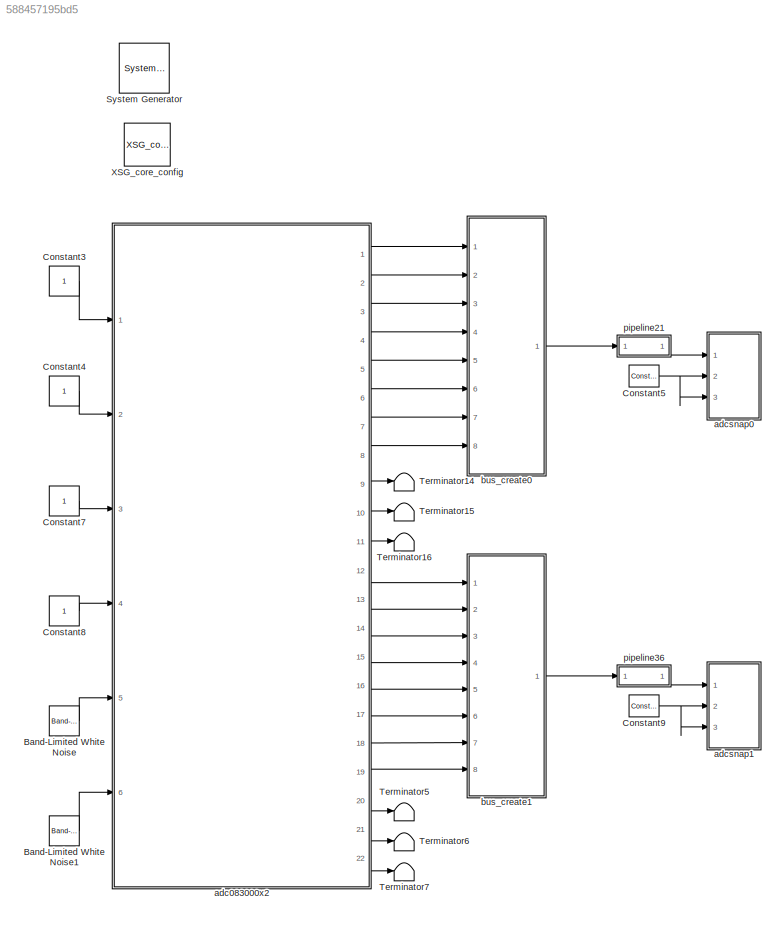
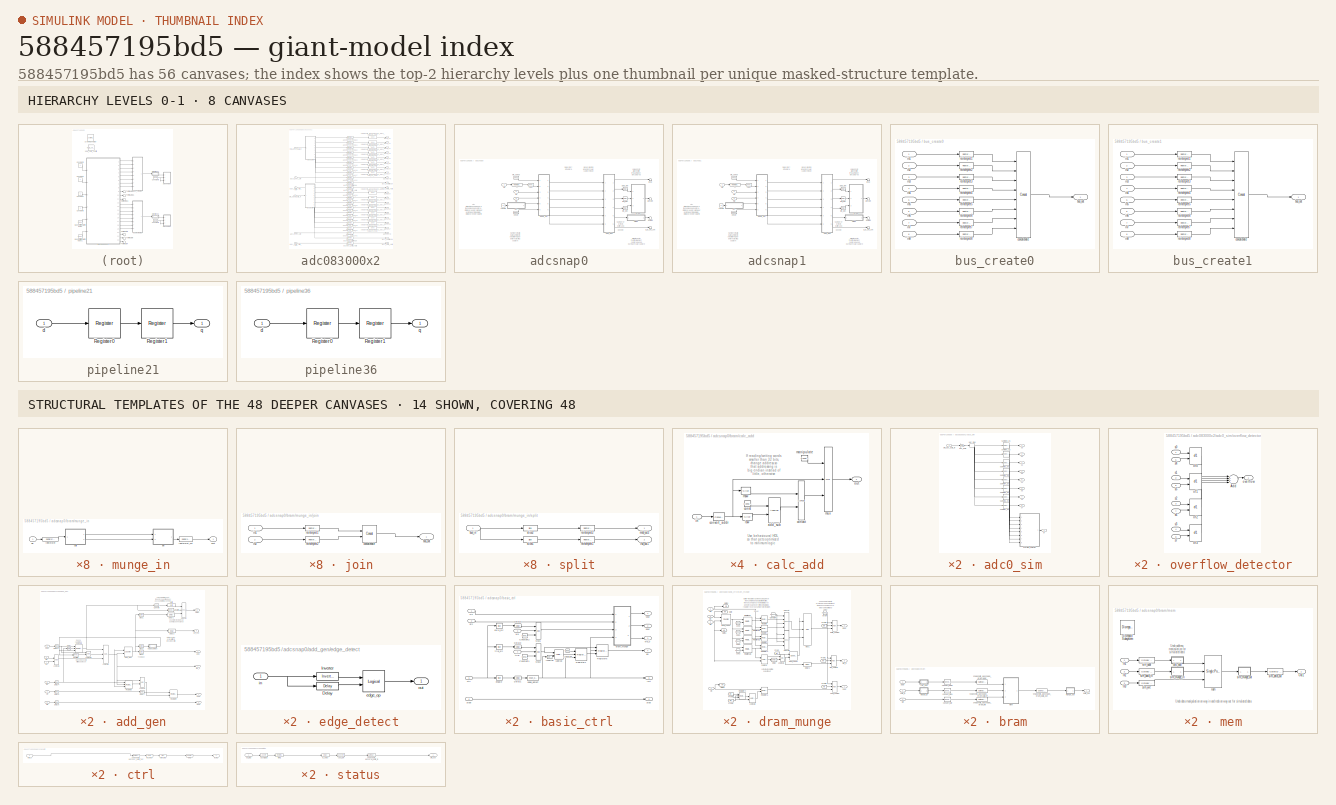
[diagram: thumbnail index - top-2 hierarchy levels (8 canvases) + 14 structural-template representatives of the remaining 48 canvases]
MODEL slx_588457195bd5
KIND model
BLOCK [Reference]  System Generator  REF=xbsIndex_r4/ System Generator
  AttributesFormatString = System\nGenerator
  Impl_file = ISE Defaults
  Ports = []
  SourceBlock = xbsIndex_r4/ System Generator
  SourceType = Xilinx System Generator Block
  Synth_file = XST Defaults
  Tag = genX
  UserDataPersistent = on
  block_type = sysgen
  clock_wrapper = Clock Enables
  core_generation = According to Block Masks
  dbl_ovrd = According to Block Masks
  dcm_input_clock_period = 100
  deprecated_control = off
  directory = ./snapshots/sysgen
  eval_field = 0
  has_advanced_control = 0
  incr_netlist = off
  infoedit = System Generator
  package = ff1136
  part = xc5vsx95t
  proj_type = Project Navigator
  run_coregen = off
  sg_icon_stat = 50,50,0,0,token,white,0,58c5b5770fe5f7c311f53dbc6e73f0f6,right,,[ ],[ ]
  sg_mask_display = fprintf('','COMMENT: begin icon graphics');\npatch([0 50 50 0 0 ],[0 0 50 50 0 ],[1 1 1 ]);\npatch([1.6375 16.81 27.31 37.81 48.31 27.31 12.1375 1.6375 ],[36.655 36.655 47.155 36.655 47.155 47.155 47.155 36.655 ],[0.933333 0.203922 0.141176 ]);\npatch([12.1375 27.31 16.81 1.6375 12.1375 ],[26.155 26.155 36.655 36.655 26.155 ],[0.698039 0.0313725 0.219608 ]);\npatch([1.6375 16.81 27.31 12.1375 1.6375 ]...<+327ch>
  sggui_pos = 326,212,464,470
  simulink_period = 1
  speed = -1
  synthesis_tool = XST
  sysclk_period = 8
  testbench = off
  trim_vbits = Everywhere in SubSystem
  xilinxfamily = virtex5
BLOCK [Reference] Band-Limited White Noise  REF=simulink/Sources/Band-Limited
White Noise
  Cov = [0.1]
  Ports = [0, 1]
  SourceBlock = simulink/Sources/Band-Limited\nWhite Noise
  SourceType = Band-Limited White Noise.
  Ts = 0.1
  VectorParams1D = on
  seed = [23341]
BLOCK [Reference] Band-Limited White Noise1  REF=simulink/Sources/Band-Limited
White Noise
  Cov = [0.1]
  Ports = [0, 1]
  SourceBlock = simulink/Sources/Band-Limited\nWhite Noise
  SourceType = Band-Limited White Noise.
  Ts = 0.1
  VectorParams1D = on
  seed = [23341]
BLOCK [Constant] Constant3
BLOCK [Constant] Constant4
BLOCK [Reference] Constant5  REF=xbsIndex_r4/Constant
  Ports = [0, 1]
  SourceBlock = xbsIndex_r4/Constant
  SourceType = Xilinx Constant Block Block
  arith_type = Boolean
  bin_pt = 0
  block_type = constant
  carry = CIN
  const = 1
  dbl_ovrd = off
  dsp48_infoedit = The use of this block for DSP48 instructions is deprecated.  Please use the Opmode block.
  equ = P=C
  exp_width = 8
  explicit_period = on
  frac_width = 24
  gui_display_data_type = Boolean
  has_advanced_control = 0
  inp1 = P
  inp2 = PCIN>>17
  n_bits = 12
  opr = +
  opselect = C
  period = 1
  preci_type = Single
  sg_icon_stat = 30,22,0,1,white,blue,0,1c72b5be,right,,[ ],[ ]
  sg_mask_display = fprintf('','COMMENT: begin icon graphics');\npatch([0 30 30 0 0 ],[0 0 22 22 0 ],[0.77 0.82 0.91 ]);\nplot([0 30 30 0 0 ],[0 0 22 22 0 ]);\npatch([8.325 12.66 15.66 18.66 21.66 15.66 11.325 8.325 ],[14.33 14.33 17.33 14.33 17.33 17.33 17.33 14.33 ],[1 1 1 ]);\npatch([11.325 15.66 12.66 8.325 11.325 ],[11.33 11.33 14.33 14.33 11.33 ],[0.931 0.946 0.973 ]);\npatch([8.325 12.66 15.66 11.325 8.325 ],[8.33 ...<+311ch>
  sggui_pos = 55,14,337,463
BLOCK [Constant] Constant7
BLOCK [Constant] Constant8
BLOCK [Reference] Constant9  REF=xbsIndex_r4/Constant
  Ports = [0, 1]
  SourceBlock = xbsIndex_r4/Constant
  SourceType = Xilinx Constant Block Block
  arith_type = Boolean
  bin_pt = 0
  block_type = constant
  carry = CIN
  const = 1
  dbl_ovrd = off
  dsp48_infoedit = The use of this block for DSP48 instructions is deprecated.  Please use the Opmode block.
  equ = P=C
  exp_width = 8
  explicit_period = on
  frac_width = 24
  gui_display_data_type = Boolean
  has_advanced_control = 0
  inp1 = P
  inp2 = PCIN>>17
  n_bits = 12
  opr = +
  opselect = C
  period = 1
  preci_type = Single
  sg_icon_stat = 30,22,0,1,white,blue,0,1c72b5be,right,,[ ],[ ]
  sg_mask_display = fprintf('','COMMENT: begin icon graphics');\npatch([0 30 30 0 0 ],[0 0 22 22 0 ],[0.77 0.82 0.91 ]);\nplot([0 30 30 0 0 ],[0 0 22 22 0 ]);\npatch([8.325 12.66 15.66 18.66 21.66 15.66 11.325 8.325 ],[14.33 14.33 17.33 14.33 17.33 17.33 17.33 14.33 ],[1 1 1 ]);\npatch([11.325 15.66 12.66 8.325 11.325 ],[11.33 11.33 14.33 14.33 11.33 ],[0.931 0.946 0.973 ]);\npatch([8.325 12.66 15.66 11.325 8.325 ],[8.33 ...<+311ch>
  sggui_pos = 55,14,337,463
BLOCK [Terminator] Terminator14
BLOCK [Terminator] Terminator15
BLOCK [Terminator] Terminator16
BLOCK [Terminator] Terminator5
BLOCK [Terminator] Terminator6
BLOCK [Terminator] Terminator7
BLOCK [Reference] XSG_core_config  REF=xps_library/XSG_core_config  (lib defined in mdl_00b5cec29cd0, mdl_02ab6ecaa3d1, +5 more)
  MKDIG_clk_src = sys_clk
  Ports = []
  ROACH2_clk_src = adc0_clk
  ROACH_clk_src = adc0_clk
  SourceBlock = xps_library/XSG_core_config
  SourceType = xsg core config
  Tag = xps:xsg
  clk_rate = 125
  clk_src = adc0_clk
  hw_sys = ROACH:sx95t
  sample_period = 1
  synthesis_tool = XST
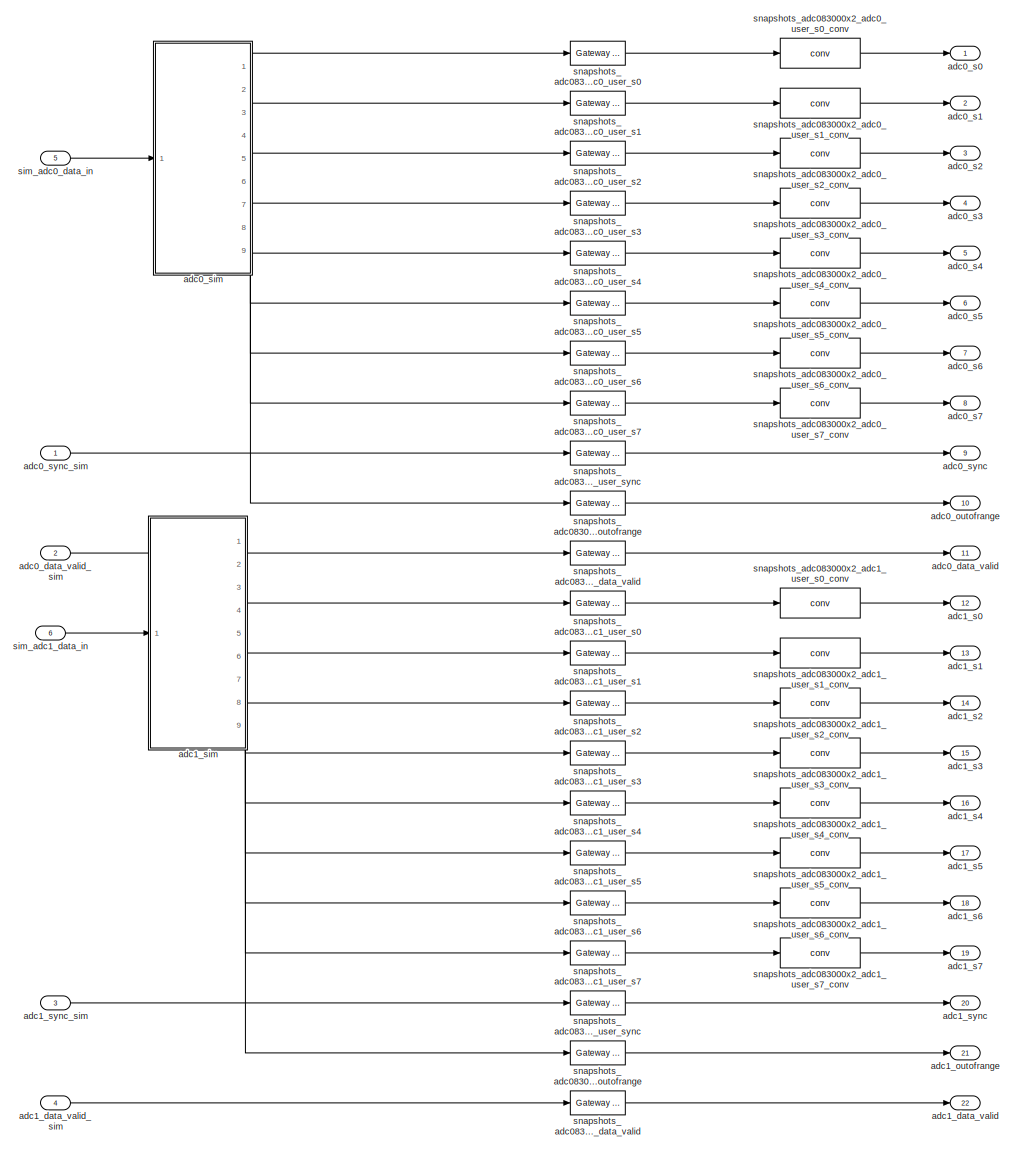
[diagram: adc083000x2 - part 1/1, most of the canvas]
BLOCK [SubSystem] adc083000x2
  AncestorBlock = xps_library/adc083000x2
  FunctionWithSeparateData = off
  MaskHideContents = off
  MinAlgLoopOccurrences = off
  Opaque = off
  Ports = [6, 22]
  PropExecContextOutsideSubsystem = off
  RTWSystemCode = Auto
  RequestExecContextInheritance = off
  Tag = xps:adc083000x2
BLOCK [Outport] adc083000x2/adc0_data_valid
  IconDisplay = Port number
  Port = 11
BLOCK [Inport] adc083000x2/adc0_data_valid_sim
  IconDisplay = Port number
  Port = 2
BLOCK [Outport] adc083000x2/adc0_outofrange
  IconDisplay = Port number
  Port = 10
BLOCK [Outport] adc083000x2/adc0_s0
  IconDisplay = Port number
BLOCK [Outport] adc083000x2/adc0_s1
  IconDisplay = Port number
  Port = 2
BLOCK [Outport] adc083000x2/adc0_s2
  IconDisplay = Port number
  Port = 3
BLOCK [Outport] adc083000x2/adc0_s3
  IconDisplay = Port number
  Port = 4
BLOCK [Outport] adc083000x2/adc0_s4
  IconDisplay = Port number
  Port = 5
BLOCK [Outport] adc083000x2/adc0_s5
  IconDisplay = Port number
  Port = 6
BLOCK [Outport] adc083000x2/adc0_s6
  IconDisplay = Port number
  Port = 7
BLOCK [Outport] adc083000x2/adc0_s7
  IconDisplay = Port number
  Port = 8
BLOCK [SubSystem] adc083000x2/adc0_sim
  AncestorBlock = xps_library/ADCs/adc_sim
  FunctionWithSeparateData = off
  MaskHideContents = off
  MinAlgLoopOccurrences = off
  Opaque = off
  Ports = [1, 9]
  PropExecContextOutsideSubsystem = off
  RTWSystemCode = Auto
  RequestExecContextInheritance = off
  UserDataPersistent = on
BLOCK [Bias] adc083000x2/adc0_sim/adc_bias
  Bias = 128
BLOCK [Gain] adc083000x2/adc0_sim/adc_gain
  Gain = 128
  OutDataTypeStr = Inherit: Inherit via internal rule
  ParamDataTypeStr = Inherit: Inherit via internal rule
  SaturateOnIntegerOverflow = off
BLOCK [Outport] adc083000x2/adc0_sim/of
  IconDisplay = Port number
  Port = 9
BLOCK [SubSystem] adc083000x2/adc0_sim/overflow_detector
  AncestorBlock = xps_library/ADCs/of_detect_bus
  FunctionWithSeparateData = off
  MaskHideContents = off
  MinAlgLoopOccurrences = off
  Opaque = off
  Ports = [8, 1]
  PropExecContextOutsideSubsystem = off
  RTWSystemCode = Auto
  RequestExecContextInheritance = off
  UserDataPersistent = on
BLOCK [Sum] adc083000x2/adc0_sim/overflow_detector/Add
  InputSameDT = off
  Inputs = ++++
  OutDataTypeStr = Inherit: Inherit via internal rule
  Ports = [4, 1]
  SaturateOnIntegerOverflow = off
BLOCK [Reference] adc083000x2/adc0_sim/overflow_detector/of0  REF=xps_library/ADCs/of1  (lib defined in mdl_00b5cec29cd0, mdl_02ab6ecaa3d1, +5 more)
  Ports = [2, 1]
  SourceBlock = xps_library/ADCs/of1
  SourceType = of
  bit_num = 0
  n_adc_bits = 8
BLOCK [Reference] adc083000x2/adc0_sim/overflow_detector/of1  REF=xps_library/ADCs/of1  (lib defined in mdl_00b5cec29cd0, mdl_02ab6ecaa3d1, +5 more)
  Ports = [2, 1]
  SourceBlock = xps_library/ADCs/of1
  SourceType = of
  bit_num = 0
  n_adc_bits = 8
BLOCK [Reference] adc083000x2/adc0_sim/overflow_detector/of2  REF=xps_library/ADCs/of1  (lib defined in mdl_00b5cec29cd0, mdl_02ab6ecaa3d1, +5 more)
  Ports = [2, 1]
  SourceBlock = xps_library/ADCs/of1
  SourceType = of
  bit_num = 0
  n_adc_bits = 8
BLOCK [Reference] adc083000x2/adc0_sim/overflow_detector/of3  REF=xps_library/ADCs/of1  (lib defined in mdl_00b5cec29cd0, mdl_02ab6ecaa3d1, +5 more)
  Ports = [2, 1]
  SourceBlock = xps_library/ADCs/of1
  SourceType = of
  bit_num = 0
  n_adc_bits = 8
BLOCK [Outport] adc083000x2/adc0_sim/overflow_detector/overflow
  IconDisplay = Port number
BLOCK [Inport] adc083000x2/adc0_sim/overflow_detector/s0
  IconDisplay = Port number
BLOCK [Inport] adc083000x2/adc0_sim/overflow_detector/s1
  IconDisplay = Port number
  Port = 2
BLOCK [Inport] adc083000x2/adc0_sim/overflow_detector/s2
  IconDisplay = Port number
  Port = 3
BLOCK [Inport] adc083000x2/adc0_sim/overflow_detector/s3
  IconDisplay = Port number
  Port = 4
BLOCK [Inport] adc083000x2/adc0_sim/overflow_detector/s4
  IconDisplay = Port number
  Port = 5
BLOCK [Inport] adc083000x2/adc0_sim/overflow_detector/s5
  IconDisplay = Port number
  Port = 6
BLOCK [Inport] adc083000x2/adc0_sim/overflow_detector/s6
  IconDisplay = Port number
  Port = 7
BLOCK [Inport] adc083000x2/adc0_sim/overflow_detector/s7
  IconDisplay = Port number
  Port = 8
BLOCK [Outport] adc083000x2/adc0_sim/s0
  IconDisplay = Port number
BLOCK [Outport] adc083000x2/adc0_sim/s1
  IconDisplay = Port number
  Port = 2
BLOCK [Outport] adc083000x2/adc0_sim/s2
  IconDisplay = Port number
  Port = 3
BLOCK [Outport] adc083000x2/adc0_sim/s3
  IconDisplay = Port number
  Port = 4
BLOCK [Outport] adc083000x2/adc0_sim/s4
  IconDisplay = Port number
  Port = 5
BLOCK [Outport] adc083000x2/adc0_sim/s5
  IconDisplay = Port number
  Port = 6
BLOCK [Outport] adc083000x2/adc0_sim/s6
  IconDisplay = Port number
  Port = 7
BLOCK [Outport] adc083000x2/adc0_sim/s7
  IconDisplay = Port number
  Port = 8
BLOCK [Reference] adc083000x2/adc0_sim/sample0_ds  REF=dspsigops/Downsample
  InputProcessing = Inherited (this choice will be removed - see release notes)
  N = 8
  Ports = [1, 1]
  RateOptions = Enforce single-rate processing
  SourceBlock = dspsigops/Downsample
  SourceType = Downsample
  UserDataPersistent = on
  fmode = Maintain input frame rate
  ic = 0
  phase = 1
  smode = Force single rate
BLOCK [Reference] adc083000x2/adc0_sim/sample1_ds  REF=dspsigops/Downsample
  InputProcessing = Inherited (this choice will be removed - see release notes)
  N = 8
  Ports = [1, 1]
  RateOptions = Enforce single-rate processing
  SourceBlock = dspsigops/Downsample
  SourceType = Downsample
  UserDataPersistent = on
  fmode = Maintain input frame rate
  ic = 0
  phase = 2
  smode = Force single rate
BLOCK [Reference] adc083000x2/adc0_sim/sample2_ds  REF=dspsigops/Downsample
  InputProcessing = Inherited (this choice will be removed - see release notes)
  N = 8
  Ports = [1, 1]
  RateOptions = Enforce single-rate processing
  SourceBlock = dspsigops/Downsample
  SourceType = Downsample
  UserDataPersistent = on
  fmode = Maintain input frame rate
  ic = 0
  phase = 3
  smode = Force single rate
BLOCK [Reference] adc083000x2/adc0_sim/sample3_ds  REF=dspsigops/Downsample
  InputProcessing = Inherited (this choice will be removed - see release notes)
  N = 8
  Ports = [1, 1]
  RateOptions = Enforce single-rate processing
  SourceBlock = dspsigops/Downsample
  SourceType = Downsample
  UserDataPersistent = on
  fmode = Maintain input frame rate
  ic = 0
  phase = 4
  smode = Force single rate
BLOCK [Reference] adc083000x2/adc0_sim/sample4_ds  REF=dspsigops/Downsample
  InputProcessing = Inherited (this choice will be removed - see release notes)
  N = 8
  Ports = [1, 1]
  RateOptions = Enforce single-rate processing
  SourceBlock = dspsigops/Downsample
  SourceType = Downsample
  UserDataPersistent = on
  fmode = Maintain input frame rate
  ic = 0
  phase = 5
  smode = Force single rate
BLOCK [Reference] adc083000x2/adc0_sim/sample5_ds  REF=dspsigops/Downsample
  InputProcessing = Inherited (this choice will be removed - see release notes)
  N = 8
  Ports = [1, 1]
  RateOptions = Enforce single-rate processing
  SourceBlock = dspsigops/Downsample
  SourceType = Downsample
  UserDataPersistent = on
  fmode = Maintain input frame rate
  ic = 0
  phase = 6
  smode = Force single rate
BLOCK [Reference] adc083000x2/adc0_sim/sample6_ds  REF=dspsigops/Downsample
  InputProcessing = Inherited (this choice will be removed - see release notes)
  N = 8
  Ports = [1, 1]
  RateOptions = Enforce single-rate processing
  SourceBlock = dspsigops/Downsample
  SourceType = Downsample
  UserDataPersistent = on
  fmode = Maintain input frame rate
  ic = 0
  phase = 7
  smode = Force single rate
BLOCK [Reference] adc083000x2/adc0_sim/sample7_ds  REF=dspsigops/Downsample
  InputProcessing = Inherited (this choice will be removed - see release notes)
  N = 8
  Ports = [1, 1]
  RateOptions = Enforce single-rate processing
  SourceBlock = dspsigops/Downsample
  SourceType = Downsample
  UserDataPersistent = on
  fmode = Maintain input frame rate
  ic = 0
  phase = 0
  smode = Force single rate
BLOCK [Inport] adc083000x2/adc0_sim/sim_adc_data_in
  IconDisplay = Port number
BLOCK [Outport] adc083000x2/adc0_sync
  IconDisplay = Port number
  Port = 9
BLOCK [Inport] adc083000x2/adc0_sync_sim
  IconDisplay = Port number
BLOCK [Outport] adc083000x2/adc1_data_valid
  IconDisplay = Port number
  Port = 22
BLOCK [Inport] adc083000x2/adc1_data_valid_sim
  IconDisplay = Port number
  Port = 4
BLOCK [Outport] adc083000x2/adc1_outofrange
  IconDisplay = Port number
  Port = 21
BLOCK [Outport] adc083000x2/adc1_s0
  IconDisplay = Port number
  Port = 12
BLOCK [Outport] adc083000x2/adc1_s1
  IconDisplay = Port number
  Port = 13
BLOCK [Outport] adc083000x2/adc1_s2
  IconDisplay = Port number
  Port = 14
BLOCK [Outport] adc083000x2/adc1_s3
  IconDisplay = Port number
  Port = 15
BLOCK [Outport] adc083000x2/adc1_s4
  IconDisplay = Port number
  Port = 16
BLOCK [Outport] adc083000x2/adc1_s5
  IconDisplay = Port number
  Port = 17
BLOCK [Outport] adc083000x2/adc1_s6
  IconDisplay = Port number
  Port = 18
BLOCK [Outport] adc083000x2/adc1_s7
  IconDisplay = Port number
  Port = 19
BLOCK [SubSystem] adc083000x2/adc1_sim
  AncestorBlock = xps_library/ADCs/adc_sim
  FunctionWithSeparateData = off
  MaskHideContents = off
  MinAlgLoopOccurrences = off
  Opaque = off
  Ports = [1, 9]
  PropExecContextOutsideSubsystem = off
  RTWSystemCode = Auto
  RequestExecContextInheritance = off
  UserDataPersistent = on
BLOCK [Bias] adc083000x2/adc1_sim/adc_bias
  Bias = 128
BLOCK [Gain] adc083000x2/adc1_sim/adc_gain
  Gain = 128
  OutDataTypeStr = Inherit: Inherit via internal rule
  ParamDataTypeStr = Inherit: Inherit via internal rule
  SaturateOnIntegerOverflow = off
BLOCK [Outport] adc083000x2/adc1_sim/of
  IconDisplay = Port number
  Port = 9
BLOCK [SubSystem] adc083000x2/adc1_sim/overflow_detector
  AncestorBlock = xps_library/ADCs/of_detect_bus
  FunctionWithSeparateData = off
  MaskHideContents = off
  MinAlgLoopOccurrences = off
  Opaque = off
  Ports = [8, 1]
  PropExecContextOutsideSubsystem = off
  RTWSystemCode = Auto
  RequestExecContextInheritance = off
  UserDataPersistent = on
BLOCK [Sum] adc083000x2/adc1_sim/overflow_detector/Add
  InputSameDT = off
  Inputs = ++++
  OutDataTypeStr = Inherit: Inherit via internal rule
  Ports = [4, 1]
  SaturateOnIntegerOverflow = off
BLOCK [Reference] adc083000x2/adc1_sim/overflow_detector/of0  REF=xps_library/ADCs/of1  (lib defined in mdl_00b5cec29cd0, mdl_02ab6ecaa3d1, +5 more)
  Ports = [2, 1]
  SourceBlock = xps_library/ADCs/of1
  SourceType = of
  bit_num = 0
  n_adc_bits = 8
BLOCK [Reference] adc083000x2/adc1_sim/overflow_detector/of1  REF=xps_library/ADCs/of1  (lib defined in mdl_00b5cec29cd0, mdl_02ab6ecaa3d1, +5 more)
  Ports = [2, 1]
  SourceBlock = xps_library/ADCs/of1
  SourceType = of
  bit_num = 0
  n_adc_bits = 8
BLOCK [Reference] adc083000x2/adc1_sim/overflow_detector/of2  REF=xps_library/ADCs/of1  (lib defined in mdl_00b5cec29cd0, mdl_02ab6ecaa3d1, +5 more)
  Ports = [2, 1]
  SourceBlock = xps_library/ADCs/of1
  SourceType = of
  bit_num = 0
  n_adc_bits = 8
BLOCK [Reference] adc083000x2/adc1_sim/overflow_detector/of3  REF=xps_library/ADCs/of1  (lib defined in mdl_00b5cec29cd0, mdl_02ab6ecaa3d1, +5 more)
  Ports = [2, 1]
  SourceBlock = xps_library/ADCs/of1
  SourceType = of
  bit_num = 0
  n_adc_bits = 8
BLOCK [Outport] adc083000x2/adc1_sim/overflow_detector/overflow
  IconDisplay = Port number
BLOCK [Inport] adc083000x2/adc1_sim/overflow_detector/s0
  IconDisplay = Port number
BLOCK [Inport] adc083000x2/adc1_sim/overflow_detector/s1
  IconDisplay = Port number
  Port = 2
BLOCK [Inport] adc083000x2/adc1_sim/overflow_detector/s2
  IconDisplay = Port number
  Port = 3
BLOCK [Inport] adc083000x2/adc1_sim/overflow_detector/s3
  IconDisplay = Port number
  Port = 4
BLOCK [Inport] adc083000x2/adc1_sim/overflow_detector/s4
  IconDisplay = Port number
  Port = 5
BLOCK [Inport] adc083000x2/adc1_sim/overflow_detector/s5
  IconDisplay = Port number
  Port = 6
BLOCK [Inport] adc083000x2/adc1_sim/overflow_detector/s6
  IconDisplay = Port number
  Port = 7
BLOCK [Inport] adc083000x2/adc1_sim/overflow_detector/s7
  IconDisplay = Port number
  Port = 8
BLOCK [Outport] adc083000x2/adc1_sim/s0
  IconDisplay = Port number
BLOCK [Outport] adc083000x2/adc1_sim/s1
  IconDisplay = Port number
  Port = 2
BLOCK [Outport] adc083000x2/adc1_sim/s2
  IconDisplay = Port number
  Port = 3
BLOCK [Outport] adc083000x2/adc1_sim/s3
  IconDisplay = Port number
  Port = 4
BLOCK [Outport] adc083000x2/adc1_sim/s4
  IconDisplay = Port number
  Port = 5
BLOCK [Outport] adc083000x2/adc1_sim/s5
  IconDisplay = Port number
  Port = 6
BLOCK [Outport] adc083000x2/adc1_sim/s6
  IconDisplay = Port number
  Port = 7
BLOCK [Outport] adc083000x2/adc1_sim/s7
  IconDisplay = Port number
  Port = 8
BLOCK [Reference] adc083000x2/adc1_sim/sample0_ds  REF=dspsigops/Downsample
  InputProcessing = Inherited (this choice will be removed - see release notes)
  N = 8
  Ports = [1, 1]
  RateOptions = Enforce single-rate processing
  SourceBlock = dspsigops/Downsample
  SourceType = Downsample
  UserDataPersistent = on
  fmode = Maintain input frame rate
  ic = 0
  phase = 1
  smode = Force single rate
BLOCK [Reference] adc083000x2/adc1_sim/sample1_ds  REF=dspsigops/Downsample
  InputProcessing = Inherited (this choice will be removed - see release notes)
  N = 8
  Ports = [1, 1]
  RateOptions = Enforce single-rate processing
  SourceBlock = dspsigops/Downsample
  SourceType = Downsample
  UserDataPersistent = on
  fmode = Maintain input frame rate
  ic = 0
  phase = 2
  smode = Force single rate
BLOCK [Reference] adc083000x2/adc1_sim/sample2_ds  REF=dspsigops/Downsample
  InputProcessing = Inherited (this choice will be removed - see release notes)
  N = 8
  Ports = [1, 1]
  RateOptions = Enforce single-rate processing
  SourceBlock = dspsigops/Downsample
  SourceType = Downsample
  UserDataPersistent = on
  fmode = Maintain input frame rate
  ic = 0
  phase = 3
  smode = Force single rate
BLOCK [Reference] adc083000x2/adc1_sim/sample3_ds  REF=dspsigops/Downsample
  InputProcessing = Inherited (this choice will be removed - see release notes)
  N = 8
  Ports = [1, 1]
  RateOptions = Enforce single-rate processing
  SourceBlock = dspsigops/Downsample
  SourceType = Downsample
  UserDataPersistent = on
  fmode = Maintain input frame rate
  ic = 0
  phase = 4
  smode = Force single rate
BLOCK [Reference] adc083000x2/adc1_sim/sample4_ds  REF=dspsigops/Downsample
  InputProcessing = Inherited (this choice will be removed - see release notes)
  N = 8
  Ports = [1, 1]
  RateOptions = Enforce single-rate processing
  SourceBlock = dspsigops/Downsample
  SourceType = Downsample
  UserDataPersistent = on
  fmode = Maintain input frame rate
  ic = 0
  phase = 5
  smode = Force single rate
BLOCK [Reference] adc083000x2/adc1_sim/sample5_ds  REF=dspsigops/Downsample
  InputProcessing = Inherited (this choice will be removed - see release notes)
  N = 8
  Ports = [1, 1]
  RateOptions = Enforce single-rate processing
  SourceBlock = dspsigops/Downsample
  SourceType = Downsample
  UserDataPersistent = on
  fmode = Maintain input frame rate
  ic = 0
  phase = 6
  smode = Force single rate
BLOCK [Reference] adc083000x2/adc1_sim/sample6_ds  REF=dspsigops/Downsample
  InputProcessing = Inherited (this choice will be removed - see release notes)
  N = 8
  Ports = [1, 1]
  RateOptions = Enforce single-rate processing
  SourceBlock = dspsigops/Downsample
  SourceType = Downsample
  UserDataPersistent = on
  fmode = Maintain input frame rate
  ic = 0
  phase = 7
  smode = Force single rate
BLOCK [Reference] adc083000x2/adc1_sim/sample7_ds  REF=dspsigops/Downsample
  InputProcessing = Inherited (this choice will be removed - see release notes)
  N = 8
  Ports = [1, 1]
  RateOptions = Enforce single-rate processing
  SourceBlock = dspsigops/Downsample
  SourceType = Downsample
  UserDataPersistent = on
  fmode = Maintain input frame rate
  ic = 0
  phase = 0
  smode = Force single rate
BLOCK [Inport] adc083000x2/adc1_sim/sim_adc_data_in
  IconDisplay = Port number
BLOCK [Outport] adc083000x2/adc1_sync
  IconDisplay = Port number
  Port = 20
BLOCK [Inport] adc083000x2/adc1_sync_sim
  IconDisplay = Port number
  Port = 3
BLOCK [Inport] adc083000x2/sim_adc0_data_in
  IconDisplay = Port number
  Port = 5
BLOCK [Inport] adc083000x2/sim_adc1_data_in
  IconDisplay = Port number
  Port = 6
BLOCK [Reference] adc083000x2/snapshots_adc083000x2_adc0_user_data_valid  REF=xbsIndex_r4/Gateway In
  ADCChannel = '1'
  LOCs = {}
  Ports = [1, 1]
  SourceBlock = xbsIndex_r4/Gateway In
  SourceType = Xilinx Gateway In Block
  UseAsADC = off
  arith_type = Unsigned
  bin_pt = 0
  block_type = gatewayin
  dbl_ovrd = off
  exp_width = 8
  frac_width = 24
  gui_display_data_type = Fixed-point
  has_advanced_control = 0
  hdl_port = on
  infoedit = Gateway in block.  Converts inputs of type Simulink integer, single, double and fixed-point to  Xilinx fixed-point or floating-point data type.<br><br>Hardware notes:  In hardware these blocks become top level input ports.  <repeated x28 — deduplicated; at blocks: snapshots_adc083000x2_adc0_user_data_valid, snapshots_adc083000x2_adc0_user_outofrange, snapshots_adc083000x2_adc0_user_s0, snapshots_adc083000x2_adc0_user_s1, snapshots_adc083000x2_adc0_user_s2, snapshots_adc083000x2_adc0_user_s3, snapshots_adc083000x2_adc0_user_s4, snapshots_adc083000x2_adc0_user_s5, snapshots_adc083000x2_adc0_user_s6, snapshots_adc083000x2_adc0_user_s7, snapshots_adc083000x2_adc0_user_sync, snapshots_adc083000x2_adc1_user_data_valid, snapshots_adc083000x2_adc1_user_outofrange, snapshots_adc083000x2_adc1_user_s0, snapshots_adc083000x2_adc1_user_s1, snapshots_adc083000x2_adc1_user_s2, +11 more>
  inherit_from_input = off
  locs_specified = off
  n_bits = 1
  overflow = Saturate
  period = 1
  preci_type = Single
  quantization = Round  (unbiased: +/- Inf)
  sg_icon_stat = 55,24,1,1,white,yellow,1,00d3666e,right,,[ ],[ ]
  sg_mask_display = fprintf('','COMMENT: begin icon graphics');\npatch([0 55 55 0 0 ],[0 0 24 24 0 ],[0.95 0.93 0.65 ]);\nplot([0 55 55 0 0 ],[0 0 24 24 0 ]);\npatch([20.325 24.66 27.66 30.66 33.66 27.66 23.325 20.325 ],[15.33 15.33 18.33 15.33 18.33 18.33 18.33 15.33 ],[1 1 1 ]);\npatch([23.325 27.66 24.66 20.325 23.325 ],[12.33 12.33 15.33 15.33 12.33 ],[0.985 0.979 0.895 ]);\npatch([20.325 24.66 27.66 23.325 20.325 ],[...<+395ch>  <repeated x22 — deduplicated; at blocks: snapshots_adc083000x2_adc0_user_data_valid, snapshots_adc083000x2_adc0_user_outofrange, snapshots_adc083000x2_adc0_user_s0, snapshots_adc083000x2_adc0_user_s1, snapshots_adc083000x2_adc0_user_s2, snapshots_adc083000x2_adc0_user_s3, snapshots_adc083000x2_adc0_user_s4, snapshots_adc083000x2_adc0_user_s5, snapshots_adc083000x2_adc0_user_s6, snapshots_adc083000x2_adc0_user_s7, snapshots_adc083000x2_adc0_user_sync, snapshots_adc083000x2_adc1_user_data_valid, snapshots_adc083000x2_adc1_user_outofrange, snapshots_adc083000x2_adc1_user_s0, snapshots_adc083000x2_adc1_user_s1, snapshots_adc083000x2_adc1_user_s2, +6 more>
  sggui_pos = -1,-1,-1,-1
  timing_constraint = None
  xl_area = [0,0,0,0,0,0,0]
  xl_use_area = off
BLOCK [Reference] adc083000x2/snapshots_adc083000x2_adc0_user_outofrange  REF=xbsIndex_r4/Gateway In
  ADCChannel = '1'
  LOCs = {}
  Ports = [1, 1]
  SourceBlock = xbsIndex_r4/Gateway In
  SourceType = Xilinx Gateway In Block
  UseAsADC = off
  arith_type = Unsigned
  bin_pt = 0
  block_type = gatewayin
  dbl_ovrd = off
  exp_width = 8
  frac_width = 24
  gui_display_data_type = Fixed-point
  has_advanced_control = 0
  hdl_port = on
  inherit_from_input = off
  locs_specified = off
  n_bits = 4
  overflow = Saturate
  period = 1
  preci_type = Single
  quantization = Round  (unbiased: +/- Inf)
  sg_icon_stat = 55,24,1,1,white,yellow,1,00d3666e,right,,[ ],[ ]
  sggui_pos = -1,-1,-1,-1
  timing_constraint = None
  xl_area = [0,0,0,0,0,0,0]
  xl_use_area = off
BLOCK [Reference] adc083000x2/snapshots_adc083000x2_adc0_user_s0  REF=xbsIndex_r4/Gateway In
  ADCChannel = '1'
  LOCs = {}
  Ports = [1, 1]
  SourceBlock = xbsIndex_r4/Gateway In
  SourceType = Xilinx Gateway In Block
  UseAsADC = off
  arith_type = Unsigned
  bin_pt = 0
  block_type = gatewayin
  dbl_ovrd = off
  exp_width = 8
  frac_width = 24
  gui_display_data_type = Fixed-point
  has_advanced_control = 0
  hdl_port = on
  inherit_from_input = off
  locs_specified = off
  n_bits = 8
  overflow = Saturate
  period = 1
  preci_type = Single
  quantization = Round  (unbiased: +/- Inf)
  sg_icon_stat = 55,24,1,1,white,yellow,1,00d3666e,right,,[ ],[ ]
  sggui_pos = -1,-1,-1,-1
  timing_constraint = None
  xl_area = [0,0,0,0,0,0,0]
  xl_use_area = off
BLOCK [Reference] adc083000x2/snapshots_adc083000x2_adc0_user_s0_conv  REF=xps_library/ADCs/conv  (lib defined in mdl_00b5cec29cd0, mdl_02ab6ecaa3d1, +5 more)
  Ports = [1, 1]
  SourceBlock = xps_library/ADCs/conv
  bit_width = 8
BLOCK [Reference] adc083000x2/snapshots_adc083000x2_adc0_user_s1  REF=xbsIndex_r4/Gateway In
  ADCChannel = '1'
  LOCs = {}
  Ports = [1, 1]
  SourceBlock = xbsIndex_r4/Gateway In
  SourceType = Xilinx Gateway In Block
  UseAsADC = off
  arith_type = Unsigned
  bin_pt = 0
  block_type = gatewayin
  dbl_ovrd = off
  exp_width = 8
  frac_width = 24
  gui_display_data_type = Fixed-point
  has_advanced_control = 0
  hdl_port = on
  inherit_from_input = off
  locs_specified = off
  n_bits = 8
  overflow = Saturate
  period = 1
  preci_type = Single
  quantization = Round  (unbiased: +/- Inf)
  sg_icon_stat = 55,24,1,1,white,yellow,1,00d3666e,right,,[ ],[ ]
  sggui_pos = -1,-1,-1,-1
  timing_constraint = None
  xl_area = [0,0,0,0,0,0,0]
  xl_use_area = off
BLOCK [Reference] adc083000x2/snapshots_adc083000x2_adc0_user_s1_conv  REF=xps_library/ADCs/conv  (lib defined in mdl_00b5cec29cd0, mdl_02ab6ecaa3d1, +5 more)
  Ports = [1, 1]
  SourceBlock = xps_library/ADCs/conv
  bit_width = 8
BLOCK [Reference] adc083000x2/snapshots_adc083000x2_adc0_user_s2  REF=xbsIndex_r4/Gateway In
  ADCChannel = '1'
  LOCs = {}
  Ports = [1, 1]
  SourceBlock = xbsIndex_r4/Gateway In
  SourceType = Xilinx Gateway In Block
  UseAsADC = off
  arith_type = Unsigned
  bin_pt = 0
  block_type = gatewayin
  dbl_ovrd = off
  exp_width = 8
  frac_width = 24
  gui_display_data_type = Fixed-point
  has_advanced_control = 0
  hdl_port = on
  inherit_from_input = off
  locs_specified = off
  n_bits = 8
  overflow = Saturate
  period = 1
  preci_type = Single
  quantization = Round  (unbiased: +/- Inf)
  sg_icon_stat = 55,24,1,1,white,yellow,1,00d3666e,right,,[ ],[ ]
  sggui_pos = -1,-1,-1,-1
  timing_constraint = None
  xl_area = [0,0,0,0,0,0,0]
  xl_use_area = off
BLOCK [Reference] adc083000x2/snapshots_adc083000x2_adc0_user_s2_conv  REF=xps_library/ADCs/conv  (lib defined in mdl_00b5cec29cd0, mdl_02ab6ecaa3d1, +5 more)
  Ports = [1, 1]
  SourceBlock = xps_library/ADCs/conv
  bit_width = 8
BLOCK [Reference] adc083000x2/snapshots_adc083000x2_adc0_user_s3  REF=xbsIndex_r4/Gateway In
  ADCChannel = '1'
  LOCs = {}
  Ports = [1, 1]
  SourceBlock = xbsIndex_r4/Gateway In
  SourceType = Xilinx Gateway In Block
  UseAsADC = off
  arith_type = Unsigned
  bin_pt = 0
  block_type = gatewayin
  dbl_ovrd = off
  exp_width = 8
  frac_width = 24
  gui_display_data_type = Fixed-point
  has_advanced_control = 0
  hdl_port = on
  inherit_from_input = off
  locs_specified = off
  n_bits = 8
  overflow = Saturate
  period = 1
  preci_type = Single
  quantization = Round  (unbiased: +/- Inf)
  sg_icon_stat = 55,24,1,1,white,yellow,1,00d3666e,right,,[ ],[ ]
  sggui_pos = -1,-1,-1,-1
  timing_constraint = None
  xl_area = [0,0,0,0,0,0,0]
  xl_use_area = off
BLOCK [Reference] adc083000x2/snapshots_adc083000x2_adc0_user_s3_conv  REF=xps_library/ADCs/conv  (lib defined in mdl_00b5cec29cd0, mdl_02ab6ecaa3d1, +5 more)
  Ports = [1, 1]
  SourceBlock = xps_library/ADCs/conv
  bit_width = 8
BLOCK [Reference] adc083000x2/snapshots_adc083000x2_adc0_user_s4  REF=xbsIndex_r4/Gateway In
  ADCChannel = '1'
  LOCs = {}
  Ports = [1, 1]
  SourceBlock = xbsIndex_r4/Gateway In
  SourceType = Xilinx Gateway In Block
  UseAsADC = off
  arith_type = Unsigned
  bin_pt = 0
  block_type = gatewayin
  dbl_ovrd = off
  exp_width = 8
  frac_width = 24
  gui_display_data_type = Fixed-point
  has_advanced_control = 0
  hdl_port = on
  inherit_from_input = off
  locs_specified = off
  n_bits = 8
  overflow = Saturate
  period = 1
  preci_type = Single
  quantization = Round  (unbiased: +/- Inf)
  sg_icon_stat = 55,24,1,1,white,yellow,1,00d3666e,right,,[ ],[ ]
  sggui_pos = -1,-1,-1,-1
  timing_constraint = None
  xl_area = [0,0,0,0,0,0,0]
  xl_use_area = off
BLOCK [Reference] adc083000x2/snapshots_adc083000x2_adc0_user_s4_conv  REF=xps_library/ADCs/conv  (lib defined in mdl_00b5cec29cd0, mdl_02ab6ecaa3d1, +5 more)
  Ports = [1, 1]
  SourceBlock = xps_library/ADCs/conv
  bit_width = 8
BLOCK [Reference] adc083000x2/snapshots_adc083000x2_adc0_user_s5  REF=xbsIndex_r4/Gateway In
  ADCChannel = '1'
  LOCs = {}
  Ports = [1, 1]
  SourceBlock = xbsIndex_r4/Gateway In
  SourceType = Xilinx Gateway In Block
  UseAsADC = off
  arith_type = Unsigned
  bin_pt = 0
  block_type = gatewayin
  dbl_ovrd = off
  exp_width = 8
  frac_width = 24
  gui_display_data_type = Fixed-point
  has_advanced_control = 0
  hdl_port = on
  inherit_from_input = off
  locs_specified = off
  n_bits = 8
  overflow = Saturate
  period = 1
  preci_type = Single
  quantization = Round  (unbiased: +/- Inf)
  sg_icon_stat = 55,24,1,1,white,yellow,1,00d3666e,right,,[ ],[ ]
  sggui_pos = -1,-1,-1,-1
  timing_constraint = None
  xl_area = [0,0,0,0,0,0,0]
  xl_use_area = off
BLOCK [Reference] adc083000x2/snapshots_adc083000x2_adc0_user_s5_conv  REF=xps_library/ADCs/conv  (lib defined in mdl_00b5cec29cd0, mdl_02ab6ecaa3d1, +5 more)
  Ports = [1, 1]
  SourceBlock = xps_library/ADCs/conv
  bit_width = 8
BLOCK [Reference] adc083000x2/snapshots_adc083000x2_adc0_user_s6  REF=xbsIndex_r4/Gateway In
  ADCChannel = '1'
  LOCs = {}
  Ports = [1, 1]
  SourceBlock = xbsIndex_r4/Gateway In
  SourceType = Xilinx Gateway In Block
  UseAsADC = off
  arith_type = Unsigned
  bin_pt = 0
  block_type = gatewayin
  dbl_ovrd = off
  exp_width = 8
  frac_width = 24
  gui_display_data_type = Fixed-point
  has_advanced_control = 0
  hdl_port = on
  inherit_from_input = off
  locs_specified = off
  n_bits = 8
  overflow = Saturate
  period = 1
  preci_type = Single
  quantization = Round  (unbiased: +/- Inf)
  sg_icon_stat = 55,24,1,1,white,yellow,1,00d3666e,right,,[ ],[ ]
  sggui_pos = -1,-1,-1,-1
  timing_constraint = None
  xl_area = [0,0,0,0,0,0,0]
  xl_use_area = off
BLOCK [Reference] adc083000x2/snapshots_adc083000x2_adc0_user_s6_conv  REF=xps_library/ADCs/conv  (lib defined in mdl_00b5cec29cd0, mdl_02ab6ecaa3d1, +5 more)
  Ports = [1, 1]
  SourceBlock = xps_library/ADCs/conv
  bit_width = 8
BLOCK [Reference] adc083000x2/snapshots_adc083000x2_adc0_user_s7  REF=xbsIndex_r4/Gateway In
  ADCChannel = '1'
  LOCs = {}
  Ports = [1, 1]
  SourceBlock = xbsIndex_r4/Gateway In
  SourceType = Xilinx Gateway In Block
  UseAsADC = off
  arith_type = Unsigned
  bin_pt = 0
  block_type = gatewayin
  dbl_ovrd = off
  exp_width = 8
  frac_width = 24
  gui_display_data_type = Fixed-point
  has_advanced_control = 0
  hdl_port = on
  inherit_from_input = off
  locs_specified = off
  n_bits = 8
  overflow = Saturate
  period = 1
  preci_type = Single
  quantization = Round  (unbiased: +/- Inf)
  sg_icon_stat = 55,24,1,1,white,yellow,1,00d3666e,right,,[ ],[ ]
  sggui_pos = -1,-1,-1,-1
  timing_constraint = None
  xl_area = [0,0,0,0,0,0,0]
  xl_use_area = off
BLOCK [Reference] adc083000x2/snapshots_adc083000x2_adc0_user_s7_conv  REF=xps_library/ADCs/conv  (lib defined in mdl_00b5cec29cd0, mdl_02ab6ecaa3d1, +5 more)
  Ports = [1, 1]
  SourceBlock = xps_library/ADCs/conv
  bit_width = 8
BLOCK [Reference] adc083000x2/snapshots_adc083000x2_adc0_user_sync  REF=xbsIndex_r4/Gateway In
  ADCChannel = '1'
  LOCs = {}
  Ports = [1, 1]
  SourceBlock = xbsIndex_r4/Gateway In
  SourceType = Xilinx Gateway In Block
  UseAsADC = off
  arith_type = Unsigned
  bin_pt = 0
  block_type = gatewayin
  dbl_ovrd = off
  exp_width = 8
  frac_width = 24
  gui_display_data_type = Fixed-point
  has_advanced_control = 0
  hdl_port = on
  inherit_from_input = off
  locs_specified = off
  n_bits = 4
  overflow = Saturate
  period = 1
  preci_type = Single
  quantization = Round  (unbiased: +/- Inf)
  sg_icon_stat = 55,24,1,1,white,yellow,1,00d3666e,right,,[ ],[ ]
  sggui_pos = -1,-1,-1,-1
  timing_constraint = None
  xl_area = [0,0,0,0,0,0,0]
  xl_use_area = off
BLOCK [Reference] adc083000x2/snapshots_adc083000x2_adc1_user_data_valid  REF=xbsIndex_r4/Gateway In
  ADCChannel = '1'
  LOCs = {}
  Ports = [1, 1]
  SourceBlock = xbsIndex_r4/Gateway In
  SourceType = Xilinx Gateway In Block
  UseAsADC = off
  arith_type = Unsigned
  bin_pt = 0
  block_type = gatewayin
  dbl_ovrd = off
  exp_width = 8
  frac_width = 24
  gui_display_data_type = Fixed-point
  has_advanced_control = 0
  hdl_port = on
  inherit_from_input = off
  locs_specified = off
  n_bits = 1
  overflow = Saturate
  period = 1
  preci_type = Single
  quantization = Round  (unbiased: +/- Inf)
  sg_icon_stat = 55,24,1,1,white,yellow,1,00d3666e,right,,[ ],[ ]
  sggui_pos = -1,-1,-1,-1
  timing_constraint = None
  xl_area = [0,0,0,0,0,0,0]
  xl_use_area = off
BLOCK [Reference] adc083000x2/snapshots_adc083000x2_adc1_user_outofrange  REF=xbsIndex_r4/Gateway In
  ADCChannel = '1'
  LOCs = {}
  Ports = [1, 1]
  SourceBlock = xbsIndex_r4/Gateway In
  SourceType = Xilinx Gateway In Block
  UseAsADC = off
  arith_type = Unsigned
  bin_pt = 0
  block_type = gatewayin
  dbl_ovrd = off
  exp_width = 8
  frac_width = 24
  gui_display_data_type = Fixed-point
  has_advanced_control = 0
  hdl_port = on
  inherit_from_input = off
  locs_specified = off
  n_bits = 4
  overflow = Saturate
  period = 1
  preci_type = Single
  quantization = Round  (unbiased: +/- Inf)
  sg_icon_stat = 55,24,1,1,white,yellow,1,00d3666e,right,,[ ],[ ]
  sggui_pos = -1,-1,-1,-1
  timing_constraint = None
  xl_area = [0,0,0,0,0,0,0]
  xl_use_area = off
BLOCK [Reference] adc083000x2/snapshots_adc083000x2_adc1_user_s0  REF=xbsIndex_r4/Gateway In
  ADCChannel = '1'
  LOCs = {}
  Ports = [1, 1]
  SourceBlock = xbsIndex_r4/Gateway In
  SourceType = Xilinx Gateway In Block
  UseAsADC = off
  arith_type = Unsigned
  bin_pt = 0
  block_type = gatewayin
  dbl_ovrd = off
  exp_width = 8
  frac_width = 24
  gui_display_data_type = Fixed-point
  has_advanced_control = 0
  hdl_port = on
  inherit_from_input = off
  locs_specified = off
  n_bits = 8
  overflow = Saturate
  period = 1
  preci_type = Single
  quantization = Round  (unbiased: +/- Inf)
  sg_icon_stat = 55,24,1,1,white,yellow,1,00d3666e,right,,[ ],[ ]
  sggui_pos = -1,-1,-1,-1
  timing_constraint = None
  xl_area = [0,0,0,0,0,0,0]
  xl_use_area = off
BLOCK [Reference] adc083000x2/snapshots_adc083000x2_adc1_user_s0_conv  REF=xps_library/ADCs/conv  (lib defined in mdl_00b5cec29cd0, mdl_02ab6ecaa3d1, +5 more)
  Ports = [1, 1]
  SourceBlock = xps_library/ADCs/conv
  bit_width = 8
BLOCK [Reference] adc083000x2/snapshots_adc083000x2_adc1_user_s1  REF=xbsIndex_r4/Gateway In
  ADCChannel = '1'
  LOCs = {}
  Ports = [1, 1]
  SourceBlock = xbsIndex_r4/Gateway In
  SourceType = Xilinx Gateway In Block
  UseAsADC = off
  arith_type = Unsigned
  bin_pt = 0
  block_type = gatewayin
  dbl_ovrd = off
  exp_width = 8
  frac_width = 24
  gui_display_data_type = Fixed-point
  has_advanced_control = 0
  hdl_port = on
  inherit_from_input = off
  locs_specified = off
  n_bits = 8
  overflow = Saturate
  period = 1
  preci_type = Single
  quantization = Round  (unbiased: +/- Inf)
  sg_icon_stat = 55,24,1,1,white,yellow,1,00d3666e,right,,[ ],[ ]
  sggui_pos = -1,-1,-1,-1
  timing_constraint = None
  xl_area = [0,0,0,0,0,0,0]
  xl_use_area = off
BLOCK [Reference] adc083000x2/snapshots_adc083000x2_adc1_user_s1_conv  REF=xps_library/ADCs/conv  (lib defined in mdl_00b5cec29cd0, mdl_02ab6ecaa3d1, +5 more)
  Ports = [1, 1]
  SourceBlock = xps_library/ADCs/conv
  bit_width = 8
BLOCK [Reference] adc083000x2/snapshots_adc083000x2_adc1_user_s2  REF=xbsIndex_r4/Gateway In
  ADCChannel = '1'
  LOCs = {}
  Ports = [1, 1]
  SourceBlock = xbsIndex_r4/Gateway In
  SourceType = Xilinx Gateway In Block
  UseAsADC = off
  arith_type = Unsigned
  bin_pt = 0
  block_type = gatewayin
  dbl_ovrd = off
  exp_width = 8
  frac_width = 24
  gui_display_data_type = Fixed-point
  has_advanced_control = 0
  hdl_port = on
  inherit_from_input = off
  locs_specified = off
  n_bits = 8
  overflow = Saturate
  period = 1
  preci_type = Single
  quantization = Round  (unbiased: +/- Inf)
  sg_icon_stat = 55,24,1,1,white,yellow,1,00d3666e,right,,[ ],[ ]
  sggui_pos = -1,-1,-1,-1
  timing_constraint = None
  xl_area = [0,0,0,0,0,0,0]
  xl_use_area = off
BLOCK [Reference] adc083000x2/snapshots_adc083000x2_adc1_user_s2_conv  REF=xps_library/ADCs/conv  (lib defined in mdl_00b5cec29cd0, mdl_02ab6ecaa3d1, +5 more)
  Ports = [1, 1]
  SourceBlock = xps_library/ADCs/conv
  bit_width = 8
BLOCK [Reference] adc083000x2/snapshots_adc083000x2_adc1_user_s3  REF=xbsIndex_r4/Gateway In
  ADCChannel = '1'
  LOCs = {}
  Ports = [1, 1]
  SourceBlock = xbsIndex_r4/Gateway In
  SourceType = Xilinx Gateway In Block
  UseAsADC = off
  arith_type = Unsigned
  bin_pt = 0
  block_type = gatewayin
  dbl_ovrd = off
  exp_width = 8
  frac_width = 24
  gui_display_data_type = Fixed-point
  has_advanced_control = 0
  hdl_port = on
  inherit_from_input = off
  locs_specified = off
  n_bits = 8
  overflow = Saturate
  period = 1
  preci_type = Single
  quantization = Round  (unbiased: +/- Inf)
  sg_icon_stat = 55,24,1,1,white,yellow,1,00d3666e,right,,[ ],[ ]
  sggui_pos = -1,-1,-1,-1
  timing_constraint = None
  xl_area = [0,0,0,0,0,0,0]
  xl_use_area = off
BLOCK [Reference] adc083000x2/snapshots_adc083000x2_adc1_user_s3_conv  REF=xps_library/ADCs/conv  (lib defined in mdl_00b5cec29cd0, mdl_02ab6ecaa3d1, +5 more)
  Ports = [1, 1]
  SourceBlock = xps_library/ADCs/conv
  bit_width = 8
BLOCK [Reference] adc083000x2/snapshots_adc083000x2_adc1_user_s4  REF=xbsIndex_r4/Gateway In
  ADCChannel = '1'
  LOCs = {}
  Ports = [1, 1]
  SourceBlock = xbsIndex_r4/Gateway In
  SourceType = Xilinx Gateway In Block
  UseAsADC = off
  arith_type = Unsigned
  bin_pt = 0
  block_type = gatewayin
  dbl_ovrd = off
  exp_width = 8
  frac_width = 24
  gui_display_data_type = Fixed-point
  has_advanced_control = 0
  hdl_port = on
  inherit_from_input = off
  locs_specified = off
  n_bits = 8
  overflow = Saturate
  period = 1
  preci_type = Single
  quantization = Round  (unbiased: +/- Inf)
  sg_icon_stat = 55,24,1,1,white,yellow,1,00d3666e,right,,[ ],[ ]
  sggui_pos = -1,-1,-1,-1
  timing_constraint = None
  xl_area = [0,0,0,0,0,0,0]
  xl_use_area = off
BLOCK [Reference] adc083000x2/snapshots_adc083000x2_adc1_user_s4_conv  REF=xps_library/ADCs/conv  (lib defined in mdl_00b5cec29cd0, mdl_02ab6ecaa3d1, +5 more)
  Ports = [1, 1]
  SourceBlock = xps_library/ADCs/conv
  bit_width = 8
BLOCK [Reference] adc083000x2/snapshots_adc083000x2_adc1_user_s5  REF=xbsIndex_r4/Gateway In
  ADCChannel = '1'
  LOCs = {}
  Ports = [1, 1]
  SourceBlock = xbsIndex_r4/Gateway In
  SourceType = Xilinx Gateway In Block
  UseAsADC = off
  arith_type = Unsigned
  bin_pt = 0
  block_type = gatewayin
  dbl_ovrd = off
  exp_width = 8
  frac_width = 24
  gui_display_data_type = Fixed-point
  has_advanced_control = 0
  hdl_port = on
  inherit_from_input = off
  locs_specified = off
  n_bits = 8
  overflow = Saturate
  period = 1
  preci_type = Single
  quantization = Round  (unbiased: +/- Inf)
  sg_icon_stat = 55,24,1,1,white,yellow,1,00d3666e,right,,[ ],[ ]
  sggui_pos = -1,-1,-1,-1
  timing_constraint = None
  xl_area = [0,0,0,0,0,0,0]
  xl_use_area = off
BLOCK [Reference] adc083000x2/snapshots_adc083000x2_adc1_user_s5_conv  REF=xps_library/ADCs/conv  (lib defined in mdl_00b5cec29cd0, mdl_02ab6ecaa3d1, +5 more)
  Ports = [1, 1]
  SourceBlock = xps_library/ADCs/conv
  bit_width = 8
BLOCK [Reference] adc083000x2/snapshots_adc083000x2_adc1_user_s6  REF=xbsIndex_r4/Gateway In
  ADCChannel = '1'
  LOCs = {}
  Ports = [1, 1]
  SourceBlock = xbsIndex_r4/Gateway In
  SourceType = Xilinx Gateway In Block
  UseAsADC = off
  arith_type = Unsigned
  bin_pt = 0
  block_type = gatewayin
  dbl_ovrd = off
  exp_width = 8
  frac_width = 24
  gui_display_data_type = Fixed-point
  has_advanced_control = 0
  hdl_port = on
  inherit_from_input = off
  locs_specified = off
  n_bits = 8
  overflow = Saturate
  period = 1
  preci_type = Single
  quantization = Round  (unbiased: +/- Inf)
  sg_icon_stat = 55,24,1,1,white,yellow,1,00d3666e,right,,[ ],[ ]
  sggui_pos = -1,-1,-1,-1
  timing_constraint = None
  xl_area = [0,0,0,0,0,0,0]
  xl_use_area = off
BLOCK [Reference] adc083000x2/snapshots_adc083000x2_adc1_user_s6_conv  REF=xps_library/ADCs/conv  (lib defined in mdl_00b5cec29cd0, mdl_02ab6ecaa3d1, +5 more)
  Ports = [1, 1]
  SourceBlock = xps_library/ADCs/conv
  bit_width = 8
BLOCK [Reference] adc083000x2/snapshots_adc083000x2_adc1_user_s7  REF=xbsIndex_r4/Gateway In
  ADCChannel = '1'
  LOCs = {}
  Ports = [1, 1]
  SourceBlock = xbsIndex_r4/Gateway In
  SourceType = Xilinx Gateway In Block
  UseAsADC = off
  arith_type = Unsigned
  bin_pt = 0
  block_type = gatewayin
  dbl_ovrd = off
  exp_width = 8
  frac_width = 24
  gui_display_data_type = Fixed-point
  has_advanced_control = 0
  hdl_port = on
  inherit_from_input = off
  locs_specified = off
  n_bits = 8
  overflow = Saturate
  period = 1
  preci_type = Single
  quantization = Round  (unbiased: +/- Inf)
  sg_icon_stat = 55,24,1,1,white,yellow,1,00d3666e,right,,[ ],[ ]
  sggui_pos = -1,-1,-1,-1
  timing_constraint = None
  xl_area = [0,0,0,0,0,0,0]
  xl_use_area = off
BLOCK [Reference] adc083000x2/snapshots_adc083000x2_adc1_user_s7_conv  REF=xps_library/ADCs/conv  (lib defined in mdl_00b5cec29cd0, mdl_02ab6ecaa3d1, +5 more)
  Ports = [1, 1]
  SourceBlock = xps_library/ADCs/conv
  bit_width = 8
BLOCK [Reference] adc083000x2/snapshots_adc083000x2_adc1_user_sync  REF=xbsIndex_r4/Gateway In
  ADCChannel = '1'
  LOCs = {}
  Ports = [1, 1]
  SourceBlock = xbsIndex_r4/Gateway In
  SourceType = Xilinx Gateway In Block
  UseAsADC = off
  arith_type = Unsigned
  bin_pt = 0
  block_type = gatewayin
  dbl_ovrd = off
  exp_width = 8
  frac_width = 24
  gui_display_data_type = Fixed-point
  has_advanced_control = 0
  hdl_port = on
  inherit_from_input = off
  locs_specified = off
  n_bits = 4
  overflow = Saturate
  period = 1
  preci_type = Single
  quantization = Round  (unbiased: +/- Inf)
  sg_icon_stat = 55,24,1,1,white,yellow,1,00d3666e,right,,[ ],[ ]
  sggui_pos = -1,-1,-1,-1
  timing_constraint = None
  xl_area = [0,0,0,0,0,0,0]
  xl_use_area = off
BLOCK [SubSystem] adcsnap0
  AncestorBlock = casper_library_scopes/snapshot
  FunctionWithSeparateData = off
  MaskHideContents = off
  MinAlgLoopOccurrences = off
  Opaque = off
  Ports = [3]
  PropExecContextOutsideSubsystem = off
  RTWSystemCode = Auto
  RequestExecContextInheritance = off
  Tag = casper:snapshot
  UserDataPersistent = on
BLOCK [Reference] adcsnap0/add_del  REF=xbsIndex_r4/Delay
  Ports = [1, 1]
  SourceBlock = xbsIndex_r4/Delay
  SourceType = Xilinx Delay Block
  block_type = delay
  block_version = 11.4
  dbl_ovrd = off
  en = off
  has_advanced_control = 0
  infoedit = Hardware notes: A delay line is a chain, each link of which is an SRL16 followed by a flip-flop.
  infoeditControl = Selection of Reset will increase slice count due to use of real FFs and instead of SRLs
  latency = 1
  reg_retiming = on
  rst = off
  sg_icon_stat = 25,20,1,1,white,blue,0,07b98262,right,,[ ],[ ]
  sg_mask_display = fprintf('','COMMENT: begin icon graphics');\npatch([0 25 25 0 0 ],[0 0 20 20 0 ],[0.77 0.82 0.91 ]);\nplot([0 25 25 0 0 ],[0 0 20 20 0 ]);\npatch([7.55 10.44 12.44 14.44 16.44 12.44 9.55 7.55 ],[12.22 12.22 14.22 12.22 14.22 14.22 14.22 12.22 ],[1 1 1 ]);\npatch([9.55 12.44 10.44 7.55 9.55 ],[10.22 10.22 12.22 12.22 10.22 ],[0.931 0.946 0.973 ]);\npatch([7.55 10.44 12.44 9.55 7.55 ],[8.22 8.22 10.22 10...<+298ch>  <repeated x8 — deduplicated; at blocks: add_del, trig_src, dat_del, we_del>
  sggui_pos = 21,71,419,315
  xl_area = [0,0,0,0,0,0,0]
  xl_use_area = off
BLOCK [SubSystem] adcsnap0/add_gen
  AncestorBlock = casper_library_scopes/snapshot/add_gen
  FunctionWithSeparateData = off
  MaskHideContents = off
  MinAlgLoopOccurrences = off
  Opaque = off
  Ports = [6, 6]
  PropExecContextOutsideSubsystem = off
  RTWSystemCode = Auto
  RequestExecContextInheritance = off
BLOCK [Reference] adcsnap0/add_gen/Concat  REF=xbsIndex_r4/Concat
  Ports = [3, 1]
  SourceBlock = xbsIndex_r4/Concat
  SourceType = Xilinx Bus Concatenator Block
  block_type = concat
  block_version = 10.1.3
  dbl_ovrd = off
  has_advanced_control = 0
  infoedit = Concatenates two or more inputs.  Output will be cast to an unsigned value with the binary point at zero.
  num_inputs = 3
  sg_icon_stat = 25,90,3,1,white,blue,0,61ef8218,right,,[ ],[ ]
  sg_mask_display = fprintf('','COMMENT: begin icon graphics');\npatch([0 25 25 0 0 ],[0 0 90 90 0 ],[0.77 0.82 0.91 ]);\nplot([0 25 25 0 0 ],[0 0 90 90 0 ]);\npatch([5.325 9.66 12.66 15.66 18.66 12.66 8.325 5.325 ],[48.33 48.33 51.33 48.33 51.33 51.33 51.33 48.33 ],[1 1 1 ]);\npatch([8.325 12.66 9.66 5.325 8.325 ],[45.33 45.33 48.33 48.33 45.33 ],[0.931 0.946 0.973 ]);\npatch([5.325 9.66 12.66 8.325 5.325 ],[42.33 42.33 ...<+411ch>
  sggui_pos = 22,78,348,216
BLOCK [Reference] adcsnap0/add_gen/Convert  REF=xbsIndex_r4/Convert
  Ports = [1, 1]
  SourceBlock = xbsIndex_r4/Convert
  SourceType = Xilinx Type Converter Block
  arith_type = Unsigned
  bin_pt = 0
  block_type = convert
  block_version = 10.1.3
  dbl_ovrd = off
  en = off
  exp_bits = 8
  float_type = Single
  fraction_bits = 24
  gui_display_data_type = Fixed-point
  has_advanced_control = 0
  infoedit = Hardware notes: rounding and saturating require hardware resources; truncating and wrapping do not.
  latency = 0
  n_bits = 32-nsamples-log2(increment)-1
  overflow = Wrap
  pipeline = off
  quantization = Truncate
  sg_icon_stat = 25,18,1,1,white,blue,0,edca21da,right,,[ ],[ ]
  sg_mask_display = fprintf('','COMMENT: begin icon graphics');\npatch([0 45 45 0 0 ],[0 0 30 30 0 ],[0.77 0.82 0.91 ]);\nplot([0 45 45 0 0 ],[0 0 30 30 0 ]);\npatch([13.1 18.88 22.88 26.88 30.88 22.88 17.1 13.1 ],[19.44 19.44 23.44 19.44 23.44 23.44 23.44 19.44 ],[1 1 1 ]);\npatch([17.1 22.88 18.88 13.1 17.1 ],[15.44 15.44 19.44 19.44 15.44 ],[0.931 0.946 0.973 ]);\npatch([13.1 18.88 22.88 17.1 13.1 ],[11.44 11.44 15.44 ...<+303ch>  <repeated x10 — deduplicated; at blocks: Convert, convert_addr, cast_gw>
  sggui_pos = 539,290,538,429
  xl_area = [0,0,0,0,0,0,0]
  xl_use_area = off
BLOCK [Reference] adcsnap0/add_gen/Delay  REF=xbsIndex_r4/Delay
  Ports = [1, 1]
  SourceBlock = xbsIndex_r4/Delay
  SourceType = Xilinx Delay Block
  block_type = delay
  block_version = 11.4
  dbl_ovrd = off
  en = off
  has_advanced_control = 0
  infoedit = Hardware notes: A delay line is a chain, each link of which is an SRL16 followed by a flip-flop.
  infoeditControl = Selection of Reset will increase slice count due to use of real FFs and instead of SRLs
  latency = 1
  reg_retiming = on
  rst = off
  sg_icon_stat = 20,18,1,1,white,blue,0,07b98262,right,,[ ],[ ]
  sg_mask_display = fprintf('','COMMENT: begin icon graphics');\npatch([0 20 20 0 0 ],[0 0 18 18 0 ],[0.77 0.82 0.91 ]);\nplot([0 20 20 0 0 ],[0 0 18 18 0 ]);\npatch([5.55 8.44 10.44 12.44 14.44 10.44 7.55 5.55 ],[11.22 11.22 13.22 11.22 13.22 13.22 13.22 11.22 ],[1 1 1 ]);\npatch([7.55 10.44 8.44 5.55 7.55 ],[9.22 9.22 11.22 11.22 9.22 ],[0.931 0.946 0.973 ]);\npatch([5.55 8.44 10.44 7.55 5.55 ],[7.22 7.22 9.22 9.22 7.22...<+289ch>  <repeated x10 — deduplicated; at blocks: Delay, Delay3, Delay4, Delay5, Delay6>
  sggui_pos = 21,71,419,315
  xl_area = [0,0,0,0,0,0,0]
  xl_use_area = off
BLOCK [Reference] adcsnap0/add_gen/Delay1  REF=xbsIndex_r4/Delay
  Ports = [1, 1]
  SourceBlock = xbsIndex_r4/Delay
  SourceType = Xilinx Delay Block
  block_type = delay
  block_version = 11.4
  dbl_ovrd = off
  en = off
  has_advanced_control = 0
  infoedit = Hardware notes: A delay line is a chain, each link of which is an SRL16 followed by a flip-flop.
  infoeditControl = Selection of Reset will increase slice count due to use of real FFs and instead of SRLs
  latency = 1
  reg_retiming = off
  rst = off
  sg_icon_stat = 45,24,1,1,white,blue,0,07b98262,right,,[ ],[ ]
  sg_mask_display = fprintf('','COMMENT: begin icon graphics');\npatch([0 45 45 0 0 ],[0 0 24 24 0 ],[0.77 0.82 0.91 ]);\nplot([0 45 45 0 0 ],[0 0 24 24 0 ]);\npatch([15.325 19.66 22.66 25.66 28.66 22.66 18.325 15.325 ],[15.33 15.33 18.33 15.33 18.33 18.33 18.33 15.33 ],[1 1 1 ]);\npatch([18.325 22.66 19.66 15.325 18.325 ],[12.33 12.33 15.33 15.33 12.33 ],[0.931 0.946 0.973 ]);\npatch([15.325 19.66 22.66 18.325 15.325 ],[...<+322ch>  <repeated x4 — deduplicated; at blocks: Delay1, Delay2>
  sggui_pos = -1,-1,-1,-1
  xl_area = [0,0,0,0,0,0,0]
  xl_use_area = off
BLOCK [Reference] adcsnap0/add_gen/Delay2  REF=xbsIndex_r4/Delay
  Ports = [1, 1]
  SourceBlock = xbsIndex_r4/Delay
  SourceType = Xilinx Delay Block
  block_type = delay
  block_version = 11.4
  dbl_ovrd = off
  en = off
  has_advanced_control = 0
  infoedit = Hardware notes: A delay line is a chain, each link of which is an SRL16 followed by a flip-flop.
  infoeditControl = Selection of Reset will increase slice count due to use of real FFs and instead of SRLs
  latency = 1
  reg_retiming = off
  rst = off
  sg_icon_stat = 45,24,1,1,white,blue,0,07b98262,right,,[ ],[ ]
  sggui_pos = -1,-1,-1,-1
  xl_area = [0,0,0,0,0,0,0]
  xl_use_area = off
BLOCK [Reference] adcsnap0/add_gen/Delay3  REF=xbsIndex_r4/Delay
  Ports = [1, 1]
  SourceBlock = xbsIndex_r4/Delay
  SourceType = Xilinx Delay Block
  block_type = delay
  block_version = 11.4
  dbl_ovrd = off
  en = off
  has_advanced_control = 0
  infoedit = Hardware notes: A delay line is a chain, each link of which is an SRL16 followed by a flip-flop.
  infoeditControl = Selection of Reset will increase slice count due to use of real FFs and instead of SRLs
  latency = 1
  reg_retiming = on
  rst = off
  sg_icon_stat = 20,18,1,1,white,blue,0,07b98262,right,,[ ],[ ]
  sggui_pos = 21,71,419,315
  xl_area = [0,0,0,0,0,0,0]
  xl_use_area = off
BLOCK [Reference] adcsnap0/add_gen/Delay4  REF=xbsIndex_r4/Delay
  Ports = [1, 1]
  SourceBlock = xbsIndex_r4/Delay
  SourceType = Xilinx Delay Block
  block_type = delay
  block_version = 11.4
  dbl_ovrd = off
  en = off
  has_advanced_control = 0
  infoedit = Hardware notes: A delay line is a chain, each link of which is an SRL16 followed by a flip-flop.
  infoeditControl = Selection of Reset will increase slice count due to use of real FFs and instead of SRLs
  latency = 1
  reg_retiming = on
  rst = off
  sg_icon_stat = 20,18,1,1,white,blue,0,07b98262,right,,[ ],[ ]
  sggui_pos = 21,71,419,315
  xl_area = [0,0,0,0,0,0,0]
  xl_use_area = off
BLOCK [Reference] adcsnap0/add_gen/Delay5  REF=xbsIndex_r4/Delay
  Ports = [1, 1]
  SourceBlock = xbsIndex_r4/Delay
  SourceType = Xilinx Delay Block
  block_type = delay
  block_version = 11.4
  dbl_ovrd = off
  en = off
  has_advanced_control = 0
  infoedit = Hardware notes: A delay line is a chain, each link of which is an SRL16 followed by a flip-flop.
  infoeditControl = Selection of Reset will increase slice count due to use of real FFs and instead of SRLs
  latency = 1
  reg_retiming = on
  rst = off
  sg_icon_stat = 20,18,1,1,white,blue,0,07b98262,right,,[ ],[ ]
  sggui_pos = 21,71,419,315
  xl_area = [0,0,0,0,0,0,0]
  xl_use_area = off
BLOCK [Reference] adcsnap0/add_gen/Delay6  REF=xbsIndex_r4/Delay
  Ports = [1, 1]
  SourceBlock = xbsIndex_r4/Delay
  SourceType = Xilinx Delay Block
  block_type = delay
  block_version = 11.4
  dbl_ovrd = off
  en = off
  has_advanced_control = 0
  infoedit = Hardware notes: A delay line is a chain, each link of which is an SRL16 followed by a flip-flop.
  infoeditControl = Selection of Reset will increase slice count due to use of real FFs and instead of SRLs
  latency = 1
  reg_retiming = on
  rst = off
  sg_icon_stat = 20,18,1,1,white,blue,0,07b98262,right,,[ ],[ ]
  sggui_pos = 21,71,419,315
  xl_area = [0,0,0,0,0,0,0]
  xl_use_area = off
BLOCK [Reference] adcsnap0/add_gen/Delay7  REF=xbsIndex_r4/Delay
  Ports = [1, 1]
  SourceBlock = xbsIndex_r4/Delay
  SourceType = Xilinx Delay Block
  block_type = delay
  block_version = 11.4
  dbl_ovrd = off
  en = off
  has_advanced_control = 0
  infoedit = Hardware notes: A delay line is a chain, each link of which is an SRL16 followed by a flip-flop.
  infoeditControl = Selection of Reset will increase slice count due to use of real FFs and instead of SRLs
  latency = 1
  reg_retiming = off
  rst = off
  sg_icon_stat = 25,18,1,1,white,blue,0,07b98262,right,,[ ],[ ]
  sg_mask_display = fprintf('','COMMENT: begin icon graphics');\npatch([0 25 25 0 0 ],[0 0 18 18 0 ],[0.77 0.82 0.91 ]);\nplot([0 25 25 0 0 ],[0 0 18 18 0 ]);\npatch([7.55 10.44 12.44 14.44 16.44 12.44 9.55 7.55 ],[11.22 11.22 13.22 11.22 13.22 13.22 13.22 11.22 ],[1 1 1 ]);\npatch([9.55 12.44 10.44 7.55 9.55 ],[9.22 9.22 11.22 11.22 9.22 ],[0.931 0.946 0.973 ]);\npatch([7.55 10.44 12.44 9.55 7.55 ],[7.22 7.22 9.22 9.22 7...<+293ch>  <repeated x4 — deduplicated; at blocks: Delay7, enable>
  sggui_pos = 22,98,419,315
  xl_area = [0,0,0,0,0,0,0]
  xl_use_area = off
BLOCK [Reference] adcsnap0/add_gen/Inverter  REF=xbsIndex_r4/Inverter
  Ports = [1, 1]
  SourceBlock = xbsIndex_r4/Inverter
  SourceType = Xilinx Inverter Block
  block_type = inv
  block_version = 11.4
  dbl_ovrd = off
  en = off
  has_advanced_control = 0
  infoedit = Bitwise logical negation (one's complement) operator.
  latency = 1
  sg_icon_stat = 35,22,1,1,white,blue,0,e69ac283,right,,[ ],[ ]
  sg_mask_display = fprintf('','COMMENT: begin icon graphics');\npatch([0 35 35 0 0 ],[0 0 22 22 0 ],[0.77 0.82 0.91 ]);\nplot([0 35 35 0 0 ],[0 0 22 22 0 ]);\npatch([10.325 14.66 17.66 20.66 23.66 17.66 13.325 10.325 ],[14.33 14.33 17.33 14.33 17.33 17.33 17.33 14.33 ],[1 1 1 ]);\npatch([13.325 17.66 14.66 10.325 13.325 ],[11.33 11.33 14.33 14.33 11.33 ],[0.931 0.946 0.973 ]);\npatch([10.325 14.66 17.66 13.325 10.325 ],[...<+362ch>
  sggui_pos = 24,152,419,325
  xl_area = [0,0,0,0,0,0,0]
  xl_use_area = off
BLOCK [Reference] adcsnap0/add_gen/Inverter1  REF=xbsIndex_r4/Inverter
  Ports = [1, 1]
  SourceBlock = xbsIndex_r4/Inverter
  SourceType = Xilinx Inverter Block
  block_type = inv
  block_version = 11.4
  dbl_ovrd = off
  en = off
  has_advanced_control = 0
  infoedit = Bitwise logical negation (one's complement) operator.
  latency = 0
  sg_icon_stat = 30,18,1,1,white,blue,0,267846e5,right,,[ ],[ ]
  sg_mask_display = fprintf('','COMMENT: begin icon graphics');\npatch([0 30 30 0 0 ],[0 0 18 18 0 ],[0.77 0.82 0.91 ]);\nplot([0 30 30 0 0 ],[0 0 18 18 0 ]);\npatch([10.55 13.44 15.44 17.44 19.44 15.44 12.55 10.55 ],[11.22 11.22 13.22 11.22 13.22 13.22 13.22 11.22 ],[1 1 1 ]);\npatch([12.55 15.44 13.44 10.55 12.55 ],[9.22 9.22 11.22 11.22 9.22 ],[0.931 0.946 0.973 ]);\npatch([10.55 13.44 15.44 12.55 10.55 ],[7.22 7.22 9....<+287ch>
  sggui_pos = 21,71,419,325
  xl_area = [0,0,0,0,0,0,0]
  xl_use_area = off
BLOCK [Reference] adcsnap0/add_gen/Logical1  REF=xbsIndex_r4/Logical
  Ports = [2, 1]
  SourceBlock = xbsIndex_r4/Logical
  SourceType = Xilinx Logical Block Block
  align_bp = on
  arith_type = Unsigned
  bin_pt = 2
  block_type = logical
  block_version = 10.1.3
  dbl_ovrd = off
  en = off
  has_advanced_control = 0
  inputs = 2
  latency = 1
  logical_function = AND
  n_bits = 8
  precision = Full
  sg_icon_stat = 25,64,2,1,white,blue,0,e7f9d02e,right,,[ ],[ ]
  sg_list_contents = {'table'=>{'logical_function'=>'popup(AND|NAND|OR|NOR|XOR|XNOR)','userSelections'=>{'logical_function'=>'AND'}}}
  sg_mask_display = fprintf('','COMMENT: begin icon graphics');\npatch([0 25 25 0 0 ],[0 0 64 64 0 ],[0.77 0.82 0.91 ]);\nplot([0 25 25 0 0 ],[0 0 64 64 0 ]);\npatch([5.325 9.66 12.66 15.66 18.66 12.66 8.325 5.325 ],[35.33 35.33 38.33 35.33 38.33 38.33 38.33 35.33 ],[1 1 1 ]);\npatch([8.325 12.66 9.66 5.325 8.325 ],[32.33 32.33 35.33 35.33 32.33 ],[0.931 0.946 0.973 ]);\npatch([5.325 9.66 12.66 8.325 5.325 ],[29.33 29.33 ...<+357ch>  <repeated x4 — deduplicated; at blocks: Logical1, Logical2>
  sggui_pos = 27,213,419,291
  xl_area = [0, 0, 0, 0, 0, 0, 0]
  xl_use_area = off
BLOCK [Reference] adcsnap0/add_gen/Logical2  REF=xbsIndex_r4/Logical
  Ports = [2, 1]
  SourceBlock = xbsIndex_r4/Logical
  SourceType = Xilinx Logical Block Block
  align_bp = on
  arith_type = Unsigned
  bin_pt = 2
  block_type = logical
  block_version = 10.1.3
  dbl_ovrd = off
  en = off
  has_advanced_control = 0
  inputs = 2
  latency = 1
  logical_function = AND
  n_bits = 8
  precision = Full
  sg_icon_stat = 25,64,2,1,white,blue,0,e7f9d02e,right,,[ ],[ ]
  sg_list_contents = {'table'=>{'logical_function'=>'popup(AND|NAND|OR|NOR|XOR|XNOR)','userSelections'=>{'logical_function'=>'AND'}}}
  sggui_pos = 22,78,419,291
  xl_area = [0, 0, 0, 0, 0, 0, 0]
  xl_use_area = off
BLOCK [Reference] adcsnap0/add_gen/Logical4  REF=xbsIndex_r4/Logical
  Ports = [2, 1]
  SourceBlock = xbsIndex_r4/Logical
  SourceType = Xilinx Logical Block Block
  align_bp = on
  arith_type = Unsigned
  bin_pt = 2
  block_type = logical
  block_version = 10.1.3
  dbl_ovrd = off
  en = off
  has_advanced_control = 0
  inputs = 2
  latency = 0
  logical_function = OR
  n_bits = 8
  precision = Full
  sg_icon_stat = 25,33,2,1,white,blue,0,7ede7d88,right,,[ ],[ ]
  sg_list_contents = {'table'=>{'logical_function'=>'popup(AND|NAND|OR|NOR|XOR|XNOR)','userSelections'=>{'logical_function'=>'OR'}}}
  sg_mask_display = fprintf('','COMMENT: begin icon graphics');\npatch([0 25 25 0 0 ],[0 0 33 33 0 ],[0.77 0.82 0.91 ]);\nplot([0 25 25 0 0 ],[0 0 33 33 0 ]);\npatch([5.325 9.66 12.66 15.66 18.66 12.66 8.325 5.325 ],[19.33 19.33 22.33 19.33 22.33 22.33 22.33 19.33 ],[1 1 1 ]);\npatch([8.325 12.66 9.66 5.325 8.325 ],[16.33 16.33 19.33 19.33 16.33 ],[0.931 0.946 0.973 ]);\npatch([5.325 9.66 12.66 8.325 5.325 ],[13.33 13.33 ...<+298ch>
  sggui_pos = 24,132,419,291
  xl_area = [0, 0, 0, 0, 0, 0, 0]
  xl_use_area = off
BLOCK [Reference] adcsnap0/add_gen/Logical6  REF=xbsIndex_r4/Logical
  Ports = [3, 1]
  SourceBlock = xbsIndex_r4/Logical
  SourceType = Xilinx Logical Block Block
  align_bp = on
  arith_type = Unsigned
  bin_pt = 2
  block_type = logical
  block_version = 10.1.3
  dbl_ovrd = off
  en = off
  has_advanced_control = 0
  inputs = 3
  latency = 0
  logical_function = AND
  n_bits = 8
  precision = Full
  sg_icon_stat = 30,114,3,1,white,blue,0,98d76266,right,,[ ],[ ]
  sg_list_contents = {'table'=>{'logical_function'=>'popup(AND|NAND|OR|NOR|XOR|XNOR)','userSelections'=>{'logical_function'=>'AND'}}}
  sg_mask_display = fprintf('','COMMENT: begin icon graphics');\npatch([0 30 30 0 0 ],[0 0 114 114 0 ],[0.77 0.82 0.91 ]);\nplot([0 30 30 0 0 ],[0 0 114 114 0 ]);\npatch([6.1 11.88 15.88 19.88 23.88 15.88 10.1 6.1 ],[61.44 61.44 65.44 61.44 65.44 65.44 65.44 61.44 ],[1 1 1 ]);\npatch([10.1 15.88 11.88 6.1 10.1 ],[57.44 57.44 61.44 61.44 57.44 ],[0.931 0.946 0.973 ]);\npatch([6.1 11.88 15.88 10.1 6.1 ],[53.44 53.44 57.44 5...<+290ch>
  sggui_pos = 22,78,419,291
  xl_area = [0, 0, 0, 0, 0, 0, 0]
  xl_use_area = off
BLOCK [Reference] adcsnap0/add_gen/Register3  REF=xbsIndex_r4/Register
  Ports = [3, 1]
  SourceBlock = xbsIndex_r4/Register
  SourceType = Xilinx Register Block
  block_type = register
  block_version = 10.1.3
  dbl_ovrd = off
  en = on
  has_advanced_control = 0
  init = 0
  rst = on
  sg_icon_stat = 45,50,3,1,white,blue,0,30546de1,right,,[ ],[ ]
  sg_mask_display = fprintf('','COMMENT: begin icon graphics');\npatch([0 45 45 0 0 ],[0 0 50 50 0 ],[0.77 0.82 0.91 ]);\nplot([0 45 45 0 0 ],[0 0 50 50 0 ]);\npatch([8.65 17.32 23.32 29.32 35.32 23.32 14.65 8.65 ],[31.66 31.66 37.66 31.66 37.66 37.66 37.66 31.66 ],[1 1 1 ]);\npatch([14.65 23.32 17.32 8.65 14.65 ],[25.66 25.66 31.66 31.66 25.66 ],[0.931 0.946 0.973 ]);\npatch([8.65 17.32 23.32 14.65 8.65 ],[19.66 19.66 25...<+484ch>  <repeated x8 — deduplicated; at blocks: Register3, Register5, Register1, Register6>
  sggui_pos = 20,20,348,193
  xl_area = [0, 0, 0, 0, 0, 0, 0]
  xl_use_area = off
BLOCK [Reference] adcsnap0/add_gen/Register4  REF=xbsIndex_r4/Register
  Ports = [2, 1]
  SourceBlock = xbsIndex_r4/Register
  SourceType = Xilinx Register Block
  block_type = register
  block_version = 10.1.3
  dbl_ovrd = off
  en = on
  has_advanced_control = 0
  init = 0
  rst = off
  sg_icon_stat = 45,51,2,1,white,blue,0,6bd0930c,right,,[ ],[ ]
  sg_mask_display = fprintf('','COMMENT: begin icon graphics');\npatch([0 45 45 0 0 ],[0 0 51 51 0 ],[0.77 0.82 0.91 ]);\nplot([0 45 45 0 0 ],[0 0 51 51 0 ]);\npatch([8.65 17.32 23.32 29.32 35.32 23.32 14.65 8.65 ],[31.66 31.66 37.66 31.66 37.66 37.66 37.66 31.66 ],[1 1 1 ]);\npatch([14.65 23.32 17.32 8.65 14.65 ],[25.66 25.66 31.66 31.66 25.66 ],[0.931 0.946 0.973 ]);\npatch([8.65 17.32 23.32 14.65 8.65 ],[19.66 19.66 25...<+440ch>
  sggui_pos = 21,51,419,209
  xl_area = [0, 0, 0, 0, 0, 0, 0]
  xl_use_area = off
BLOCK [Reference] adcsnap0/add_gen/Register5  REF=xbsIndex_r4/Register
  Ports = [3, 1]
  SourceBlock = xbsIndex_r4/Register
  SourceType = Xilinx Register Block
  block_type = register
  block_version = 10.1.3
  dbl_ovrd = off
  en = on
  has_advanced_control = 0
  init = 1
  rst = on
  sg_icon_stat = 45,50,3,1,white,blue,0,30546de1,right,,[ ],[ ]
  sggui_pos = 24,132,419,209
  xl_area = [0, 0, 0, 0, 0, 0, 0]
  xl_use_area = off
BLOCK [Reference] adcsnap0/add_gen/Shift  REF=xbsIndex_r4/Shift
  Ports = [1, 1]
  SourceBlock = xbsIndex_r4/Shift
  SourceType = Xilinx Binary Shift Operator Block
  arith_type = Signed  (2's comp)
  bin_pt = 14
  block_type = shift
  block_version = 11.4
  dbl_ovrd = off
  en = off
  has_advanced_control = 0
  infoedit = Hardware notes: In hardware this block costs nothing if full output precision is used.
  latency = 1
  n_bits = 16
  overflow = Wrap
  precision = Full
  quantization = Truncate
  sg_icon_stat = 50,20,1,1,white,blue,0,67b1c52a,right,,[ ],[ ]
  sg_mask_display = fprintf('','COMMENT: begin icon graphics');\npatch([0 60 60 0 0 ],[0 0 56 56 0 ],[0.77 0.82 0.91 ]);\nplot([0 60 60 0 0 ],[0 0 56 56 0 ]);\npatch([12.2 23.76 31.76 39.76 47.76 31.76 20.2 12.2 ],[36.88 36.88 44.88 36.88 44.88 44.88 44.88 36.88 ],[1 1 1 ]);\npatch([20.2 31.76 23.76 12.2 20.2 ],[28.88 28.88 36.88 36.88 28.88 ],[0.931 0.946 0.973 ]);\npatch([12.2 23.76 31.76 20.2 12.2 ],[20.88 20.88 28.88 ...<+313ch>
  sggui_pos = 595,360,419,444
  shift_bits = 32-nsamples-log2(increment)-1-1
  shift_dir = Left
  xl_area = [0,0,0,0,0,0,0]
  xl_use_area = off
BLOCK [Outport] adcsnap0/add_gen/add
  IconDisplay = Port number
  Port = 2
BLOCK [Reference] adcsnap0/add_gen/add_gen  REF=xbsIndex_r4/Counter
  Ports = [2, 1]
  SourceBlock = xbsIndex_r4/Counter
  SourceType = Xilinx Counter Block
  arith_type = Unsigned
  bin_pt = 0
  block_type = counter
  block_version = 10.1.3
  cnt_by_val = increment
  cnt_to = 1
  cnt_type = Free Running
  dbl_ovrd = off
  en = on
  explicit_period = on
  has_advanced_control = 0
  implementation = Fabric
  infoedit = Hardware notes: Free running counters are the least expensive in hardware.  A count limited counter is implemented by combining a counter with a comparator.
  load_pin = off
  n_bits = counter_size
  operation = Up
  period = 1
  rst = on
  sg_icon_stat = 50,60,2,1,white,blue,0,ae3608d6,right,,[ ],[ ]
  sg_mask_display = fprintf('','COMMENT: begin icon graphics');\npatch([0 60 60 0 0 ],[0 0 60 60 0 ],[0.77 0.82 0.91 ]);\nplot([0 60 60 0 0 ],[0 0 60 60 0 ]);\npatch([12.2 23.76 31.76 39.76 47.76 31.76 20.2 12.2 ],[38.88 38.88 46.88 38.88 46.88 46.88 46.88 38.88 ],[1 1 1 ]);\npatch([20.2 31.76 23.76 12.2 20.2 ],[30.88 30.88 38.88 38.88 30.88 ],[0.931 0.946 0.973 ]);\npatch([12.2 23.76 31.76 20.2 12.2 ],[22.88 22.88 30.88 ...<+321ch>  <repeated x4 — deduplicated; at blocks: add_gen, input_count>
  sggui_pos = 130,423,419,748
  start_count = 0
  use_behavioral_HDL = off
  use_rpm = on
  xl_area = [0, 0, 0, 0, 0, 0, 0]
  xl_use_area = off
BLOCK [Inport] adcsnap0/add_gen/cont
  IconDisplay = Port number
  Port = 5
BLOCK [Inport] adcsnap0/add_gen/din
  IconDisplay = Port number
  Port = 2
BLOCK [Outport] adcsnap0/add_gen/dout
  IconDisplay = Port number
  Port = 3
BLOCK [SubSystem] adcsnap0/add_gen/edge_detect
  AncestorBlock = casper_library_misc/edge_detect
  AttributesFormatString = both edges\nactive high
  FunctionWithSeparateData = off
  MaskHideContents = off
  MinAlgLoopOccurrences = off
  Opaque = off
  Ports = [1, 1]
  PropExecContextOutsideSubsystem = off
  RTWSystemCode = Auto
  RequestExecContextInheritance = off
  UserDataPersistent = on
BLOCK [Reference] adcsnap0/add_gen/edge_detect/Delay  REF=xbsIndex_r4/Delay
  Ports = [1, 1]
  SourceBlock = xbsIndex_r4/Delay
  SourceType = Xilinx Delay Block
  block_type = delay
  block_version = 10.1.3
  dbl_ovrd = off
  en = off
  has_advanced_control = 0
  infoedit = Hardware notes: A delay line is a chain, each link of which is an SRL16 followed by a flip-flop.
  infoeditControl = Selection of Reset will increase slice count due to use of real FFs and instead of SRLs
  latency = 1
  reg_retiming = off
  rst = off
  sg_icon_stat = 45,16,1,1,white,blue,0,07b98262,right,,[ ],[ ]
  sg_mask_display = fprintf('','COMMENT: begin icon graphics');\npatch([0 45 45 0 0 ],[0 0 16 16 0 ],[0.77 0.82 0.91 ]);\nplot([0 45 45 0 0 ],[0 0 16 16 0 ]);\npatch([17.55 20.44 22.44 24.44 26.44 22.44 19.55 17.55 ],[10.22 10.22 12.22 10.22 12.22 12.22 12.22 10.22 ],[1 1 1 ]);\npatch([19.55 22.44 20.44 17.55 19.55 ],[8.22 8.22 10.22 10.22 8.22 ],[0.931 0.946 0.973 ]);\npatch([17.55 20.44 22.44 19.55 17.55 ],[6.22 6.22 8....<+305ch>
  sggui_pos = -1,-1,-1,-1
  xl_area = [0, 0, 0, 0, 0, 0, 0]
  xl_use_area = off
BLOCK [Reference] adcsnap0/add_gen/edge_detect/Inverter  REF=xbsIndex_r4/Inverter
  Ports = [1, 1]
  SourceBlock = xbsIndex_r4/Inverter
  SourceType = Xilinx Inverter Block
  block_type = inv
  block_version = 10.1.3
  dbl_ovrd = off
  en = off
  has_advanced_control = 0
  infoedit = Bitwise logical negation (one's complement) operator.
  latency = 0
  sg_icon_stat = 45,16,1,1,white,blue,0,267846e5,right,,[ ],[ ]
  sg_mask_display = fprintf('','COMMENT: begin icon graphics');\npatch([0 45 45 0 0 ],[0 0 16 16 0 ],[0.77 0.82 0.91 ]);\nplot([0 45 45 0 0 ],[0 0 16 16 0 ]);\npatch([17.55 20.44 22.44 24.44 26.44 22.44 19.55 17.55 ],[10.22 10.22 12.22 10.22 12.22 12.22 12.22 10.22 ],[1 1 1 ]);\npatch([19.55 22.44 20.44 17.55 19.55 ],[8.22 8.22 10.22 10.22 8.22 ],[0.931 0.946 0.973 ]);\npatch([17.55 20.44 22.44 19.55 17.55 ],[6.22 6.22 8....<+287ch>
  sggui_pos = -1,-1,-1,-1
  xl_area = [0, 0, 0, 0, 0, 0, 0]
  xl_use_area = off
BLOCK [Reference] adcsnap0/add_gen/edge_detect/edge_op  REF=xbsIndex_r4/Logical
  Ports = [2, 1]
  SourceBlock = xbsIndex_r4/Logical
  SourceType = Xilinx Logical Block Block
  align_bp = on
  arith_type = Unsigned
  bin_pt = 2
  block_type = logical
  block_version = 10.1.3
  dbl_ovrd = off
  en = off
  has_advanced_control = 0
  inputs = 2
  latency = 0
  logical_function = XNOR
  n_bits = 8
  precision = Full
  sg_icon_stat = 45,44,2,1,white,blue,0,11dbf875,right,,[ ],[ ]
  sg_mask_display = fprintf('','COMMENT: begin icon graphics');\npatch([0 45 45 0 0 ],[0 0 44 44 0 ],[0.77 0.82 0.91 ]);\nplot([0 45 45 0 0 ],[0 0 44 44 0 ]);\npatch([8.65 17.32 23.32 29.32 35.32 23.32 14.65 8.65 ],[28.66 28.66 34.66 28.66 34.66 34.66 34.66 28.66 ],[1 1 1 ]);\npatch([14.65 23.32 17.32 8.65 14.65 ],[22.66 22.66 28.66 28.66 22.66 ],[0.931 0.946 0.973 ]);\npatch([8.65 17.32 23.32 14.65 8.65 ],[16.66 16.66 22...<+298ch>
  sggui_pos = -1,-1,-1,-1
  xl_area = [0, 0, 0, 0, 0, 0, 0]
  xl_use_area = off
BLOCK [Inport] adcsnap0/add_gen/edge_detect/in
  IconDisplay = Port number
BLOCK [Outport] adcsnap0/add_gen/edge_detect/out
  IconDisplay = Port number
BLOCK [Outport] adcsnap0/add_gen/en_cnt
  IconDisplay = Port number
  Port = 6
BLOCK [Inport] adcsnap0/add_gen/go
  IconDisplay = Port number
  Port = 4
BLOCK [Inport] adcsnap0/add_gen/init
  IconDisplay = Port number
  Port = 6
BLOCK [Reference] adcsnap0/add_gen/slice1  REF=xbsIndex_r4/Slice
  Ports = [1, 1]
  SourceBlock = xbsIndex_r4/Slice
  SourceType = Xilinx Bit Slice Extractor Block
  base0 = LSB of Input
  base1 = LSB of Input
  bit0 = 0
  bit1 = 0
  block_type = slice
  block_version = 10.1.3
  boolean_output = off
  dbl_ovrd = off
  has_advanced_control = 0
  infoedit = Extracts a given range of bits from each input sample and presents it at the output.  The output type is ordinarily unsigned with binary point at zero, but can be Boolean when the slice is one bit wide.<br><br>Hardware notes: In hardware this block costs nothing.  <repeated x32 — deduplicated; at blocks: slice1, slice2, slice3, lsw, msw, slice_reg>
  mode = Lower Bit Location + Width
  nbits = nsamples+log2(increment)
  sg_icon_stat = 25,22,1,1,white,blue,0,1fd851a7,right,,[ ],[ ]
  sg_mask_display = fprintf('','COMMENT: begin icon graphics');\npatch([0 60 60 0 0 ],[0 0 30 30 0 ],[0.77 0.82 0.91 ]);\nplot([0 60 60 0 0 ],[0 0 30 30 0 ]);\npatch([21.1 26.88 30.88 34.88 38.88 30.88 25.1 21.1 ],[19.44 19.44 23.44 19.44 23.44 23.44 23.44 19.44 ],[1 1 1 ]);\npatch([25.1 30.88 26.88 21.1 25.1 ],[15.44 15.44 19.44 19.44 15.44 ],[0.931 0.946 0.973 ]);\npatch([21.1 26.88 30.88 25.1 21.1 ],[11.44 11.44 15.44 ...<+304ch>  <repeated x16 — deduplicated; at blocks: slice1, slice2, slice3, lsw, msw, slice_reg>
  sggui_pos = 156,519,540,482
BLOCK [Reference] adcsnap0/add_gen/slice2  REF=xbsIndex_r4/Slice
  Ports = [1, 1]
  SourceBlock = xbsIndex_r4/Slice
  SourceType = Xilinx Bit Slice Extractor Block
  base0 = LSB of Input
  base1 = LSB of Input
  bit0 = log2(increment)+burst_size
  bit1 = 0
  block_type = slice
  block_version = 10.1.3
  boolean_output = off
  dbl_ovrd = off
  has_advanced_control = 0
  mode = Lower Bit Location + Width
  nbits = nsamples-burst_size
  sg_icon_stat = 25,22,1,1,white,blue,0,1fd851a7,right,,[ ],[ ]
  sggui_pos = 193,399,540,482
BLOCK [Reference] adcsnap0/add_gen/slice3  REF=xbsIndex_r4/Slice
  Ports = [1, 1]
  SourceBlock = xbsIndex_r4/Slice
  SourceType = Xilinx Bit Slice Extractor Block
  base0 = LSB of Input
  base1 = MSB of Input
  bit0 = nsamples + log2(increment)
  bit1 = 0
  block_type = slice
  block_version = 10.1.3
  boolean_output = on
  dbl_ovrd = off
  has_advanced_control = 0
  mode = Lower Bit Location + Width
  nbits = 1
  sg_icon_stat = 25,20,1,1,white,blue,0,1fd851a7,right,,[ ],[ ]
  sggui_pos = 224,413,540,482
BLOCK [Outport] adcsnap0/add_gen/status
  IconDisplay = Port number
  Port = 5
BLOCK [Inport] adcsnap0/add_gen/vin
  IconDisplay = Port number
BLOCK [Outport] adcsnap0/add_gen/vout
  IconDisplay = Port number
BLOCK [Inport] adcsnap0/add_gen/we
  IconDisplay = Port number
  Port = 3
BLOCK [Outport] adcsnap0/add_gen/we_o
  IconDisplay = Port number
  Port = 4
BLOCK [SubSystem] adcsnap0/basic_ctrl
  AncestorBlock = casper_library_scopes/snapshot/basic_ctrl
  FunctionWithSeparateData = off
  MaskHideContents = off
  MinAlgLoopOccurrences = off
  Opaque = off
  Ports = [6, 6]
  PropExecContextOutsideSubsystem = off
  RTWSystemCode = Auto
  RequestExecContextInheritance = off
BLOCK [Reference] adcsnap0/basic_ctrl/Constant  REF=xbsIndex_r4/Constant
  Ports = [0, 1]
  SourceBlock = xbsIndex_r4/Constant
  SourceType = Xilinx Constant Block Block
  arith_type = Boolean
  bin_pt = 14
  block_type = constant
  block_version = 11.4
  carry = CIN
  const = 1
  dbl_ovrd = off
  dsp48_infoedit = The use of this block for DSP48 instructions is deprecated.  Please use the Opmode block.
  equ = P=C
  exp_width = 8
  explicit_period = on
  frac_width = 24
  gui_display_data_type = Fixed-point
  has_advanced_control = 0
  inp1 = P
  inp2 = PCIN>>17
  n_bits = 16
  opr = +
  opselect = C
  period = 1
  preci_type = Single
  sg_icon_stat = 15,14,0,1,white,blue,0,1c72b5be,right,,[ ],[ ]
  sg_list_contents = {'table'=>{'carry'=>'popup(0|1|CIN|~SIGN(P or PCIN)|~SIGN(A*B or A:B)|~SIGND(A*B or A:B))','inp1'=>'popup(0|P|A:B|A*B|C|P+C|A:B+C)','inp2'=>'popup(0|PCIN|P|C|PCIN>>17|P>>17)','opselect'=>'popup(C + A*B|PCIN + A*B|P + A*B|A * B|C + A:B|C - A:B|C|Custom)','userSelections'=>{'carry'=>'CIN','inp1'=>'P','inp2'=>'PCIN>>17','opselect'=>'C'}}}  <repeated x22 — deduplicated; at blocks: Constant, con0, con1, con2, con3, dram, const, manipulate>
  sg_mask_display = fprintf('','COMMENT: begin icon graphics');\npatch([0 15 15 0 0 ],[0 0 14 14 0 ],[0.77 0.82 0.91 ]);\nplot([0 15 15 0 0 ],[0 0 14 14 0 ]);\npatch([2.55 5.44 7.44 9.44 11.44 7.44 4.55 2.55 ],[9.22 9.22 11.22 9.22 11.22 11.22 11.22 9.22 ],[1 1 1 ]);\npatch([4.55 7.44 5.44 2.55 4.55 ],[7.22 7.22 9.22 9.22 7.22 ],[0.931 0.946 0.973 ]);\npatch([2.55 5.44 7.44 4.55 2.55 ],[5.22 5.22 7.22 7.22 5.22 ],[1 1 1 ]...<+271ch>
  sggui_pos = 22,98,474,439
BLOCK [Reference] adcsnap0/basic_ctrl/Constant1  REF=xbsIndex_r4/Constant
  Ports = [0, 1]
  SourceBlock = xbsIndex_r4/Constant
  SourceType = Xilinx Constant Block Block
  arith_type = Boolean
  bin_pt = 0
  block_type = constant
  block_version = 10.1.3
  carry = CIN
  const = 1
  dbl_ovrd = off
  dsp48_infoedit = The use of this block for DSP48 instructions is deprecated.  Please use the Opmode block.
  equ = P=C
  exp_width = 8
  explicit_period = on
  frac_width = 24
  gui_display_data_type = Fixed-point
  has_advanced_control = 0
  inp1 = P
  inp2 = PCIN>>17
  n_bits = 1
  opr = +
  opselect = C
  period = 1
  preci_type = Single
  sg_icon_stat = 20,20,0,1,white,blue,0,1c72b5be,right,,[ ],[ ]
  sg_mask_display = fprintf('','COMMENT: begin icon graphics');\npatch([0 20 20 0 0 ],[0 0 20 20 0 ],[0.77 0.82 0.91 ]);\nplot([0 20 20 0 0 ],[0 0 20 20 0 ]);\npatch([5.55 8.44 10.44 12.44 14.44 10.44 7.55 5.55 ],[12.22 12.22 14.22 12.22 14.22 14.22 14.22 12.22 ],[1 1 1 ]);\npatch([7.55 10.44 8.44 5.55 7.55 ],[10.22 10.22 12.22 12.22 10.22 ],[0.931 0.946 0.973 ]);\npatch([5.55 8.44 10.44 7.55 5.55 ],[8.22 8.22 10.22 10.22...<+289ch>  <repeated x14 — deduplicated; at blocks: Constant1, Constant, con0, con1, con2, con3, dram>
  sggui_pos = -1,-1,-1,-1
BLOCK [Reference] adcsnap0/basic_ctrl/Constant2  REF=xbsIndex_r4/Constant
  Ports = [0, 1]
  SourceBlock = xbsIndex_r4/Constant
  SourceType = Xilinx Constant Block Block
  arith_type = Boolean
  bin_pt = 0
  block_type = constant
  block_version = 10.1.3
  carry = CIN
  const = 1
  dbl_ovrd = off
  dsp48_infoedit = The use of this block for DSP48 instructions is deprecated.  Please use the Opmode block.
  equ = P=C
  exp_width = 8
  explicit_period = on
  frac_width = 24
  gui_display_data_type = Fixed-point
  has_advanced_control = 0
  inp1 = P
  inp2 = PCIN>>17
  n_bits = 1
  opr = +
  opselect = C
  period = 1
  preci_type = Single
  sg_icon_stat = 20,18,0,1,white,blue,0,1c72b5be,right,,[ ],[ ]
  sg_mask_display = fprintf('','COMMENT: begin icon graphics');\npatch([0 20 20 0 0 ],[0 0 18 18 0 ],[0.77 0.82 0.91 ]);\nplot([0 20 20 0 0 ],[0 0 18 18 0 ]);\npatch([5.55 8.44 10.44 12.44 14.44 10.44 7.55 5.55 ],[11.22 11.22 13.22 11.22 13.22 13.22 13.22 11.22 ],[1 1 1 ]);\npatch([7.55 10.44 8.44 5.55 7.55 ],[9.22 9.22 11.22 11.22 9.22 ],[0.931 0.946 0.973 ]);\npatch([5.55 8.44 10.44 7.55 5.55 ],[7.22 7.22 9.22 9.22 7.22...<+284ch>
  sggui_pos = -1,-1,-1,-1
BLOCK [Reference] adcsnap0/basic_ctrl/Delay1  REF=xbsIndex_r4/Delay
  Ports = [1, 1]
  SourceBlock = xbsIndex_r4/Delay
  SourceType = Xilinx Delay Block
  block_type = delay
  block_version = 11.4
  dbl_ovrd = off
  en = off
  has_advanced_control = 0
  infoedit = Hardware notes: A delay line is a chain, each link of which is an SRL16 followed by a flip-flop.
  infoeditControl = Selection of Reset will increase slice count due to use of real FFs and instead of SRLs
  latency = 1
  reg_retiming = off
  rst = off
  sg_icon_stat = 25,16,1,1,white,blue,0,07b98262,right,,[ ],[ ]
  sg_mask_display = fprintf('','COMMENT: begin icon graphics');\npatch([0 25 25 0 0 ],[0 0 16 16 0 ],[0.77 0.82 0.91 ]);\nplot([0 25 25 0 0 ],[0 0 16 16 0 ]);\npatch([7.55 10.44 12.44 14.44 16.44 12.44 9.55 7.55 ],[10.22 10.22 12.22 10.22 12.22 12.22 12.22 10.22 ],[1 1 1 ]);\npatch([9.55 12.44 10.44 7.55 9.55 ],[8.22 8.22 10.22 10.22 8.22 ],[0.931 0.946 0.973 ]);\npatch([7.55 10.44 12.44 9.55 7.55 ],[6.22 6.22 8.22 8.22 6...<+293ch>  <repeated x6 — deduplicated; at blocks: Delay1, Delay2, Delay3>
  sggui_pos = -1,-1,-1,-1
  xl_area = [0,0,0,0,0,0,0]
  xl_use_area = off
BLOCK [Reference] adcsnap0/basic_ctrl/Delay2  REF=xbsIndex_r4/Delay
  Ports = [1, 1]
  SourceBlock = xbsIndex_r4/Delay
  SourceType = Xilinx Delay Block
  block_type = delay
  block_version = 11.4
  dbl_ovrd = off
  en = off
  has_advanced_control = 0
  infoedit = Hardware notes: A delay line is a chain, each link of which is an SRL16 followed by a flip-flop.
  infoeditControl = Selection of Reset will increase slice count due to use of real FFs and instead of SRLs
  latency = 1
  reg_retiming = off
  rst = off
  sg_icon_stat = 25,16,1,1,white,blue,0,07b98262,right,,[ ],[ ]
  sggui_pos = -1,-1,-1,-1
  xl_area = [0,0,0,0,0,0,0]
  xl_use_area = off
BLOCK [Reference] adcsnap0/basic_ctrl/Delay3  REF=xbsIndex_r4/Delay
  Ports = [1, 1]
  SourceBlock = xbsIndex_r4/Delay
  SourceType = Xilinx Delay Block
  block_type = delay
  block_version = 11.4
  dbl_ovrd = off
  en = off
  has_advanced_control = 0
  infoedit = Hardware notes: A delay line is a chain, each link of which is an SRL16 followed by a flip-flop.
  infoeditControl = Selection of Reset will increase slice count due to use of real FFs and instead of SRLs
  latency = 1
  reg_retiming = off
  rst = off
  sg_icon_stat = 25,16,1,1,white,blue,0,07b98262,right,,[ ],[ ]
  sggui_pos = -1,-1,-1,-1
  xl_area = [0,0,0,0,0,0,0]
  xl_use_area = off
BLOCK [Reference] adcsnap0/basic_ctrl/Inverter  REF=xbsIndex_r4/Inverter
  Ports = [1, 1]
  SourceBlock = xbsIndex_r4/Inverter
  SourceType = Xilinx Inverter Block
  block_type = inv
  block_version = 11.4
  dbl_ovrd = off
  en = off
  has_advanced_control = 0
  infoedit = Bitwise logical negation (one's complement) operator.
  latency = 0
  sg_icon_stat = 20,14,1,1,white,blue,0,267846e5,right,,[ ],[ ]
  sg_mask_display = fprintf('','COMMENT: begin icon graphics');\npatch([0 20 20 0 0 ],[0 0 14 14 0 ],[0.77 0.82 0.91 ]);\nplot([0 20 20 0 0 ],[0 0 14 14 0 ]);\npatch([5.55 8.44 10.44 12.44 14.44 10.44 7.55 5.55 ],[9.22 9.22 11.22 9.22 11.22 11.22 11.22 9.22 ],[1 1 1 ]);\npatch([7.55 10.44 8.44 5.55 7.55 ],[7.22 7.22 9.22 9.22 7.22 ],[0.931 0.946 0.973 ]);\npatch([5.55 8.44 10.44 7.55 5.55 ],[5.22 5.22 7.22 7.22 5.22 ],[1 ...<+265ch>
  sggui_pos = -1,-1,-1,-1
  xl_area = [0,0,0,0,0,0,0]
  xl_use_area = off
BLOCK [Reference] adcsnap0/basic_ctrl/Logical  REF=xbsIndex_r4/Logical
  Ports = [2, 1]
  SourceBlock = xbsIndex_r4/Logical
  SourceType = Xilinx Logical Block Block
  align_bp = on
  arith_type = Unsigned
  bin_pt = 0
  block_type = logical
  block_version = 11.4
  dbl_ovrd = off
  en = off
  has_advanced_control = 0
  inputs = 2
  latency = 0
  logical_function = AND
  n_bits = 16
  precision = Full
  sg_icon_stat = 35,38,2,1,white,blue,0,83a4b621,right,,[ ],[ ]
  sg_mask_display = fprintf('','COMMENT: begin icon graphics');\npatch([0 35 35 0 0 ],[0 0 38 38 0 ],[0.77 0.82 0.91 ]);\nplot([0 35 35 0 0 ],[0 0 38 38 0 ]);\npatch([5.875 13.1 18.1 23.1 28.1 18.1 10.875 5.875 ],[24.55 24.55 29.55 24.55 29.55 29.55 29.55 24.55 ],[1 1 1 ]);\npatch([10.875 18.1 13.1 5.875 10.875 ],[19.55 19.55 24.55 24.55 19.55 ],[0.931 0.946 0.973 ]);\npatch([5.875 13.1 18.1 10.875 5.875 ],[14.55 14.55 19...<+292ch>
  sggui_pos = -1,-1,-1,-1
  xl_area = [0,0,0,0,0,0,0]
  xl_use_area = off
BLOCK [Reference] adcsnap0/basic_ctrl/Mux1  REF=xbsIndex_r4/Mux
  Ports = [3, 1]
  SourceBlock = xbsIndex_r4/Mux
  SourceType = Xilinx Bus Multiplexer Block
  arith_type = Signed  (2's comp)
  bin_pt = 2
  block_type = mux
  block_version = 10.1.3
  dbl_ovrd = off
  en = off
  has_advanced_control = 0
  inputs = 2
  latency = 0
  n_bits = 8
  overflow = Wrap
  precision = Full
  quantization = Truncate
  sg_icon_stat = 20,68,3,1,white,blue,3,eb98d690,right,,[ ],[ ]
  sg_list_contents = {'table'=>{'inputs'=>'popup(2|3|4|5|6|7|8|9|10|11|12|13|14|15|16|17|18|19|20|21|22|23|24|25|26|27|28|29|30|31|32)','userSelections'=>{'inputs'=>'2'}}}
  sg_mask_display = fprintf('','COMMENT: begin icon graphics');\npatch([0 20 20 0 0 ],[0 9.71429 58.2857 68 0 ],[0.77 0.82 0.91 ]);\nplot([0 20 20 0 0 ],[0 9.71429 58.2857 68 0 ]);\npatch([5.55 8.44 10.44 12.44 14.44 10.44 7.55 5.55 ],[36.22 36.22 38.22 36.22 38.22 38.22 38.22 36.22 ],[1 1 1 ]);\npatch([7.55 10.44 8.44 5.55 7.55 ],[34.22 34.22 36.22 36.22 34.22 ],[0.931 0.946 0.973 ]);\npatch([5.55 8.44 10.44 7.55 5.55 ],...<+454ch>
  sggui_pos = 22,98,419,344
  xl_area = [0, 0, 0, 0, 0, 0, 0]
  xl_use_area = off
BLOCK [Reference] adcsnap0/basic_ctrl/Mux2  REF=xbsIndex_r4/Mux
  Ports = [3, 1]
  SourceBlock = xbsIndex_r4/Mux
  SourceType = Xilinx Bus Multiplexer Block
  arith_type = Signed  (2's comp)
  bin_pt = 2
  block_type = mux
  block_version = 10.1.3
  dbl_ovrd = off
  en = off
  has_advanced_control = 0
  inputs = 2
  latency = 0
  n_bits = 8
  overflow = Wrap
  precision = Full
  quantization = Truncate
  sg_icon_stat = 20,66,3,1,white,blue,3,eb98d690,right,,[ ],[ ]
  sg_list_contents = {'table'=>{'inputs'=>'popup(2|3|4|5|6|7|8|9|10|11|12|13|14|15|16|17|18|19|20|21|22|23|24|25|26|27|28|29|30|31|32)','userSelections'=>{'inputs'=>'2'}}}
  sg_mask_display = fprintf('','COMMENT: begin icon graphics');\npatch([0 20 20 0 0 ],[0 9.42857 56.5714 66 0 ],[0.77 0.82 0.91 ]);\nplot([0 20 20 0 0 ],[0 9.42857 56.5714 66 0 ]);\npatch([5.55 8.44 10.44 12.44 14.44 10.44 7.55 5.55 ],[35.22 35.22 37.22 35.22 37.22 37.22 37.22 35.22 ],[1 1 1 ]);\npatch([7.55 10.44 8.44 5.55 7.55 ],[33.22 33.22 35.22 35.22 33.22 ],[0.931 0.946 0.973 ]);\npatch([5.55 8.44 10.44 7.55 5.55 ],...<+454ch>
  sggui_pos = 22,98,419,344
  xl_area = [0, 0, 0, 0, 0, 0, 0]
  xl_use_area = off
BLOCK [Reference] adcsnap0/basic_ctrl/Register1  REF=xbsIndex_r4/Register
  Ports = [3, 1]
  SourceBlock = xbsIndex_r4/Register
  SourceType = Xilinx Register Block
  block_type = register
  block_version = 10.1.3
  dbl_ovrd = off
  en = on
  has_advanced_control = 0
  init = 0
  rst = on
  sg_icon_stat = 45,50,3,1,white,blue,0,30546de1,right,,[ ],[ ]
  sggui_pos = 20,20,348,192
  xl_area = [0, 0, 0, 0, 0, 0, 0]
  xl_use_area = off
BLOCK [Reference] adcsnap0/basic_ctrl/Register6  REF=xbsIndex_r4/Register
  Ports = [3, 1]
  SourceBlock = xbsIndex_r4/Register
  SourceType = Xilinx Register Block
  block_type = register
  block_version = 10.1.3
  dbl_ovrd = off
  en = on
  has_advanced_control = 0
  init = 0
  rst = on
  sg_icon_stat = 45,50,3,1,white,blue,0,30546de1,right,,[ ],[ ]
  sggui_pos = 20,20,348,192
  xl_area = [0, 0, 0, 0, 0, 0, 0]
  xl_use_area = off
BLOCK [Inport] adcsnap0/basic_ctrl/ctrl
  IconDisplay = Port number
  Port = 5
BLOCK [Inport] adcsnap0/basic_ctrl/din
  IconDisplay = Port number
  Port = 2
BLOCK [Outport] adcsnap0/basic_ctrl/dout
  IconDisplay = Port number
  Port = 2
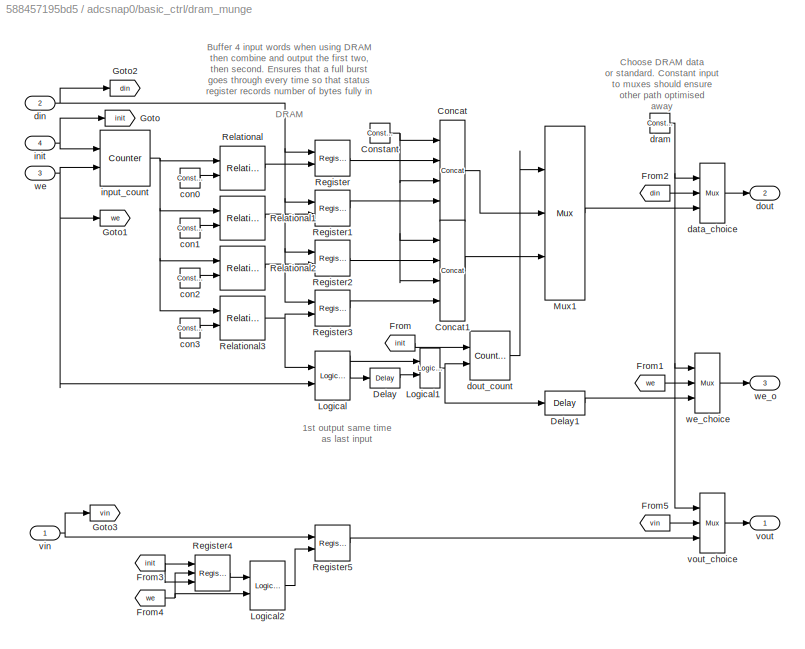
BLOCK [SubSystem] adcsnap0/basic_ctrl/dram_munge
  FunctionWithSeparateData = off
  MaskHideContents = off
  MinAlgLoopOccurrences = off
  Opaque = off
  Ports = [4, 3]
  PropExecContextOutsideSubsystem = off
  RTWSystemCode = Auto
  RequestExecContextInheritance = off
BLOCK [Reference] adcsnap0/basic_ctrl/dram_munge/Concat  REF=xbsIndex_r4/Concat
  Ports = [4, 1]
  SourceBlock = xbsIndex_r4/Concat
  SourceType = Xilinx Bus Concatenator Block
  block_type = concat
  block_version = 11.4
  dbl_ovrd = off
  has_advanced_control = 0
  infoedit = Concatenates two or more inputs.  Output will be cast to an unsigned value with the binary point at zero.
  num_inputs = 4
  sg_icon_stat = 25,101,4,1,white,blue,0,47d3d416,right,,[ ],[ ]
  sg_mask_display = fprintf('','COMMENT: begin icon graphics');\npatch([0 25 25 0 0 ],[0 0 101 101 0 ],[0.77 0.82 0.91 ]);\nplot([0 25 25 0 0 ],[0 0 101 101 0 ]);\npatch([5.325 9.66 12.66 15.66 18.66 12.66 8.325 5.325 ],[53.33 53.33 56.33 53.33 56.33 56.33 56.33 53.33 ],[1 1 1 ]);\npatch([8.325 12.66 9.66 5.325 8.325 ],[50.33 50.33 53.33 53.33 50.33 ],[0.931 0.946 0.973 ]);\npatch([5.325 9.66 12.66 8.325 5.325 ],[47.33 47...<+416ch>  <repeated x4 — deduplicated; at blocks: Concat, Concat1>
  sggui_pos = 21,71,348,216
BLOCK [Reference] adcsnap0/basic_ctrl/dram_munge/Concat1  REF=xbsIndex_r4/Concat
  Ports = [4, 1]
  SourceBlock = xbsIndex_r4/Concat
  SourceType = Xilinx Bus Concatenator Block
  block_type = concat
  block_version = 11.4
  dbl_ovrd = off
  has_advanced_control = 0
  infoedit = Concatenates two or more inputs.  Output will be cast to an unsigned value with the binary point at zero.
  num_inputs = 4
  sg_icon_stat = 25,101,4,1,white,blue,0,47d3d416,right,,[ ],[ ]
  sggui_pos = 21,71,348,216
BLOCK [Reference] adcsnap0/basic_ctrl/dram_munge/Constant  REF=xbsIndex_r4/Constant
  Ports = [0, 1]
  SourceBlock = xbsIndex_r4/Constant
  SourceType = Xilinx Constant Block Block
  arith_type = Unsigned
  bin_pt = 0
  block_type = constant
  block_version = 11.4
  carry = CIN
  const = 0
  dbl_ovrd = off
  dsp48_infoedit = The use of this block for DSP48 instructions is deprecated.  Please use the Opmode block.
  equ = P=C
  exp_width = 8
  explicit_period = on
  frac_width = 24
  gui_display_data_type = Fixed-point
  has_advanced_control = 0
  inp1 = P
  inp2 = PCIN>>17
  n_bits = 8
  opr = +
  opselect = C
  period = 1
  preci_type = Single
  sg_icon_stat = 20,20,0,1,white,blue,0,bf4ddd8b,right,,[ ],[ ]
  sggui_pos = -1,-1,-1,-1
BLOCK [Reference] adcsnap0/basic_ctrl/dram_munge/Delay  REF=xbsIndex_r4/Delay
  Ports = [1, 1]
  SourceBlock = xbsIndex_r4/Delay
  SourceType = Xilinx Delay Block
  block_type = delay
  block_version = 11.4
  dbl_ovrd = off
  en = off
  has_advanced_control = 0
  infoedit = Hardware notes: A delay line is a chain, each link of which is an SRL16 followed by a flip-flop.
  infoeditControl = Selection of Reset will increase slice count due to use of real FFs and instead of SRLs
  latency = 1
  reg_retiming = off
  rst = off
  sg_icon_stat = 30,20,1,1,white,blue,0,07b98262,right,,[ ],[ ]
  sg_mask_display = fprintf('','COMMENT: begin icon graphics');\npatch([0 30 30 0 0 ],[0 0 20 20 0 ],[0.77 0.82 0.91 ]);\nplot([0 30 30 0 0 ],[0 0 20 20 0 ]);\npatch([10.55 13.44 15.44 17.44 19.44 15.44 12.55 10.55 ],[12.22 12.22 14.22 12.22 14.22 14.22 14.22 12.22 ],[1 1 1 ]);\npatch([12.55 15.44 13.44 10.55 12.55 ],[10.22 10.22 12.22 12.22 10.22 ],[0.931 0.946 0.973 ]);\npatch([10.55 13.44 15.44 12.55 10.55 ],[8.22 8.22...<+310ch>
  sggui_pos = -1,-1,-1,-1
  xl_area = [0,0,0,0,0,0,0]
  xl_use_area = off
BLOCK [Reference] adcsnap0/basic_ctrl/dram_munge/Delay1  REF=xbsIndex_r4/Delay
  Ports = [1, 1]
  SourceBlock = xbsIndex_r4/Delay
  SourceType = Xilinx Delay Block
  block_type = delay
  block_version = 11.4
  dbl_ovrd = off
  en = off
  has_advanced_control = 0
  infoedit = Hardware notes: A delay line is a chain, each link of which is an SRL16 followed by a flip-flop.
  infoeditControl = Selection of Reset will increase slice count due to use of real FFs and instead of SRLs
  latency = 1
  reg_retiming = off
  rst = off
  sg_icon_stat = 40,24,1,1,white,blue,0,07b98262,right,,[ ],[ ]
  sg_mask_display = fprintf('','COMMENT: begin icon graphics');\npatch([0 40 40 0 0 ],[0 0 24 24 0 ],[0.77 0.82 0.91 ]);\nplot([0 40 40 0 0 ],[0 0 24 24 0 ]);\npatch([13.325 17.66 20.66 23.66 26.66 20.66 16.325 13.325 ],[15.33 15.33 18.33 15.33 18.33 18.33 18.33 15.33 ],[1 1 1 ]);\npatch([16.325 20.66 17.66 13.325 16.325 ],[12.33 12.33 15.33 15.33 12.33 ],[0.931 0.946 0.973 ]);\npatch([13.325 17.66 20.66 16.325 13.325 ],[...<+322ch>
  sggui_pos = -1,-1,-1,-1
  xl_area = [0,0,0,0,0,0,0]
  xl_use_area = off
BLOCK [From] adcsnap0/basic_ctrl/dram_munge/From
  CloseFcn = tagdialog Close
  GotoTag = init
BLOCK [From] adcsnap0/basic_ctrl/dram_munge/From1
  CloseFcn = tagdialog Close
  GotoTag = we
BLOCK [From] adcsnap0/basic_ctrl/dram_munge/From2
  CloseFcn = tagdialog Close
  GotoTag = din
BLOCK [From] adcsnap0/basic_ctrl/dram_munge/From3
  CloseFcn = tagdialog Close
  GotoTag = init
BLOCK [From] adcsnap0/basic_ctrl/dram_munge/From4
  CloseFcn = tagdialog Close
  GotoTag = we
BLOCK [From] adcsnap0/basic_ctrl/dram_munge/From5
  CloseFcn = tagdialog Close
  GotoTag = vin
BLOCK [Goto] adcsnap0/basic_ctrl/dram_munge/Goto
  GotoTag = init
BLOCK [Goto] adcsnap0/basic_ctrl/dram_munge/Goto1
  GotoTag = we
BLOCK [Goto] adcsnap0/basic_ctrl/dram_munge/Goto2
  GotoTag = din
BLOCK [Goto] adcsnap0/basic_ctrl/dram_munge/Goto3
  GotoTag = vin
BLOCK [Reference] adcsnap0/basic_ctrl/dram_munge/Logical  REF=xbsIndex_r4/Logical
  Ports = [2, 1]
  SourceBlock = xbsIndex_r4/Logical
  SourceType = Xilinx Logical Block Block
  align_bp = on
  arith_type = Unsigned
  bin_pt = 0
  block_type = logical
  block_version = 11.4
  dbl_ovrd = off
  en = off
  has_advanced_control = 0
  inputs = 2
  latency = 1
  logical_function = AND
  n_bits = 16
  precision = Full
  sg_icon_stat = 35,49,2,1,white,blue,0,e7f9d02e,right,,[ ],[ ]
  sg_list_contents = {'table'=>{'logical_function'=>'popup(AND|NAND|OR|NOR|XOR|XNOR)','userSelections'=>{'logical_function'=>'AND'}}}
  sg_mask_display = fprintf('','COMMENT: begin icon graphics');\npatch([0 35 35 0 0 ],[0 0 49 49 0 ],[0.77 0.82 0.91 ]);\nplot([0 35 35 0 0 ],[0 0 49 49 0 ]);\npatch([5.875 13.1 18.1 23.1 28.1 18.1 10.875 5.875 ],[29.55 29.55 34.55 29.55 34.55 34.55 34.55 29.55 ],[1 1 1 ]);\npatch([10.875 18.1 13.1 5.875 10.875 ],[24.55 24.55 29.55 29.55 24.55 ],[0.931 0.946 0.973 ]);\npatch([5.875 13.1 18.1 10.875 5.875 ],[19.55 19.55 24...<+354ch>
  sggui_pos = 21,71,419,291
  xl_area = [0,0,0,0,0,0,0]
  xl_use_area = off
BLOCK [Reference] adcsnap0/basic_ctrl/dram_munge/Logical1  REF=xbsIndex_r4/Logical
  Ports = [2, 1]
  SourceBlock = xbsIndex_r4/Logical
  SourceType = Xilinx Logical Block Block
  align_bp = on
  arith_type = Unsigned
  bin_pt = 0
  block_type = logical
  block_version = 11.4
  dbl_ovrd = off
  en = off
  has_advanced_control = 0
  inputs = 2
  latency = 0
  logical_function = OR
  n_bits = 16
  precision = Full
  sg_icon_stat = 20,40,2,1,white,blue,0,7ede7d88,right,,[ ],[ ]
  sg_list_contents = {'table'=>{'logical_function'=>'popup(AND|NAND|OR|NOR|XOR|XNOR)','userSelections'=>{'logical_function'=>'OR'}}}
  sg_mask_display = fprintf('','COMMENT: begin icon graphics');\npatch([0 20 20 0 0 ],[0 0 40 40 0 ],[0.77 0.82 0.91 ]);\nplot([0 20 20 0 0 ],[0 0 40 40 0 ]);\npatch([5.55 8.44 10.44 12.44 14.44 10.44 7.55 5.55 ],[22.22 22.22 24.22 22.22 24.22 24.22 24.22 22.22 ],[1 1 1 ]);\npatch([7.55 10.44 8.44 5.55 7.55 ],[20.22 20.22 22.22 22.22 20.22 ],[0.931 0.946 0.973 ]);\npatch([5.55 8.44 10.44 7.55 5.55 ],[18.22 18.22 20.22 20....<+286ch>
  sggui_pos = 21,71,419,291
  xl_area = [0,0,0,0,0,0,0]
  xl_use_area = off
BLOCK [Reference] adcsnap0/basic_ctrl/dram_munge/Logical2  REF=xbsIndex_r4/Logical
  Ports = [2, 1]
  SourceBlock = xbsIndex_r4/Logical
  SourceType = Xilinx Logical Block Block
  align_bp = on
  arith_type = Unsigned
  bin_pt = 0
  block_type = logical
  block_version = 11.4
  dbl_ovrd = off
  en = off
  has_advanced_control = 0
  inputs = 2
  latency = 0
  logical_function = AND
  n_bits = 16
  precision = Full
  sg_icon_stat = 35,49,2,1,white,blue,0,83a4b621,right,,[ ],[ ]
  sg_list_contents = {'table'=>{'logical_function'=>'popup(AND|NAND|OR|NOR|XOR|XNOR)','userSelections'=>{'logical_function'=>'AND'}}}
  sg_mask_display = fprintf('','COMMENT: begin icon graphics');\npatch([0 35 35 0 0 ],[0 0 49 49 0 ],[0.77 0.82 0.91 ]);\nplot([0 35 35 0 0 ],[0 0 49 49 0 ]);\npatch([5.875 13.1 18.1 23.1 28.1 18.1 10.875 5.875 ],[29.55 29.55 34.55 29.55 34.55 34.55 34.55 29.55 ],[1 1 1 ]);\npatch([10.875 18.1 13.1 5.875 10.875 ],[24.55 24.55 29.55 29.55 24.55 ],[0.931 0.946 0.973 ]);\npatch([5.875 13.1 18.1 10.875 5.875 ],[19.55 19.55 24...<+296ch>
  sggui_pos = 22,98,419,291
  xl_area = [0,0,0,0,0,0,0]
  xl_use_area = off
BLOCK [Reference] adcsnap0/basic_ctrl/dram_munge/Mux1  REF=xbsIndex_r4/Mux
  Ports = [3, 1]
  SourceBlock = xbsIndex_r4/Mux
  SourceType = Xilinx Bus Multiplexer Block
  arith_type = Unsigned
  bin_pt = 14
  block_type = mux
  block_version = 11.4
  dbl_ovrd = off
  en = off
  has_advanced_control = 0
  inputs = 2
  latency = 1
  n_bits = 16
  overflow = Wrap
  precision = Full
  quantization = Truncate
  sg_icon_stat = 40,174,3,1,white,blue,3,a150fb03,right,,[ ],[ ]
  sg_list_contents = {'table'=>{'inputs'=>'popup(2|3|4|5|6|7|8|9|10|11|12|13|14|15|16|17|18|19|20|21|22|23|24|25|26|27|28|29|30|31|32)','userSelections'=>{'inputs'=>'2'}}}
  sg_mask_display = fprintf('','COMMENT: begin icon graphics');\npatch([0 40 40 0 0 ],[0 24.8571 149.143 174 0 ],[0.77 0.82 0.91 ]);\nplot([0 40 40 0 0 ],[0 24.8571 149.143 174 0 ]);\npatch([8.875 16.1 21.1 26.1 31.1 21.1 13.875 8.875 ],[92.55 92.55 97.55 92.55 97.55 97.55 97.55 92.55 ],[1 1 1 ]);\npatch([13.875 21.1 16.1 8.875 13.875 ],[87.55 87.55 92.55 92.55 87.55 ],[0.931 0.946 0.973 ]);\npatch([8.875 16.1 21.1 13.875...<+473ch>
  sggui_pos = 23,125,419,344
  xl_area = [0,0,0,0,0,0,0]
  xl_use_area = off
BLOCK [Reference] adcsnap0/basic_ctrl/dram_munge/Register  REF=xbsIndex_r4/Register
  Ports = [2, 1]
  SourceBlock = xbsIndex_r4/Register
  SourceType = Xilinx Register Block
  block_type = register
  block_version = 11.4
  dbl_ovrd = off
  en = on
  has_advanced_control = 0
  init = 0
  rst = off
  sg_icon_stat = 35,36,2,1,white,blue,0,6bd0930c,right,,[ ],[ ]
  sg_mask_display = fprintf('','COMMENT: begin icon graphics');\npatch([0 35 35 0 0 ],[0 0 36 36 0 ],[0.77 0.82 0.91 ]);\nplot([0 35 35 0 0 ],[0 0 36 36 0 ]);\npatch([5.875 13.1 18.1 23.1 28.1 18.1 10.875 5.875 ],[23.55 23.55 28.55 23.55 28.55 28.55 28.55 23.55 ],[1 1 1 ]);\npatch([10.875 18.1 13.1 5.875 10.875 ],[18.55 18.55 23.55 23.55 18.55 ],[0.931 0.946 0.973 ]);\npatch([5.875 13.1 18.1 10.875 5.875 ],[13.55 13.55 18...<+435ch>  <repeated x10 — deduplicated; at blocks: Register, Register1, Register2, Register3, Register5>
  sggui_pos = 21,71,419,209
  xl_area = [0,0,0,0,0,0,0]
  xl_use_area = off
BLOCK [Reference] adcsnap0/basic_ctrl/dram_munge/Register1  REF=xbsIndex_r4/Register
  Ports = [2, 1]
  SourceBlock = xbsIndex_r4/Register
  SourceType = Xilinx Register Block
  block_type = register
  block_version = 11.4
  dbl_ovrd = off
  en = on
  has_advanced_control = 0
  init = 0
  rst = off
  sg_icon_stat = 35,36,2,1,white,blue,0,6bd0930c,right,,[ ],[ ]
  sggui_pos = 21,71,419,209
  xl_area = [0,0,0,0,0,0,0]
  xl_use_area = off
BLOCK [Reference] adcsnap0/basic_ctrl/dram_munge/Register2  REF=xbsIndex_r4/Register
  Ports = [2, 1]
  SourceBlock = xbsIndex_r4/Register
  SourceType = Xilinx Register Block
  block_type = register
  block_version = 11.4
  dbl_ovrd = off
  en = on
  has_advanced_control = 0
  init = 0
  rst = off
  sg_icon_stat = 35,36,2,1,white,blue,0,6bd0930c,right,,[ ],[ ]
  sggui_pos = 21,71,419,209
  xl_area = [0,0,0,0,0,0,0]
  xl_use_area = off
BLOCK [Reference] adcsnap0/basic_ctrl/dram_munge/Register3  REF=xbsIndex_r4/Register
  Ports = [2, 1]
  SourceBlock = xbsIndex_r4/Register
  SourceType = Xilinx Register Block
  block_type = register
  block_version = 11.4
  dbl_ovrd = off
  en = on
  has_advanced_control = 0
  init = 0
  rst = off
  sg_icon_stat = 35,36,2,1,white,blue,0,6bd0930c,right,,[ ],[ ]
  sggui_pos = 21,71,419,209
  xl_area = [0,0,0,0,0,0,0]
  xl_use_area = off
BLOCK [Reference] adcsnap0/basic_ctrl/dram_munge/Register4  REF=xbsIndex_r4/Register
  Ports = [3, 1]
  SourceBlock = xbsIndex_r4/Register
  SourceType = Xilinx Register Block
  block_type = register
  block_version = 11.4
  dbl_ovrd = off
  en = on
  has_advanced_control = 0
  init = 0
  rst = on
  sg_icon_stat = 35,36,3,1,white,blue,0,30546de1,right,,[ ],[ ]
  sg_mask_display = fprintf('','COMMENT: begin icon graphics');\npatch([0 35 35 0 0 ],[0 0 36 36 0 ],[0.77 0.82 0.91 ]);\nplot([0 35 35 0 0 ],[0 0 36 36 0 ]);\npatch([5.875 13.1 18.1 23.1 28.1 18.1 10.875 5.875 ],[23.55 23.55 28.55 23.55 28.55 28.55 28.55 23.55 ],[1 1 1 ]);\npatch([10.875 18.1 13.1 5.875 10.875 ],[18.55 18.55 23.55 23.55 18.55 ],[0.931 0.946 0.973 ]);\npatch([5.875 13.1 18.1 10.875 5.875 ],[13.55 13.55 18...<+479ch>
  sggui_pos = 21,71,419,209
  xl_area = [0,0,0,0,0,0,0]
  xl_use_area = off
BLOCK [Reference] adcsnap0/basic_ctrl/dram_munge/Register5  REF=xbsIndex_r4/Register
  Ports = [2, 1]
  SourceBlock = xbsIndex_r4/Register
  SourceType = Xilinx Register Block
  block_type = register
  block_version = 11.4
  dbl_ovrd = off
  en = on
  has_advanced_control = 0
  init = 0
  rst = off
  sg_icon_stat = 35,36,2,1,white,blue,0,6bd0930c,right,,[ ],[ ]
  sggui_pos = 22,98,419,209
  xl_area = [0,0,0,0,0,0,0]
  xl_use_area = off
BLOCK [Reference] adcsnap0/basic_ctrl/dram_munge/Relational  REF=xbsIndex_r4/Relational
  Ports = [2, 1]
  SourceBlock = xbsIndex_r4/Relational
  SourceType = Xilinx Arithmetic Relational Operator Block
  block_type = relational
  block_version = 11.4
  dbl_ovrd = off
  en = off
  has_advanced_control = 0
  latency = 0
  mode = a=b
  sg_icon_stat = 45,44,2,1,white,blue,0,2a81ff49,right,,[ ],[ ]
  sg_list_contents = {'table'=>{'mode'=>'popup(a=b|a!=b|a<b|a>b|a<=b|a>=b)','userSelections'=>{'mode'=>'a=b'}}}
  sg_mask_display = fprintf('','COMMENT: begin icon graphics');\npatch([0 45 45 0 0 ],[0 0 44 44 0 ],[0.77 0.82 0.91 ]);\nplot([0 45 45 0 0 ],[0 0 44 44 0 ]);\npatch([8.65 17.32 23.32 29.32 35.32 23.32 14.65 8.65 ],[28.66 28.66 34.66 28.66 34.66 34.66 34.66 28.66 ],[1 1 1 ]);\npatch([14.65 23.32 17.32 8.65 14.65 ],[22.66 22.66 28.66 28.66 22.66 ],[0.931 0.946 0.973 ]);\npatch([8.65 17.32 23.32 14.65 8.65 ],[16.66 16.66 22...<+441ch>  <repeated x8 — deduplicated; at blocks: Relational, Relational1, Relational2, Relational3>
  sggui_pos = 21,71,419,209
  xl_area = [0,0,0,0,0,0,0]
  xl_use_area = off
BLOCK [Reference] adcsnap0/basic_ctrl/dram_munge/Relational1  REF=xbsIndex_r4/Relational
  Ports = [2, 1]
  SourceBlock = xbsIndex_r4/Relational
  SourceType = Xilinx Arithmetic Relational Operator Block
  block_type = relational
  block_version = 11.4
  dbl_ovrd = off
  en = off
  has_advanced_control = 0
  latency = 0
  mode = a=b
  sg_icon_stat = 45,44,2,1,white,blue,0,2a81ff49,right,,[ ],[ ]
  sg_list_contents = {'table'=>{'mode'=>'popup(a=b|a!=b|a<b|a>b|a<=b|a>=b)','userSelections'=>{'mode'=>'a=b'}}}
  sggui_pos = 21,71,419,209
  xl_area = [0,0,0,0,0,0,0]
  xl_use_area = off
BLOCK [Reference] adcsnap0/basic_ctrl/dram_munge/Relational2  REF=xbsIndex_r4/Relational
  Ports = [2, 1]
  SourceBlock = xbsIndex_r4/Relational
  SourceType = Xilinx Arithmetic Relational Operator Block
  block_type = relational
  block_version = 11.4
  dbl_ovrd = off
  en = off
  has_advanced_control = 0
  latency = 0
  mode = a=b
  sg_icon_stat = 45,44,2,1,white,blue,0,2a81ff49,right,,[ ],[ ]
  sg_list_contents = {'table'=>{'mode'=>'popup(a=b|a!=b|a<b|a>b|a<=b|a>=b)','userSelections'=>{'mode'=>'a=b'}}}
  sggui_pos = 21,71,419,209
  xl_area = [0,0,0,0,0,0,0]
  xl_use_area = off
BLOCK [Reference] adcsnap0/basic_ctrl/dram_munge/Relational3  REF=xbsIndex_r4/Relational
  Ports = [2, 1]
  SourceBlock = xbsIndex_r4/Relational
  SourceType = Xilinx Arithmetic Relational Operator Block
  block_type = relational
  block_version = 11.4
  dbl_ovrd = off
  en = off
  has_advanced_control = 0
  latency = 0
  mode = a=b
  sg_icon_stat = 45,44,2,1,white,blue,0,2a81ff49,right,,[ ],[ ]
  sg_list_contents = {'table'=>{'mode'=>'popup(a=b|a!=b|a<b|a>b|a<=b|a>=b)','userSelections'=>{'mode'=>'a=b'}}}
  sggui_pos = 21,71,419,209
  xl_area = [0,0,0,0,0,0,0]
  xl_use_area = off
BLOCK [Reference] adcsnap0/basic_ctrl/dram_munge/con0  REF=xbsIndex_r4/Constant
  Ports = [0, 1]
  SourceBlock = xbsIndex_r4/Constant
  SourceType = Xilinx Constant Block Block
  arith_type = Unsigned
  bin_pt = 0
  block_type = constant
  block_version = 11.4
  carry = CIN
  const = 0
  dbl_ovrd = off
  dsp48_infoedit = The use of this block for DSP48 instructions is deprecated.  Please use the Opmode block.
  equ = P=C
  exp_width = 8
  explicit_period = on
  frac_width = 24
  gui_display_data_type = Fixed-point
  has_advanced_control = 0
  inp1 = P
  inp2 = PCIN>>17
  n_bits = 2
  opr = +
  opselect = C
  period = 1
  preci_type = Single
  sg_icon_stat = 20,20,0,1,white,blue,0,bf4ddd8b,right,,[ ],[ ]
  sggui_pos = 22,98,474,439
BLOCK [Reference] adcsnap0/basic_ctrl/dram_munge/con1  REF=xbsIndex_r4/Constant
  Ports = [0, 1]
  SourceBlock = xbsIndex_r4/Constant
  SourceType = Xilinx Constant Block Block
  arith_type = Unsigned
  bin_pt = 0
  block_type = constant
  block_version = 11.4
  carry = CIN
  const = 1
  dbl_ovrd = off
  dsp48_infoedit = The use of this block for DSP48 instructions is deprecated.  Please use the Opmode block.
  equ = P=C
  exp_width = 8
  explicit_period = on
  frac_width = 24
  gui_display_data_type = Fixed-point
  has_advanced_control = 0
  inp1 = P
  inp2 = PCIN>>17
  n_bits = 2
  opr = +
  opselect = C
  period = 1
  preci_type = Single
  sg_icon_stat = 20,20,0,1,white,blue,0,1c72b5be,right,,[ ],[ ]
  sggui_pos = 23,125,474,439
BLOCK [Reference] adcsnap0/basic_ctrl/dram_munge/con2  REF=xbsIndex_r4/Constant
  Ports = [0, 1]
  SourceBlock = xbsIndex_r4/Constant
  SourceType = Xilinx Constant Block Block
  arith_type = Unsigned
  bin_pt = 0
  block_type = constant
  block_version = 11.4
  carry = CIN
  const = 2
  dbl_ovrd = off
  dsp48_infoedit = The use of this block for DSP48 instructions is deprecated.  Please use the Opmode block.
  equ = P=C
  exp_width = 8
  explicit_period = on
  frac_width = 24
  gui_display_data_type = Fixed-point
  has_advanced_control = 0
  inp1 = P
  inp2 = PCIN>>17
  n_bits = 2
  opr = +
  opselect = C
  period = 1
  preci_type = Single
  sg_icon_stat = 20,20,0,1,white,blue,0,fca86624,right,,[ ],[ ]
  sggui_pos = 24,152,474,439
BLOCK [Reference] adcsnap0/basic_ctrl/dram_munge/con3  REF=xbsIndex_r4/Constant
  Ports = [0, 1]
  SourceBlock = xbsIndex_r4/Constant
  SourceType = Xilinx Constant Block Block
  arith_type = Unsigned
  bin_pt = 0
  block_type = constant
  block_version = 11.4
  carry = CIN
  const = 3
  dbl_ovrd = off
  dsp48_infoedit = The use of this block for DSP48 instructions is deprecated.  Please use the Opmode block.
  equ = P=C
  exp_width = 8
  explicit_period = on
  frac_width = 24
  gui_display_data_type = Fixed-point
  has_advanced_control = 0
  inp1 = P
  inp2 = PCIN>>17
  n_bits = 2
  opr = +
  opselect = C
  period = 1
  preci_type = Single
  sg_icon_stat = 20,20,0,1,white,blue,0,279a71c8,right,,[ ],[ ]
  sggui_pos = 25,179,474,439
BLOCK [Reference] adcsnap0/basic_ctrl/dram_munge/data_choice  REF=xbsIndex_r4/Mux
  Ports = [3, 1]
  SourceBlock = xbsIndex_r4/Mux
  SourceType = Xilinx Bus Multiplexer Block
  arith_type = Unsigned
  bin_pt = 0
  block_type = mux
  block_version = 11.4
  dbl_ovrd = off
  en = off
  has_advanced_control = 0
  inputs = 2
  latency = 0
  n_bits = 64
  overflow = Wrap
  precision = User Defined
  quantization = Truncate
  sg_icon_stat = 25,60,3,1,white,blue,3,eb98d690,right,,[ ],[ ]
  sg_list_contents = {'table'=>{'inputs'=>'popup(2|3|4|5|6|7|8|9|10|11|12|13|14|15|16|17|18|19|20|21|22|23|24|25|26|27|28|29|30|31|32)','userSelections'=>{'inputs'=>'2'}}}
  sg_mask_display = fprintf('','COMMENT: begin icon graphics');\npatch([0 25 25 0 0 ],[0 8.57143 51.4286 60 0 ],[0.77 0.82 0.91 ]);\nplot([0 25 25 0 0 ],[0 8.57143 51.4286 60 0 ]);\npatch([5.325 9.66 12.66 15.66 18.66 12.66 8.325 5.325 ],[33.33 33.33 36.33 33.33 36.33 36.33 36.33 33.33 ],[1 1 1 ]);\npatch([8.325 12.66 9.66 5.325 8.325 ],[30.33 30.33 33.33 33.33 30.33 ],[0.931 0.946 0.973 ]);\npatch([5.325 9.66 12.66 8.325...<+466ch>  <repeated x6 — deduplicated; at blocks: data_choice, vout_choice, we_choice>
  sggui_pos = 26,206,419,344
  xl_area = [0,0,0,0,0,0,0]
  xl_use_area = off
BLOCK [Inport] adcsnap0/basic_ctrl/dram_munge/din
  IconDisplay = Port number
  Port = 2
BLOCK [Outport] adcsnap0/basic_ctrl/dram_munge/dout
  IconDisplay = Port number
  Port = 2
BLOCK [Reference] adcsnap0/basic_ctrl/dram_munge/dout_count  REF=xbsIndex_r4/Counter
  Ports = [2, 1]
  SourceBlock = xbsIndex_r4/Counter
  SourceType = Xilinx Counter Block
  arith_type = Unsigned
  bin_pt = 0
  block_type = counter
  block_version = 11.4
  cnt_by_val = 1
  cnt_to = Inf
  cnt_type = Free Running
  dbl_ovrd = off
  en = on
  explicit_period = on
  has_advanced_control = 0
  implementation = Fabric
  infoedit = Hardware notes: Free running counters are the least expensive in hardware.  A count limited counter is implemented by combining a counter with a comparator.
  load_pin = off
  n_bits = 1
  operation = Up
  period = 1
  rst = on
  sg_icon_stat = 40,49,2,1,white,blue,0,ae3608d6,right,,[ ],[ ]
  sg_mask_display = fprintf('','COMMENT: begin icon graphics');\npatch([0 40 40 0 0 ],[0 0 49 49 0 ],[0.77 0.82 0.91 ]);\nplot([0 40 40 0 0 ],[0 0 49 49 0 ]);\npatch([8.875 16.1 21.1 26.1 31.1 21.1 13.875 8.875 ],[29.55 29.55 34.55 29.55 34.55 34.55 34.55 29.55 ],[1 1 1 ]);\npatch([13.875 21.1 16.1 8.875 13.875 ],[24.55 24.55 29.55 29.55 24.55 ],[0.931 0.946 0.973 ]);\npatch([8.875 16.1 21.1 13.875 8.875 ],[19.55 19.55 24...<+326ch>
  sggui_pos = 22,98,419,748
  start_count = 0
  use_behavioral_HDL = off
  xl_area = [0,0,0,0,0,0,0]
  xl_use_area = off
BLOCK [Reference] adcsnap0/basic_ctrl/dram_munge/dram  REF=xbsIndex_r4/Constant
  Ports = [0, 1]
  SourceBlock = xbsIndex_r4/Constant
  SourceType = Xilinx Constant Block Block
  arith_type = Boolean
  bin_pt = 14
  block_type = constant
  block_version = 11.4
  carry = CIN
  const = 0
  dbl_ovrd = off
  dsp48_infoedit = The use of this block for DSP48 instructions is deprecated.  Please use the Opmode block.
  equ = P=C
  exp_width = 8
  explicit_period = on
  frac_width = 24
  gui_display_data_type = Fixed-point
  has_advanced_control = 0
  inp1 = P
  inp2 = PCIN>>17
  n_bits = 16
  opr = +
  opselect = C
  period = 1
  preci_type = Single
  sg_icon_stat = 20,20,0,1,white,blue,0,bf4ddd8b,right,,[ ],[ ]
  sggui_pos = 23,125,474,439
BLOCK [Inport] adcsnap0/basic_ctrl/dram_munge/init
  IconDisplay = Port number
  Port = 4
BLOCK [Reference] adcsnap0/basic_ctrl/dram_munge/input_count  REF=xbsIndex_r4/Counter
  Ports = [2, 1]
  SourceBlock = xbsIndex_r4/Counter
  SourceType = Xilinx Counter Block
  arith_type = Unsigned
  bin_pt = 0
  block_type = counter
  block_version = 11.4
  cnt_by_val = 1
  cnt_to = Inf
  cnt_type = Free Running
  dbl_ovrd = off
  en = on
  explicit_period = on
  has_advanced_control = 0
  implementation = Fabric
  infoedit = Hardware notes: Free running counters are the least expensive in hardware.  A count limited counter is implemented by combining a counter with a comparator.
  load_pin = off
  n_bits = 2
  operation = Up
  period = 1
  rst = on
  sg_icon_stat = 50,56,2,1,white,blue,0,ae3608d6,right,,[ ],[ ]
  sggui_pos = 22,98,419,748
  start_count = 0
  use_behavioral_HDL = off
  xl_area = [0,0,0,0,0,0,0]
  xl_use_area = off
BLOCK [Inport] adcsnap0/basic_ctrl/dram_munge/vin
  IconDisplay = Port number
BLOCK [Outport] adcsnap0/basic_ctrl/dram_munge/vout
  IconDisplay = Port number
BLOCK [Reference] adcsnap0/basic_ctrl/dram_munge/vout_choice  REF=xbsIndex_r4/Mux
  Ports = [3, 1]
  SourceBlock = xbsIndex_r4/Mux
  SourceType = Xilinx Bus Multiplexer Block
  arith_type = Unsigned
  bin_pt = 14
  block_type = mux
  block_version = 11.4
  dbl_ovrd = off
  en = off
  has_advanced_control = 0
  inputs = 2
  latency = 0
  n_bits = 16
  overflow = Wrap
  precision = Full
  quantization = Truncate
  sg_icon_stat = 25,60,3,1,white,blue,3,eb98d690,right,,[ ],[ ]
  sggui_pos = -1,-1,-1,-1
  xl_area = [0,0,0,0,0,0,0]
  xl_use_area = off
BLOCK [Inport] adcsnap0/basic_ctrl/dram_munge/we
  IconDisplay = Port number
  Port = 3
BLOCK [Reference] adcsnap0/basic_ctrl/dram_munge/we_choice  REF=xbsIndex_r4/Mux
  Ports = [3, 1]
  SourceBlock = xbsIndex_r4/Mux
  SourceType = Xilinx Bus Multiplexer Block
  arith_type = Unsigned
  bin_pt = 14
  block_type = mux
  block_version = 11.4
  dbl_ovrd = off
  en = off
  has_advanced_control = 0
  inputs = 2
  latency = 0
  n_bits = 16
  overflow = Wrap
  precision = Full
  quantization = Truncate
  sg_icon_stat = 25,60,3,1,white,blue,3,eb98d690,right,,[ ],[ ]
  sggui_pos = -1,-1,-1,-1
  xl_area = [0,0,0,0,0,0,0]
  xl_use_area = off
BLOCK [Outport] adcsnap0/basic_ctrl/dram_munge/we_o
  IconDisplay = Port number
  Port = 3
BLOCK [Reference] adcsnap0/basic_ctrl/edge_detect  REF=casper_library_misc/edge_detect  (lib defined in mdl_357510c33b49, mdl_57b5f564ae26, +4 more)
  AttributesFormatString = rising edges\nactive high
  Ports = [1, 1]
  SourceBlock = casper_library_misc/edge_detect
  SourceType = edge_detect
  UserDataPersistent = on
  edge = Rising
  polarity = Active High
  x_in = [0 0.08 0.08 0.16 0.16 0.24 0.24 0.32 0.32 0.4]
  x_out = [0.6 0.68 0.68 0.76 0.76 0.84 0.84 0.92 0.92 1]
  y_in = [-1 -1  1  1  1  1  1  1  1  1]
  y_out = [-1 -1  1  1 -1 -1 -1 -1 -1 -1]
BLOCK [Reference] adcsnap0/basic_ctrl/enable  REF=xbsIndex_r4/Slice
  Ports = [1, 1]
  SourceBlock = xbsIndex_r4/Slice
  SourceType = Xilinx Bit Slice Extractor Block
  base0 = LSB of Input
  base1 = LSB of Input
  bit0 = 0
  bit1 = 0
  block_type = slice
  block_version = 10.1.3
  boolean_output = on
  dbl_ovrd = off
  has_advanced_control = 0
  infoedit = Extracts a given range of bits from each input sample and presents it at the output.  The output type is ordinarily unsigned with binary point at zero, but can be Boolean when the slice is one bit wide.<P><P>Hardware notes: In hardware this block costs nothing.  <repeated x6 — deduplicated; at blocks: enable, trig_src, valid_src>
  mode = Lower Bit Location + Width
  nbits = 1
  sg_icon_stat = 25,18,1,1,white,blue,0,1fd851a7,right,,[ ],[ ]
  sggui_pos = 22,98,540,482
BLOCK [Outport] adcsnap0/basic_ctrl/go
  IconDisplay = Port number
  Port = 4
BLOCK [Outport] adcsnap0/basic_ctrl/init
  IconDisplay = Port number
  Port = 6
BLOCK [Outport] adcsnap0/basic_ctrl/stop
  IconDisplay = Port number
  Port = 5
BLOCK [Inport] adcsnap0/basic_ctrl/stopi
  IconDisplay = Port number
  Port = 6
BLOCK [Inport] adcsnap0/basic_ctrl/trig
  IconDisplay = Port number
  Port = 4
BLOCK [Reference] adcsnap0/basic_ctrl/trig_src  REF=xbsIndex_r4/Slice
  Ports = [1, 1]
  SourceBlock = xbsIndex_r4/Slice
  SourceType = Xilinx Bit Slice Extractor Block
  base0 = LSB of Input
  base1 = LSB of Input
  bit0 = 1
  bit1 = 0
  block_type = slice
  block_version = 10.1.3
  boolean_output = on
  dbl_ovrd = off
  has_advanced_control = 0
  mode = Lower Bit Location + Width
  nbits = 1
  sg_icon_stat = 25,20,1,1,white,blue,0,1fd851a7,right,,[ ],[ ]
  sggui_pos = 23,125,540,482
BLOCK [Reference] adcsnap0/basic_ctrl/valid_src  REF=xbsIndex_r4/Slice
  Ports = [1, 1]
  SourceBlock = xbsIndex_r4/Slice
  SourceType = Xilinx Bit Slice Extractor Block
  base0 = LSB of Input
  base1 = LSB of Input
  bit0 = 2
  bit1 = 0
  block_type = slice
  block_version = 10.1.3
  boolean_output = on
  dbl_ovrd = off
  has_advanced_control = 0
  mode = Lower Bit Location + Width
  nbits = 1
  sg_icon_stat = 25,22,1,1,white,blue,0,1fd851a7,right,,[ ],[ ]
  sg_mask_display = fprintf('','COMMENT: begin icon graphics');\npatch([0 25 25 0 0 ],[0 0 22 22 0 ],[0.77 0.82 0.91 ]);\nplot([0 25 25 0 0 ],[0 0 22 22 0 ]);\npatch([5.325 9.66 12.66 15.66 18.66 12.66 8.325 5.325 ],[14.33 14.33 17.33 14.33 17.33 17.33 17.33 14.33 ],[1 1 1 ]);\npatch([8.325 12.66 9.66 5.325 8.325 ],[11.33 11.33 14.33 14.33 11.33 ],[0.931 0.946 0.973 ]);\npatch([5.325 9.66 12.66 8.325 5.325 ],[8.33 8.33 11...<+306ch>
  sggui_pos = 499,248,540,482
BLOCK [Inport] adcsnap0/basic_ctrl/vin
  IconDisplay = Port number
BLOCK [Outport] adcsnap0/basic_ctrl/vout
  IconDisplay = Port number
BLOCK [Inport] adcsnap0/basic_ctrl/we
  IconDisplay = Port number
  Port = 3
BLOCK [Outport] adcsnap0/basic_ctrl/we_o
  IconDisplay = Port number
  Port = 3
BLOCK [SubSystem] adcsnap0/bram
  AncestorBlock = xps_library/Shared_BRAM
  FunctionWithSeparateData = off
  MaskHideContents = off
  MinAlgLoopOccurrences = off
  Opaque = off
  Ports = [3, 1]
  PropExecContextOutsideSubsystem = off
  RTWSystemCode = Auto
  RequestExecContextInheritance = off
  Tag = xps:bram
BLOCK [Inport] adcsnap0/bram/addr
  IconDisplay = Port number
BLOCK [SubSystem] adcsnap0/bram/calc_add
  FunctionWithSeparateData = off
  MaskHideContents = off
  MinAlgLoopOccurrences = off
  Opaque = off
  Ports = [1, 1]
  PropExecContextOutsideSubsystem = off
  RTWSystemCode = Auto
  RequestExecContextInheritance = off
BLOCK [Reference] adcsnap0/bram/calc_add/add_sub  REF=xbsIndex_r4/AddSub
  Ports = [2, 1]
  SourceBlock = xbsIndex_r4/AddSub
  SourceType = Xilinx Adder/Subtracter Block
  arith_type = Unsigned
  bin_pt = 0
  block_type = addsub
  block_version = 11.4
  dbl_ovrd = off
  en = off
  has_advanced_control = 0
  hw_selection = Fabric
  latency = 0
  mode = Subtraction
  n_bits = max(1, log2(32/data_width))
  overflow = Wrap
  pipelined = off
  precision = User Defined
  quantization = Truncate
  sg_icon_stat = 35,78,2,1,white,blue,0,32e1f85f,right,,[ ],[ ]
  sg_mask_display = fprintf('','COMMENT: begin icon graphics');\npatch([0 60 60 0 0 ],[0 0 58 58 0 ],[0.77 0.82 0.91 ]);\nplot([0 60 60 0 0 ],[0 0 58 58 0 ]);\npatch([12.2 23.76 31.76 39.76 47.76 31.76 20.2 12.2 ],[37.88 37.88 45.88 37.88 45.88 45.88 45.88 37.88 ],[1 1 1 ]);\npatch([20.2 31.76 23.76 12.2 20.2 ],[29.88 29.88 37.88 37.88 29.88 ],[0.931 0.946 0.973 ]);\npatch([12.2 23.76 31.76 20.2 12.2 ],[21.88 21.88 29.88 ...<+411ch>  <repeated x4 — deduplicated; at blocks: add_sub>
  sggui_pos = 24,152,420,360
  use_behavioral_HDL = on
  use_carryin = off
  use_carryout = off
  xl_area = [0,0,0,0,0,0,0]
  xl_use_area = off
BLOCK [Reference] adcsnap0/bram/calc_add/concat  REF=xbsIndex_r4/Concat
  Ports = [2, 1]
  SourceBlock = xbsIndex_r4/Concat
  SourceType = Xilinx Bus Concatenator Block
  block_type = concat
  block_version = 11.4
  dbl_ovrd = off
  has_advanced_control = 0
  infoedit = Concatenates two or more inputs.  Output will be cast to an unsigned value with the binary point at zero.
  num_inputs = 2
  sg_icon_stat = 20,120,2,1,white,blue,0,16398980,right,,[ ],[ ]
  sg_mask_display = fprintf('','COMMENT: begin icon graphics');\npatch([0 20 20 0 0 ],[0 0 120 120 0 ],[0.77 0.82 0.91 ]);\nplot([0 20 20 0 0 ],[0 0 120 120 0 ]);\npatch([5.55 8.44 10.44 12.44 14.44 10.44 7.55 5.55 ],[62.22 62.22 64.22 62.22 64.22 64.22 64.22 62.22 ],[1 1 1 ]);\npatch([7.55 10.44 8.44 5.55 7.55 ],[60.22 60.22 62.22 62.22 60.22 ],[0.931 0.946 0.973 ]);\npatch([5.55 8.44 10.44 7.55 5.55 ],[58.22 58.22 60.22...<+402ch>  <repeated x4 — deduplicated; at blocks: concat>
  sggui_pos = -1,-1,-1,-1
BLOCK [Reference] adcsnap0/bram/calc_add/const  REF=xbsIndex_r4/Constant
  Ports = [0, 1]
  SourceBlock = xbsIndex_r4/Constant
  SourceType = Xilinx Constant Block Block
  arith_type = Unsigned
  bin_pt = 0
  block_type = constant
  block_version = 11.4
  carry = CIN
  const = max(0, 32/data_width-1)
  dbl_ovrd = off
  dsp48_infoedit = The use of this block for DSP48 instructions is deprecated.  Please use the Opmode block.
  equ = P=C
  exp_width = 8
  explicit_period = on
  frac_width = 24
  gui_display_data_type = Fixed-point
  has_advanced_control = 0
  inp1 = P
  inp2 = PCIN>>17
  n_bits = max(1, log2(32/data_width))
  opr = +
  opselect = C
  period = sample_rate
  preci_type = Single
  sg_icon_stat = 20,18,0,1,white,blue,0,bf4ddd8b,right,,[ ],[ ]
  sg_mask_display = fprintf('','COMMENT: begin icon graphics');\npatch([0 55 55 0 0 ],[0 0 26 26 0 ],[0.77 0.82 0.91 ]);\nplot([0 55 55 0 0 ],[0 0 26 26 0 ]);\npatch([20.325 24.66 27.66 30.66 33.66 27.66 23.325 20.325 ],[16.33 16.33 19.33 16.33 19.33 19.33 19.33 16.33 ],[1 1 1 ]);\npatch([23.325 27.66 24.66 20.325 23.325 ],[13.33 13.33 16.33 16.33 13.33 ],[0.931 0.946 0.973 ]);\npatch([20.325 24.66 27.66 23.325 20.325 ],[...<+323ch>  <repeated x8 — deduplicated; at blocks: const, manipulate>
  sggui_pos = 536,513,474,439
BLOCK [Reference] adcsnap0/bram/calc_add/convert_addr  REF=xbsIndex_r4/Convert
  Ports = [1, 1]
  SourceBlock = xbsIndex_r4/Convert
  SourceType = Xilinx Type Converter Block
  arith_type = Unsigned
  bin_pt = 0
  block_type = convert
  block_version = 9.1.01
  dbl_ovrd = off
  en = off
  exp_bits = 8
  float_type = Single
  fraction_bits = 24
  gui_display_data_type = Fixed-point
  has_advanced_control = 0
  infoedit = Hardware notes: rounding and saturating require hardware resources; truncating and wrapping do not.
  latency = 0
  n_bits = addr_width
  overflow = Wrap
  pipeline = off
  quantization = Truncate
  sg_icon_stat = 35,24,1,1,white,blue,0,edca21da,right,,[ ],[ ]
  sggui_pos = 21,51,636,521
  xl_area = [0, 0, 0, 0, 0, 0, 0]
  xl_use_area = off
BLOCK [Inport] adcsnap0/bram/calc_add/in
  IconDisplay = Port number
BLOCK [Reference] adcsnap0/bram/calc_add/lsw  REF=xbsIndex_r4/Slice
  Ports = [1, 1]
  SourceBlock = xbsIndex_r4/Slice
  SourceType = Xilinx Bit Slice Extractor Block
  base0 = LSB of Input
  base1 = MSB of Input
  bit0 = 0
  bit1 = 0
  block_type = slice
  block_version = 11.4
  boolean_output = off
  dbl_ovrd = off
  has_advanced_control = 0
  mode = Lower Bit Location + Width
  nbits = max(1, log2(32/data_width))
  sg_icon_stat = 30,22,1,1,white,blue,0,1fd851a7,right,,[ ],[ ]
  sggui_pos = 1059,231,540,482
BLOCK [Reference] adcsnap0/bram/calc_add/manipulate  REF=xbsIndex_r4/Constant
  Ports = [0, 1]
  SourceBlock = xbsIndex_r4/Constant
  SourceType = Xilinx Constant Block Block
  arith_type = Unsigned
  bin_pt = 0
  block_type = constant
  block_version = 11.4
  carry = CIN
  const = min(1, floor(32/data_width) - 1)
  dbl_ovrd = off
  dsp48_infoedit = The use of this block for DSP48 instructions is deprecated.  Please use the Opmode block.
  equ = P=C
  exp_width = 8
  explicit_period = on
  frac_width = 24
  gui_display_data_type = Fixed-point
  has_advanced_control = 0
  inp1 = P
  inp2 = PCIN>>17
  n_bits = 1
  opr = +
  opselect = C
  period = sample_rate
  preci_type = Single
  sg_icon_stat = 20,18,0,1,white,blue,0,bf4ddd8b,right,,[ ],[ ]
  sggui_pos = 445,457,474,461
BLOCK [Reference] adcsnap0/bram/calc_add/msw  REF=xbsIndex_r4/Slice
  Ports = [1, 1]
  SourceBlock = xbsIndex_r4/Slice
  SourceType = Xilinx Bit Slice Extractor Block
  base0 = LSB of Input
  base1 = MSB of Input
  bit0 = 0
  bit1 = 0
  block_type = slice
  block_version = 11.4
  boolean_output = off
  dbl_ovrd = off
  has_advanced_control = 0
  mode = Upper Bit Location + Width
  nbits = addr_width - max(1, log2(32/data_width))
  sg_icon_stat = 30,22,1,1,white,blue,0,1fd851a7,right,,[ ],[ ]
  sggui_pos = 956,177,540,482
BLOCK [Reference] adcsnap0/bram/calc_add/mux  REF=xbsIndex_r4/Mux
  Ports = [3, 1]
  SourceBlock = xbsIndex_r4/Mux
  SourceType = Xilinx Bus Multiplexer Block
  arith_type = Unsigned
  bin_pt = 14
  block_type = mux
  block_version = 11.4
  dbl_ovrd = off
  en = off
  has_advanced_control = 0
  inputs = 2
  latency = 0
  n_bits = 16
  overflow = Wrap
  precision = Full
  quantization = Truncate
  sg_icon_stat = 25,198,3,1,white,blue,3,eb98d690,right,,[ ],[ ]
  sg_mask_display = fprintf('','COMMENT: begin icon graphics');\npatch([0 25 25 0 0 ],[0 28.2857 169.714 198 0 ],[0.77 0.82 0.91 ]);\nplot([0 25 25 0 0 ],[0 28.2857 169.714 198 0 ]);\npatch([5.325 9.66 12.66 15.66 18.66 12.66 8.325 5.325 ],[102.33 102.33 105.33 102.33 105.33 105.33 105.33 102.33 ],[1 1 1 ]);\npatch([8.325 12.66 9.66 5.325 8.325 ],[99.33 99.33 102.33 102.33 99.33 ],[0.931 0.946 0.973 ]);\npatch([5.325 9.66...<+478ch>  <repeated x4 — deduplicated; at blocks: mux>
  sggui_pos = -1,-1,-1,-1
  xl_area = [0,0,0,0,0,0,0]
  xl_use_area = off
BLOCK [Outport] adcsnap0/bram/calc_add/out
  IconDisplay = Port number
BLOCK [Reference] adcsnap0/bram/convert_addr  REF=xbsIndex_r4/Convert
  Ports = [1, 1]
  SourceBlock = xbsIndex_r4/Convert
  SourceType = Xilinx Type Converter Block
  arith_type = Unsigned
  bin_pt = 0
  block_type = convert
  block_version = 9.1.01
  dbl_ovrd = off
  en = off
  exp_bits = 8
  float_type = Single
  fraction_bits = 24
  gui_display_data_type = Fixed-point
  has_advanced_control = 0
  infoedit = Hardware notes: rounding and saturating require hardware resources; truncating and wrapping do not.
  latency = 0
  n_bits = addr_width
  overflow = Wrap
  pipeline = off
  quantization = Truncate
  sg_icon_stat = 35,24,1,1,white,blue,0,edca21da,right,,[ ],[ ]
  sggui_pos = 22,78,636,627
  xl_area = [0, 0, 0, 0, 0, 0, 0]
  xl_use_area = off
BLOCK [Reference] adcsnap0/bram/convert_din1  REF=xbsIndex_r4/Convert
  Ports = [1, 1]
  SourceBlock = xbsIndex_r4/Convert
  SourceType = Xilinx Type Converter Block
  arith_type = Unsigned
  bin_pt = 0
  block_type = convert
  block_version = 9.1.01
  dbl_ovrd = off
  en = off
  exp_bits = 8
  float_type = Single
  fraction_bits = 24
  gui_display_data_type = Fixed-point
  has_advanced_control = 0
  infoedit = Hardware notes: rounding and saturating require hardware resources; truncating and wrapping do not.
  latency = 0
  n_bits = 64
  overflow = Wrap
  pipeline = off
  quantization = Truncate
  sg_icon_stat = 35,24,1,1,white,blue,0,edca21da,right,,[ ],[ ]
  sg_mask_display = fprintf('','COMMENT: begin icon graphics');\npatch([0 35 35 0 0 ],[0 0 24 24 0 ],[0.77 0.82 0.91 ]);\nplot([0 35 35 0 0 ],[0 0 24 24 0 ]);\npatch([10.325 14.66 17.66 20.66 23.66 17.66 13.325 10.325 ],[15.33 15.33 18.33 15.33 18.33 18.33 18.33 15.33 ],[1 1 1 ]);\npatch([13.325 17.66 14.66 10.325 13.325 ],[12.33 12.33 15.33 15.33 12.33 ],[0.931 0.946 0.973 ]);\npatch([10.325 14.66 17.66 13.325 10.325 ],[...<+321ch>  <repeated x4 — deduplicated; at blocks: convert_din1, convert_we>
  sggui_pos = 26,186,636,627
  xl_area = [0, 0, 0, 0, 0, 0, 0]
  xl_use_area = off
BLOCK [Reference] adcsnap0/bram/convert_we  REF=xbsIndex_r4/Convert
  Ports = [1, 1]
  SourceBlock = xbsIndex_r4/Convert
  SourceType = Xilinx Type Converter Block
  arith_type = Unsigned
  bin_pt = 0
  block_type = convert
  block_version = 9.1.01
  dbl_ovrd = off
  en = off
  exp_bits = 8
  float_type = Single
  fraction_bits = 24
  gui_display_data_type = Fixed-point
  has_advanced_control = 0
  infoedit = Hardware notes: rounding and saturating require hardware resources; truncating and wrapping do not.
  latency = 0
  n_bits = 1
  overflow = Wrap
  pipeline = off
  quantization = Truncate
  sg_icon_stat = 35,24,1,1,white,blue,0,edca21da,right,,[ ],[ ]
  sggui_pos = 21,51,636,627
  xl_area = [0, 0, 0, 0, 0, 0, 0]
  xl_use_area = off
BLOCK [Inport] adcsnap0/bram/data_in
  IconDisplay = Port number
  Port = 2
BLOCK [Outport] adcsnap0/bram/data_out
  IconDisplay = Port number
BLOCK [SubSystem] adcsnap0/bram/mem
  FunctionWithSeparateData = off
  MaskHideContents = off
  MinAlgLoopOccurrences = off
  Opaque = off
  Ports = [3, 1]
  PropExecContextOutsideSubsystem = off
  RTWSystemCode = Auto
  RequestExecContextInheritance = off
BLOCK [Reference] adcsnap0/bram/mem/Disregard Subsystem  REF=xbsIndex_r4/Disregard Subsystem
  AttributesFormatString = Disregard Subsystem\nFor Generation
  Ports = []
  SourceBlock = xbsIndex_r4/Disregard Subsystem
  SourceType = Xilinx Disregard Subsystem For Generation Block
  Tag = discardX
  block_type = disregard
  block_version = 9.1.01
  has_advanced_control = 0
  infoedit = Place this block into a subsystem to have System Generator ignore the subsystem during code generation. This block can be used in combination with the Simulation Multiplexer block to provide an alternative simulation model for another subsystem (e.g., to provide a simulation model for a black box).
  sg_icon_stat = 51,50,-1,-1,darkgray,black,0,0,right,
  sg_mask_display = fprintf('','COMMENT: begin icon graphics');\npatch([0 51 51 0 ],[0 0 50 50 ],[0.1 0.1 0.1]);\npatch([12 4 16 4 12 25 29 33 47 36 25 17 29 17 25 36 47 33 29 25 12 ],[5 13 25 37 45 45 41 45 45 34 45 37 25 13 5 16 5 5 9 5 5 ],[0.33 0.33 0.33]);\nplot([0 0 51 51 0 ],[0 50 50 0 0 ]);\nfprintf('','COMMENT: end icon graphics');\nfprintf('','COMMENT: begin icon text');\nfprintf('','COMMENT: end icon text');
  sggui_pos = -1,-1,-1,-1
BLOCK [Inport] adcsnap0/bram/mem/In1
  IconDisplay = Port number
BLOCK [Inport] adcsnap0/bram/mem/In2
  IconDisplay = Port number
  Port = 2
BLOCK [Inport] adcsnap0/bram/mem/In3
  IconDisplay = Port number
  Port = 3
BLOCK [Outport] adcsnap0/bram/mem/Out1
  IconDisplay = Port number
BLOCK [SubSystem] adcsnap0/bram/mem/calc_add
  FunctionWithSeparateData = off
  MaskHideContents = off
  MinAlgLoopOccurrences = off
  Opaque = off
  Ports = [1, 1]
  PropExecContextOutsideSubsystem = off
  RTWSystemCode = Auto
  RequestExecContextInheritance = off
BLOCK [Reference] adcsnap0/bram/mem/calc_add/add_sub  REF=xbsIndex_r4/AddSub
  Ports = [2, 1]
  SourceBlock = xbsIndex_r4/AddSub
  SourceType = Xilinx Adder/Subtracter Block
  arith_type = Unsigned
  bin_pt = 0
  block_type = addsub
  block_version = 11.4
  dbl_ovrd = off
  en = off
  has_advanced_control = 0
  hw_selection = Fabric
  latency = 0
  mode = Subtraction
  n_bits = max(1, log2(32/data_width))
  overflow = Wrap
  pipelined = off
  precision = User Defined
  quantization = Truncate
  sg_icon_stat = 35,78,2,1,white,blue,0,32e1f85f,right,,[ ],[ ]
  sggui_pos = 24,152,420,360
  use_behavioral_HDL = on
  use_carryin = off
  use_carryout = off
  xl_area = [0,0,0,0,0,0,0]
  xl_use_area = off
BLOCK [Reference] adcsnap0/bram/mem/calc_add/concat  REF=xbsIndex_r4/Concat
  Ports = [2, 1]
  SourceBlock = xbsIndex_r4/Concat
  SourceType = Xilinx Bus Concatenator Block
  block_type = concat
  block_version = 11.4
  dbl_ovrd = off
  has_advanced_control = 0
  infoedit = Concatenates two or more inputs.  Output will be cast to an unsigned value with the binary point at zero.
  num_inputs = 2
  sg_icon_stat = 20,120,2,1,white,blue,0,16398980,right,,[ ],[ ]
  sggui_pos = -1,-1,-1,-1
BLOCK [Reference] adcsnap0/bram/mem/calc_add/const  REF=xbsIndex_r4/Constant
  Ports = [0, 1]
  SourceBlock = xbsIndex_r4/Constant
  SourceType = Xilinx Constant Block Block
  arith_type = Unsigned
  bin_pt = 0
  block_type = constant
  block_version = 11.4
  carry = CIN
  const = max(0, 32/data_width-1)
  dbl_ovrd = off
  dsp48_infoedit = The use of this block for DSP48 instructions is deprecated.  Please use the Opmode block.
  equ = P=C
  exp_width = 8
  explicit_period = on
  frac_width = 24
  gui_display_data_type = Fixed-point
  has_advanced_control = 0
  inp1 = P
  inp2 = PCIN>>17
  n_bits = max(1, log2(32/data_width))
  opr = +
  opselect = C
  period = sample_rate
  preci_type = Single
  sg_icon_stat = 20,18,0,1,white,blue,0,bf4ddd8b,right,,[ ],[ ]
  sggui_pos = 536,513,474,439
BLOCK [Reference] adcsnap0/bram/mem/calc_add/convert_addr  REF=xbsIndex_r4/Convert
  Ports = [1, 1]
  SourceBlock = xbsIndex_r4/Convert
  SourceType = Xilinx Type Converter Block
  arith_type = Unsigned
  bin_pt = 0
  block_type = convert
  block_version = 9.1.01
  dbl_ovrd = off
  en = off
  exp_bits = 8
  float_type = Single
  fraction_bits = 24
  gui_display_data_type = Fixed-point
  has_advanced_control = 0
  infoedit = Hardware notes: rounding and saturating require hardware resources; truncating and wrapping do not.
  latency = 0
  n_bits = addr_width
  overflow = Wrap
  pipeline = off
  quantization = Truncate
  sg_icon_stat = 35,24,1,1,white,blue,0,edca21da,right,,[ ],[ ]
  sggui_pos = 21,51,636,521
  xl_area = [0, 0, 0, 0, 0, 0, 0]
  xl_use_area = off
BLOCK [Inport] adcsnap0/bram/mem/calc_add/in
  IconDisplay = Port number
BLOCK [Reference] adcsnap0/bram/mem/calc_add/lsw  REF=xbsIndex_r4/Slice
  Ports = [1, 1]
  SourceBlock = xbsIndex_r4/Slice
  SourceType = Xilinx Bit Slice Extractor Block
  base0 = LSB of Input
  base1 = MSB of Input
  bit0 = 0
  bit1 = 0
  block_type = slice
  block_version = 11.4
  boolean_output = off
  dbl_ovrd = off
  has_advanced_control = 0
  mode = Lower Bit Location + Width
  nbits = max(1, log2(32/data_width))
  sg_icon_stat = 30,22,1,1,white,blue,0,1fd851a7,right,,[ ],[ ]
  sggui_pos = 1059,231,540,482
BLOCK [Reference] adcsnap0/bram/mem/calc_add/manipulate  REF=xbsIndex_r4/Constant
  Ports = [0, 1]
  SourceBlock = xbsIndex_r4/Constant
  SourceType = Xilinx Constant Block Block
  arith_type = Unsigned
  bin_pt = 0
  block_type = constant
  block_version = 11.4
  carry = CIN
  const = min(1, floor(32/data_width) - 1)
  dbl_ovrd = off
  dsp48_infoedit = The use of this block for DSP48 instructions is deprecated.  Please use the Opmode block.
  equ = P=C
  exp_width = 8
  explicit_period = on
  frac_width = 24
  gui_display_data_type = Fixed-point
  has_advanced_control = 0
  inp1 = P
  inp2 = PCIN>>17
  n_bits = 1
  opr = +
  opselect = C
  period = sample_rate
  preci_type = Single
  sg_icon_stat = 20,18,0,1,white,blue,0,bf4ddd8b,right,,[ ],[ ]
  sggui_pos = 445,457,474,461
BLOCK [Reference] adcsnap0/bram/mem/calc_add/msw  REF=xbsIndex_r4/Slice
  Ports = [1, 1]
  SourceBlock = xbsIndex_r4/Slice
  SourceType = Xilinx Bit Slice Extractor Block
  base0 = LSB of Input
  base1 = MSB of Input
  bit0 = 0
  bit1 = 0
  block_type = slice
  block_version = 11.4
  boolean_output = off
  dbl_ovrd = off
  has_advanced_control = 0
  mode = Upper Bit Location + Width
  nbits = addr_width - max(1, log2(32/data_width))
  sg_icon_stat = 30,22,1,1,white,blue,0,1fd851a7,right,,[ ],[ ]
  sggui_pos = 956,177,540,482
BLOCK [Reference] adcsnap0/bram/mem/calc_add/mux  REF=xbsIndex_r4/Mux
  Ports = [3, 1]
  SourceBlock = xbsIndex_r4/Mux
  SourceType = Xilinx Bus Multiplexer Block
  arith_type = Unsigned
  bin_pt = 14
  block_type = mux
  block_version = 11.4
  dbl_ovrd = off
  en = off
  has_advanced_control = 0
  inputs = 2
  latency = 0
  n_bits = 16
  overflow = Wrap
  precision = Full
  quantization = Truncate
  sg_icon_stat = 25,198,3,1,white,blue,3,eb98d690,right,,[ ],[ ]
  sggui_pos = -1,-1,-1,-1
  xl_area = [0,0,0,0,0,0,0]
  xl_use_area = off
BLOCK [Outport] adcsnap0/bram/mem/calc_add/out
  IconDisplay = Port number
BLOCK [Reference] adcsnap0/bram/mem/ram  REF=xbsIndex_r4/Single Port RAM
  Ports = [3, 1]
  SourceBlock = xbsIndex_r4/Single Port RAM
  SourceType = Xilinx Single Port Random Access Memory Block
  block_type = spram
  block_version = 11.4
  dbl_ovrd = off
  depth = 2^addr_width
  distributed_mem = Block RAM
  en = off
  has_advanced_control = 0
  initVector = init_vals
  init_reg = 0
  latency = 1
  optimize = Area
  rst = off
  sg_icon_stat = 60,114,3,1,white,blue,0,afe23399,right,,[ ],[ ]
  sg_mask_display = fprintf('','COMMENT: begin icon graphics');\npatch([0 60 60 0 0 ],[0 0 54 54 0 ],[0.77 0.82 0.91 ]);\nplot([0 60 60 0 0 ],[0 0 54 54 0 ]);\npatch([14.425 24.54 31.54 38.54 45.54 31.54 21.425 14.425 ],[34.77 34.77 41.77 34.77 41.77 41.77 41.77 34.77 ],[1 1 1 ]);\npatch([21.425 31.54 24.54 14.425 21.425 ],[27.77 27.77 34.77 34.77 27.77 ],[0.931 0.946 0.973 ]);\npatch([14.425 24.54 31.54 21.425 14.425 ],[...<+464ch>
  sggui_pos = 22,98,435,384
  write_mode = Read After Write
  xl_area = [0,0,0,0,0,0,0]
  xl_use_area = off
BLOCK [Reference] adcsnap0/bram/mem/sim_addr  REF=xbsIndex_r4/Gateway In
  ADCChannel = '1'
  LOCs = {}
  Ports = [1, 1]
  SourceBlock = xbsIndex_r4/Gateway In
  SourceType = Xilinx Gateway In Block
  UseAsADC = off
  arith_type = Unsigned
  bin_pt = 0
  block_type = gatewayin
  block_version = 9.1.01
  dbl_ovrd = off
  exp_width = 8
  frac_width = 24
  gui_display_data_type = Fixed-point
  has_advanced_control = 0
  hdl_port = on
  infoedit = Gateway in block.  Converts inputs of type Simulink integer, double and fixed point to  Xilinx fixed point type.<br><br>Hardware notes:  In hardware these blocks become top level input ports.  <repeated x4 — deduplicated; at blocks: sim_addr, sim_we>
  inherit_from_input = off
  locs_specified = off
  n_bits = addr_width
  overflow = Wrap
  period = sample_rate
  preci_type = Single
  quantization = Truncate
  sg_icon_stat = 55,20,1,1,white,yellow,1,00d3666e,right,,[ ],[ ]
  sg_mask_display = fprintf('','COMMENT: begin icon graphics');\npatch([0 65 65 0 0 ],[0 0 20 20 0 ],[0.95 0.93 0.65 ]);\nplot([0 65 65 0 0 ],[0 0 20 20 0 ]);\npatch([27.55 30.44 32.44 34.44 36.44 32.44 29.55 27.55 ],[12.22 12.22 14.22 12.22 14.22 14.22 14.22 12.22 ],[1 1 1 ]);\npatch([29.55 32.44 30.44 27.55 29.55 ],[10.22 10.22 12.22 12.22 10.22 ],[0.985 0.979 0.895 ]);\npatch([27.55 30.44 32.44 29.55 27.55 ],[8.22 8.22...<+383ch>  <repeated x10 — deduplicated; at blocks: sim_addr, sim_data_in, sim_we, snapshots_adcsnap0_bram_data_out, snapshots_adcsnap0_ctrl_user_data_out, snapshots_adcsnap1_bram_data_out, snapshots_adcsnap1_ctrl_user_data_out>
  sggui_pos = 24,152,419,481
  sginterface = {'Nallatech'=>{'xdspkit'=>{'non_memory_mapped_port'=>'sim_addr'}},'Xilinx'=>{'jtaghwcosim'=>{'non_memory_mapped_port'=>'sim_addr'},'xdspkit'=>{'non_memory_mapped_port'=>'sim_addr'}}}
  timing_constraint = None
  xl_area = [0, 0, 0, 0, 0, 0, 0]
  xl_use_area = off
BLOCK [Reference] adcsnap0/bram/mem/sim_data_in  REF=xbsIndex_r4/Gateway In
  ADCChannel = '1'
  LOCs = {}
  Ports = [1, 1]
  SourceBlock = xbsIndex_r4/Gateway In
  SourceType = Xilinx Gateway In Block
  UseAsADC = off
  arith_type = Unsigned
  bin_pt = 0
  block_type = gatewayin
  block_version = 9.1.01
  dbl_ovrd = off
  exp_width = 8
  frac_width = 24
  gui_display_data_type = Fixed-point
  has_advanced_control = 0
  hdl_port = on
  inherit_from_input = off
  locs_specified = off
  n_bits = 64
  overflow = Wrap
  period = sample_rate
  preci_type = Single
  quantization = Truncate
  sg_icon_stat = 55,20,1,1,white,yellow,1,00d3666e,right,,[ ],[ ]
  sggui_pos = 56,254,420,659
  sginterface = {'Nallatech'=>{'xdspkit'=>{'non_memory_mapped_port'=>'sim_data_in'}},'Xilinx'=>{'jtaghwcosim'=>{'non_memory_mapped_port'=>'sim_data_in'},'xdspkit'=>{'non_memory_mapped_port'=>'sim_data_in'}}}
  timing_constraint = None
  xl_area = [0, 0, 0, 0, 0, 0, 0]
  xl_use_area = off
BLOCK [Reference] adcsnap0/bram/mem/sim_data_out  REF=xbsIndex_r4/Gateway Out
  DACChannel = '1'
  LOCs = {'B21','B22','A22','B23','B19','C19','A20','A21','A23','B24','A24','A25','E18','D18','C18','B18'}
  Ports = [1, 1]
  SourceBlock = xbsIndex_r4/Gateway Out
  SourceType = Xilinx Gateway Out Block
  UseAsDAC = off
  block_type = gatewayout
  block_version = 9.1.01
  has_advanced_control = 0
  hdl_port = on
  infoedit = Gateway out block.  Converts Xilinx fixed point inputs into ouputs of type Simulink integer, double, or fixed point.<P><P>Hardware notes:  In hardware these blocks become top level output ports or are discarded, depending on how they are configured.  <repeated x8 — deduplicated; at blocks: sim_data_out, snapshots_adcsnap0_bram_addr, snapshots_adcsnap0_bram_data_in, snapshots_adcsnap0_bram_we, snapshots_adcsnap1_bram_addr, snapshots_adcsnap1_bram_data_in, snapshots_adcsnap1_bram_we>
  inherit_from_input = off
  locs_specified = off
  sg_icon_stat = 55,22,1,1,white,yellow,1,cc31b7ac,right,,[ ],[ ]
  sg_mask_display = fprintf('','COMMENT: begin icon graphics');\npatch([0 55 55 0 0 ],[0 0 22 22 0 ],[0.95 0.93 0.65 ]);\nplot([0 55 55 0 0 ],[0 0 22 22 0 ]);\npatch([20.325 24.66 27.66 30.66 33.66 27.66 23.325 20.325 ],[14.33 14.33 17.33 14.33 17.33 17.33 17.33 14.33 ],[1 1 1 ]);\npatch([23.325 27.66 24.66 20.325 23.325 ],[11.33 11.33 14.33 14.33 11.33 ],[0.985 0.979 0.895 ]);\npatch([20.325 24.66 27.66 23.325 20.325 ],[...<+396ch>  <repeated x8 — deduplicated; at blocks: sim_data_out, snapshots_adcsnap0_bram_addr, snapshots_adcsnap0_bram_data_in, snapshots_adcsnap0_bram_we, snapshots_adcsnap1_bram_addr, snapshots_adcsnap1_bram_data_in, snapshots_adcsnap1_bram_we>
  sggui_pos = 23,125,404,629
  sginterface = {'Nallatech'=>{'xdspkit'=>{'non_memory_mapped_port'=>'sim_data_out'}},'Xilinx'=>{'jtaghwcosim'=>{'non_memory_mapped_port'=>'sim_data_out'},'xdspkit'=>{'non_memory_mapped_port'=>'sim_data_out'}}}
  timing_constraint = None
  xl_area = [0, 0, 0, 0, 0, 0, 0]
  xl_use_area = off
BLOCK [SubSystem] adcsnap0/bram/mem/sim_munge_in
  AncestorBlock = casper_library_flow_control/munge
  AttributesFormatString = split:[32 32]\njoin:[1 0]\nUnsigned [64,0]
  FunctionWithSeparateData = off
  MaskHideContents = off
  MinAlgLoopOccurrences = off
  Opaque = off
  Ports = [1, 1]
  PropExecContextOutsideSubsystem = off
  RTWSystemCode = Auto
  RequestExecContextInheritance = off
  UserDataPersistent = on
BLOCK [Inport] adcsnap0/bram/mem/sim_munge_in/din
  IconDisplay = Port number
BLOCK [Outport] adcsnap0/bram/mem/sim_munge_in/dout
  IconDisplay = Port number
BLOCK [SubSystem] adcsnap0/bram/mem/sim_munge_in/join
  AncestorBlock = casper_library_flow_control/bus_create
  FunctionWithSeparateData = off
  MaskHideContents = off
  MinAlgLoopOccurrences = off
  Opaque = off
  Ports = [2, 1]
  PropExecContextOutsideSubsystem = off
  RTWSystemCode = Auto
  RequestExecContextInheritance = off
  UserDataPersistent = on
BLOCK [Outport] adcsnap0/bram/mem/sim_munge_in/join/bus_out
  IconDisplay = Port number
BLOCK [Reference] adcsnap0/bram/mem/sim_munge_in/join/concatenate  REF=xbsIndex_r4/Concat
  Ports = [2, 1]
  SourceBlock = xbsIndex_r4/Concat
  SourceType = Xilinx Bus Concatenator Block
  block_type = concat
  block_version = 11.4
  dbl_ovrd = off
  has_advanced_control = 0
  infoedit = Concatenates two or more inputs.  Output will be cast to an unsigned value with the binary point at zero.
  num_inputs = 2
  sg_icon_stat = 50,60,2,1,white,blue,0,16398980,right,,[ ],[ ]
  sg_mask_display = fprintf('','COMMENT: begin icon graphics');\npatch([0 50 50 0 0 ],[0 0 60 60 0 ],[0.77 0.82 0.91 ]);\nplot([0 50 50 0 0 ],[0 0 60 60 0 ]);\npatch([9.425 19.54 26.54 33.54 40.54 26.54 16.425 9.425 ],[37.77 37.77 44.77 37.77 44.77 44.77 44.77 37.77 ],[1 1 1 ]);\npatch([16.425 26.54 19.54 9.425 16.425 ],[30.77 30.77 37.77 37.77 30.77 ],[0.931 0.946 0.973 ]);\npatch([9.425 19.54 26.54 16.425 9.425 ],[23.77...<+420ch>  <repeated x8 — deduplicated; at blocks: concatenate>
  sggui_pos = -1,-1,-1,-1
BLOCK [Inport] adcsnap0/bram/mem/sim_munge_in/join/in1
  IconDisplay = Port number
BLOCK [Inport] adcsnap0/bram/mem/sim_munge_in/join/in2
  IconDisplay = Port number
  Port = 2
BLOCK [Reference] adcsnap0/bram/mem/sim_munge_in/join/reinterpret1  REF=xbsIndex_r4/Reinterpret
  Ports = [1, 1]
  SourceBlock = xbsIndex_r4/Reinterpret
  SourceType = Xilinx Type Reinterpreter Block
  arith_type = Unsigned
  bin_pt = 0
  block_type = reinterpret
  block_version = 11.4
  force_arith_type = on
  force_bin_pt = on
  has_advanced_control = 0
  infoedit = Changes signal type without altering the binary representation.   You can changed the signal between signed and unsigned, and relocate the binary point.<br><br>Hardware notes: In hardware this block costs nothing.<br><br>Example:  Suppose the input is 6 bits wide, signed, with 2 fractional bits, and the output is forced to unsigned with 0 fractional bits.  Then an input of -2.0 (1110.00 in binary ...<+59ch>  <repeated x22 — deduplicated; at blocks: reinterpret1, reinterpret2, ri>
  sg_icon_stat = 50,20,1,1,white,blue,0,6b04d0b0,right,,[ ],[ ]
  sg_mask_display = fprintf('','COMMENT: begin icon graphics');\npatch([0 50 50 0 0 ],[0 0 20 20 0 ],[0.77 0.82 0.91 ]);\nplot([0 50 50 0 0 ],[0 0 20 20 0 ]);\npatch([20.55 23.44 25.44 27.44 29.44 25.44 22.55 20.55 ],[12.22 12.22 14.22 12.22 14.22 14.22 14.22 12.22 ],[1 1 1 ]);\npatch([22.55 25.44 23.44 20.55 22.55 ],[10.22 10.22 12.22 12.22 10.22 ],[0.931 0.946 0.973 ]);\npatch([20.55 23.44 25.44 22.55 20.55 ],[8.22 8.22...<+300ch>  <repeated x48 — deduplicated; at blocks: reinterpret1, reinterpret2, reinterpret3, reinterpret4, reinterpret5, reinterpret6, reinterpret7, reinterpret8>
  sggui_pos = -1,-1,-1,-1
BLOCK [Reference] adcsnap0/bram/mem/sim_munge_in/join/reinterpret2  REF=xbsIndex_r4/Reinterpret
  Ports = [1, 1]
  SourceBlock = xbsIndex_r4/Reinterpret
  SourceType = Xilinx Type Reinterpreter Block
  arith_type = Unsigned
  bin_pt = 0
  block_type = reinterpret
  block_version = 11.4
  force_arith_type = on
  force_bin_pt = on
  has_advanced_control = 0
  sg_icon_stat = 50,20,1,1,white,blue,0,6b04d0b0,right,,[ ],[ ]
  sggui_pos = 281,224,671,460
BLOCK [Reference] adcsnap0/bram/mem/sim_munge_in/reinterpret  REF=xbsIndex_r4/Reinterpret
  Ports = [1, 1]
  SourceBlock = xbsIndex_r4/Reinterpret
  SourceType = Xilinx Type Reinterpreter Block
  arith_type = Unsigned
  bin_pt = 0
  block_type = reinterpret
  force_arith_type = on
  force_bin_pt = on
  has_advanced_control = 0
  infoedit = Changes signal type without altering the binary representation.   You can change the signal between signed and unsigned, and relocate the binary point.<br><br>Hardware notes: In hardware this block costs nothing.<br><br>Example:  Suppose the input is 6 bits wide, signed, with 2 fractional bits, and the output is forced to unsigned with 0 fractional bits.  Then an input of -2.0 (1110.00 in binary 2...<+58ch>  <repeated x48 — deduplicated; at blocks: reinterpret, reinterpret_out, reinterpret1, reinterpret2, reint1, reinterpret3, reinterpret4, reinterpret5, reinterpret6, reinterpret7, reinterpret8>
  sg_icon_stat = 65,16,1,1,white,blue,0,6b04d0b0,right,,[ ],[ ]
  sg_mask_display = fprintf('','COMMENT: begin icon graphics');\npatch([0 65 65 0 0 ],[0 0 16 16 0 ],[0.77 0.82 0.91 ]);\nplot([0 65 65 0 0 ],[0 0 16 16 0 ]);\npatch([27.55 30.44 32.44 34.44 36.44 32.44 29.55 27.55 ],[10.22 10.22 12.22 10.22 12.22 12.22 12.22 10.22 ],[1 1 1 ]);\npatch([29.55 32.44 30.44 27.55 29.55 ],[8.22 8.22 10.22 10.22 8.22 ],[0.931 0.946 0.973 ]);\npatch([27.55 30.44 32.44 29.55 27.55 ],[6.22 6.22 8....<+295ch>  <repeated x8 — deduplicated; at blocks: reinterpret>
  sggui_pos = -1,-1,-1,-1
BLOCK [Reference] adcsnap0/bram/mem/sim_munge_in/reinterpret_out  REF=xbsIndex_r4/Reinterpret
  Ports = [1, 1]
  SourceBlock = xbsIndex_r4/Reinterpret
  SourceType = Xilinx Type Reinterpreter Block
  arith_type = Unsigned
  bin_pt = 0
  block_type = reinterpret
  force_arith_type = on
  force_bin_pt = on
  has_advanced_control = 0
  sg_icon_stat = 55,20,1,1,white,blue,0,6b04d0b0,right,,[ ],[ ]
  sg_mask_display = fprintf('','COMMENT: begin icon graphics');\npatch([0 55 55 0 0 ],[0 0 20 20 0 ],[0.77 0.82 0.91 ]);\nplot([0 55 55 0 0 ],[0 0 20 20 0 ]);\npatch([22.55 25.44 27.44 29.44 31.44 27.44 24.55 22.55 ],[12.22 12.22 14.22 12.22 14.22 14.22 14.22 12.22 ],[1 1 1 ]);\npatch([24.55 27.44 25.44 22.55 24.55 ],[10.22 10.22 12.22 12.22 10.22 ],[0.931 0.946 0.973 ]);\npatch([22.55 25.44 27.44 24.55 22.55 ],[8.22 8.22...<+300ch>  <repeated x8 — deduplicated; at blocks: reinterpret_out>
  sggui_pos = -1,-1,-1,-1
BLOCK [SubSystem] adcsnap0/bram/mem/sim_munge_in/split
  AncestorBlock = casper_library_flow_control/bus_expand
  AttributesFormatString = 2 outputs
  FunctionWithSeparateData = off
  MaskHideContents = off
  MinAlgLoopOccurrences = off
  Opaque = off
  Ports = [1, 2]
  PropExecContextOutsideSubsystem = off
  RTWSystemCode = Auto
  RequestExecContextInheritance = off
  UserDataPersistent = on
BLOCK [Inport] adcsnap0/bram/mem/sim_munge_in/split/bus_in
  IconDisplay = Port number
BLOCK [Outport] adcsnap0/bram/mem/sim_munge_in/split/lsb_out1
  IconDisplay = Port number
  Port = 2
BLOCK [Outport] adcsnap0/bram/mem/sim_munge_in/split/msb_out2
  IconDisplay = Port number
BLOCK [Reference] adcsnap0/bram/mem/sim_munge_in/split/reinterpret1  REF=xbsIndex_r4/Reinterpret
  Ports = [1, 1]
  SourceBlock = xbsIndex_r4/Reinterpret
  SourceType = Xilinx Type Reinterpreter Block
  arith_type = Unsigned
  bin_pt = 0
  block_type = reinterpret
  force_arith_type = on
  force_bin_pt = on
  has_advanced_control = 0
  sg_icon_stat = 50,20,1,1,white,blue,0,6b04d0b0,right,,[ ],[ ]
  sggui_pos = -1,-1,-1,-1
BLOCK [Reference] adcsnap0/bram/mem/sim_munge_in/split/reinterpret2  REF=xbsIndex_r4/Reinterpret
  Ports = [1, 1]
  SourceBlock = xbsIndex_r4/Reinterpret
  SourceType = Xilinx Type Reinterpreter Block
  arith_type = Unsigned
  bin_pt = 0
  block_type = reinterpret
  force_arith_type = on
  force_bin_pt = on
  has_advanced_control = 0
  sg_icon_stat = 50,20,1,1,white,blue,0,6b04d0b0,right,,[ ],[ ]
  sggui_pos = -1,-1,-1,-1
BLOCK [Reference] adcsnap0/bram/mem/sim_munge_in/split/slice1  REF=xbsIndex_r4/Slice
  Ports = [1, 1]
  SourceBlock = xbsIndex_r4/Slice
  SourceType = Xilinx Bit Slice Extractor Block
  base0 = LSB of Input
  base1 = MSB of Input
  bit0 = 0
  bit1 = -32
  block_type = slice
  boolean_output = off
  dbl_ovrd = off
  has_advanced_control = 0
  mode = Upper Bit Location + Width
  nbits = 32
  sg_icon_stat = 50,20,1,1,white,blue,0,1fd851a7,right,,[ ],[ ]
  sg_mask_display = fprintf('','COMMENT: begin icon graphics');\npatch([0 50 50 0 0 ],[0 0 20 20 0 ],[0.77 0.82 0.91 ]);\nplot([0 50 50 0 0 ],[0 0 20 20 0 ]);\npatch([20.55 23.44 25.44 27.44 29.44 25.44 22.55 20.55 ],[12.22 12.22 14.22 12.22 14.22 14.22 14.22 12.22 ],[1 1 1 ]);\npatch([22.55 25.44 23.44 20.55 22.55 ],[10.22 10.22 12.22 12.22 10.22 ],[0.931 0.946 0.973 ]);\npatch([20.55 23.44 25.44 22.55 20.55 ],[8.22 8.22...<+310ch>  <repeated x20 — deduplicated; at blocks: slice1, slice2, io_delay>
  sggui_pos = 20,45,543,459
BLOCK [Reference] adcsnap0/bram/mem/sim_munge_in/split/slice2  REF=xbsIndex_r4/Slice
  Ports = [1, 1]
  SourceBlock = xbsIndex_r4/Slice
  SourceType = Xilinx Bit Slice Extractor Block
  base0 = LSB of Input
  base1 = MSB of Input
  bit0 = 0
  bit1 = 0
  block_type = slice
  boolean_output = off
  dbl_ovrd = off
  has_advanced_control = 0
  mode = Upper Bit Location + Width
  nbits = 32
  sg_icon_stat = 50,20,1,1,white,blue,0,1fd851a7,right,,[ ],[ ]
  sggui_pos = 20,45,543,459
BLOCK [SubSystem] adcsnap0/bram/mem/sim_munge_out
  AncestorBlock = casper_library_flow_control/munge
  AttributesFormatString = split:[32 32]\njoin:[1 0]\nUnsigned [64,0]
  FunctionWithSeparateData = off
  MaskHideContents = off
  MinAlgLoopOccurrences = off
  Opaque = off
  Ports = [1, 1]
  PropExecContextOutsideSubsystem = off
  RTWSystemCode = Auto
  RequestExecContextInheritance = off
  UserDataPersistent = on
BLOCK [Inport] adcsnap0/bram/mem/sim_munge_out/din
  IconDisplay = Port number
BLOCK [Outport] adcsnap0/bram/mem/sim_munge_out/dout
  IconDisplay = Port number
BLOCK [SubSystem] adcsnap0/bram/mem/sim_munge_out/join
  AncestorBlock = casper_library_flow_control/bus_create
  FunctionWithSeparateData = off
  MaskHideContents = off
  MinAlgLoopOccurrences = off
  Opaque = off
  Ports = [2, 1]
  PropExecContextOutsideSubsystem = off
  RTWSystemCode = Auto
  RequestExecContextInheritance = off
  UserDataPersistent = on
BLOCK [Outport] adcsnap0/bram/mem/sim_munge_out/join/bus_out
  IconDisplay = Port number
BLOCK [Reference] adcsnap0/bram/mem/sim_munge_out/join/concatenate  REF=xbsIndex_r4/Concat
  Ports = [2, 1]
  SourceBlock = xbsIndex_r4/Concat
  SourceType = Xilinx Bus Concatenator Block
  block_type = concat
  block_version = 11.4
  dbl_ovrd = off
  has_advanced_control = 0
  infoedit = Concatenates two or more inputs.  Output will be cast to an unsigned value with the binary point at zero.
  num_inputs = 2
  sg_icon_stat = 50,60,2,1,white,blue,0,16398980,right,,[ ],[ ]
  sggui_pos = -1,-1,-1,-1
BLOCK [Inport] adcsnap0/bram/mem/sim_munge_out/join/in1
  IconDisplay = Port number
BLOCK [Inport] adcsnap0/bram/mem/sim_munge_out/join/in2
  IconDisplay = Port number
  Port = 2
BLOCK [Reference] adcsnap0/bram/mem/sim_munge_out/join/reinterpret1  REF=xbsIndex_r4/Reinterpret
  Ports = [1, 1]
  SourceBlock = xbsIndex_r4/Reinterpret
  SourceType = Xilinx Type Reinterpreter Block
  arith_type = Unsigned
  bin_pt = 0
  block_type = reinterpret
  block_version = 11.4
  force_arith_type = on
  force_bin_pt = on
  has_advanced_control = 0
  sg_icon_stat = 50,20,1,1,white,blue,0,6b04d0b0,right,,[ ],[ ]
  sggui_pos = -1,-1,-1,-1
BLOCK [Reference] adcsnap0/bram/mem/sim_munge_out/join/reinterpret2  REF=xbsIndex_r4/Reinterpret
  Ports = [1, 1]
  SourceBlock = xbsIndex_r4/Reinterpret
  SourceType = Xilinx Type Reinterpreter Block
  arith_type = Unsigned
  bin_pt = 0
  block_type = reinterpret
  block_version = 11.4
  force_arith_type = on
  force_bin_pt = on
  has_advanced_control = 0
  sg_icon_stat = 50,20,1,1,white,blue,0,6b04d0b0,right,,[ ],[ ]
  sggui_pos = 281,224,671,460
BLOCK [Reference] adcsnap0/bram/mem/sim_munge_out/reinterpret  REF=xbsIndex_r4/Reinterpret
  Ports = [1, 1]
  SourceBlock = xbsIndex_r4/Reinterpret
  SourceType = Xilinx Type Reinterpreter Block
  arith_type = Unsigned
  bin_pt = 0
  block_type = reinterpret
  force_arith_type = on
  force_bin_pt = on
  has_advanced_control = 0
  sg_icon_stat = 65,16,1,1,white,blue,0,6b04d0b0,right,,[ ],[ ]
  sggui_pos = -1,-1,-1,-1
BLOCK [Reference] adcsnap0/bram/mem/sim_munge_out/reinterpret_out  REF=xbsIndex_r4/Reinterpret
  Ports = [1, 1]
  SourceBlock = xbsIndex_r4/Reinterpret
  SourceType = Xilinx Type Reinterpreter Block
  arith_type = Unsigned
  bin_pt = 0
  block_type = reinterpret
  force_arith_type = on
  force_bin_pt = on
  has_advanced_control = 0
  sg_icon_stat = 55,20,1,1,white,blue,0,6b04d0b0,right,,[ ],[ ]
  sggui_pos = -1,-1,-1,-1
BLOCK [SubSystem] adcsnap0/bram/mem/sim_munge_out/split
  AncestorBlock = casper_library_flow_control/bus_expand
  AttributesFormatString = 2 outputs
  FunctionWithSeparateData = off
  MaskHideContents = off
  MinAlgLoopOccurrences = off
  Opaque = off
  Ports = [1, 2]
  PropExecContextOutsideSubsystem = off
  RTWSystemCode = Auto
  RequestExecContextInheritance = off
  UserDataPersistent = on
BLOCK [Inport] adcsnap0/bram/mem/sim_munge_out/split/bus_in
  IconDisplay = Port number
BLOCK [Outport] adcsnap0/bram/mem/sim_munge_out/split/lsb_out1
  IconDisplay = Port number
  Port = 2
BLOCK [Outport] adcsnap0/bram/mem/sim_munge_out/split/msb_out2
  IconDisplay = Port number
BLOCK [Reference] adcsnap0/bram/mem/sim_munge_out/split/reinterpret1  REF=xbsIndex_r4/Reinterpret
  Ports = [1, 1]
  SourceBlock = xbsIndex_r4/Reinterpret
  SourceType = Xilinx Type Reinterpreter Block
  arith_type = Unsigned
  bin_pt = 0
  block_type = reinterpret
  force_arith_type = on
  force_bin_pt = on
  has_advanced_control = 0
  sg_icon_stat = 50,20,1,1,white,blue,0,6b04d0b0,right,,[ ],[ ]
  sggui_pos = -1,-1,-1,-1
BLOCK [Reference] adcsnap0/bram/mem/sim_munge_out/split/reinterpret2  REF=xbsIndex_r4/Reinterpret
  Ports = [1, 1]
  SourceBlock = xbsIndex_r4/Reinterpret
  SourceType = Xilinx Type Reinterpreter Block
  arith_type = Unsigned
  bin_pt = 0
  block_type = reinterpret
  force_arith_type = on
  force_bin_pt = on
  has_advanced_control = 0
  sg_icon_stat = 50,20,1,1,white,blue,0,6b04d0b0,right,,[ ],[ ]
  sggui_pos = -1,-1,-1,-1
BLOCK [Reference] adcsnap0/bram/mem/sim_munge_out/split/slice1  REF=xbsIndex_r4/Slice
  Ports = [1, 1]
  SourceBlock = xbsIndex_r4/Slice
  SourceType = Xilinx Bit Slice Extractor Block
  base0 = LSB of Input
  base1 = MSB of Input
  bit0 = 0
  bit1 = -32
  block_type = slice
  boolean_output = off
  dbl_ovrd = off
  has_advanced_control = 0
  mode = Upper Bit Location + Width
  nbits = 32
  sg_icon_stat = 50,20,1,1,white,blue,0,1fd851a7,right,,[ ],[ ]
  sggui_pos = 20,45,543,459
BLOCK [Reference] adcsnap0/bram/mem/sim_munge_out/split/slice2  REF=xbsIndex_r4/Slice
  Ports = [1, 1]
  SourceBlock = xbsIndex_r4/Slice
  SourceType = Xilinx Bit Slice Extractor Block
  base0 = LSB of Input
  base1 = MSB of Input
  bit0 = 0
  bit1 = 0
  block_type = slice
  boolean_output = off
  dbl_ovrd = off
  has_advanced_control = 0
  mode = Upper Bit Location + Width
  nbits = 32
  sg_icon_stat = 50,20,1,1,white,blue,0,1fd851a7,right,,[ ],[ ]
  sggui_pos = 20,45,543,459
BLOCK [Reference] adcsnap0/bram/mem/sim_we  REF=xbsIndex_r4/Gateway In
  ADCChannel = '1'
  LOCs = {}
  Ports = [1, 1]
  SourceBlock = xbsIndex_r4/Gateway In
  SourceType = Xilinx Gateway In Block
  UseAsADC = off
  arith_type = Boolean
  bin_pt = 0
  block_type = gatewayin
  block_version = 9.1.01
  dbl_ovrd = off
  exp_width = 8
  frac_width = 24
  gui_display_data_type = Fixed-point
  has_advanced_control = 0
  hdl_port = on
  inherit_from_input = off
  locs_specified = off
  n_bits = 1
  overflow = Wrap
  period = sample_rate
  preci_type = Single
  quantization = Truncate
  sg_icon_stat = 55,20,1,1,white,yellow,1,00d3666e,right,,[ ],[ ]
  sggui_pos = -1,-1,-1,-1
  sginterface = {'Nallatech'=>{'xdspkit'=>{'non_memory_mapped_port'=>'sim_we'}},'Xilinx'=>{'jtaghwcosim'=>{'non_memory_mapped_port'=>'sim_we'},'xdspkit'=>{'non_memory_mapped_port'=>'sim_we'}}}
  timing_constraint = None
  xl_area = [0, 0, 0, 0, 0, 0, 0]
  xl_use_area = off
BLOCK [SubSystem] adcsnap0/bram/munge_in
  AncestorBlock = casper_library_flow_control/munge
  AttributesFormatString = split:[32 32]\njoin:[1 0]\nUnsigned [64,0]
  FunctionWithSeparateData = off
  MaskHideContents = off
  MinAlgLoopOccurrences = off
  Opaque = off
  Ports = [1, 1]
  PropExecContextOutsideSubsystem = off
  RTWSystemCode = Auto
  RequestExecContextInheritance = off
  UserDataPersistent = on
BLOCK [Inport] adcsnap0/bram/munge_in/din
  IconDisplay = Port number
BLOCK [Outport] adcsnap0/bram/munge_in/dout
  IconDisplay = Port number
BLOCK [SubSystem] adcsnap0/bram/munge_in/join
  AncestorBlock = casper_library_flow_control/bus_create
  FunctionWithSeparateData = off
  MaskHideContents = off
  MinAlgLoopOccurrences = off
  Opaque = off
  Ports = [2, 1]
  PropExecContextOutsideSubsystem = off
  RTWSystemCode = Auto
  RequestExecContextInheritance = off
  UserDataPersistent = on
BLOCK [Outport] adcsnap0/bram/munge_in/join/bus_out
  IconDisplay = Port number
BLOCK [Reference] adcsnap0/bram/munge_in/join/concatenate  REF=xbsIndex_r4/Concat
  Ports = [2, 1]
  SourceBlock = xbsIndex_r4/Concat
  SourceType = Xilinx Bus Concatenator Block
  block_type = concat
  block_version = 11.4
  dbl_ovrd = off
  has_advanced_control = 0
  infoedit = Concatenates two or more inputs.  Output will be cast to an unsigned value with the binary point at zero.
  num_inputs = 2
  sg_icon_stat = 50,60,2,1,white,blue,0,16398980,right,,[ ],[ ]
  sggui_pos = -1,-1,-1,-1
BLOCK [Inport] adcsnap0/bram/munge_in/join/in1
  IconDisplay = Port number
BLOCK [Inport] adcsnap0/bram/munge_in/join/in2
  IconDisplay = Port number
  Port = 2
BLOCK [Reference] adcsnap0/bram/munge_in/join/reinterpret1  REF=xbsIndex_r4/Reinterpret
  Ports = [1, 1]
  SourceBlock = xbsIndex_r4/Reinterpret
  SourceType = Xilinx Type Reinterpreter Block
  arith_type = Unsigned
  bin_pt = 0
  block_type = reinterpret
  block_version = 11.4
  force_arith_type = on
  force_bin_pt = on
  has_advanced_control = 0
  sg_icon_stat = 50,20,1,1,white,blue,0,6b04d0b0,right,,[ ],[ ]
  sggui_pos = -1,-1,-1,-1
BLOCK [Reference] adcsnap0/bram/munge_in/join/reinterpret2  REF=xbsIndex_r4/Reinterpret
  Ports = [1, 1]
  SourceBlock = xbsIndex_r4/Reinterpret
  SourceType = Xilinx Type Reinterpreter Block
  arith_type = Unsigned
  bin_pt = 0
  block_type = reinterpret
  block_version = 11.4
  force_arith_type = on
  force_bin_pt = on
  has_advanced_control = 0
  sg_icon_stat = 50,20,1,1,white,blue,0,6b04d0b0,right,,[ ],[ ]
  sggui_pos = 281,224,671,460
BLOCK [Reference] adcsnap0/bram/munge_in/reinterpret  REF=xbsIndex_r4/Reinterpret
  Ports = [1, 1]
  SourceBlock = xbsIndex_r4/Reinterpret
  SourceType = Xilinx Type Reinterpreter Block
  arith_type = Unsigned
  bin_pt = 0
  block_type = reinterpret
  force_arith_type = on
  force_bin_pt = on
  has_advanced_control = 0
  sg_icon_stat = 65,16,1,1,white,blue,0,6b04d0b0,right,,[ ],[ ]
  sggui_pos = -1,-1,-1,-1
BLOCK [Reference] adcsnap0/bram/munge_in/reinterpret_out  REF=xbsIndex_r4/Reinterpret
  Ports = [1, 1]
  SourceBlock = xbsIndex_r4/Reinterpret
  SourceType = Xilinx Type Reinterpreter Block
  arith_type = Unsigned
  bin_pt = 0
  block_type = reinterpret
  force_arith_type = on
  force_bin_pt = on
  has_advanced_control = 0
  sg_icon_stat = 55,20,1,1,white,blue,0,6b04d0b0,right,,[ ],[ ]
  sggui_pos = -1,-1,-1,-1
BLOCK [SubSystem] adcsnap0/bram/munge_in/split
  AncestorBlock = casper_library_flow_control/bus_expand
  AttributesFormatString = 2 outputs
  FunctionWithSeparateData = off
  MaskHideContents = off
  MinAlgLoopOccurrences = off
  Opaque = off
  Ports = [1, 2]
  PropExecContextOutsideSubsystem = off
  RTWSystemCode = Auto
  RequestExecContextInheritance = off
  UserDataPersistent = on
BLOCK [Inport] adcsnap0/bram/munge_in/split/bus_in
  IconDisplay = Port number
BLOCK [Outport] adcsnap0/bram/munge_in/split/lsb_out1
  IconDisplay = Port number
  Port = 2
BLOCK [Outport] adcsnap0/bram/munge_in/split/msb_out2
  IconDisplay = Port number
BLOCK [Reference] adcsnap0/bram/munge_in/split/reinterpret1  REF=xbsIndex_r4/Reinterpret
  Ports = [1, 1]
  SourceBlock = xbsIndex_r4/Reinterpret
  SourceType = Xilinx Type Reinterpreter Block
  arith_type = Unsigned
  bin_pt = 0
  block_type = reinterpret
  force_arith_type = on
  force_bin_pt = on
  has_advanced_control = 0
  sg_icon_stat = 50,20,1,1,white,blue,0,6b04d0b0,right,,[ ],[ ]
  sggui_pos = -1,-1,-1,-1
BLOCK [Reference] adcsnap0/bram/munge_in/split/reinterpret2  REF=xbsIndex_r4/Reinterpret
  Ports = [1, 1]
  SourceBlock = xbsIndex_r4/Reinterpret
  SourceType = Xilinx Type Reinterpreter Block
  arith_type = Unsigned
  bin_pt = 0
  block_type = reinterpret
  force_arith_type = on
  force_bin_pt = on
  has_advanced_control = 0
  sg_icon_stat = 50,20,1,1,white,blue,0,6b04d0b0,right,,[ ],[ ]
  sggui_pos = -1,-1,-1,-1
BLOCK [Reference] adcsnap0/bram/munge_in/split/slice1  REF=xbsIndex_r4/Slice
  Ports = [1, 1]
  SourceBlock = xbsIndex_r4/Slice
  SourceType = Xilinx Bit Slice Extractor Block
  base0 = LSB of Input
  base1 = MSB of Input
  bit0 = 0
  bit1 = -32
  block_type = slice
  boolean_output = off
  dbl_ovrd = off
  has_advanced_control = 0
  mode = Upper Bit Location + Width
  nbits = 32
  sg_icon_stat = 50,20,1,1,white,blue,0,1fd851a7,right,,[ ],[ ]
  sggui_pos = 20,45,543,459
BLOCK [Reference] adcsnap0/bram/munge_in/split/slice2  REF=xbsIndex_r4/Slice
  Ports = [1, 1]
  SourceBlock = xbsIndex_r4/Slice
  SourceType = Xilinx Bit Slice Extractor Block
  base0 = LSB of Input
  base1 = MSB of Input
  bit0 = 0
  bit1 = 0
  block_type = slice
  boolean_output = off
  dbl_ovrd = off
  has_advanced_control = 0
  mode = Upper Bit Location + Width
  nbits = 32
  sg_icon_stat = 50,20,1,1,white,blue,0,1fd851a7,right,,[ ],[ ]
  sggui_pos = 20,45,543,459
BLOCK [SubSystem] adcsnap0/bram/munge_out
  AncestorBlock = casper_library_flow_control/munge
  AttributesFormatString = split:[32 32]\njoin:[1 0]\nUnsigned [64,0]
  FunctionWithSeparateData = off
  MaskHideContents = off
  MinAlgLoopOccurrences = off
  Opaque = off
  Ports = [1, 1]
  PropExecContextOutsideSubsystem = off
  RTWSystemCode = Auto
  RequestExecContextInheritance = off
  UserDataPersistent = on
BLOCK [Inport] adcsnap0/bram/munge_out/din
  IconDisplay = Port number
BLOCK [Outport] adcsnap0/bram/munge_out/dout
  IconDisplay = Port number
BLOCK [SubSystem] adcsnap0/bram/munge_out/join
  AncestorBlock = casper_library_flow_control/bus_create
  FunctionWithSeparateData = off
  MaskHideContents = off
  MinAlgLoopOccurrences = off
  Opaque = off
  Ports = [2, 1]
  PropExecContextOutsideSubsystem = off
  RTWSystemCode = Auto
  RequestExecContextInheritance = off
  UserDataPersistent = on
BLOCK [Outport] adcsnap0/bram/munge_out/join/bus_out
  IconDisplay = Port number
BLOCK [Reference] adcsnap0/bram/munge_out/join/concatenate  REF=xbsIndex_r4/Concat
  Ports = [2, 1]
  SourceBlock = xbsIndex_r4/Concat
  SourceType = Xilinx Bus Concatenator Block
  block_type = concat
  block_version = 11.4
  dbl_ovrd = off
  has_advanced_control = 0
  infoedit = Concatenates two or more inputs.  Output will be cast to an unsigned value with the binary point at zero.
  num_inputs = 2
  sg_icon_stat = 50,60,2,1,white,blue,0,16398980,right,,[ ],[ ]
  sggui_pos = -1,-1,-1,-1
BLOCK [Inport] adcsnap0/bram/munge_out/join/in1
  IconDisplay = Port number
BLOCK [Inport] adcsnap0/bram/munge_out/join/in2
  IconDisplay = Port number
  Port = 2
BLOCK [Reference] adcsnap0/bram/munge_out/join/reinterpret1  REF=xbsIndex_r4/Reinterpret
  Ports = [1, 1]
  SourceBlock = xbsIndex_r4/Reinterpret
  SourceType = Xilinx Type Reinterpreter Block
  arith_type = Unsigned
  bin_pt = 0
  block_type = reinterpret
  block_version = 11.4
  force_arith_type = on
  force_bin_pt = on
  has_advanced_control = 0
  sg_icon_stat = 50,20,1,1,white,blue,0,6b04d0b0,right,,[ ],[ ]
  sggui_pos = -1,-1,-1,-1
BLOCK [Reference] adcsnap0/bram/munge_out/join/reinterpret2  REF=xbsIndex_r4/Reinterpret
  Ports = [1, 1]
  SourceBlock = xbsIndex_r4/Reinterpret
  SourceType = Xilinx Type Reinterpreter Block
  arith_type = Unsigned
  bin_pt = 0
  block_type = reinterpret
  block_version = 11.4
  force_arith_type = on
  force_bin_pt = on
  has_advanced_control = 0
  sg_icon_stat = 50,20,1,1,white,blue,0,6b04d0b0,right,,[ ],[ ]
  sggui_pos = 281,224,671,460
BLOCK [Reference] adcsnap0/bram/munge_out/reinterpret  REF=xbsIndex_r4/Reinterpret
  Ports = [1, 1]
  SourceBlock = xbsIndex_r4/Reinterpret
  SourceType = Xilinx Type Reinterpreter Block
  arith_type = Unsigned
  bin_pt = 0
  block_type = reinterpret
  force_arith_type = on
  force_bin_pt = on
  has_advanced_control = 0
  sg_icon_stat = 65,16,1,1,white,blue,0,6b04d0b0,right,,[ ],[ ]
  sggui_pos = -1,-1,-1,-1
BLOCK [Reference] adcsnap0/bram/munge_out/reinterpret_out  REF=xbsIndex_r4/Reinterpret
  Ports = [1, 1]
  SourceBlock = xbsIndex_r4/Reinterpret
  SourceType = Xilinx Type Reinterpreter Block
  arith_type = Unsigned
  bin_pt = 0
  block_type = reinterpret
  force_arith_type = on
  force_bin_pt = on
  has_advanced_control = 0
  sg_icon_stat = 55,20,1,1,white,blue,0,6b04d0b0,right,,[ ],[ ]
  sggui_pos = -1,-1,-1,-1
BLOCK [SubSystem] adcsnap0/bram/munge_out/split
  AncestorBlock = casper_library_flow_control/bus_expand
  AttributesFormatString = 2 outputs
  FunctionWithSeparateData = off
  MaskHideContents = off
  MinAlgLoopOccurrences = off
  Opaque = off
  Ports = [1, 2]
  PropExecContextOutsideSubsystem = off
  RTWSystemCode = Auto
  RequestExecContextInheritance = off
  UserDataPersistent = on
BLOCK [Inport] adcsnap0/bram/munge_out/split/bus_in
  IconDisplay = Port number
BLOCK [Outport] adcsnap0/bram/munge_out/split/lsb_out1
  IconDisplay = Port number
  Port = 2
BLOCK [Outport] adcsnap0/bram/munge_out/split/msb_out2
  IconDisplay = Port number
BLOCK [Reference] adcsnap0/bram/munge_out/split/reinterpret1  REF=xbsIndex_r4/Reinterpret
  Ports = [1, 1]
  SourceBlock = xbsIndex_r4/Reinterpret
  SourceType = Xilinx Type Reinterpreter Block
  arith_type = Unsigned
  bin_pt = 0
  block_type = reinterpret
  force_arith_type = on
  force_bin_pt = on
  has_advanced_control = 0
  sg_icon_stat = 50,20,1,1,white,blue,0,6b04d0b0,right,,[ ],[ ]
  sggui_pos = -1,-1,-1,-1
BLOCK [Reference] adcsnap0/bram/munge_out/split/reinterpret2  REF=xbsIndex_r4/Reinterpret
  Ports = [1, 1]
  SourceBlock = xbsIndex_r4/Reinterpret
  SourceType = Xilinx Type Reinterpreter Block
  arith_type = Unsigned
  bin_pt = 0
  block_type = reinterpret
  force_arith_type = on
  force_bin_pt = on
  has_advanced_control = 0
  sg_icon_stat = 50,20,1,1,white,blue,0,6b04d0b0,right,,[ ],[ ]
  sggui_pos = -1,-1,-1,-1
BLOCK [Reference] adcsnap0/bram/munge_out/split/slice1  REF=xbsIndex_r4/Slice
  Ports = [1, 1]
  SourceBlock = xbsIndex_r4/Slice
  SourceType = Xilinx Bit Slice Extractor Block
  base0 = LSB of Input
  base1 = MSB of Input
  bit0 = 0
  bit1 = -32
  block_type = slice
  boolean_output = off
  dbl_ovrd = off
  has_advanced_control = 0
  mode = Upper Bit Location + Width
  nbits = 32
  sg_icon_stat = 50,20,1,1,white,blue,0,1fd851a7,right,,[ ],[ ]
  sggui_pos = 20,45,543,459
BLOCK [Reference] adcsnap0/bram/munge_out/split/slice2  REF=xbsIndex_r4/Slice
  Ports = [1, 1]
  SourceBlock = xbsIndex_r4/Slice
  SourceType = Xilinx Bit Slice Extractor Block
  base0 = LSB of Input
  base1 = MSB of Input
  bit0 = 0
  bit1 = 0
  block_type = slice
  boolean_output = off
  dbl_ovrd = off
  has_advanced_control = 0
  mode = Upper Bit Location + Width
  nbits = 32
  sg_icon_stat = 50,20,1,1,white,blue,0,1fd851a7,right,,[ ],[ ]
  sggui_pos = 20,45,543,459
BLOCK [Reference] adcsnap0/bram/snapshots_adcsnap0_bram_addr  REF=xbsIndex_r4/Gateway Out
  DACChannel = '1'
  LOCs = {'A5','B9','A9','C1','A3','G6','E9','A6','A7','A8','B8','B1','B3','D9','B5','B4','B6','C2'}
  Ports = [1, 1]
  SourceBlock = xbsIndex_r4/Gateway Out
  SourceType = Xilinx Gateway Out Block
  UseAsDAC = off
  block_type = gatewayout
  block_version = 9.1.01
  has_advanced_control = 0
  hdl_port = on
  inherit_from_input = off
  locs_specified = off
  sg_icon_stat = 55,22,1,1,white,yellow,1,cc31b7ac,right,,[ ],[ ]
  sggui_pos = 21,71,403,473
  sginterface = {'Nallatech'=>{'xdspkit'=>{'non_memory_mapped_port'=>'uprev_Shared_BRAM_addr'}},'Xilinx'=>{'jtaghwcosim'=>{'non_memory_mapped_port'=>'uprev_Shared_BRAM_addr'},'xdspkit'=>{'non_memory_mapped_port'=>'uprev_Shared_BRAM_addr'}}}
  timing_constraint = None
  xl_area = [0, 0, 0, 0, 0, 0, 0]
  xl_use_area = off
BLOCK [Reference] adcsnap0/bram/snapshots_adcsnap0_bram_data_in  REF=xbsIndex_r4/Gateway Out
  DACChannel = '1'
  LOCs = {'B21','B22','A22','B23','B19','C19','A20','A21','A23','B24','A24','A25','E18','D18','C18','B18'}
  Ports = [1, 1]
  SourceBlock = xbsIndex_r4/Gateway Out
  SourceType = Xilinx Gateway Out Block
  UseAsDAC = off
  block_type = gatewayout
  block_version = 9.1.01
  has_advanced_control = 0
  hdl_port = on
  inherit_from_input = off
  locs_specified = off
  sg_icon_stat = 55,22,1,1,white,yellow,1,cc31b7ac,right,,[ ],[ ]
  sggui_pos = 23,125,404,629
  sginterface = {'Nallatech'=>{'xdspkit'=>{'non_memory_mapped_port'=>'uprev_Shared_BRAM_data_in'}},'Xilinx'=>{'jtaghwcosim'=>{'non_memory_mapped_port'=>'uprev_Shared_BRAM_data_in'},'xdspkit'=>{'non_memory_mapped_port'=>'uprev_Shared_BRAM_data_in'}}}
  timing_constraint = None
  xl_area = [0, 0, 0, 0, 0, 0, 0]
  xl_use_area = off
BLOCK [Reference] adcsnap0/bram/snapshots_adcsnap0_bram_data_out  REF=xbsIndex_r4/Gateway In
  ADCChannel = '1'
  LOCs = {}
  Ports = [1, 1]
  SourceBlock = xbsIndex_r4/Gateway In
  SourceType = Xilinx Gateway In Block
  UseAsADC = off
  arith_type = Unsigned
  bin_pt = 0
  block_type = gatewayin
  block_version = 9.1.01
  dbl_ovrd = off
  exp_width = 8
  frac_width = 24
  gui_display_data_type = Fixed-point
  has_advanced_control = 0
  hdl_port = on
  inherit_from_input = off
  locs_specified = off
  n_bits = 64
  overflow = Wrap
  period = sample_rate
  preci_type = Single
  quantization = Truncate
  sg_icon_stat = 55,20,1,1,white,yellow,1,00d3666e,right,,[ ],[ ]
  sggui_pos = 22,152,420,659
  sginterface = {'Nallatech'=>{'xdspkit'=>{'non_memory_mapped_port'=>'uprev_Shared_BRAM_data_out'}},'Xilinx'=>{'jtaghwcosim'=>{'non_memory_mapped_port'=>'uprev_Shared_BRAM_data_out'},'xdspkit'=>{'non_memory_mapped_port'=>'uprev_Shared_BRAM_data_out'}}}
  timing_constraint = None
  xl_area = [0, 0, 0, 0, 0, 0, 0]
  xl_use_area = off
BLOCK [Reference] adcsnap0/bram/snapshots_adcsnap0_bram_we  REF=xbsIndex_r4/Gateway Out
  DACChannel = '1'
  LOCs = {'A14'}
  Ports = [1, 1]
  SourceBlock = xbsIndex_r4/Gateway Out
  SourceType = Xilinx Gateway Out Block
  UseAsDAC = off
  block_type = gatewayout
  block_version = 9.1.01
  has_advanced_control = 0
  hdl_port = on
  inherit_from_input = off
  locs_specified = off
  sg_icon_stat = 55,22,1,1,white,yellow,1,cc31b7ac,right,,[ ],[ ]
  sggui_pos = 20,20,404,629
  sginterface = {'Nallatech'=>{'xdspkit'=>{'non_memory_mapped_port'=>'uprev_Shared_BRAM_we'}},'Xilinx'=>{'jtaghwcosim'=>{'non_memory_mapped_port'=>'uprev_Shared_BRAM_we'},'xdspkit'=>{'non_memory_mapped_port'=>'uprev_Shared_BRAM_we'}}}
  timing_constraint = None
  xl_area = [0, 0, 0, 0, 0, 0, 0]
  xl_use_area = off
BLOCK [Inport] adcsnap0/bram/we
  IconDisplay = Port number
  Port = 3
BLOCK [Reference] adcsnap0/cast  REF=xbsIndex_r4/Convert
  Ports = [1, 1]
  SourceBlock = xbsIndex_r4/Convert
  SourceType = Xilinx Type Converter Block
  arith_type = Unsigned
  bin_pt = 0
  block_type = convert
  block_version = 11.4
  dbl_ovrd = off
  en = off
  exp_bits = 8
  float_type = Single
  fraction_bits = 24
  gui_display_data_type = Fixed-point
  has_advanced_control = 0
  infoedit = Hardware notes: rounding and saturating require hardware resources; truncating and wrapping do not.
  latency = 0
  n_bits = 64
  overflow = Wrap
  pipeline = off
  quantization = Truncate
  sg_icon_stat = 30,16,1,1,white,blue,0,edca21da,right,,[ ],[ ]
  sg_mask_display = fprintf('','COMMENT: begin icon graphics');\npatch([0 30 30 0 0 ],[0 0 16 16 0 ],[0.77 0.82 0.91 ]);\nplot([0 30 30 0 0 ],[0 0 16 16 0 ]);\npatch([10.55 13.44 15.44 17.44 19.44 15.44 12.55 10.55 ],[10.22 10.22 12.22 10.22 12.22 12.22 12.22 10.22 ],[1 1 1 ]);\npatch([12.55 15.44 13.44 10.55 12.55 ],[8.22 8.22 10.22 10.22 8.22 ],[0.931 0.946 0.973 ]);\npatch([10.55 13.44 15.44 12.55 10.55 ],[6.22 6.22 8....<+304ch>
  sggui_pos = 22,98,538,429
  xl_area = [0,0,0,0,0,0,0]
  xl_use_area = off
BLOCK [Constant] adcsnap0/const0
  Value = 0
BLOCK [SubSystem] adcsnap0/ctrl
  AncestorBlock = xps_library/software_register
  AttributesFormatString = 1input:uf32.0 = 32 bits
  FunctionWithSeparateData = off
  MaskHideContents = off
  MinAlgLoopOccurrences = off
  Opaque = off
  Ports = [1, 1]
  PropExecContextOutsideSubsystem = off
  RTWSystemCode = Auto
  RequestExecContextInheritance = off
  Tag = xps:sw_reg
BLOCK [Outport] adcsnap0/ctrl/in_reg
  IconDisplay = Port number
BLOCK [Reference] adcsnap0/ctrl/io_delay  REF=xbsIndex_r4/Delay
  Ports = [1, 1]
  SourceBlock = xbsIndex_r4/Delay
  SourceType = Xilinx Delay Block
  block_type = delay
  dbl_ovrd = off
  en = off
  has_advanced_control = 0
  infoedit = Hardware notes: A delay line is a chain, each link of which is an SRL16 followed by a flip-flop.
  infoeditControl = Selection of Reset will increase slice count due to use of real FFs and instead of SRLs
  latency = 0
  reg_retiming = on
  rst = off
  sg_icon_stat = 50,20,1,1,white,blue,0,24450e6f,right,,[ ],[ ]
  sggui_pos = -1,-1,-1,-1
  xl_area = [0,0,0,0,0,0,0]
  xl_use_area = off
BLOCK [Reference] adcsnap0/ctrl/reint1  REF=xbsIndex_r4/Reinterpret
  Ports = [1, 1]
  SourceBlock = xbsIndex_r4/Reinterpret
  SourceType = Xilinx Type Reinterpreter Block
  arith_type = Unsigned
  bin_pt = 0
  block_type = reinterpret
  force_arith_type = on
  force_bin_pt = on
  has_advanced_control = 0
  sg_icon_stat = 50,32,1,1,white,blue,0,6b04d0b0,right,,[ ],[ ]
  sg_mask_display = fprintf('','COMMENT: begin icon graphics');\npatch([0 50 50 0 0 ],[0 0 32 32 0 ],[0.77 0.82 0.91 ]);\nplot([0 50 50 0 0 ],[0 0 32 32 0 ]);\npatch([16.1 21.88 25.88 29.88 33.88 25.88 20.1 16.1 ],[20.44 20.44 24.44 20.44 24.44 24.44 24.44 20.44 ],[1 1 1 ]);\npatch([20.1 25.88 21.88 16.1 20.1 ],[16.44 16.44 20.44 20.44 16.44 ],[0.931 0.946 0.973 ]);\npatch([16.1 21.88 25.88 20.1 16.1 ],[12.44 12.44 16.44 ...<+294ch>  <repeated x4 — deduplicated; at blocks: reint1>
  sggui_pos = -1,-1,-1,-1
BLOCK [Inport] adcsnap0/ctrl/sim_1
  IconDisplay = Port number
BLOCK [Reference] adcsnap0/ctrl/slice_reg  REF=xbsIndex_r4/Slice
  Ports = [1, 1]
  SourceBlock = xbsIndex_r4/Slice
  SourceType = Xilinx Bit Slice Extractor Block
  base0 = LSB of Input
  base1 = MSB of Input
  bit0 = 0
  bit1 = 0
  block_type = slice
  boolean_output = off
  dbl_ovrd = off
  has_advanced_control = 0
  mode = Lower Bit Location + Width
  nbits = 32
  sg_icon_stat = 60,30,1,1,white,blue,0,1fd851a7,right,,[ ],[ ]
  sggui_pos = -1,-1,-1,-1
BLOCK [Reference] adcsnap0/ctrl/snapshots_adcsnap0_ctrl_user_data_out  REF=xbsIndex_r4/Gateway In
  ADCChannel = '1'
  LOCs = {}
  Ports = [1, 1]
  SourceBlock = xbsIndex_r4/Gateway In
  SourceType = Xilinx Gateway In Block
  UseAsADC = off
  arith_type = Unsigned
  bin_pt = 0
  block_type = gatewayin
  dbl_ovrd = off
  exp_width = 8
  frac_width = 24
  gui_display_data_type = Fixed-point
  has_advanced_control = 0
  hdl_port = on
  inherit_from_input = off
  locs_specified = off
  n_bits = 32
  overflow = Saturate
  period = 1
  preci_type = Single
  quantization = Round  (unbiased: +/- Inf)
  sg_icon_stat = 65,20,1,1,white,yellow,1,00d3666e,right,,[ ],[ ]
  sggui_pos = -1,-1,-1,-1
  timing_constraint = None
  xl_area = [0,0,0,0,0,0,0]
  xl_use_area = off
BLOCK [Reference] adcsnap0/dat_del  REF=xbsIndex_r4/Delay
  Ports = [1, 1]
  SourceBlock = xbsIndex_r4/Delay
  SourceType = Xilinx Delay Block
  block_type = delay
  block_version = 11.4
  dbl_ovrd = off
  en = off
  has_advanced_control = 0
  infoedit = Hardware notes: A delay line is a chain, each link of which is an SRL16 followed by a flip-flop.
  infoeditControl = Selection of Reset will increase slice count due to use of real FFs and instead of SRLs
  latency = 1
  reg_retiming = on
  rst = off
  sg_icon_stat = 25,20,1,1,white,blue,0,07b98262,right,,[ ],[ ]
  sggui_pos = 22,98,419,315
  xl_area = [0,0,0,0,0,0,0]
  xl_use_area = off
BLOCK [Inport] adcsnap0/din
  IconDisplay = Port number
BLOCK [Terminator] adcsnap0/g_tr_en_cnt
BLOCK [Terminator] adcsnap0/gbram
BLOCK [Terminator] adcsnap0/gstatus
BLOCK [Terminator] adcsnap0/gval
BLOCK [Reference] adcsnap0/never  REF=xbsIndex_r4/Constant
  Ports = [0, 1]
  SourceBlock = xbsIndex_r4/Constant
  SourceType = Xilinx Constant Block Block
  arith_type = Boolean
  bin_pt = 14
  block_type = constant
  carry = CIN
  const = 0
  dbl_ovrd = off
  dsp48_infoedit = The use of this block for DSP48 instructions is deprecated.  Please use the Opmode block.
  equ = P=C
  exp_width = 8
  explicit_period = on
  frac_width = 24
  gui_display_data_type = Fixed-point
  has_advanced_control = 0
  inp1 = P
  inp2 = PCIN>>17
  n_bits = 16
  opr = +
  opselect = C
  period = 1
  preci_type = Single
  sg_icon_stat = 30,16,0,1,white,blue,0,bf4ddd8b,right,,[ ],[ ]
  sg_mask_display = fprintf('','COMMENT: begin icon graphics');\npatch([0 30 30 0 0 ],[0 0 16 16 0 ],[0.77 0.82 0.91 ]);\nplot([0 30 30 0 0 ],[0 0 16 16 0 ]);\npatch([10.55 13.44 15.44 17.44 19.44 15.44 12.55 10.55 ],[10.22 10.22 12.22 10.22 12.22 12.22 12.22 10.22 ],[1 1 1 ]);\npatch([12.55 15.44 13.44 10.55 12.55 ],[8.22 8.22 10.22 10.22 8.22 ],[0.931 0.946 0.973 ]);\npatch([10.55 13.44 15.44 12.55 10.55 ],[6.22 6.22 8....<+300ch>  <repeated x4 — deduplicated; at blocks: never, vin_const>
  sggui_pos = -1,-1,-1,-1
BLOCK [Reference] adcsnap0/ri  REF=xbsIndex_r4/Reinterpret
  Ports = [1, 1]
  SourceBlock = xbsIndex_r4/Reinterpret
  SourceType = Xilinx Type Reinterpreter Block
  arith_type = Unsigned
  bin_pt = 0
  block_type = reinterpret
  block_version = 11.4
  force_arith_type = on
  force_bin_pt = on
  has_advanced_control = 0
  sg_icon_stat = 60,16,1,1,white,blue,0,6b04d0b0,right,,[ ],[ ]
  sg_mask_display = fprintf('','COMMENT: begin icon graphics');\npatch([0 60 60 0 0 ],[0 0 16 16 0 ],[0.77 0.82 0.91 ]);\nplot([0 60 60 0 0 ],[0 0 16 16 0 ]);\npatch([25.55 28.44 30.44 32.44 34.44 30.44 27.55 25.55 ],[10.22 10.22 12.22 10.22 12.22 12.22 12.22 10.22 ],[1 1 1 ]);\npatch([27.55 30.44 28.44 25.55 27.55 ],[8.22 8.22 10.22 10.22 8.22 ],[0.931 0.946 0.973 ]);\npatch([25.55 28.44 30.44 27.55 25.55 ],[6.22 6.22 8....<+295ch>
  sggui_pos = -1,-1,-1,-1
BLOCK [SubSystem] adcsnap0/status
  AncestorBlock = xps_library/software_register
  AttributesFormatString = 1output:uf32.0 = 32 bits
  FunctionWithSeparateData = off
  MaskHideContents = off
  MinAlgLoopOccurrences = off
  Opaque = off
  Ports = [1, 1]
  PropExecContextOutsideSubsystem = off
  RTWSystemCode = Auto
  RequestExecContextInheritance = off
  Tag = xps:sw_reg
BLOCK [Reference] adcsnap0/status/assert_reg  REF=xbsIndex_r4/Assert
  Ports = [1, 1]
  SourceBlock = xbsIndex_r4/Assert
  SourceType = Xilinx Assert Block
  arith_type = Unsigned
  assert_rate = off
  assert_type = on
  bin_pt = 0
  block_type = assert
  exp_width = 8
  frac_width = 24
  gui_display_data_type = Fixed-point
  has_advanced_control = 0
  infoedit = Asserts a user-defined sample rate and/or type on a signal.<br><br>Hardware notes: In hardware this block costs nothing.
  n_bits = 32
  output_port = on
  period = 1
  preci_type = Single
  rate_source = Explicitly
  sg_icon_stat = 60,30,1,1,white,blue,0,9657e937,right,,[ ],[ ]
  sg_mask_display = fprintf('','COMMENT: begin icon graphics');\npatch([0 60 60 0 0 ],[0 0 30 30 0 ],[0.77 0.82 0.91 ]);\nplot([0 60 60 0 0 ],[0 0 30 30 0 ]);\npatch([21.1 26.88 30.88 34.88 38.88 30.88 25.1 21.1 ],[19.44 19.44 23.44 19.44 23.44 23.44 23.44 19.44 ],[1 1 1 ]);\npatch([25.1 30.88 26.88 21.1 25.1 ],[15.44 15.44 19.44 19.44 15.44 ],[0.931 0.946 0.973 ]);\npatch([21.1 26.88 30.88 25.1 21.1 ],[11.44 11.44 15.44 ...<+289ch>
  sggui_pos = -1,-1,-1,-1
  type_source = Explicitly
BLOCK [Reference] adcsnap0/status/cast_gw  REF=xbsIndex_r4/Convert
  Ports = [1, 1]
  SourceBlock = xbsIndex_r4/Convert
  SourceType = Xilinx Type Converter Block
  arith_type = Unsigned
  bin_pt = 0
  block_type = convert
  dbl_ovrd = off
  en = off
  exp_bits = 8
  float_type = Single
  fraction_bits = 24
  gui_display_data_type = Fixed-point
  has_advanced_control = 0
  infoedit = Hardware notes: rounding and saturating require hardware resources; truncating and wrapping do not.
  latency = 0
  n_bits = 32
  overflow = Wrap
  pipeline = off
  quantization = Truncate
  sg_icon_stat = 45,30,1,1,white,blue,0,edca21da,right,,[ ],[ ]
  sggui_pos = -1,-1,-1,-1
  xl_area = [0,0,0,0,0,0,0]
  xl_use_area = off
BLOCK [Reference] adcsnap0/status/io_delay  REF=xbsIndex_r4/Delay
  Ports = [1, 1]
  SourceBlock = xbsIndex_r4/Delay
  SourceType = Xilinx Delay Block
  block_type = delay
  dbl_ovrd = off
  en = off
  has_advanced_control = 0
  infoedit = Hardware notes: A delay line is a chain, each link of which is an SRL16 followed by a flip-flop.
  infoeditControl = Selection of Reset will increase slice count due to use of real FFs and instead of SRLs
  latency = 0
  reg_retiming = on
  rst = off
  sg_icon_stat = 50,20,1,1,white,blue,0,24450e6f,right,,[ ],[ ]
  sggui_pos = -1,-1,-1,-1
  xl_area = [0,0,0,0,0,0,0]
  xl_use_area = off
BLOCK [Inport] adcsnap0/status/out_reg
  IconDisplay = Port number
BLOCK [Reference] adcsnap0/status/reint1  REF=xbsIndex_r4/Reinterpret
  Ports = [1, 1]
  SourceBlock = xbsIndex_r4/Reinterpret
  SourceType = Xilinx Type Reinterpreter Block
  arith_type = Unsigned
  bin_pt = 0
  block_type = reinterpret
  force_arith_type = on
  force_bin_pt = on
  has_advanced_control = 0
  sg_icon_stat = 50,32,1,1,white,blue,0,6b04d0b0,right,,[ ],[ ]
  sggui_pos = -1,-1,-1,-1
BLOCK [Outport] adcsnap0/status/sim_out
  IconDisplay = Port number
BLOCK [Reference] adcsnap0/status/snapshots_adcsnap0_status_user_data_in  REF=xbsIndex_r4/Gateway Out
  DACChannel = '1'
  LOCs = {}
  Ports = [1, 1]
  SourceBlock = xbsIndex_r4/Gateway Out
  SourceType = Xilinx Gateway Out Block
  UseAsDAC = off
  block_type = gatewayout
  has_advanced_control = 0
  hdl_port = on
  infoedit = Gateway out block.  Converts Xilinx fixed-point or floating-point type inputs into ouputs of type Simulink integer, single, double, or fixed-point.<br><br>Hardware notes:  In hardware these blocks become top level output ports or are discarded, depending on how they are configured.
  inherit_from_input = off
  locs_specified = off
  sg_icon_stat = 60,20,1,1,white,yellow,1,cc31b7ac,right,,[ ],[ ]
  sg_mask_display = fprintf('','COMMENT: begin icon graphics');\npatch([0 60 60 0 0 ],[0 0 20 20 0 ],[0.95 0.93 0.65 ]);\nplot([0 60 60 0 0 ],[0 0 20 20 0 ]);\npatch([25.55 28.44 30.44 32.44 34.44 30.44 27.55 25.55 ],[12.22 12.22 14.22 12.22 14.22 14.22 14.22 12.22 ],[1 1 1 ]);\npatch([27.55 30.44 28.44 25.55 27.55 ],[10.22 10.22 12.22 12.22 10.22 ],[0.985 0.979 0.895 ]);\npatch([25.55 28.44 30.44 27.55 25.55 ],[8.22 8.22...<+384ch>
  sggui_pos = -1,-1,-1,-1
  timing_constraint = None
  xl_area = [0,0,0,0,0,0,0]
  xl_use_area = off
BLOCK [Inport] adcsnap0/trig
  IconDisplay = Port number
  Port = 3
BLOCK [Reference] adcsnap0/vin_const  REF=xbsIndex_r4/Constant
  Ports = [0, 1]
  SourceBlock = xbsIndex_r4/Constant
  SourceType = Xilinx Constant Block Block
  arith_type = Boolean
  bin_pt = 14
  block_type = constant
  carry = CIN
  const = 0
  dbl_ovrd = off
  dsp48_infoedit = The use of this block for DSP48 instructions is deprecated.  Please use the Opmode block.
  equ = P=C
  exp_width = 8
  explicit_period = on
  frac_width = 24
  gui_display_data_type = Fixed-point
  has_advanced_control = 0
  inp1 = P
  inp2 = PCIN>>17
  n_bits = 16
  opr = +
  opselect = C
  period = 1
  preci_type = Single
  sg_icon_stat = 30,16,0,1,white,blue,0,bf4ddd8b,right,,[ ],[ ]
  sggui_pos = -1,-1,-1,-1
BLOCK [Inport] adcsnap0/we
  IconDisplay = Port number
  Port = 2
BLOCK [Reference] adcsnap0/we_del  REF=xbsIndex_r4/Delay
  Ports = [1, 1]
  SourceBlock = xbsIndex_r4/Delay
  SourceType = Xilinx Delay Block
  block_type = delay
  block_version = 11.4
  dbl_ovrd = off
  en = off
  has_advanced_control = 0
  infoedit = Hardware notes: A delay line is a chain, each link of which is an SRL16 followed by a flip-flop.
  infoeditControl = Selection of Reset will increase slice count due to use of real FFs and instead of SRLs
  latency = 1
  reg_retiming = on
  rst = off
  sg_icon_stat = 25,20,1,1,white,blue,0,07b98262,right,,[ ],[ ]
  sggui_pos = 21,71,419,315
  xl_area = [0,0,0,0,0,0,0]
  xl_use_area = off
BLOCK [SubSystem] adcsnap1
  AncestorBlock = casper_library_scopes/snapshot
  FunctionWithSeparateData = off
  MaskHideContents = off
  MinAlgLoopOccurrences = off
  Opaque = off
  Ports = [3]
  PropExecContextOutsideSubsystem = off
  RTWSystemCode = Auto
  RequestExecContextInheritance = off
  Tag = casper:snapshot
  UserDataPersistent = on
BLOCK [Reference] adcsnap1/add_del  REF=xbsIndex_r4/Delay
  Ports = [1, 1]
  SourceBlock = xbsIndex_r4/Delay
  SourceType = Xilinx Delay Block
  block_type = delay
  block_version = 11.4
  dbl_ovrd = off
  en = off
  has_advanced_control = 0
  infoedit = Hardware notes: A delay line is a chain, each link of which is an SRL16 followed by a flip-flop.
  infoeditControl = Selection of Reset will increase slice count due to use of real FFs and instead of SRLs
  latency = 1
  reg_retiming = on
  rst = off
  sg_icon_stat = 25,20,1,1,white,blue,0,07b98262,right,,[ ],[ ]
  sggui_pos = 21,71,419,315
  xl_area = [0,0,0,0,0,0,0]
  xl_use_area = off
BLOCK [SubSystem] adcsnap1/add_gen
  AncestorBlock = casper_library_scopes/snapshot/add_gen
  FunctionWithSeparateData = off
  MaskHideContents = off
  MinAlgLoopOccurrences = off
  Opaque = off
  Ports = [6, 6]
  PropExecContextOutsideSubsystem = off
  RTWSystemCode = Auto
  RequestExecContextInheritance = off
BLOCK [Reference] adcsnap1/add_gen/Concat  REF=xbsIndex_r4/Concat
  Ports = [3, 1]
  SourceBlock = xbsIndex_r4/Concat
  SourceType = Xilinx Bus Concatenator Block
  block_type = concat
  block_version = 10.1.3
  dbl_ovrd = off
  has_advanced_control = 0
  infoedit = Concatenates two or more inputs.  Output will be cast to an unsigned value with the binary point at zero.
  num_inputs = 3
  sg_icon_stat = 25,90,3,1,white,blue,0,61ef8218,right,,[ ],[ ]
  sg_mask_display = fprintf('','COMMENT: begin icon graphics');\npatch([0 25 25 0 0 ],[0 0 90 90 0 ],[0.77 0.82 0.91 ]);\nplot([0 25 25 0 0 ],[0 0 90 90 0 ]);\npatch([5.325 9.66 12.66 15.66 18.66 12.66 8.325 5.325 ],[48.33 48.33 51.33 48.33 51.33 51.33 51.33 48.33 ],[1 1 1 ]);\npatch([8.325 12.66 9.66 5.325 8.325 ],[45.33 45.33 48.33 48.33 45.33 ],[0.931 0.946 0.973 ]);\npatch([5.325 9.66 12.66 8.325 5.325 ],[42.33 42.33 ...<+411ch>
  sggui_pos = 22,78,348,216
BLOCK [Reference] adcsnap1/add_gen/Convert  REF=xbsIndex_r4/Convert
  Ports = [1, 1]
  SourceBlock = xbsIndex_r4/Convert
  SourceType = Xilinx Type Converter Block
  arith_type = Unsigned
  bin_pt = 0
  block_type = convert
  block_version = 10.1.3
  dbl_ovrd = off
  en = off
  exp_bits = 8
  float_type = Single
  fraction_bits = 24
  gui_display_data_type = Fixed-point
  has_advanced_control = 0
  infoedit = Hardware notes: rounding and saturating require hardware resources; truncating and wrapping do not.
  latency = 0
  n_bits = 32-nsamples-log2(increment)-1
  overflow = Wrap
  pipeline = off
  quantization = Truncate
  sg_icon_stat = 25,18,1,1,white,blue,0,edca21da,right,,[ ],[ ]
  sggui_pos = 539,290,538,429
  xl_area = [0,0,0,0,0,0,0]
  xl_use_area = off
BLOCK [Reference] adcsnap1/add_gen/Delay  REF=xbsIndex_r4/Delay
  Ports = [1, 1]
  SourceBlock = xbsIndex_r4/Delay
  SourceType = Xilinx Delay Block
  block_type = delay
  block_version = 11.4
  dbl_ovrd = off
  en = off
  has_advanced_control = 0
  infoedit = Hardware notes: A delay line is a chain, each link of which is an SRL16 followed by a flip-flop.
  infoeditControl = Selection of Reset will increase slice count due to use of real FFs and instead of SRLs
  latency = 1
  reg_retiming = on
  rst = off
  sg_icon_stat = 20,18,1,1,white,blue,0,07b98262,right,,[ ],[ ]
  sggui_pos = 21,71,419,315
  xl_area = [0,0,0,0,0,0,0]
  xl_use_area = off
BLOCK [Reference] adcsnap1/add_gen/Delay1  REF=xbsIndex_r4/Delay
  Ports = [1, 1]
  SourceBlock = xbsIndex_r4/Delay
  SourceType = Xilinx Delay Block
  block_type = delay
  block_version = 11.4
  dbl_ovrd = off
  en = off
  has_advanced_control = 0
  infoedit = Hardware notes: A delay line is a chain, each link of which is an SRL16 followed by a flip-flop.
  infoeditControl = Selection of Reset will increase slice count due to use of real FFs and instead of SRLs
  latency = 1
  reg_retiming = off
  rst = off
  sg_icon_stat = 45,24,1,1,white,blue,0,07b98262,right,,[ ],[ ]
  sggui_pos = -1,-1,-1,-1
  xl_area = [0,0,0,0,0,0,0]
  xl_use_area = off
BLOCK [Reference] adcsnap1/add_gen/Delay2  REF=xbsIndex_r4/Delay
  Ports = [1, 1]
  SourceBlock = xbsIndex_r4/Delay
  SourceType = Xilinx Delay Block
  block_type = delay
  block_version = 11.4
  dbl_ovrd = off
  en = off
  has_advanced_control = 0
  infoedit = Hardware notes: A delay line is a chain, each link of which is an SRL16 followed by a flip-flop.
  infoeditControl = Selection of Reset will increase slice count due to use of real FFs and instead of SRLs
  latency = 1
  reg_retiming = off
  rst = off
  sg_icon_stat = 45,24,1,1,white,blue,0,07b98262,right,,[ ],[ ]
  sggui_pos = -1,-1,-1,-1
  xl_area = [0,0,0,0,0,0,0]
  xl_use_area = off
BLOCK [Reference] adcsnap1/add_gen/Delay3  REF=xbsIndex_r4/Delay
  Ports = [1, 1]
  SourceBlock = xbsIndex_r4/Delay
  SourceType = Xilinx Delay Block
  block_type = delay
  block_version = 11.4
  dbl_ovrd = off
  en = off
  has_advanced_control = 0
  infoedit = Hardware notes: A delay line is a chain, each link of which is an SRL16 followed by a flip-flop.
  infoeditControl = Selection of Reset will increase slice count due to use of real FFs and instead of SRLs
  latency = 1
  reg_retiming = on
  rst = off
  sg_icon_stat = 20,18,1,1,white,blue,0,07b98262,right,,[ ],[ ]
  sggui_pos = 21,71,419,315
  xl_area = [0,0,0,0,0,0,0]
  xl_use_area = off
BLOCK [Reference] adcsnap1/add_gen/Delay4  REF=xbsIndex_r4/Delay
  Ports = [1, 1]
  SourceBlock = xbsIndex_r4/Delay
  SourceType = Xilinx Delay Block
  block_type = delay
  block_version = 11.4
  dbl_ovrd = off
  en = off
  has_advanced_control = 0
  infoedit = Hardware notes: A delay line is a chain, each link of which is an SRL16 followed by a flip-flop.
  infoeditControl = Selection of Reset will increase slice count due to use of real FFs and instead of SRLs
  latency = 1
  reg_retiming = on
  rst = off
  sg_icon_stat = 20,18,1,1,white,blue,0,07b98262,right,,[ ],[ ]
  sggui_pos = 21,71,419,315
  xl_area = [0,0,0,0,0,0,0]
  xl_use_area = off
BLOCK [Reference] adcsnap1/add_gen/Delay5  REF=xbsIndex_r4/Delay
  Ports = [1, 1]
  SourceBlock = xbsIndex_r4/Delay
  SourceType = Xilinx Delay Block
  block_type = delay
  block_version = 11.4
  dbl_ovrd = off
  en = off
  has_advanced_control = 0
  infoedit = Hardware notes: A delay line is a chain, each link of which is an SRL16 followed by a flip-flop.
  infoeditControl = Selection of Reset will increase slice count due to use of real FFs and instead of SRLs
  latency = 1
  reg_retiming = on
  rst = off
  sg_icon_stat = 20,18,1,1,white,blue,0,07b98262,right,,[ ],[ ]
  sggui_pos = 21,71,419,315
  xl_area = [0,0,0,0,0,0,0]
  xl_use_area = off
BLOCK [Reference] adcsnap1/add_gen/Delay6  REF=xbsIndex_r4/Delay
  Ports = [1, 1]
  SourceBlock = xbsIndex_r4/Delay
  SourceType = Xilinx Delay Block
  block_type = delay
  block_version = 11.4
  dbl_ovrd = off
  en = off
  has_advanced_control = 0
  infoedit = Hardware notes: A delay line is a chain, each link of which is an SRL16 followed by a flip-flop.
  infoeditControl = Selection of Reset will increase slice count due to use of real FFs and instead of SRLs
  latency = 1
  reg_retiming = on
  rst = off
  sg_icon_stat = 20,18,1,1,white,blue,0,07b98262,right,,[ ],[ ]
  sggui_pos = 21,71,419,315
  xl_area = [0,0,0,0,0,0,0]
  xl_use_area = off
BLOCK [Reference] adcsnap1/add_gen/Delay7  REF=xbsIndex_r4/Delay
  Ports = [1, 1]
  SourceBlock = xbsIndex_r4/Delay
  SourceType = Xilinx Delay Block
  block_type = delay
  block_version = 11.4
  dbl_ovrd = off
  en = off
  has_advanced_control = 0
  infoedit = Hardware notes: A delay line is a chain, each link of which is an SRL16 followed by a flip-flop.
  infoeditControl = Selection of Reset will increase slice count due to use of real FFs and instead of SRLs
  latency = 1
  reg_retiming = off
  rst = off
  sg_icon_stat = 25,18,1,1,white,blue,0,07b98262,right,,[ ],[ ]
  sggui_pos = 22,98,419,315
  xl_area = [0,0,0,0,0,0,0]
  xl_use_area = off
BLOCK [Reference] adcsnap1/add_gen/Inverter  REF=xbsIndex_r4/Inverter
  Ports = [1, 1]
  SourceBlock = xbsIndex_r4/Inverter
  SourceType = Xilinx Inverter Block
  block_type = inv
  block_version = 11.4
  dbl_ovrd = off
  en = off
  has_advanced_control = 0
  infoedit = Bitwise logical negation (one's complement) operator.
  latency = 1
  sg_icon_stat = 35,22,1,1,white,blue,0,e69ac283,right,,[ ],[ ]
  sg_mask_display = fprintf('','COMMENT: begin icon graphics');\npatch([0 35 35 0 0 ],[0 0 22 22 0 ],[0.77 0.82 0.91 ]);\nplot([0 35 35 0 0 ],[0 0 22 22 0 ]);\npatch([10.325 14.66 17.66 20.66 23.66 17.66 13.325 10.325 ],[14.33 14.33 17.33 14.33 17.33 17.33 17.33 14.33 ],[1 1 1 ]);\npatch([13.325 17.66 14.66 10.325 13.325 ],[11.33 11.33 14.33 14.33 11.33 ],[0.931 0.946 0.973 ]);\npatch([10.325 14.66 17.66 13.325 10.325 ],[...<+362ch>
  sggui_pos = 24,152,419,325
  xl_area = [0,0,0,0,0,0,0]
  xl_use_area = off
BLOCK [Reference] adcsnap1/add_gen/Inverter1  REF=xbsIndex_r4/Inverter
  Ports = [1, 1]
  SourceBlock = xbsIndex_r4/Inverter
  SourceType = Xilinx Inverter Block
  block_type = inv
  block_version = 11.4
  dbl_ovrd = off
  en = off
  has_advanced_control = 0
  infoedit = Bitwise logical negation (one's complement) operator.
  latency = 0
  sg_icon_stat = 30,18,1,1,white,blue,0,267846e5,right,,[ ],[ ]
  sg_mask_display = fprintf('','COMMENT: begin icon graphics');\npatch([0 30 30 0 0 ],[0 0 18 18 0 ],[0.77 0.82 0.91 ]);\nplot([0 30 30 0 0 ],[0 0 18 18 0 ]);\npatch([10.55 13.44 15.44 17.44 19.44 15.44 12.55 10.55 ],[11.22 11.22 13.22 11.22 13.22 13.22 13.22 11.22 ],[1 1 1 ]);\npatch([12.55 15.44 13.44 10.55 12.55 ],[9.22 9.22 11.22 11.22 9.22 ],[0.931 0.946 0.973 ]);\npatch([10.55 13.44 15.44 12.55 10.55 ],[7.22 7.22 9....<+287ch>
  sggui_pos = 21,71,419,325
  xl_area = [0,0,0,0,0,0,0]
  xl_use_area = off
BLOCK [Reference] adcsnap1/add_gen/Logical1  REF=xbsIndex_r4/Logical
  Ports = [2, 1]
  SourceBlock = xbsIndex_r4/Logical
  SourceType = Xilinx Logical Block Block
  align_bp = on
  arith_type = Unsigned
  bin_pt = 2
  block_type = logical
  block_version = 10.1.3
  dbl_ovrd = off
  en = off
  has_advanced_control = 0
  inputs = 2
  latency = 1
  logical_function = AND
  n_bits = 8
  precision = Full
  sg_icon_stat = 25,64,2,1,white,blue,0,e7f9d02e,right,,[ ],[ ]
  sg_list_contents = {'table'=>{'logical_function'=>'popup(AND|NAND|OR|NOR|XOR|XNOR)','userSelections'=>{'logical_function'=>'AND'}}}
  sggui_pos = 27,213,419,291
  xl_area = [0, 0, 0, 0, 0, 0, 0]
  xl_use_area = off
BLOCK [Reference] adcsnap1/add_gen/Logical2  REF=xbsIndex_r4/Logical
  Ports = [2, 1]
  SourceBlock = xbsIndex_r4/Logical
  SourceType = Xilinx Logical Block Block
  align_bp = on
  arith_type = Unsigned
  bin_pt = 2
  block_type = logical
  block_version = 10.1.3
  dbl_ovrd = off
  en = off
  has_advanced_control = 0
  inputs = 2
  latency = 1
  logical_function = AND
  n_bits = 8
  precision = Full
  sg_icon_stat = 25,64,2,1,white,blue,0,e7f9d02e,right,,[ ],[ ]
  sg_list_contents = {'table'=>{'logical_function'=>'popup(AND|NAND|OR|NOR|XOR|XNOR)','userSelections'=>{'logical_function'=>'AND'}}}
  sggui_pos = 22,78,419,291
  xl_area = [0, 0, 0, 0, 0, 0, 0]
  xl_use_area = off
BLOCK [Reference] adcsnap1/add_gen/Logical4  REF=xbsIndex_r4/Logical
  Ports = [2, 1]
  SourceBlock = xbsIndex_r4/Logical
  SourceType = Xilinx Logical Block Block
  align_bp = on
  arith_type = Unsigned
  bin_pt = 2
  block_type = logical
  block_version = 10.1.3
  dbl_ovrd = off
  en = off
  has_advanced_control = 0
  inputs = 2
  latency = 0
  logical_function = OR
  n_bits = 8
  precision = Full
  sg_icon_stat = 25,33,2,1,white,blue,0,7ede7d88,right,,[ ],[ ]
  sg_list_contents = {'table'=>{'logical_function'=>'popup(AND|NAND|OR|NOR|XOR|XNOR)','userSelections'=>{'logical_function'=>'OR'}}}
  sg_mask_display = fprintf('','COMMENT: begin icon graphics');\npatch([0 25 25 0 0 ],[0 0 33 33 0 ],[0.77 0.82 0.91 ]);\nplot([0 25 25 0 0 ],[0 0 33 33 0 ]);\npatch([5.325 9.66 12.66 15.66 18.66 12.66 8.325 5.325 ],[19.33 19.33 22.33 19.33 22.33 22.33 22.33 19.33 ],[1 1 1 ]);\npatch([8.325 12.66 9.66 5.325 8.325 ],[16.33 16.33 19.33 19.33 16.33 ],[0.931 0.946 0.973 ]);\npatch([5.325 9.66 12.66 8.325 5.325 ],[13.33 13.33 ...<+298ch>
  sggui_pos = 24,132,419,291
  xl_area = [0, 0, 0, 0, 0, 0, 0]
  xl_use_area = off
BLOCK [Reference] adcsnap1/add_gen/Logical6  REF=xbsIndex_r4/Logical
  Ports = [3, 1]
  SourceBlock = xbsIndex_r4/Logical
  SourceType = Xilinx Logical Block Block
  align_bp = on
  arith_type = Unsigned
  bin_pt = 2
  block_type = logical
  block_version = 10.1.3
  dbl_ovrd = off
  en = off
  has_advanced_control = 0
  inputs = 3
  latency = 0
  logical_function = AND
  n_bits = 8
  precision = Full
  sg_icon_stat = 30,114,3,1,white,blue,0,98d76266,right,,[ ],[ ]
  sg_list_contents = {'table'=>{'logical_function'=>'popup(AND|NAND|OR|NOR|XOR|XNOR)','userSelections'=>{'logical_function'=>'AND'}}}
  sg_mask_display = fprintf('','COMMENT: begin icon graphics');\npatch([0 30 30 0 0 ],[0 0 114 114 0 ],[0.77 0.82 0.91 ]);\nplot([0 30 30 0 0 ],[0 0 114 114 0 ]);\npatch([6.1 11.88 15.88 19.88 23.88 15.88 10.1 6.1 ],[61.44 61.44 65.44 61.44 65.44 65.44 65.44 61.44 ],[1 1 1 ]);\npatch([10.1 15.88 11.88 6.1 10.1 ],[57.44 57.44 61.44 61.44 57.44 ],[0.931 0.946 0.973 ]);\npatch([6.1 11.88 15.88 10.1 6.1 ],[53.44 53.44 57.44 5...<+290ch>
  sggui_pos = 22,78,419,291
  xl_area = [0, 0, 0, 0, 0, 0, 0]
  xl_use_area = off
BLOCK [Reference] adcsnap1/add_gen/Register3  REF=xbsIndex_r4/Register
  Ports = [3, 1]
  SourceBlock = xbsIndex_r4/Register
  SourceType = Xilinx Register Block
  block_type = register
  block_version = 10.1.3
  dbl_ovrd = off
  en = on
  has_advanced_control = 0
  init = 0
  rst = on
  sg_icon_stat = 45,50,3,1,white,blue,0,30546de1,right,,[ ],[ ]
  sggui_pos = 20,20,348,193
  xl_area = [0, 0, 0, 0, 0, 0, 0]
  xl_use_area = off
BLOCK [Reference] adcsnap1/add_gen/Register4  REF=xbsIndex_r4/Register
  Ports = [2, 1]
  SourceBlock = xbsIndex_r4/Register
  SourceType = Xilinx Register Block
  block_type = register
  block_version = 10.1.3
  dbl_ovrd = off
  en = on
  has_advanced_control = 0
  init = 0
  rst = off
  sg_icon_stat = 45,51,2,1,white,blue,0,6bd0930c,right,,[ ],[ ]
  sg_mask_display = fprintf('','COMMENT: begin icon graphics');\npatch([0 45 45 0 0 ],[0 0 51 51 0 ],[0.77 0.82 0.91 ]);\nplot([0 45 45 0 0 ],[0 0 51 51 0 ]);\npatch([8.65 17.32 23.32 29.32 35.32 23.32 14.65 8.65 ],[31.66 31.66 37.66 31.66 37.66 37.66 37.66 31.66 ],[1 1 1 ]);\npatch([14.65 23.32 17.32 8.65 14.65 ],[25.66 25.66 31.66 31.66 25.66 ],[0.931 0.946 0.973 ]);\npatch([8.65 17.32 23.32 14.65 8.65 ],[19.66 19.66 25...<+440ch>
  sggui_pos = 21,51,419,209
  xl_area = [0, 0, 0, 0, 0, 0, 0]
  xl_use_area = off
BLOCK [Reference] adcsnap1/add_gen/Register5  REF=xbsIndex_r4/Register
  Ports = [3, 1]
  SourceBlock = xbsIndex_r4/Register
  SourceType = Xilinx Register Block
  block_type = register
  block_version = 10.1.3
  dbl_ovrd = off
  en = on
  has_advanced_control = 0
  init = 1
  rst = on
  sg_icon_stat = 45,50,3,1,white,blue,0,30546de1,right,,[ ],[ ]
  sggui_pos = 24,132,419,209
  xl_area = [0, 0, 0, 0, 0, 0, 0]
  xl_use_area = off
BLOCK [Reference] adcsnap1/add_gen/Shift  REF=xbsIndex_r4/Shift
  Ports = [1, 1]
  SourceBlock = xbsIndex_r4/Shift
  SourceType = Xilinx Binary Shift Operator Block
  arith_type = Signed  (2's comp)
  bin_pt = 14
  block_type = shift
  block_version = 11.4
  dbl_ovrd = off
  en = off
  has_advanced_control = 0
  infoedit = Hardware notes: In hardware this block costs nothing if full output precision is used.
  latency = 1
  n_bits = 16
  overflow = Wrap
  precision = Full
  quantization = Truncate
  sg_icon_stat = 50,20,1,1,white,blue,0,67b1c52a,right,,[ ],[ ]
  sg_mask_display = fprintf('','COMMENT: begin icon graphics');\npatch([0 60 60 0 0 ],[0 0 56 56 0 ],[0.77 0.82 0.91 ]);\nplot([0 60 60 0 0 ],[0 0 56 56 0 ]);\npatch([12.2 23.76 31.76 39.76 47.76 31.76 20.2 12.2 ],[36.88 36.88 44.88 36.88 44.88 44.88 44.88 36.88 ],[1 1 1 ]);\npatch([20.2 31.76 23.76 12.2 20.2 ],[28.88 28.88 36.88 36.88 28.88 ],[0.931 0.946 0.973 ]);\npatch([12.2 23.76 31.76 20.2 12.2 ],[20.88 20.88 28.88 ...<+313ch>
  sggui_pos = 595,360,419,444
  shift_bits = 32-nsamples-log2(increment)-1-1
  shift_dir = Left
  xl_area = [0,0,0,0,0,0,0]
  xl_use_area = off
BLOCK [Outport] adcsnap1/add_gen/add
  IconDisplay = Port number
  Port = 2
BLOCK [Reference] adcsnap1/add_gen/add_gen  REF=xbsIndex_r4/Counter
  Ports = [2, 1]
  SourceBlock = xbsIndex_r4/Counter
  SourceType = Xilinx Counter Block
  arith_type = Unsigned
  bin_pt = 0
  block_type = counter
  block_version = 10.1.3
  cnt_by_val = increment
  cnt_to = 1
  cnt_type = Free Running
  dbl_ovrd = off
  en = on
  explicit_period = on
  has_advanced_control = 0
  implementation = Fabric
  infoedit = Hardware notes: Free running counters are the least expensive in hardware.  A count limited counter is implemented by combining a counter with a comparator.
  load_pin = off
  n_bits = counter_size
  operation = Up
  period = 1
  rst = on
  sg_icon_stat = 50,60,2,1,white,blue,0,ae3608d6,right,,[ ],[ ]
  sggui_pos = 130,423,419,748
  start_count = 0
  use_behavioral_HDL = off
  use_rpm = on
  xl_area = [0, 0, 0, 0, 0, 0, 0]
  xl_use_area = off
BLOCK [Inport] adcsnap1/add_gen/cont
  IconDisplay = Port number
  Port = 5
BLOCK [Inport] adcsnap1/add_gen/din
  IconDisplay = Port number
  Port = 2
BLOCK [Outport] adcsnap1/add_gen/dout
  IconDisplay = Port number
  Port = 3
BLOCK [SubSystem] adcsnap1/add_gen/edge_detect
  AncestorBlock = casper_library_misc/edge_detect
  AttributesFormatString = both edges\nactive high
  FunctionWithSeparateData = off
  MaskHideContents = off
  MinAlgLoopOccurrences = off
  Opaque = off
  Ports = [1, 1]
  PropExecContextOutsideSubsystem = off
  RTWSystemCode = Auto
  RequestExecContextInheritance = off
  UserDataPersistent = on
BLOCK [Reference] adcsnap1/add_gen/edge_detect/Delay  REF=xbsIndex_r4/Delay
  Ports = [1, 1]
  SourceBlock = xbsIndex_r4/Delay
  SourceType = Xilinx Delay Block
  block_type = delay
  block_version = 10.1.3
  dbl_ovrd = off
  en = off
  has_advanced_control = 0
  infoedit = Hardware notes: A delay line is a chain, each link of which is an SRL16 followed by a flip-flop.
  infoeditControl = Selection of Reset will increase slice count due to use of real FFs and instead of SRLs
  latency = 1
  reg_retiming = off
  rst = off
  sg_icon_stat = 45,16,1,1,white,blue,0,07b98262,right,,[ ],[ ]
  sg_mask_display = fprintf('','COMMENT: begin icon graphics');\npatch([0 45 45 0 0 ],[0 0 16 16 0 ],[0.77 0.82 0.91 ]);\nplot([0 45 45 0 0 ],[0 0 16 16 0 ]);\npatch([17.55 20.44 22.44 24.44 26.44 22.44 19.55 17.55 ],[10.22 10.22 12.22 10.22 12.22 12.22 12.22 10.22 ],[1 1 1 ]);\npatch([19.55 22.44 20.44 17.55 19.55 ],[8.22 8.22 10.22 10.22 8.22 ],[0.931 0.946 0.973 ]);\npatch([17.55 20.44 22.44 19.55 17.55 ],[6.22 6.22 8....<+305ch>
  sggui_pos = -1,-1,-1,-1
  xl_area = [0, 0, 0, 0, 0, 0, 0]
  xl_use_area = off
BLOCK [Reference] adcsnap1/add_gen/edge_detect/Inverter  REF=xbsIndex_r4/Inverter
  Ports = [1, 1]
  SourceBlock = xbsIndex_r4/Inverter
  SourceType = Xilinx Inverter Block
  block_type = inv
  block_version = 10.1.3
  dbl_ovrd = off
  en = off
  has_advanced_control = 0
  infoedit = Bitwise logical negation (one's complement) operator.
  latency = 0
  sg_icon_stat = 45,16,1,1,white,blue,0,267846e5,right,,[ ],[ ]
  sg_mask_display = fprintf('','COMMENT: begin icon graphics');\npatch([0 45 45 0 0 ],[0 0 16 16 0 ],[0.77 0.82 0.91 ]);\nplot([0 45 45 0 0 ],[0 0 16 16 0 ]);\npatch([17.55 20.44 22.44 24.44 26.44 22.44 19.55 17.55 ],[10.22 10.22 12.22 10.22 12.22 12.22 12.22 10.22 ],[1 1 1 ]);\npatch([19.55 22.44 20.44 17.55 19.55 ],[8.22 8.22 10.22 10.22 8.22 ],[0.931 0.946 0.973 ]);\npatch([17.55 20.44 22.44 19.55 17.55 ],[6.22 6.22 8....<+287ch>
  sggui_pos = -1,-1,-1,-1
  xl_area = [0, 0, 0, 0, 0, 0, 0]
  xl_use_area = off
BLOCK [Reference] adcsnap1/add_gen/edge_detect/edge_op  REF=xbsIndex_r4/Logical
  Ports = [2, 1]
  SourceBlock = xbsIndex_r4/Logical
  SourceType = Xilinx Logical Block Block
  align_bp = on
  arith_type = Unsigned
  bin_pt = 2
  block_type = logical
  block_version = 10.1.3
  dbl_ovrd = off
  en = off
  has_advanced_control = 0
  inputs = 2
  latency = 0
  logical_function = XNOR
  n_bits = 8
  precision = Full
  sg_icon_stat = 45,44,2,1,white,blue,0,11dbf875,right,,[ ],[ ]
  sg_mask_display = fprintf('','COMMENT: begin icon graphics');\npatch([0 45 45 0 0 ],[0 0 44 44 0 ],[0.77 0.82 0.91 ]);\nplot([0 45 45 0 0 ],[0 0 44 44 0 ]);\npatch([8.65 17.32 23.32 29.32 35.32 23.32 14.65 8.65 ],[28.66 28.66 34.66 28.66 34.66 34.66 34.66 28.66 ],[1 1 1 ]);\npatch([14.65 23.32 17.32 8.65 14.65 ],[22.66 22.66 28.66 28.66 22.66 ],[0.931 0.946 0.973 ]);\npatch([8.65 17.32 23.32 14.65 8.65 ],[16.66 16.66 22...<+298ch>
  sggui_pos = -1,-1,-1,-1
  xl_area = [0, 0, 0, 0, 0, 0, 0]
  xl_use_area = off
BLOCK [Inport] adcsnap1/add_gen/edge_detect/in
  IconDisplay = Port number
BLOCK [Outport] adcsnap1/add_gen/edge_detect/out
  IconDisplay = Port number
BLOCK [Outport] adcsnap1/add_gen/en_cnt
  IconDisplay = Port number
  Port = 6
BLOCK [Inport] adcsnap1/add_gen/go
  IconDisplay = Port number
  Port = 4
BLOCK [Inport] adcsnap1/add_gen/init
  IconDisplay = Port number
  Port = 6
BLOCK [Reference] adcsnap1/add_gen/slice1  REF=xbsIndex_r4/Slice
  Ports = [1, 1]
  SourceBlock = xbsIndex_r4/Slice
  SourceType = Xilinx Bit Slice Extractor Block
  base0 = LSB of Input
  base1 = LSB of Input
  bit0 = 0
  bit1 = 0
  block_type = slice
  block_version = 10.1.3
  boolean_output = off
  dbl_ovrd = off
  has_advanced_control = 0
  mode = Lower Bit Location + Width
  nbits = nsamples+log2(increment)
  sg_icon_stat = 25,22,1,1,white,blue,0,1fd851a7,right,,[ ],[ ]
  sggui_pos = 156,519,540,482
BLOCK [Reference] adcsnap1/add_gen/slice2  REF=xbsIndex_r4/Slice
  Ports = [1, 1]
  SourceBlock = xbsIndex_r4/Slice
  SourceType = Xilinx Bit Slice Extractor Block
  base0 = LSB of Input
  base1 = LSB of Input
  bit0 = log2(increment)+burst_size
  bit1 = 0
  block_type = slice
  block_version = 10.1.3
  boolean_output = off
  dbl_ovrd = off
  has_advanced_control = 0
  mode = Lower Bit Location + Width
  nbits = nsamples-burst_size
  sg_icon_stat = 25,22,1,1,white,blue,0,1fd851a7,right,,[ ],[ ]
  sggui_pos = 193,399,540,482
BLOCK [Reference] adcsnap1/add_gen/slice3  REF=xbsIndex_r4/Slice
  Ports = [1, 1]
  SourceBlock = xbsIndex_r4/Slice
  SourceType = Xilinx Bit Slice Extractor Block
  base0 = LSB of Input
  base1 = MSB of Input
  bit0 = nsamples + log2(increment)
  bit1 = 0
  block_type = slice
  block_version = 10.1.3
  boolean_output = on
  dbl_ovrd = off
  has_advanced_control = 0
  mode = Lower Bit Location + Width
  nbits = 1
  sg_icon_stat = 25,20,1,1,white,blue,0,1fd851a7,right,,[ ],[ ]
  sggui_pos = 224,413,540,482
BLOCK [Outport] adcsnap1/add_gen/status
  IconDisplay = Port number
  Port = 5
BLOCK [Inport] adcsnap1/add_gen/vin
  IconDisplay = Port number
BLOCK [Outport] adcsnap1/add_gen/vout
  IconDisplay = Port number
BLOCK [Inport] adcsnap1/add_gen/we
  IconDisplay = Port number
  Port = 3
BLOCK [Outport] adcsnap1/add_gen/we_o
  IconDisplay = Port number
  Port = 4
BLOCK [SubSystem] adcsnap1/basic_ctrl
  AncestorBlock = casper_library_scopes/snapshot/basic_ctrl
  FunctionWithSeparateData = off
  MaskHideContents = off
  MinAlgLoopOccurrences = off
  Opaque = off
  Ports = [6, 6]
  PropExecContextOutsideSubsystem = off
  RTWSystemCode = Auto
  RequestExecContextInheritance = off
BLOCK [Reference] adcsnap1/basic_ctrl/Constant  REF=xbsIndex_r4/Constant
  Ports = [0, 1]
  SourceBlock = xbsIndex_r4/Constant
  SourceType = Xilinx Constant Block Block
  arith_type = Boolean
  bin_pt = 14
  block_type = constant
  block_version = 11.4
  carry = CIN
  const = 1
  dbl_ovrd = off
  dsp48_infoedit = The use of this block for DSP48 instructions is deprecated.  Please use the Opmode block.
  equ = P=C
  exp_width = 8
  explicit_period = on
  frac_width = 24
  gui_display_data_type = Fixed-point
  has_advanced_control = 0
  inp1 = P
  inp2 = PCIN>>17
  n_bits = 16
  opr = +
  opselect = C
  period = 1
  preci_type = Single
  sg_icon_stat = 15,14,0,1,white,blue,0,1c72b5be,right,,[ ],[ ]
  sg_mask_display = fprintf('','COMMENT: begin icon graphics');\npatch([0 15 15 0 0 ],[0 0 14 14 0 ],[0.77 0.82 0.91 ]);\nplot([0 15 15 0 0 ],[0 0 14 14 0 ]);\npatch([2.55 5.44 7.44 9.44 11.44 7.44 4.55 2.55 ],[9.22 9.22 11.22 9.22 11.22 11.22 11.22 9.22 ],[1 1 1 ]);\npatch([4.55 7.44 5.44 2.55 4.55 ],[7.22 7.22 9.22 9.22 7.22 ],[0.931 0.946 0.973 ]);\npatch([2.55 5.44 7.44 4.55 2.55 ],[5.22 5.22 7.22 7.22 5.22 ],[1 1 1 ]...<+271ch>
  sggui_pos = 22,98,474,439
BLOCK [Reference] adcsnap1/basic_ctrl/Constant1  REF=xbsIndex_r4/Constant
  Ports = [0, 1]
  SourceBlock = xbsIndex_r4/Constant
  SourceType = Xilinx Constant Block Block
  arith_type = Boolean
  bin_pt = 0
  block_type = constant
  block_version = 10.1.3
  carry = CIN
  const = 1
  dbl_ovrd = off
  dsp48_infoedit = The use of this block for DSP48 instructions is deprecated.  Please use the Opmode block.
  equ = P=C
  exp_width = 8
  explicit_period = on
  frac_width = 24
  gui_display_data_type = Fixed-point
  has_advanced_control = 0
  inp1 = P
  inp2 = PCIN>>17
  n_bits = 1
  opr = +
  opselect = C
  period = 1
  preci_type = Single
  sg_icon_stat = 20,20,0,1,white,blue,0,1c72b5be,right,,[ ],[ ]
  sggui_pos = -1,-1,-1,-1
BLOCK [Reference] adcsnap1/basic_ctrl/Constant2  REF=xbsIndex_r4/Constant
  Ports = [0, 1]
  SourceBlock = xbsIndex_r4/Constant
  SourceType = Xilinx Constant Block Block
  arith_type = Boolean
  bin_pt = 0
  block_type = constant
  block_version = 10.1.3
  carry = CIN
  const = 1
  dbl_ovrd = off
  dsp48_infoedit = The use of this block for DSP48 instructions is deprecated.  Please use the Opmode block.
  equ = P=C
  exp_width = 8
  explicit_period = on
  frac_width = 24
  gui_display_data_type = Fixed-point
  has_advanced_control = 0
  inp1 = P
  inp2 = PCIN>>17
  n_bits = 1
  opr = +
  opselect = C
  period = 1
  preci_type = Single
  sg_icon_stat = 20,18,0,1,white,blue,0,1c72b5be,right,,[ ],[ ]
  sg_mask_display = fprintf('','COMMENT: begin icon graphics');\npatch([0 20 20 0 0 ],[0 0 18 18 0 ],[0.77 0.82 0.91 ]);\nplot([0 20 20 0 0 ],[0 0 18 18 0 ]);\npatch([5.55 8.44 10.44 12.44 14.44 10.44 7.55 5.55 ],[11.22 11.22 13.22 11.22 13.22 13.22 13.22 11.22 ],[1 1 1 ]);\npatch([7.55 10.44 8.44 5.55 7.55 ],[9.22 9.22 11.22 11.22 9.22 ],[0.931 0.946 0.973 ]);\npatch([5.55 8.44 10.44 7.55 5.55 ],[7.22 7.22 9.22 9.22 7.22...<+284ch>
  sggui_pos = -1,-1,-1,-1
BLOCK [Reference] adcsnap1/basic_ctrl/Delay1  REF=xbsIndex_r4/Delay
  Ports = [1, 1]
  SourceBlock = xbsIndex_r4/Delay
  SourceType = Xilinx Delay Block
  block_type = delay
  block_version = 11.4
  dbl_ovrd = off
  en = off
  has_advanced_control = 0
  infoedit = Hardware notes: A delay line is a chain, each link of which is an SRL16 followed by a flip-flop.
  infoeditControl = Selection of Reset will increase slice count due to use of real FFs and instead of SRLs
  latency = 1
  reg_retiming = off
  rst = off
  sg_icon_stat = 25,16,1,1,white,blue,0,07b98262,right,,[ ],[ ]
  sggui_pos = -1,-1,-1,-1
  xl_area = [0,0,0,0,0,0,0]
  xl_use_area = off
BLOCK [Reference] adcsnap1/basic_ctrl/Delay2  REF=xbsIndex_r4/Delay
  Ports = [1, 1]
  SourceBlock = xbsIndex_r4/Delay
  SourceType = Xilinx Delay Block
  block_type = delay
  block_version = 11.4
  dbl_ovrd = off
  en = off
  has_advanced_control = 0
  infoedit = Hardware notes: A delay line is a chain, each link of which is an SRL16 followed by a flip-flop.
  infoeditControl = Selection of Reset will increase slice count due to use of real FFs and instead of SRLs
  latency = 1
  reg_retiming = off
  rst = off
  sg_icon_stat = 25,16,1,1,white,blue,0,07b98262,right,,[ ],[ ]
  sggui_pos = -1,-1,-1,-1
  xl_area = [0,0,0,0,0,0,0]
  xl_use_area = off
BLOCK [Reference] adcsnap1/basic_ctrl/Delay3  REF=xbsIndex_r4/Delay
  Ports = [1, 1]
  SourceBlock = xbsIndex_r4/Delay
  SourceType = Xilinx Delay Block
  block_type = delay
  block_version = 11.4
  dbl_ovrd = off
  en = off
  has_advanced_control = 0
  infoedit = Hardware notes: A delay line is a chain, each link of which is an SRL16 followed by a flip-flop.
  infoeditControl = Selection of Reset will increase slice count due to use of real FFs and instead of SRLs
  latency = 1
  reg_retiming = off
  rst = off
  sg_icon_stat = 25,16,1,1,white,blue,0,07b98262,right,,[ ],[ ]
  sggui_pos = -1,-1,-1,-1
  xl_area = [0,0,0,0,0,0,0]
  xl_use_area = off
BLOCK [Reference] adcsnap1/basic_ctrl/Inverter  REF=xbsIndex_r4/Inverter
  Ports = [1, 1]
  SourceBlock = xbsIndex_r4/Inverter
  SourceType = Xilinx Inverter Block
  block_type = inv
  block_version = 11.4
  dbl_ovrd = off
  en = off
  has_advanced_control = 0
  infoedit = Bitwise logical negation (one's complement) operator.
  latency = 0
  sg_icon_stat = 20,14,1,1,white,blue,0,267846e5,right,,[ ],[ ]
  sg_mask_display = fprintf('','COMMENT: begin icon graphics');\npatch([0 20 20 0 0 ],[0 0 14 14 0 ],[0.77 0.82 0.91 ]);\nplot([0 20 20 0 0 ],[0 0 14 14 0 ]);\npatch([5.55 8.44 10.44 12.44 14.44 10.44 7.55 5.55 ],[9.22 9.22 11.22 9.22 11.22 11.22 11.22 9.22 ],[1 1 1 ]);\npatch([7.55 10.44 8.44 5.55 7.55 ],[7.22 7.22 9.22 9.22 7.22 ],[0.931 0.946 0.973 ]);\npatch([5.55 8.44 10.44 7.55 5.55 ],[5.22 5.22 7.22 7.22 5.22 ],[1 ...<+265ch>
  sggui_pos = -1,-1,-1,-1
  xl_area = [0,0,0,0,0,0,0]
  xl_use_area = off
BLOCK [Reference] adcsnap1/basic_ctrl/Logical  REF=xbsIndex_r4/Logical
  Ports = [2, 1]
  SourceBlock = xbsIndex_r4/Logical
  SourceType = Xilinx Logical Block Block
  align_bp = on
  arith_type = Unsigned
  bin_pt = 0
  block_type = logical
  block_version = 11.4
  dbl_ovrd = off
  en = off
  has_advanced_control = 0
  inputs = 2
  latency = 0
  logical_function = AND
  n_bits = 16
  precision = Full
  sg_icon_stat = 35,38,2,1,white,blue,0,83a4b621,right,,[ ],[ ]
  sg_mask_display = fprintf('','COMMENT: begin icon graphics');\npatch([0 35 35 0 0 ],[0 0 38 38 0 ],[0.77 0.82 0.91 ]);\nplot([0 35 35 0 0 ],[0 0 38 38 0 ]);\npatch([5.875 13.1 18.1 23.1 28.1 18.1 10.875 5.875 ],[24.55 24.55 29.55 24.55 29.55 29.55 29.55 24.55 ],[1 1 1 ]);\npatch([10.875 18.1 13.1 5.875 10.875 ],[19.55 19.55 24.55 24.55 19.55 ],[0.931 0.946 0.973 ]);\npatch([5.875 13.1 18.1 10.875 5.875 ],[14.55 14.55 19...<+292ch>
  sggui_pos = -1,-1,-1,-1
  xl_area = [0,0,0,0,0,0,0]
  xl_use_area = off
BLOCK [Reference] adcsnap1/basic_ctrl/Mux1  REF=xbsIndex_r4/Mux
  Ports = [3, 1]
  SourceBlock = xbsIndex_r4/Mux
  SourceType = Xilinx Bus Multiplexer Block
  arith_type = Signed  (2's comp)
  bin_pt = 2
  block_type = mux
  block_version = 10.1.3
  dbl_ovrd = off
  en = off
  has_advanced_control = 0
  inputs = 2
  latency = 0
  n_bits = 8
  overflow = Wrap
  precision = Full
  quantization = Truncate
  sg_icon_stat = 20,68,3,1,white,blue,3,eb98d690,right,,[ ],[ ]
  sg_list_contents = {'table'=>{'inputs'=>'popup(2|3|4|5|6|7|8|9|10|11|12|13|14|15|16|17|18|19|20|21|22|23|24|25|26|27|28|29|30|31|32)','userSelections'=>{'inputs'=>'2'}}}
  sg_mask_display = fprintf('','COMMENT: begin icon graphics');\npatch([0 20 20 0 0 ],[0 9.71429 58.2857 68 0 ],[0.77 0.82 0.91 ]);\nplot([0 20 20 0 0 ],[0 9.71429 58.2857 68 0 ]);\npatch([5.55 8.44 10.44 12.44 14.44 10.44 7.55 5.55 ],[36.22 36.22 38.22 36.22 38.22 38.22 38.22 36.22 ],[1 1 1 ]);\npatch([7.55 10.44 8.44 5.55 7.55 ],[34.22 34.22 36.22 36.22 34.22 ],[0.931 0.946 0.973 ]);\npatch([5.55 8.44 10.44 7.55 5.55 ],...<+454ch>
  sggui_pos = 22,98,419,344
  xl_area = [0, 0, 0, 0, 0, 0, 0]
  xl_use_area = off
BLOCK [Reference] adcsnap1/basic_ctrl/Mux2  REF=xbsIndex_r4/Mux
  Ports = [3, 1]
  SourceBlock = xbsIndex_r4/Mux
  SourceType = Xilinx Bus Multiplexer Block
  arith_type = Signed  (2's comp)
  bin_pt = 2
  block_type = mux
  block_version = 10.1.3
  dbl_ovrd = off
  en = off
  has_advanced_control = 0
  inputs = 2
  latency = 0
  n_bits = 8
  overflow = Wrap
  precision = Full
  quantization = Truncate
  sg_icon_stat = 20,66,3,1,white,blue,3,eb98d690,right,,[ ],[ ]
  sg_list_contents = {'table'=>{'inputs'=>'popup(2|3|4|5|6|7|8|9|10|11|12|13|14|15|16|17|18|19|20|21|22|23|24|25|26|27|28|29|30|31|32)','userSelections'=>{'inputs'=>'2'}}}
  sg_mask_display = fprintf('','COMMENT: begin icon graphics');\npatch([0 20 20 0 0 ],[0 9.42857 56.5714 66 0 ],[0.77 0.82 0.91 ]);\nplot([0 20 20 0 0 ],[0 9.42857 56.5714 66 0 ]);\npatch([5.55 8.44 10.44 12.44 14.44 10.44 7.55 5.55 ],[35.22 35.22 37.22 35.22 37.22 37.22 37.22 35.22 ],[1 1 1 ]);\npatch([7.55 10.44 8.44 5.55 7.55 ],[33.22 33.22 35.22 35.22 33.22 ],[0.931 0.946 0.973 ]);\npatch([5.55 8.44 10.44 7.55 5.55 ],...<+454ch>
  sggui_pos = 22,98,419,344
  xl_area = [0, 0, 0, 0, 0, 0, 0]
  xl_use_area = off
BLOCK [Reference] adcsnap1/basic_ctrl/Register1  REF=xbsIndex_r4/Register
  Ports = [3, 1]
  SourceBlock = xbsIndex_r4/Register
  SourceType = Xilinx Register Block
  block_type = register
  block_version = 10.1.3
  dbl_ovrd = off
  en = on
  has_advanced_control = 0
  init = 0
  rst = on
  sg_icon_stat = 45,50,3,1,white,blue,0,30546de1,right,,[ ],[ ]
  sggui_pos = 20,20,348,192
  xl_area = [0, 0, 0, 0, 0, 0, 0]
  xl_use_area = off
BLOCK [Reference] adcsnap1/basic_ctrl/Register6  REF=xbsIndex_r4/Register
  Ports = [3, 1]
  SourceBlock = xbsIndex_r4/Register
  SourceType = Xilinx Register Block
  block_type = register
  block_version = 10.1.3
  dbl_ovrd = off
  en = on
  has_advanced_control = 0
  init = 0
  rst = on
  sg_icon_stat = 45,50,3,1,white,blue,0,30546de1,right,,[ ],[ ]
  sggui_pos = 20,20,348,192
  xl_area = [0, 0, 0, 0, 0, 0, 0]
  xl_use_area = off
BLOCK [Inport] adcsnap1/basic_ctrl/ctrl
  IconDisplay = Port number
  Port = 5
BLOCK [Inport] adcsnap1/basic_ctrl/din
  IconDisplay = Port number
  Port = 2
BLOCK [Outport] adcsnap1/basic_ctrl/dout
  IconDisplay = Port number
  Port = 2
BLOCK [SubSystem] adcsnap1/basic_ctrl/dram_munge
  FunctionWithSeparateData = off
  MaskHideContents = off
  MinAlgLoopOccurrences = off
  Opaque = off
  Ports = [4, 3]
  PropExecContextOutsideSubsystem = off
  RTWSystemCode = Auto
  RequestExecContextInheritance = off
BLOCK [Reference] adcsnap1/basic_ctrl/dram_munge/Concat  REF=xbsIndex_r4/Concat
  Ports = [4, 1]
  SourceBlock = xbsIndex_r4/Concat
  SourceType = Xilinx Bus Concatenator Block
  block_type = concat
  block_version = 11.4
  dbl_ovrd = off
  has_advanced_control = 0
  infoedit = Concatenates two or more inputs.  Output will be cast to an unsigned value with the binary point at zero.
  num_inputs = 4
  sg_icon_stat = 25,101,4,1,white,blue,0,47d3d416,right,,[ ],[ ]
  sggui_pos = 21,71,348,216
BLOCK [Reference] adcsnap1/basic_ctrl/dram_munge/Concat1  REF=xbsIndex_r4/Concat
  Ports = [4, 1]
  SourceBlock = xbsIndex_r4/Concat
  SourceType = Xilinx Bus Concatenator Block
  block_type = concat
  block_version = 11.4
  dbl_ovrd = off
  has_advanced_control = 0
  infoedit = Concatenates two or more inputs.  Output will be cast to an unsigned value with the binary point at zero.
  num_inputs = 4
  sg_icon_stat = 25,101,4,1,white,blue,0,47d3d416,right,,[ ],[ ]
  sggui_pos = 21,71,348,216
BLOCK [Reference] adcsnap1/basic_ctrl/dram_munge/Constant  REF=xbsIndex_r4/Constant
  Ports = [0, 1]
  SourceBlock = xbsIndex_r4/Constant
  SourceType = Xilinx Constant Block Block
  arith_type = Unsigned
  bin_pt = 0
  block_type = constant
  block_version = 11.4
  carry = CIN
  const = 0
  dbl_ovrd = off
  dsp48_infoedit = The use of this block for DSP48 instructions is deprecated.  Please use the Opmode block.
  equ = P=C
  exp_width = 8
  explicit_period = on
  frac_width = 24
  gui_display_data_type = Fixed-point
  has_advanced_control = 0
  inp1 = P
  inp2 = PCIN>>17
  n_bits = 8
  opr = +
  opselect = C
  period = 1
  preci_type = Single
  sg_icon_stat = 20,20,0,1,white,blue,0,bf4ddd8b,right,,[ ],[ ]
  sggui_pos = -1,-1,-1,-1
BLOCK [Reference] adcsnap1/basic_ctrl/dram_munge/Delay  REF=xbsIndex_r4/Delay
  Ports = [1, 1]
  SourceBlock = xbsIndex_r4/Delay
  SourceType = Xilinx Delay Block
  block_type = delay
  block_version = 11.4
  dbl_ovrd = off
  en = off
  has_advanced_control = 0
  infoedit = Hardware notes: A delay line is a chain, each link of which is an SRL16 followed by a flip-flop.
  infoeditControl = Selection of Reset will increase slice count due to use of real FFs and instead of SRLs
  latency = 1
  reg_retiming = off
  rst = off
  sg_icon_stat = 30,20,1,1,white,blue,0,07b98262,right,,[ ],[ ]
  sg_mask_display = fprintf('','COMMENT: begin icon graphics');\npatch([0 30 30 0 0 ],[0 0 20 20 0 ],[0.77 0.82 0.91 ]);\nplot([0 30 30 0 0 ],[0 0 20 20 0 ]);\npatch([10.55 13.44 15.44 17.44 19.44 15.44 12.55 10.55 ],[12.22 12.22 14.22 12.22 14.22 14.22 14.22 12.22 ],[1 1 1 ]);\npatch([12.55 15.44 13.44 10.55 12.55 ],[10.22 10.22 12.22 12.22 10.22 ],[0.931 0.946 0.973 ]);\npatch([10.55 13.44 15.44 12.55 10.55 ],[8.22 8.22...<+310ch>
  sggui_pos = -1,-1,-1,-1
  xl_area = [0,0,0,0,0,0,0]
  xl_use_area = off
BLOCK [Reference] adcsnap1/basic_ctrl/dram_munge/Delay1  REF=xbsIndex_r4/Delay
  Ports = [1, 1]
  SourceBlock = xbsIndex_r4/Delay
  SourceType = Xilinx Delay Block
  block_type = delay
  block_version = 11.4
  dbl_ovrd = off
  en = off
  has_advanced_control = 0
  infoedit = Hardware notes: A delay line is a chain, each link of which is an SRL16 followed by a flip-flop.
  infoeditControl = Selection of Reset will increase slice count due to use of real FFs and instead of SRLs
  latency = 1
  reg_retiming = off
  rst = off
  sg_icon_stat = 40,24,1,1,white,blue,0,07b98262,right,,[ ],[ ]
  sg_mask_display = fprintf('','COMMENT: begin icon graphics');\npatch([0 40 40 0 0 ],[0 0 24 24 0 ],[0.77 0.82 0.91 ]);\nplot([0 40 40 0 0 ],[0 0 24 24 0 ]);\npatch([13.325 17.66 20.66 23.66 26.66 20.66 16.325 13.325 ],[15.33 15.33 18.33 15.33 18.33 18.33 18.33 15.33 ],[1 1 1 ]);\npatch([16.325 20.66 17.66 13.325 16.325 ],[12.33 12.33 15.33 15.33 12.33 ],[0.931 0.946 0.973 ]);\npatch([13.325 17.66 20.66 16.325 13.325 ],[...<+322ch>
  sggui_pos = -1,-1,-1,-1
  xl_area = [0,0,0,0,0,0,0]
  xl_use_area = off
BLOCK [From] adcsnap1/basic_ctrl/dram_munge/From
  CloseFcn = tagdialog Close
  GotoTag = init
BLOCK [From] adcsnap1/basic_ctrl/dram_munge/From1
  CloseFcn = tagdialog Close
  GotoTag = we
BLOCK [From] adcsnap1/basic_ctrl/dram_munge/From2
  CloseFcn = tagdialog Close
  GotoTag = din
BLOCK [From] adcsnap1/basic_ctrl/dram_munge/From3
  CloseFcn = tagdialog Close
  GotoTag = init
BLOCK [From] adcsnap1/basic_ctrl/dram_munge/From4
  CloseFcn = tagdialog Close
  GotoTag = we
BLOCK [From] adcsnap1/basic_ctrl/dram_munge/From5
  CloseFcn = tagdialog Close
  GotoTag = vin
BLOCK [Goto] adcsnap1/basic_ctrl/dram_munge/Goto
  GotoTag = init
BLOCK [Goto] adcsnap1/basic_ctrl/dram_munge/Goto1
  GotoTag = we
BLOCK [Goto] adcsnap1/basic_ctrl/dram_munge/Goto2
  GotoTag = din
BLOCK [Goto] adcsnap1/basic_ctrl/dram_munge/Goto3
  GotoTag = vin
BLOCK [Reference] adcsnap1/basic_ctrl/dram_munge/Logical  REF=xbsIndex_r4/Logical
  Ports = [2, 1]
  SourceBlock = xbsIndex_r4/Logical
  SourceType = Xilinx Logical Block Block
  align_bp = on
  arith_type = Unsigned
  bin_pt = 0
  block_type = logical
  block_version = 11.4
  dbl_ovrd = off
  en = off
  has_advanced_control = 0
  inputs = 2
  latency = 1
  logical_function = AND
  n_bits = 16
  precision = Full
  sg_icon_stat = 35,49,2,1,white,blue,0,e7f9d02e,right,,[ ],[ ]
  sg_list_contents = {'table'=>{'logical_function'=>'popup(AND|NAND|OR|NOR|XOR|XNOR)','userSelections'=>{'logical_function'=>'AND'}}}
  sg_mask_display = fprintf('','COMMENT: begin icon graphics');\npatch([0 35 35 0 0 ],[0 0 49 49 0 ],[0.77 0.82 0.91 ]);\nplot([0 35 35 0 0 ],[0 0 49 49 0 ]);\npatch([5.875 13.1 18.1 23.1 28.1 18.1 10.875 5.875 ],[29.55 29.55 34.55 29.55 34.55 34.55 34.55 29.55 ],[1 1 1 ]);\npatch([10.875 18.1 13.1 5.875 10.875 ],[24.55 24.55 29.55 29.55 24.55 ],[0.931 0.946 0.973 ]);\npatch([5.875 13.1 18.1 10.875 5.875 ],[19.55 19.55 24...<+354ch>
  sggui_pos = 21,71,419,291
  xl_area = [0,0,0,0,0,0,0]
  xl_use_area = off
BLOCK [Reference] adcsnap1/basic_ctrl/dram_munge/Logical1  REF=xbsIndex_r4/Logical
  Ports = [2, 1]
  SourceBlock = xbsIndex_r4/Logical
  SourceType = Xilinx Logical Block Block
  align_bp = on
  arith_type = Unsigned
  bin_pt = 0
  block_type = logical
  block_version = 11.4
  dbl_ovrd = off
  en = off
  has_advanced_control = 0
  inputs = 2
  latency = 0
  logical_function = OR
  n_bits = 16
  precision = Full
  sg_icon_stat = 20,40,2,1,white,blue,0,7ede7d88,right,,[ ],[ ]
  sg_list_contents = {'table'=>{'logical_function'=>'popup(AND|NAND|OR|NOR|XOR|XNOR)','userSelections'=>{'logical_function'=>'OR'}}}
  sg_mask_display = fprintf('','COMMENT: begin icon graphics');\npatch([0 20 20 0 0 ],[0 0 40 40 0 ],[0.77 0.82 0.91 ]);\nplot([0 20 20 0 0 ],[0 0 40 40 0 ]);\npatch([5.55 8.44 10.44 12.44 14.44 10.44 7.55 5.55 ],[22.22 22.22 24.22 22.22 24.22 24.22 24.22 22.22 ],[1 1 1 ]);\npatch([7.55 10.44 8.44 5.55 7.55 ],[20.22 20.22 22.22 22.22 20.22 ],[0.931 0.946 0.973 ]);\npatch([5.55 8.44 10.44 7.55 5.55 ],[18.22 18.22 20.22 20....<+286ch>
  sggui_pos = 21,71,419,291
  xl_area = [0,0,0,0,0,0,0]
  xl_use_area = off
BLOCK [Reference] adcsnap1/basic_ctrl/dram_munge/Logical2  REF=xbsIndex_r4/Logical
  Ports = [2, 1]
  SourceBlock = xbsIndex_r4/Logical
  SourceType = Xilinx Logical Block Block
  align_bp = on
  arith_type = Unsigned
  bin_pt = 0
  block_type = logical
  block_version = 11.4
  dbl_ovrd = off
  en = off
  has_advanced_control = 0
  inputs = 2
  latency = 0
  logical_function = AND
  n_bits = 16
  precision = Full
  sg_icon_stat = 35,49,2,1,white,blue,0,83a4b621,right,,[ ],[ ]
  sg_list_contents = {'table'=>{'logical_function'=>'popup(AND|NAND|OR|NOR|XOR|XNOR)','userSelections'=>{'logical_function'=>'AND'}}}
  sg_mask_display = fprintf('','COMMENT: begin icon graphics');\npatch([0 35 35 0 0 ],[0 0 49 49 0 ],[0.77 0.82 0.91 ]);\nplot([0 35 35 0 0 ],[0 0 49 49 0 ]);\npatch([5.875 13.1 18.1 23.1 28.1 18.1 10.875 5.875 ],[29.55 29.55 34.55 29.55 34.55 34.55 34.55 29.55 ],[1 1 1 ]);\npatch([10.875 18.1 13.1 5.875 10.875 ],[24.55 24.55 29.55 29.55 24.55 ],[0.931 0.946 0.973 ]);\npatch([5.875 13.1 18.1 10.875 5.875 ],[19.55 19.55 24...<+296ch>
  sggui_pos = 22,98,419,291
  xl_area = [0,0,0,0,0,0,0]
  xl_use_area = off
BLOCK [Reference] adcsnap1/basic_ctrl/dram_munge/Mux1  REF=xbsIndex_r4/Mux
  Ports = [3, 1]
  SourceBlock = xbsIndex_r4/Mux
  SourceType = Xilinx Bus Multiplexer Block
  arith_type = Unsigned
  bin_pt = 14
  block_type = mux
  block_version = 11.4
  dbl_ovrd = off
  en = off
  has_advanced_control = 0
  inputs = 2
  latency = 1
  n_bits = 16
  overflow = Wrap
  precision = Full
  quantization = Truncate
  sg_icon_stat = 40,174,3,1,white,blue,3,a150fb03,right,,[ ],[ ]
  sg_list_contents = {'table'=>{'inputs'=>'popup(2|3|4|5|6|7|8|9|10|11|12|13|14|15|16|17|18|19|20|21|22|23|24|25|26|27|28|29|30|31|32)','userSelections'=>{'inputs'=>'2'}}}
  sg_mask_display = fprintf('','COMMENT: begin icon graphics');\npatch([0 40 40 0 0 ],[0 24.8571 149.143 174 0 ],[0.77 0.82 0.91 ]);\nplot([0 40 40 0 0 ],[0 24.8571 149.143 174 0 ]);\npatch([8.875 16.1 21.1 26.1 31.1 21.1 13.875 8.875 ],[92.55 92.55 97.55 92.55 97.55 97.55 97.55 92.55 ],[1 1 1 ]);\npatch([13.875 21.1 16.1 8.875 13.875 ],[87.55 87.55 92.55 92.55 87.55 ],[0.931 0.946 0.973 ]);\npatch([8.875 16.1 21.1 13.875...<+473ch>
  sggui_pos = 23,125,419,344
  xl_area = [0,0,0,0,0,0,0]
  xl_use_area = off
BLOCK [Reference] adcsnap1/basic_ctrl/dram_munge/Register  REF=xbsIndex_r4/Register
  Ports = [2, 1]
  SourceBlock = xbsIndex_r4/Register
  SourceType = Xilinx Register Block
  block_type = register
  block_version = 11.4
  dbl_ovrd = off
  en = on
  has_advanced_control = 0
  init = 0
  rst = off
  sg_icon_stat = 35,36,2,1,white,blue,0,6bd0930c,right,,[ ],[ ]
  sggui_pos = 21,71,419,209
  xl_area = [0,0,0,0,0,0,0]
  xl_use_area = off
BLOCK [Reference] adcsnap1/basic_ctrl/dram_munge/Register1  REF=xbsIndex_r4/Register
  Ports = [2, 1]
  SourceBlock = xbsIndex_r4/Register
  SourceType = Xilinx Register Block
  block_type = register
  block_version = 11.4
  dbl_ovrd = off
  en = on
  has_advanced_control = 0
  init = 0
  rst = off
  sg_icon_stat = 35,36,2,1,white,blue,0,6bd0930c,right,,[ ],[ ]
  sggui_pos = 21,71,419,209
  xl_area = [0,0,0,0,0,0,0]
  xl_use_area = off
BLOCK [Reference] adcsnap1/basic_ctrl/dram_munge/Register2  REF=xbsIndex_r4/Register
  Ports = [2, 1]
  SourceBlock = xbsIndex_r4/Register
  SourceType = Xilinx Register Block
  block_type = register
  block_version = 11.4
  dbl_ovrd = off
  en = on
  has_advanced_control = 0
  init = 0
  rst = off
  sg_icon_stat = 35,36,2,1,white,blue,0,6bd0930c,right,,[ ],[ ]
  sggui_pos = 21,71,419,209
  xl_area = [0,0,0,0,0,0,0]
  xl_use_area = off
BLOCK [Reference] adcsnap1/basic_ctrl/dram_munge/Register3  REF=xbsIndex_r4/Register
  Ports = [2, 1]
  SourceBlock = xbsIndex_r4/Register
  SourceType = Xilinx Register Block
  block_type = register
  block_version = 11.4
  dbl_ovrd = off
  en = on
  has_advanced_control = 0
  init = 0
  rst = off
  sg_icon_stat = 35,36,2,1,white,blue,0,6bd0930c,right,,[ ],[ ]
  sggui_pos = 21,71,419,209
  xl_area = [0,0,0,0,0,0,0]
  xl_use_area = off
BLOCK [Reference] adcsnap1/basic_ctrl/dram_munge/Register4  REF=xbsIndex_r4/Register
  Ports = [3, 1]
  SourceBlock = xbsIndex_r4/Register
  SourceType = Xilinx Register Block
  block_type = register
  block_version = 11.4
  dbl_ovrd = off
  en = on
  has_advanced_control = 0
  init = 0
  rst = on
  sg_icon_stat = 35,36,3,1,white,blue,0,30546de1,right,,[ ],[ ]
  sg_mask_display = fprintf('','COMMENT: begin icon graphics');\npatch([0 35 35 0 0 ],[0 0 36 36 0 ],[0.77 0.82 0.91 ]);\nplot([0 35 35 0 0 ],[0 0 36 36 0 ]);\npatch([5.875 13.1 18.1 23.1 28.1 18.1 10.875 5.875 ],[23.55 23.55 28.55 23.55 28.55 28.55 28.55 23.55 ],[1 1 1 ]);\npatch([10.875 18.1 13.1 5.875 10.875 ],[18.55 18.55 23.55 23.55 18.55 ],[0.931 0.946 0.973 ]);\npatch([5.875 13.1 18.1 10.875 5.875 ],[13.55 13.55 18...<+479ch>
  sggui_pos = 21,71,419,209
  xl_area = [0,0,0,0,0,0,0]
  xl_use_area = off
BLOCK [Reference] adcsnap1/basic_ctrl/dram_munge/Register5  REF=xbsIndex_r4/Register
  Ports = [2, 1]
  SourceBlock = xbsIndex_r4/Register
  SourceType = Xilinx Register Block
  block_type = register
  block_version = 11.4
  dbl_ovrd = off
  en = on
  has_advanced_control = 0
  init = 0
  rst = off
  sg_icon_stat = 35,36,2,1,white,blue,0,6bd0930c,right,,[ ],[ ]
  sggui_pos = 22,98,419,209
  xl_area = [0,0,0,0,0,0,0]
  xl_use_area = off
BLOCK [Reference] adcsnap1/basic_ctrl/dram_munge/Relational  REF=xbsIndex_r4/Relational
  Ports = [2, 1]
  SourceBlock = xbsIndex_r4/Relational
  SourceType = Xilinx Arithmetic Relational Operator Block
  block_type = relational
  block_version = 11.4
  dbl_ovrd = off
  en = off
  has_advanced_control = 0
  latency = 0
  mode = a=b
  sg_icon_stat = 45,44,2,1,white,blue,0,2a81ff49,right,,[ ],[ ]
  sg_list_contents = {'table'=>{'mode'=>'popup(a=b|a!=b|a<b|a>b|a<=b|a>=b)','userSelections'=>{'mode'=>'a=b'}}}
  sggui_pos = 21,71,419,209
  xl_area = [0,0,0,0,0,0,0]
  xl_use_area = off
BLOCK [Reference] adcsnap1/basic_ctrl/dram_munge/Relational1  REF=xbsIndex_r4/Relational
  Ports = [2, 1]
  SourceBlock = xbsIndex_r4/Relational
  SourceType = Xilinx Arithmetic Relational Operator Block
  block_type = relational
  block_version = 11.4
  dbl_ovrd = off
  en = off
  has_advanced_control = 0
  latency = 0
  mode = a=b
  sg_icon_stat = 45,44,2,1,white,blue,0,2a81ff49,right,,[ ],[ ]
  sg_list_contents = {'table'=>{'mode'=>'popup(a=b|a!=b|a<b|a>b|a<=b|a>=b)','userSelections'=>{'mode'=>'a=b'}}}
  sggui_pos = 21,71,419,209
  xl_area = [0,0,0,0,0,0,0]
  xl_use_area = off
BLOCK [Reference] adcsnap1/basic_ctrl/dram_munge/Relational2  REF=xbsIndex_r4/Relational
  Ports = [2, 1]
  SourceBlock = xbsIndex_r4/Relational
  SourceType = Xilinx Arithmetic Relational Operator Block
  block_type = relational
  block_version = 11.4
  dbl_ovrd = off
  en = off
  has_advanced_control = 0
  latency = 0
  mode = a=b
  sg_icon_stat = 45,44,2,1,white,blue,0,2a81ff49,right,,[ ],[ ]
  sg_list_contents = {'table'=>{'mode'=>'popup(a=b|a!=b|a<b|a>b|a<=b|a>=b)','userSelections'=>{'mode'=>'a=b'}}}
  sggui_pos = 21,71,419,209
  xl_area = [0,0,0,0,0,0,0]
  xl_use_area = off
BLOCK [Reference] adcsnap1/basic_ctrl/dram_munge/Relational3  REF=xbsIndex_r4/Relational
  Ports = [2, 1]
  SourceBlock = xbsIndex_r4/Relational
  SourceType = Xilinx Arithmetic Relational Operator Block
  block_type = relational
  block_version = 11.4
  dbl_ovrd = off
  en = off
  has_advanced_control = 0
  latency = 0
  mode = a=b
  sg_icon_stat = 45,44,2,1,white,blue,0,2a81ff49,right,,[ ],[ ]
  sg_list_contents = {'table'=>{'mode'=>'popup(a=b|a!=b|a<b|a>b|a<=b|a>=b)','userSelections'=>{'mode'=>'a=b'}}}
  sggui_pos = 21,71,419,209
  xl_area = [0,0,0,0,0,0,0]
  xl_use_area = off
BLOCK [Reference] adcsnap1/basic_ctrl/dram_munge/con0  REF=xbsIndex_r4/Constant
  Ports = [0, 1]
  SourceBlock = xbsIndex_r4/Constant
  SourceType = Xilinx Constant Block Block
  arith_type = Unsigned
  bin_pt = 0
  block_type = constant
  block_version = 11.4
  carry = CIN
  const = 0
  dbl_ovrd = off
  dsp48_infoedit = The use of this block for DSP48 instructions is deprecated.  Please use the Opmode block.
  equ = P=C
  exp_width = 8
  explicit_period = on
  frac_width = 24
  gui_display_data_type = Fixed-point
  has_advanced_control = 0
  inp1 = P
  inp2 = PCIN>>17
  n_bits = 2
  opr = +
  opselect = C
  period = 1
  preci_type = Single
  sg_icon_stat = 20,20,0,1,white,blue,0,bf4ddd8b,right,,[ ],[ ]
  sggui_pos = 22,98,474,439
BLOCK [Reference] adcsnap1/basic_ctrl/dram_munge/con1  REF=xbsIndex_r4/Constant
  Ports = [0, 1]
  SourceBlock = xbsIndex_r4/Constant
  SourceType = Xilinx Constant Block Block
  arith_type = Unsigned
  bin_pt = 0
  block_type = constant
  block_version = 11.4
  carry = CIN
  const = 1
  dbl_ovrd = off
  dsp48_infoedit = The use of this block for DSP48 instructions is deprecated.  Please use the Opmode block.
  equ = P=C
  exp_width = 8
  explicit_period = on
  frac_width = 24
  gui_display_data_type = Fixed-point
  has_advanced_control = 0
  inp1 = P
  inp2 = PCIN>>17
  n_bits = 2
  opr = +
  opselect = C
  period = 1
  preci_type = Single
  sg_icon_stat = 20,20,0,1,white,blue,0,1c72b5be,right,,[ ],[ ]
  sggui_pos = 23,125,474,439
BLOCK [Reference] adcsnap1/basic_ctrl/dram_munge/con2  REF=xbsIndex_r4/Constant
  Ports = [0, 1]
  SourceBlock = xbsIndex_r4/Constant
  SourceType = Xilinx Constant Block Block
  arith_type = Unsigned
  bin_pt = 0
  block_type = constant
  block_version = 11.4
  carry = CIN
  const = 2
  dbl_ovrd = off
  dsp48_infoedit = The use of this block for DSP48 instructions is deprecated.  Please use the Opmode block.
  equ = P=C
  exp_width = 8
  explicit_period = on
  frac_width = 24
  gui_display_data_type = Fixed-point
  has_advanced_control = 0
  inp1 = P
  inp2 = PCIN>>17
  n_bits = 2
  opr = +
  opselect = C
  period = 1
  preci_type = Single
  sg_icon_stat = 20,20,0,1,white,blue,0,fca86624,right,,[ ],[ ]
  sggui_pos = 24,152,474,439
BLOCK [Reference] adcsnap1/basic_ctrl/dram_munge/con3  REF=xbsIndex_r4/Constant
  Ports = [0, 1]
  SourceBlock = xbsIndex_r4/Constant
  SourceType = Xilinx Constant Block Block
  arith_type = Unsigned
  bin_pt = 0
  block_type = constant
  block_version = 11.4
  carry = CIN
  const = 3
  dbl_ovrd = off
  dsp48_infoedit = The use of this block for DSP48 instructions is deprecated.  Please use the Opmode block.
  equ = P=C
  exp_width = 8
  explicit_period = on
  frac_width = 24
  gui_display_data_type = Fixed-point
  has_advanced_control = 0
  inp1 = P
  inp2 = PCIN>>17
  n_bits = 2
  opr = +
  opselect = C
  period = 1
  preci_type = Single
  sg_icon_stat = 20,20,0,1,white,blue,0,279a71c8,right,,[ ],[ ]
  sggui_pos = 25,179,474,439
BLOCK [Reference] adcsnap1/basic_ctrl/dram_munge/data_choice  REF=xbsIndex_r4/Mux
  Ports = [3, 1]
  SourceBlock = xbsIndex_r4/Mux
  SourceType = Xilinx Bus Multiplexer Block
  arith_type = Unsigned
  bin_pt = 0
  block_type = mux
  block_version = 11.4
  dbl_ovrd = off
  en = off
  has_advanced_control = 0
  inputs = 2
  latency = 0
  n_bits = 64
  overflow = Wrap
  precision = User Defined
  quantization = Truncate
  sg_icon_stat = 25,60,3,1,white,blue,3,eb98d690,right,,[ ],[ ]
  sg_list_contents = {'table'=>{'inputs'=>'popup(2|3|4|5|6|7|8|9|10|11|12|13|14|15|16|17|18|19|20|21|22|23|24|25|26|27|28|29|30|31|32)','userSelections'=>{'inputs'=>'2'}}}
  sggui_pos = 26,206,419,344
  xl_area = [0,0,0,0,0,0,0]
  xl_use_area = off
BLOCK [Inport] adcsnap1/basic_ctrl/dram_munge/din
  IconDisplay = Port number
  Port = 2
BLOCK [Outport] adcsnap1/basic_ctrl/dram_munge/dout
  IconDisplay = Port number
  Port = 2
BLOCK [Reference] adcsnap1/basic_ctrl/dram_munge/dout_count  REF=xbsIndex_r4/Counter
  Ports = [2, 1]
  SourceBlock = xbsIndex_r4/Counter
  SourceType = Xilinx Counter Block
  arith_type = Unsigned
  bin_pt = 0
  block_type = counter
  block_version = 11.4
  cnt_by_val = 1
  cnt_to = Inf
  cnt_type = Free Running
  dbl_ovrd = off
  en = on
  explicit_period = on
  has_advanced_control = 0
  implementation = Fabric
  infoedit = Hardware notes: Free running counters are the least expensive in hardware.  A count limited counter is implemented by combining a counter with a comparator.
  load_pin = off
  n_bits = 1
  operation = Up
  period = 1
  rst = on
  sg_icon_stat = 40,49,2,1,white,blue,0,ae3608d6,right,,[ ],[ ]
  sg_mask_display = fprintf('','COMMENT: begin icon graphics');\npatch([0 40 40 0 0 ],[0 0 49 49 0 ],[0.77 0.82 0.91 ]);\nplot([0 40 40 0 0 ],[0 0 49 49 0 ]);\npatch([8.875 16.1 21.1 26.1 31.1 21.1 13.875 8.875 ],[29.55 29.55 34.55 29.55 34.55 34.55 34.55 29.55 ],[1 1 1 ]);\npatch([13.875 21.1 16.1 8.875 13.875 ],[24.55 24.55 29.55 29.55 24.55 ],[0.931 0.946 0.973 ]);\npatch([8.875 16.1 21.1 13.875 8.875 ],[19.55 19.55 24...<+326ch>
  sggui_pos = 22,98,419,748
  start_count = 0
  use_behavioral_HDL = off
  xl_area = [0,0,0,0,0,0,0]
  xl_use_area = off
BLOCK [Reference] adcsnap1/basic_ctrl/dram_munge/dram  REF=xbsIndex_r4/Constant
  Ports = [0, 1]
  SourceBlock = xbsIndex_r4/Constant
  SourceType = Xilinx Constant Block Block
  arith_type = Boolean
  bin_pt = 14
  block_type = constant
  block_version = 11.4
  carry = CIN
  const = 0
  dbl_ovrd = off
  dsp48_infoedit = The use of this block for DSP48 instructions is deprecated.  Please use the Opmode block.
  equ = P=C
  exp_width = 8
  explicit_period = on
  frac_width = 24
  gui_display_data_type = Fixed-point
  has_advanced_control = 0
  inp1 = P
  inp2 = PCIN>>17
  n_bits = 16
  opr = +
  opselect = C
  period = 1
  preci_type = Single
  sg_icon_stat = 20,20,0,1,white,blue,0,bf4ddd8b,right,,[ ],[ ]
  sggui_pos = 23,125,474,439
BLOCK [Inport] adcsnap1/basic_ctrl/dram_munge/init
  IconDisplay = Port number
  Port = 4
BLOCK [Reference] adcsnap1/basic_ctrl/dram_munge/input_count  REF=xbsIndex_r4/Counter
  Ports = [2, 1]
  SourceBlock = xbsIndex_r4/Counter
  SourceType = Xilinx Counter Block
  arith_type = Unsigned
  bin_pt = 0
  block_type = counter
  block_version = 11.4
  cnt_by_val = 1
  cnt_to = Inf
  cnt_type = Free Running
  dbl_ovrd = off
  en = on
  explicit_period = on
  has_advanced_control = 0
  implementation = Fabric
  infoedit = Hardware notes: Free running counters are the least expensive in hardware.  A count limited counter is implemented by combining a counter with a comparator.
  load_pin = off
  n_bits = 2
  operation = Up
  period = 1
  rst = on
  sg_icon_stat = 50,56,2,1,white,blue,0,ae3608d6,right,,[ ],[ ]
  sggui_pos = 22,98,419,748
  start_count = 0
  use_behavioral_HDL = off
  xl_area = [0,0,0,0,0,0,0]
  xl_use_area = off
BLOCK [Inport] adcsnap1/basic_ctrl/dram_munge/vin
  IconDisplay = Port number
BLOCK [Outport] adcsnap1/basic_ctrl/dram_munge/vout
  IconDisplay = Port number
BLOCK [Reference] adcsnap1/basic_ctrl/dram_munge/vout_choice  REF=xbsIndex_r4/Mux
  Ports = [3, 1]
  SourceBlock = xbsIndex_r4/Mux
  SourceType = Xilinx Bus Multiplexer Block
  arith_type = Unsigned
  bin_pt = 14
  block_type = mux
  block_version = 11.4
  dbl_ovrd = off
  en = off
  has_advanced_control = 0
  inputs = 2
  latency = 0
  n_bits = 16
  overflow = Wrap
  precision = Full
  quantization = Truncate
  sg_icon_stat = 25,60,3,1,white,blue,3,eb98d690,right,,[ ],[ ]
  sggui_pos = -1,-1,-1,-1
  xl_area = [0,0,0,0,0,0,0]
  xl_use_area = off
BLOCK [Inport] adcsnap1/basic_ctrl/dram_munge/we
  IconDisplay = Port number
  Port = 3
BLOCK [Reference] adcsnap1/basic_ctrl/dram_munge/we_choice  REF=xbsIndex_r4/Mux
  Ports = [3, 1]
  SourceBlock = xbsIndex_r4/Mux
  SourceType = Xilinx Bus Multiplexer Block
  arith_type = Unsigned
  bin_pt = 14
  block_type = mux
  block_version = 11.4
  dbl_ovrd = off
  en = off
  has_advanced_control = 0
  inputs = 2
  latency = 0
  n_bits = 16
  overflow = Wrap
  precision = Full
  quantization = Truncate
  sg_icon_stat = 25,60,3,1,white,blue,3,eb98d690,right,,[ ],[ ]
  sggui_pos = -1,-1,-1,-1
  xl_area = [0,0,0,0,0,0,0]
  xl_use_area = off
BLOCK [Outport] adcsnap1/basic_ctrl/dram_munge/we_o
  IconDisplay = Port number
  Port = 3
BLOCK [Reference] adcsnap1/basic_ctrl/edge_detect  REF=casper_library_misc/edge_detect  (lib defined in mdl_357510c33b49, mdl_57b5f564ae26, +4 more)
  AttributesFormatString = rising edges\nactive high
  Ports = [1, 1]
  SourceBlock = casper_library_misc/edge_detect
  SourceType = edge_detect
  UserDataPersistent = on
  edge = Rising
  polarity = Active High
  x_in = [0 0.08 0.08 0.16 0.16 0.24 0.24 0.32 0.32 0.4]
  x_out = [0.6 0.68 0.68 0.76 0.76 0.84 0.84 0.92 0.92 1]
  y_in = [-1 -1  1  1  1  1  1  1  1  1]
  y_out = [-1 -1  1  1 -1 -1 -1 -1 -1 -1]
BLOCK [Reference] adcsnap1/basic_ctrl/enable  REF=xbsIndex_r4/Slice
  Ports = [1, 1]
  SourceBlock = xbsIndex_r4/Slice
  SourceType = Xilinx Bit Slice Extractor Block
  base0 = LSB of Input
  base1 = LSB of Input
  bit0 = 0
  bit1 = 0
  block_type = slice
  block_version = 10.1.3
  boolean_output = on
  dbl_ovrd = off
  has_advanced_control = 0
  mode = Lower Bit Location + Width
  nbits = 1
  sg_icon_stat = 25,18,1,1,white,blue,0,1fd851a7,right,,[ ],[ ]
  sggui_pos = 22,98,540,482
BLOCK [Outport] adcsnap1/basic_ctrl/go
  IconDisplay = Port number
  Port = 4
BLOCK [Outport] adcsnap1/basic_ctrl/init
  IconDisplay = Port number
  Port = 6
BLOCK [Outport] adcsnap1/basic_ctrl/stop
  IconDisplay = Port number
  Port = 5
BLOCK [Inport] adcsnap1/basic_ctrl/stopi
  IconDisplay = Port number
  Port = 6
BLOCK [Inport] adcsnap1/basic_ctrl/trig
  IconDisplay = Port number
  Port = 4
BLOCK [Reference] adcsnap1/basic_ctrl/trig_src  REF=xbsIndex_r4/Slice
  Ports = [1, 1]
  SourceBlock = xbsIndex_r4/Slice
  SourceType = Xilinx Bit Slice Extractor Block
  base0 = LSB of Input
  base1 = LSB of Input
  bit0 = 1
  bit1 = 0
  block_type = slice
  block_version = 10.1.3
  boolean_output = on
  dbl_ovrd = off
  has_advanced_control = 0
  mode = Lower Bit Location + Width
  nbits = 1
  sg_icon_stat = 25,20,1,1,white,blue,0,1fd851a7,right,,[ ],[ ]
  sggui_pos = 23,125,540,482
BLOCK [Reference] adcsnap1/basic_ctrl/valid_src  REF=xbsIndex_r4/Slice
  Ports = [1, 1]
  SourceBlock = xbsIndex_r4/Slice
  SourceType = Xilinx Bit Slice Extractor Block
  base0 = LSB of Input
  base1 = LSB of Input
  bit0 = 2
  bit1 = 0
  block_type = slice
  block_version = 10.1.3
  boolean_output = on
  dbl_ovrd = off
  has_advanced_control = 0
  mode = Lower Bit Location + Width
  nbits = 1
  sg_icon_stat = 25,22,1,1,white,blue,0,1fd851a7,right,,[ ],[ ]
  sg_mask_display = fprintf('','COMMENT: begin icon graphics');\npatch([0 25 25 0 0 ],[0 0 22 22 0 ],[0.77 0.82 0.91 ]);\nplot([0 25 25 0 0 ],[0 0 22 22 0 ]);\npatch([5.325 9.66 12.66 15.66 18.66 12.66 8.325 5.325 ],[14.33 14.33 17.33 14.33 17.33 17.33 17.33 14.33 ],[1 1 1 ]);\npatch([8.325 12.66 9.66 5.325 8.325 ],[11.33 11.33 14.33 14.33 11.33 ],[0.931 0.946 0.973 ]);\npatch([5.325 9.66 12.66 8.325 5.325 ],[8.33 8.33 11...<+306ch>
  sggui_pos = 499,248,540,482
BLOCK [Inport] adcsnap1/basic_ctrl/vin
  IconDisplay = Port number
BLOCK [Outport] adcsnap1/basic_ctrl/vout
  IconDisplay = Port number
BLOCK [Inport] adcsnap1/basic_ctrl/we
  IconDisplay = Port number
  Port = 3
BLOCK [Outport] adcsnap1/basic_ctrl/we_o
  IconDisplay = Port number
  Port = 3
BLOCK [SubSystem] adcsnap1/bram
  AncestorBlock = xps_library/Shared_BRAM
  FunctionWithSeparateData = off
  MaskHideContents = off
  MinAlgLoopOccurrences = off
  Opaque = off
  Ports = [3, 1]
  PropExecContextOutsideSubsystem = off
  RTWSystemCode = Auto
  RequestExecContextInheritance = off
  Tag = xps:bram
BLOCK [Inport] adcsnap1/bram/addr
  IconDisplay = Port number
BLOCK [SubSystem] adcsnap1/bram/calc_add
  FunctionWithSeparateData = off
  MaskHideContents = off
  MinAlgLoopOccurrences = off
  Opaque = off
  Ports = [1, 1]
  PropExecContextOutsideSubsystem = off
  RTWSystemCode = Auto
  RequestExecContextInheritance = off
BLOCK [Reference] adcsnap1/bram/calc_add/add_sub  REF=xbsIndex_r4/AddSub
  Ports = [2, 1]
  SourceBlock = xbsIndex_r4/AddSub
  SourceType = Xilinx Adder/Subtracter Block
  arith_type = Unsigned
  bin_pt = 0
  block_type = addsub
  block_version = 11.4
  dbl_ovrd = off
  en = off
  has_advanced_control = 0
  hw_selection = Fabric
  latency = 0
  mode = Subtraction
  n_bits = max(1, log2(32/data_width))
  overflow = Wrap
  pipelined = off
  precision = User Defined
  quantization = Truncate
  sg_icon_stat = 35,78,2,1,white,blue,0,32e1f85f,right,,[ ],[ ]
  sggui_pos = 24,152,420,360
  use_behavioral_HDL = on
  use_carryin = off
  use_carryout = off
  xl_area = [0,0,0,0,0,0,0]
  xl_use_area = off
BLOCK [Reference] adcsnap1/bram/calc_add/concat  REF=xbsIndex_r4/Concat
  Ports = [2, 1]
  SourceBlock = xbsIndex_r4/Concat
  SourceType = Xilinx Bus Concatenator Block
  block_type = concat
  block_version = 11.4
  dbl_ovrd = off
  has_advanced_control = 0
  infoedit = Concatenates two or more inputs.  Output will be cast to an unsigned value with the binary point at zero.
  num_inputs = 2
  sg_icon_stat = 20,120,2,1,white,blue,0,16398980,right,,[ ],[ ]
  sggui_pos = -1,-1,-1,-1
BLOCK [Reference] adcsnap1/bram/calc_add/const  REF=xbsIndex_r4/Constant
  Ports = [0, 1]
  SourceBlock = xbsIndex_r4/Constant
  SourceType = Xilinx Constant Block Block
  arith_type = Unsigned
  bin_pt = 0
  block_type = constant
  block_version = 11.4
  carry = CIN
  const = max(0, 32/data_width-1)
  dbl_ovrd = off
  dsp48_infoedit = The use of this block for DSP48 instructions is deprecated.  Please use the Opmode block.
  equ = P=C
  exp_width = 8
  explicit_period = on
  frac_width = 24
  gui_display_data_type = Fixed-point
  has_advanced_control = 0
  inp1 = P
  inp2 = PCIN>>17
  n_bits = max(1, log2(32/data_width))
  opr = +
  opselect = C
  period = sample_rate
  preci_type = Single
  sg_icon_stat = 20,18,0,1,white,blue,0,bf4ddd8b,right,,[ ],[ ]
  sggui_pos = 536,513,474,439
BLOCK [Reference] adcsnap1/bram/calc_add/convert_addr  REF=xbsIndex_r4/Convert
  Ports = [1, 1]
  SourceBlock = xbsIndex_r4/Convert
  SourceType = Xilinx Type Converter Block
  arith_type = Unsigned
  bin_pt = 0
  block_type = convert
  block_version = 9.1.01
  dbl_ovrd = off
  en = off
  exp_bits = 8
  float_type = Single
  fraction_bits = 24
  gui_display_data_type = Fixed-point
  has_advanced_control = 0
  infoedit = Hardware notes: rounding and saturating require hardware resources; truncating and wrapping do not.
  latency = 0
  n_bits = addr_width
  overflow = Wrap
  pipeline = off
  quantization = Truncate
  sg_icon_stat = 35,24,1,1,white,blue,0,edca21da,right,,[ ],[ ]
  sggui_pos = 21,51,636,521
  xl_area = [0, 0, 0, 0, 0, 0, 0]
  xl_use_area = off
BLOCK [Inport] adcsnap1/bram/calc_add/in
  IconDisplay = Port number
BLOCK [Reference] adcsnap1/bram/calc_add/lsw  REF=xbsIndex_r4/Slice
  Ports = [1, 1]
  SourceBlock = xbsIndex_r4/Slice
  SourceType = Xilinx Bit Slice Extractor Block
  base0 = LSB of Input
  base1 = MSB of Input
  bit0 = 0
  bit1 = 0
  block_type = slice
  block_version = 11.4
  boolean_output = off
  dbl_ovrd = off
  has_advanced_control = 0
  mode = Lower Bit Location + Width
  nbits = max(1, log2(32/data_width))
  sg_icon_stat = 30,22,1,1,white,blue,0,1fd851a7,right,,[ ],[ ]
  sggui_pos = 1059,231,540,482
BLOCK [Reference] adcsnap1/bram/calc_add/manipulate  REF=xbsIndex_r4/Constant
  Ports = [0, 1]
  SourceBlock = xbsIndex_r4/Constant
  SourceType = Xilinx Constant Block Block
  arith_type = Unsigned
  bin_pt = 0
  block_type = constant
  block_version = 11.4
  carry = CIN
  const = min(1, floor(32/data_width) - 1)
  dbl_ovrd = off
  dsp48_infoedit = The use of this block for DSP48 instructions is deprecated.  Please use the Opmode block.
  equ = P=C
  exp_width = 8
  explicit_period = on
  frac_width = 24
  gui_display_data_type = Fixed-point
  has_advanced_control = 0
  inp1 = P
  inp2 = PCIN>>17
  n_bits = 1
  opr = +
  opselect = C
  period = sample_rate
  preci_type = Single
  sg_icon_stat = 20,18,0,1,white,blue,0,bf4ddd8b,right,,[ ],[ ]
  sggui_pos = 445,457,474,461
BLOCK [Reference] adcsnap1/bram/calc_add/msw  REF=xbsIndex_r4/Slice
  Ports = [1, 1]
  SourceBlock = xbsIndex_r4/Slice
  SourceType = Xilinx Bit Slice Extractor Block
  base0 = LSB of Input
  base1 = MSB of Input
  bit0 = 0
  bit1 = 0
  block_type = slice
  block_version = 11.4
  boolean_output = off
  dbl_ovrd = off
  has_advanced_control = 0
  mode = Upper Bit Location + Width
  nbits = addr_width - max(1, log2(32/data_width))
  sg_icon_stat = 30,22,1,1,white,blue,0,1fd851a7,right,,[ ],[ ]
  sggui_pos = 956,177,540,482
BLOCK [Reference] adcsnap1/bram/calc_add/mux  REF=xbsIndex_r4/Mux
  Ports = [3, 1]
  SourceBlock = xbsIndex_r4/Mux
  SourceType = Xilinx Bus Multiplexer Block
  arith_type = Unsigned
  bin_pt = 14
  block_type = mux
  block_version = 11.4
  dbl_ovrd = off
  en = off
  has_advanced_control = 0
  inputs = 2
  latency = 0
  n_bits = 16
  overflow = Wrap
  precision = Full
  quantization = Truncate
  sg_icon_stat = 25,198,3,1,white,blue,3,eb98d690,right,,[ ],[ ]
  sggui_pos = -1,-1,-1,-1
  xl_area = [0,0,0,0,0,0,0]
  xl_use_area = off
BLOCK [Outport] adcsnap1/bram/calc_add/out
  IconDisplay = Port number
BLOCK [Reference] adcsnap1/bram/convert_addr  REF=xbsIndex_r4/Convert
  Ports = [1, 1]
  SourceBlock = xbsIndex_r4/Convert
  SourceType = Xilinx Type Converter Block
  arith_type = Unsigned
  bin_pt = 0
  block_type = convert
  block_version = 9.1.01
  dbl_ovrd = off
  en = off
  exp_bits = 8
  float_type = Single
  fraction_bits = 24
  gui_display_data_type = Fixed-point
  has_advanced_control = 0
  infoedit = Hardware notes: rounding and saturating require hardware resources; truncating and wrapping do not.
  latency = 0
  n_bits = addr_width
  overflow = Wrap
  pipeline = off
  quantization = Truncate
  sg_icon_stat = 35,24,1,1,white,blue,0,edca21da,right,,[ ],[ ]
  sggui_pos = 22,78,636,627
  xl_area = [0, 0, 0, 0, 0, 0, 0]
  xl_use_area = off
BLOCK [Reference] adcsnap1/bram/convert_din1  REF=xbsIndex_r4/Convert
  Ports = [1, 1]
  SourceBlock = xbsIndex_r4/Convert
  SourceType = Xilinx Type Converter Block
  arith_type = Unsigned
  bin_pt = 0
  block_type = convert
  block_version = 9.1.01
  dbl_ovrd = off
  en = off
  exp_bits = 8
  float_type = Single
  fraction_bits = 24
  gui_display_data_type = Fixed-point
  has_advanced_control = 0
  infoedit = Hardware notes: rounding and saturating require hardware resources; truncating and wrapping do not.
  latency = 0
  n_bits = 64
  overflow = Wrap
  pipeline = off
  quantization = Truncate
  sg_icon_stat = 35,24,1,1,white,blue,0,edca21da,right,,[ ],[ ]
  sggui_pos = 26,186,636,627
  xl_area = [0, 0, 0, 0, 0, 0, 0]
  xl_use_area = off
BLOCK [Reference] adcsnap1/bram/convert_we  REF=xbsIndex_r4/Convert
  Ports = [1, 1]
  SourceBlock = xbsIndex_r4/Convert
  SourceType = Xilinx Type Converter Block
  arith_type = Unsigned
  bin_pt = 0
  block_type = convert
  block_version = 9.1.01
  dbl_ovrd = off
  en = off
  exp_bits = 8
  float_type = Single
  fraction_bits = 24
  gui_display_data_type = Fixed-point
  has_advanced_control = 0
  infoedit = Hardware notes: rounding and saturating require hardware resources; truncating and wrapping do not.
  latency = 0
  n_bits = 1
  overflow = Wrap
  pipeline = off
  quantization = Truncate
  sg_icon_stat = 35,24,1,1,white,blue,0,edca21da,right,,[ ],[ ]
  sggui_pos = 21,51,636,627
  xl_area = [0, 0, 0, 0, 0, 0, 0]
  xl_use_area = off
BLOCK [Inport] adcsnap1/bram/data_in
  IconDisplay = Port number
  Port = 2
BLOCK [Outport] adcsnap1/bram/data_out
  IconDisplay = Port number
BLOCK [SubSystem] adcsnap1/bram/mem
  FunctionWithSeparateData = off
  MaskHideContents = off
  MinAlgLoopOccurrences = off
  Opaque = off
  Ports = [3, 1]
  PropExecContextOutsideSubsystem = off
  RTWSystemCode = Auto
  RequestExecContextInheritance = off
BLOCK [Reference] adcsnap1/bram/mem/Disregard Subsystem  REF=xbsIndex_r4/Disregard Subsystem
  AttributesFormatString = Disregard Subsystem\nFor Generation
  Ports = []
  SourceBlock = xbsIndex_r4/Disregard Subsystem
  SourceType = Xilinx Disregard Subsystem For Generation Block
  Tag = discardX
  block_type = disregard
  block_version = 9.1.01
  has_advanced_control = 0
  infoedit = Place this block into a subsystem to have System Generator ignore the subsystem during code generation. This block can be used in combination with the Simulation Multiplexer block to provide an alternative simulation model for another subsystem (e.g., to provide a simulation model for a black box).
  sg_icon_stat = 51,50,-1,-1,darkgray,black,0,0,right,
  sg_mask_display = fprintf('','COMMENT: begin icon graphics');\npatch([0 51 51 0 ],[0 0 50 50 ],[0.1 0.1 0.1]);\npatch([12 4 16 4 12 25 29 33 47 36 25 17 29 17 25 36 47 33 29 25 12 ],[5 13 25 37 45 45 41 45 45 34 45 37 25 13 5 16 5 5 9 5 5 ],[0.33 0.33 0.33]);\nplot([0 0 51 51 0 ],[0 50 50 0 0 ]);\nfprintf('','COMMENT: end icon graphics');\nfprintf('','COMMENT: begin icon text');\nfprintf('','COMMENT: end icon text');
  sggui_pos = -1,-1,-1,-1
BLOCK [Inport] adcsnap1/bram/mem/In1
  IconDisplay = Port number
BLOCK [Inport] adcsnap1/bram/mem/In2
  IconDisplay = Port number
  Port = 2
BLOCK [Inport] adcsnap1/bram/mem/In3
  IconDisplay = Port number
  Port = 3
BLOCK [Outport] adcsnap1/bram/mem/Out1
  IconDisplay = Port number
BLOCK [SubSystem] adcsnap1/bram/mem/calc_add
  FunctionWithSeparateData = off
  MaskHideContents = off
  MinAlgLoopOccurrences = off
  Opaque = off
  Ports = [1, 1]
  PropExecContextOutsideSubsystem = off
  RTWSystemCode = Auto
  RequestExecContextInheritance = off
BLOCK [Reference] adcsnap1/bram/mem/calc_add/add_sub  REF=xbsIndex_r4/AddSub
  Ports = [2, 1]
  SourceBlock = xbsIndex_r4/AddSub
  SourceType = Xilinx Adder/Subtracter Block
  arith_type = Unsigned
  bin_pt = 0
  block_type = addsub
  block_version = 11.4
  dbl_ovrd = off
  en = off
  has_advanced_control = 0
  hw_selection = Fabric
  latency = 0
  mode = Subtraction
  n_bits = max(1, log2(32/data_width))
  overflow = Wrap
  pipelined = off
  precision = User Defined
  quantization = Truncate
  sg_icon_stat = 35,78,2,1,white,blue,0,32e1f85f,right,,[ ],[ ]
  sggui_pos = 24,152,420,360
  use_behavioral_HDL = on
  use_carryin = off
  use_carryout = off
  xl_area = [0,0,0,0,0,0,0]
  xl_use_area = off
BLOCK [Reference] adcsnap1/bram/mem/calc_add/concat  REF=xbsIndex_r4/Concat
  Ports = [2, 1]
  SourceBlock = xbsIndex_r4/Concat
  SourceType = Xilinx Bus Concatenator Block
  block_type = concat
  block_version = 11.4
  dbl_ovrd = off
  has_advanced_control = 0
  infoedit = Concatenates two or more inputs.  Output will be cast to an unsigned value with the binary point at zero.
  num_inputs = 2
  sg_icon_stat = 20,120,2,1,white,blue,0,16398980,right,,[ ],[ ]
  sggui_pos = -1,-1,-1,-1
BLOCK [Reference] adcsnap1/bram/mem/calc_add/const  REF=xbsIndex_r4/Constant
  Ports = [0, 1]
  SourceBlock = xbsIndex_r4/Constant
  SourceType = Xilinx Constant Block Block
  arith_type = Unsigned
  bin_pt = 0
  block_type = constant
  block_version = 11.4
  carry = CIN
  const = max(0, 32/data_width-1)
  dbl_ovrd = off
  dsp48_infoedit = The use of this block for DSP48 instructions is deprecated.  Please use the Opmode block.
  equ = P=C
  exp_width = 8
  explicit_period = on
  frac_width = 24
  gui_display_data_type = Fixed-point
  has_advanced_control = 0
  inp1 = P
  inp2 = PCIN>>17
  n_bits = max(1, log2(32/data_width))
  opr = +
  opselect = C
  period = sample_rate
  preci_type = Single
  sg_icon_stat = 20,18,0,1,white,blue,0,bf4ddd8b,right,,[ ],[ ]
  sggui_pos = 536,513,474,439
BLOCK [Reference] adcsnap1/bram/mem/calc_add/convert_addr  REF=xbsIndex_r4/Convert
  Ports = [1, 1]
  SourceBlock = xbsIndex_r4/Convert
  SourceType = Xilinx Type Converter Block
  arith_type = Unsigned
  bin_pt = 0
  block_type = convert
  block_version = 9.1.01
  dbl_ovrd = off
  en = off
  exp_bits = 8
  float_type = Single
  fraction_bits = 24
  gui_display_data_type = Fixed-point
  has_advanced_control = 0
  infoedit = Hardware notes: rounding and saturating require hardware resources; truncating and wrapping do not.
  latency = 0
  n_bits = addr_width
  overflow = Wrap
  pipeline = off
  quantization = Truncate
  sg_icon_stat = 35,24,1,1,white,blue,0,edca21da,right,,[ ],[ ]
  sggui_pos = 21,51,636,521
  xl_area = [0, 0, 0, 0, 0, 0, 0]
  xl_use_area = off
BLOCK [Inport] adcsnap1/bram/mem/calc_add/in
  IconDisplay = Port number
BLOCK [Reference] adcsnap1/bram/mem/calc_add/lsw  REF=xbsIndex_r4/Slice
  Ports = [1, 1]
  SourceBlock = xbsIndex_r4/Slice
  SourceType = Xilinx Bit Slice Extractor Block
  base0 = LSB of Input
  base1 = MSB of Input
  bit0 = 0
  bit1 = 0
  block_type = slice
  block_version = 11.4
  boolean_output = off
  dbl_ovrd = off
  has_advanced_control = 0
  mode = Lower Bit Location + Width
  nbits = max(1, log2(32/data_width))
  sg_icon_stat = 30,22,1,1,white,blue,0,1fd851a7,right,,[ ],[ ]
  sggui_pos = 1059,231,540,482
BLOCK [Reference] adcsnap1/bram/mem/calc_add/manipulate  REF=xbsIndex_r4/Constant
  Ports = [0, 1]
  SourceBlock = xbsIndex_r4/Constant
  SourceType = Xilinx Constant Block Block
  arith_type = Unsigned
  bin_pt = 0
  block_type = constant
  block_version = 11.4
  carry = CIN
  const = min(1, floor(32/data_width) - 1)
  dbl_ovrd = off
  dsp48_infoedit = The use of this block for DSP48 instructions is deprecated.  Please use the Opmode block.
  equ = P=C
  exp_width = 8
  explicit_period = on
  frac_width = 24
  gui_display_data_type = Fixed-point
  has_advanced_control = 0
  inp1 = P
  inp2 = PCIN>>17
  n_bits = 1
  opr = +
  opselect = C
  period = sample_rate
  preci_type = Single
  sg_icon_stat = 20,18,0,1,white,blue,0,bf4ddd8b,right,,[ ],[ ]
  sggui_pos = 445,457,474,461
BLOCK [Reference] adcsnap1/bram/mem/calc_add/msw  REF=xbsIndex_r4/Slice
  Ports = [1, 1]
  SourceBlock = xbsIndex_r4/Slice
  SourceType = Xilinx Bit Slice Extractor Block
  base0 = LSB of Input
  base1 = MSB of Input
  bit0 = 0
  bit1 = 0
  block_type = slice
  block_version = 11.4
  boolean_output = off
  dbl_ovrd = off
  has_advanced_control = 0
  mode = Upper Bit Location + Width
  nbits = addr_width - max(1, log2(32/data_width))
  sg_icon_stat = 30,22,1,1,white,blue,0,1fd851a7,right,,[ ],[ ]
  sggui_pos = 956,177,540,482
BLOCK [Reference] adcsnap1/bram/mem/calc_add/mux  REF=xbsIndex_r4/Mux
  Ports = [3, 1]
  SourceBlock = xbsIndex_r4/Mux
  SourceType = Xilinx Bus Multiplexer Block
  arith_type = Unsigned
  bin_pt = 14
  block_type = mux
  block_version = 11.4
  dbl_ovrd = off
  en = off
  has_advanced_control = 0
  inputs = 2
  latency = 0
  n_bits = 16
  overflow = Wrap
  precision = Full
  quantization = Truncate
  sg_icon_stat = 25,198,3,1,white,blue,3,eb98d690,right,,[ ],[ ]
  sggui_pos = -1,-1,-1,-1
  xl_area = [0,0,0,0,0,0,0]
  xl_use_area = off
BLOCK [Outport] adcsnap1/bram/mem/calc_add/out
  IconDisplay = Port number
BLOCK [Reference] adcsnap1/bram/mem/ram  REF=xbsIndex_r4/Single Port RAM
  Ports = [3, 1]
  SourceBlock = xbsIndex_r4/Single Port RAM
  SourceType = Xilinx Single Port Random Access Memory Block
  block_type = spram
  block_version = 11.4
  dbl_ovrd = off
  depth = 2^addr_width
  distributed_mem = Block RAM
  en = off
  has_advanced_control = 0
  initVector = init_vals
  init_reg = 0
  latency = 1
  optimize = Area
  rst = off
  sg_icon_stat = 60,114,3,1,white,blue,0,afe23399,right,,[ ],[ ]
  sg_mask_display = fprintf('','COMMENT: begin icon graphics');\npatch([0 60 60 0 0 ],[0 0 54 54 0 ],[0.77 0.82 0.91 ]);\nplot([0 60 60 0 0 ],[0 0 54 54 0 ]);\npatch([14.425 24.54 31.54 38.54 45.54 31.54 21.425 14.425 ],[34.77 34.77 41.77 34.77 41.77 41.77 41.77 34.77 ],[1 1 1 ]);\npatch([21.425 31.54 24.54 14.425 21.425 ],[27.77 27.77 34.77 34.77 27.77 ],[0.931 0.946 0.973 ]);\npatch([14.425 24.54 31.54 21.425 14.425 ],[...<+464ch>
  sggui_pos = 22,98,435,384
  write_mode = Read After Write
  xl_area = [0,0,0,0,0,0,0]
  xl_use_area = off
BLOCK [Reference] adcsnap1/bram/mem/sim_addr  REF=xbsIndex_r4/Gateway In
  ADCChannel = '1'
  LOCs = {}
  Ports = [1, 1]
  SourceBlock = xbsIndex_r4/Gateway In
  SourceType = Xilinx Gateway In Block
  UseAsADC = off
  arith_type = Unsigned
  bin_pt = 0
  block_type = gatewayin
  block_version = 9.1.01
  dbl_ovrd = off
  exp_width = 8
  frac_width = 24
  gui_display_data_type = Fixed-point
  has_advanced_control = 0
  hdl_port = on
  inherit_from_input = off
  locs_specified = off
  n_bits = addr_width
  overflow = Wrap
  period = sample_rate
  preci_type = Single
  quantization = Truncate
  sg_icon_stat = 55,20,1,1,white,yellow,1,00d3666e,right,,[ ],[ ]
  sggui_pos = 24,152,419,481
  sginterface = {'Nallatech'=>{'xdspkit'=>{'non_memory_mapped_port'=>'sim_addr'}},'Xilinx'=>{'jtaghwcosim'=>{'non_memory_mapped_port'=>'sim_addr'},'xdspkit'=>{'non_memory_mapped_port'=>'sim_addr'}}}
  timing_constraint = None
  xl_area = [0, 0, 0, 0, 0, 0, 0]
  xl_use_area = off
BLOCK [Reference] adcsnap1/bram/mem/sim_data_in  REF=xbsIndex_r4/Gateway In
  ADCChannel = '1'
  LOCs = {}
  Ports = [1, 1]
  SourceBlock = xbsIndex_r4/Gateway In
  SourceType = Xilinx Gateway In Block
  UseAsADC = off
  arith_type = Unsigned
  bin_pt = 0
  block_type = gatewayin
  block_version = 9.1.01
  dbl_ovrd = off
  exp_width = 8
  frac_width = 24
  gui_display_data_type = Fixed-point
  has_advanced_control = 0
  hdl_port = on
  inherit_from_input = off
  locs_specified = off
  n_bits = 64
  overflow = Wrap
  period = sample_rate
  preci_type = Single
  quantization = Truncate
  sg_icon_stat = 55,20,1,1,white,yellow,1,00d3666e,right,,[ ],[ ]
  sggui_pos = 56,254,420,659
  sginterface = {'Nallatech'=>{'xdspkit'=>{'non_memory_mapped_port'=>'sim_data_in'}},'Xilinx'=>{'jtaghwcosim'=>{'non_memory_mapped_port'=>'sim_data_in'},'xdspkit'=>{'non_memory_mapped_port'=>'sim_data_in'}}}
  timing_constraint = None
  xl_area = [0, 0, 0, 0, 0, 0, 0]
  xl_use_area = off
BLOCK [Reference] adcsnap1/bram/mem/sim_data_out  REF=xbsIndex_r4/Gateway Out
  DACChannel = '1'
  LOCs = {'B21','B22','A22','B23','B19','C19','A20','A21','A23','B24','A24','A25','E18','D18','C18','B18'}
  Ports = [1, 1]
  SourceBlock = xbsIndex_r4/Gateway Out
  SourceType = Xilinx Gateway Out Block
  UseAsDAC = off
  block_type = gatewayout
  block_version = 9.1.01
  has_advanced_control = 0
  hdl_port = on
  inherit_from_input = off
  locs_specified = off
  sg_icon_stat = 55,22,1,1,white,yellow,1,cc31b7ac,right,,[ ],[ ]
  sggui_pos = 23,125,404,629
  sginterface = {'Nallatech'=>{'xdspkit'=>{'non_memory_mapped_port'=>'sim_data_out'}},'Xilinx'=>{'jtaghwcosim'=>{'non_memory_mapped_port'=>'sim_data_out'},'xdspkit'=>{'non_memory_mapped_port'=>'sim_data_out'}}}
  timing_constraint = None
  xl_area = [0, 0, 0, 0, 0, 0, 0]
  xl_use_area = off
BLOCK [SubSystem] adcsnap1/bram/mem/sim_munge_in
  AncestorBlock = casper_library_flow_control/munge
  AttributesFormatString = split:[32 32]\njoin:[1 0]\nUnsigned [64,0]
  FunctionWithSeparateData = off
  MaskHideContents = off
  MinAlgLoopOccurrences = off
  Opaque = off
  Ports = [1, 1]
  PropExecContextOutsideSubsystem = off
  RTWSystemCode = Auto
  RequestExecContextInheritance = off
  UserDataPersistent = on
BLOCK [Inport] adcsnap1/bram/mem/sim_munge_in/din
  IconDisplay = Port number
BLOCK [Outport] adcsnap1/bram/mem/sim_munge_in/dout
  IconDisplay = Port number
BLOCK [SubSystem] adcsnap1/bram/mem/sim_munge_in/join
  AncestorBlock = casper_library_flow_control/bus_create
  FunctionWithSeparateData = off
  MaskHideContents = off
  MinAlgLoopOccurrences = off
  Opaque = off
  Ports = [2, 1]
  PropExecContextOutsideSubsystem = off
  RTWSystemCode = Auto
  RequestExecContextInheritance = off
  UserDataPersistent = on
BLOCK [Outport] adcsnap1/bram/mem/sim_munge_in/join/bus_out
  IconDisplay = Port number
BLOCK [Reference] adcsnap1/bram/mem/sim_munge_in/join/concatenate  REF=xbsIndex_r4/Concat
  Ports = [2, 1]
  SourceBlock = xbsIndex_r4/Concat
  SourceType = Xilinx Bus Concatenator Block
  block_type = concat
  block_version = 11.4
  dbl_ovrd = off
  has_advanced_control = 0
  infoedit = Concatenates two or more inputs.  Output will be cast to an unsigned value with the binary point at zero.
  num_inputs = 2
  sg_icon_stat = 50,60,2,1,white,blue,0,16398980,right,,[ ],[ ]
  sggui_pos = -1,-1,-1,-1
BLOCK [Inport] adcsnap1/bram/mem/sim_munge_in/join/in1
  IconDisplay = Port number
BLOCK [Inport] adcsnap1/bram/mem/sim_munge_in/join/in2
  IconDisplay = Port number
  Port = 2
BLOCK [Reference] adcsnap1/bram/mem/sim_munge_in/join/reinterpret1  REF=xbsIndex_r4/Reinterpret
  Ports = [1, 1]
  SourceBlock = xbsIndex_r4/Reinterpret
  SourceType = Xilinx Type Reinterpreter Block
  arith_type = Unsigned
  bin_pt = 0
  block_type = reinterpret
  block_version = 11.4
  force_arith_type = on
  force_bin_pt = on
  has_advanced_control = 0
  sg_icon_stat = 50,20,1,1,white,blue,0,6b04d0b0,right,,[ ],[ ]
  sggui_pos = -1,-1,-1,-1
BLOCK [Reference] adcsnap1/bram/mem/sim_munge_in/join/reinterpret2  REF=xbsIndex_r4/Reinterpret
  Ports = [1, 1]
  SourceBlock = xbsIndex_r4/Reinterpret
  SourceType = Xilinx Type Reinterpreter Block
  arith_type = Unsigned
  bin_pt = 0
  block_type = reinterpret
  block_version = 11.4
  force_arith_type = on
  force_bin_pt = on
  has_advanced_control = 0
  sg_icon_stat = 50,20,1,1,white,blue,0,6b04d0b0,right,,[ ],[ ]
  sggui_pos = 281,224,671,460
BLOCK [Reference] adcsnap1/bram/mem/sim_munge_in/reinterpret  REF=xbsIndex_r4/Reinterpret
  Ports = [1, 1]
  SourceBlock = xbsIndex_r4/Reinterpret
  SourceType = Xilinx Type Reinterpreter Block
  arith_type = Unsigned
  bin_pt = 0
  block_type = reinterpret
  force_arith_type = on
  force_bin_pt = on
  has_advanced_control = 0
  sg_icon_stat = 65,16,1,1,white,blue,0,6b04d0b0,right,,[ ],[ ]
  sggui_pos = -1,-1,-1,-1
BLOCK [Reference] adcsnap1/bram/mem/sim_munge_in/reinterpret_out  REF=xbsIndex_r4/Reinterpret
  Ports = [1, 1]
  SourceBlock = xbsIndex_r4/Reinterpret
  SourceType = Xilinx Type Reinterpreter Block
  arith_type = Unsigned
  bin_pt = 0
  block_type = reinterpret
  force_arith_type = on
  force_bin_pt = on
  has_advanced_control = 0
  sg_icon_stat = 55,20,1,1,white,blue,0,6b04d0b0,right,,[ ],[ ]
  sggui_pos = -1,-1,-1,-1
BLOCK [SubSystem] adcsnap1/bram/mem/sim_munge_in/split
  AncestorBlock = casper_library_flow_control/bus_expand
  AttributesFormatString = 2 outputs
  FunctionWithSeparateData = off
  MaskHideContents = off
  MinAlgLoopOccurrences = off
  Opaque = off
  Ports = [1, 2]
  PropExecContextOutsideSubsystem = off
  RTWSystemCode = Auto
  RequestExecContextInheritance = off
  UserDataPersistent = on
BLOCK [Inport] adcsnap1/bram/mem/sim_munge_in/split/bus_in
  IconDisplay = Port number
BLOCK [Outport] adcsnap1/bram/mem/sim_munge_in/split/lsb_out1
  IconDisplay = Port number
  Port = 2
BLOCK [Outport] adcsnap1/bram/mem/sim_munge_in/split/msb_out2
  IconDisplay = Port number
BLOCK [Reference] adcsnap1/bram/mem/sim_munge_in/split/reinterpret1  REF=xbsIndex_r4/Reinterpret
  Ports = [1, 1]
  SourceBlock = xbsIndex_r4/Reinterpret
  SourceType = Xilinx Type Reinterpreter Block
  arith_type = Unsigned
  bin_pt = 0
  block_type = reinterpret
  force_arith_type = on
  force_bin_pt = on
  has_advanced_control = 0
  sg_icon_stat = 50,20,1,1,white,blue,0,6b04d0b0,right,,[ ],[ ]
  sggui_pos = -1,-1,-1,-1
BLOCK [Reference] adcsnap1/bram/mem/sim_munge_in/split/reinterpret2  REF=xbsIndex_r4/Reinterpret
  Ports = [1, 1]
  SourceBlock = xbsIndex_r4/Reinterpret
  SourceType = Xilinx Type Reinterpreter Block
  arith_type = Unsigned
  bin_pt = 0
  block_type = reinterpret
  force_arith_type = on
  force_bin_pt = on
  has_advanced_control = 0
  sg_icon_stat = 50,20,1,1,white,blue,0,6b04d0b0,right,,[ ],[ ]
  sggui_pos = -1,-1,-1,-1
BLOCK [Reference] adcsnap1/bram/mem/sim_munge_in/split/slice1  REF=xbsIndex_r4/Slice
  Ports = [1, 1]
  SourceBlock = xbsIndex_r4/Slice
  SourceType = Xilinx Bit Slice Extractor Block
  base0 = LSB of Input
  base1 = MSB of Input
  bit0 = 0
  bit1 = -32
  block_type = slice
  boolean_output = off
  dbl_ovrd = off
  has_advanced_control = 0
  mode = Upper Bit Location + Width
  nbits = 32
  sg_icon_stat = 50,20,1,1,white,blue,0,1fd851a7,right,,[ ],[ ]
  sggui_pos = 20,45,543,459
BLOCK [Reference] adcsnap1/bram/mem/sim_munge_in/split/slice2  REF=xbsIndex_r4/Slice
  Ports = [1, 1]
  SourceBlock = xbsIndex_r4/Slice
  SourceType = Xilinx Bit Slice Extractor Block
  base0 = LSB of Input
  base1 = MSB of Input
  bit0 = 0
  bit1 = 0
  block_type = slice
  boolean_output = off
  dbl_ovrd = off
  has_advanced_control = 0
  mode = Upper Bit Location + Width
  nbits = 32
  sg_icon_stat = 50,20,1,1,white,blue,0,1fd851a7,right,,[ ],[ ]
  sggui_pos = 20,45,543,459
BLOCK [SubSystem] adcsnap1/bram/mem/sim_munge_out
  AncestorBlock = casper_library_flow_control/munge
  AttributesFormatString = split:[32 32]\njoin:[1 0]\nUnsigned [64,0]
  FunctionWithSeparateData = off
  MaskHideContents = off
  MinAlgLoopOccurrences = off
  Opaque = off
  Ports = [1, 1]
  PropExecContextOutsideSubsystem = off
  RTWSystemCode = Auto
  RequestExecContextInheritance = off
  UserDataPersistent = on
BLOCK [Inport] adcsnap1/bram/mem/sim_munge_out/din
  IconDisplay = Port number
BLOCK [Outport] adcsnap1/bram/mem/sim_munge_out/dout
  IconDisplay = Port number
BLOCK [SubSystem] adcsnap1/bram/mem/sim_munge_out/join
  AncestorBlock = casper_library_flow_control/bus_create
  FunctionWithSeparateData = off
  MaskHideContents = off
  MinAlgLoopOccurrences = off
  Opaque = off
  Ports = [2, 1]
  PropExecContextOutsideSubsystem = off
  RTWSystemCode = Auto
  RequestExecContextInheritance = off
  UserDataPersistent = on
BLOCK [Outport] adcsnap1/bram/mem/sim_munge_out/join/bus_out
  IconDisplay = Port number
BLOCK [Reference] adcsnap1/bram/mem/sim_munge_out/join/concatenate  REF=xbsIndex_r4/Concat
  Ports = [2, 1]
  SourceBlock = xbsIndex_r4/Concat
  SourceType = Xilinx Bus Concatenator Block
  block_type = concat
  block_version = 11.4
  dbl_ovrd = off
  has_advanced_control = 0
  infoedit = Concatenates two or more inputs.  Output will be cast to an unsigned value with the binary point at zero.
  num_inputs = 2
  sg_icon_stat = 50,60,2,1,white,blue,0,16398980,right,,[ ],[ ]
  sggui_pos = -1,-1,-1,-1
BLOCK [Inport] adcsnap1/bram/mem/sim_munge_out/join/in1
  IconDisplay = Port number
BLOCK [Inport] adcsnap1/bram/mem/sim_munge_out/join/in2
  IconDisplay = Port number
  Port = 2
BLOCK [Reference] adcsnap1/bram/mem/sim_munge_out/join/reinterpret1  REF=xbsIndex_r4/Reinterpret
  Ports = [1, 1]
  SourceBlock = xbsIndex_r4/Reinterpret
  SourceType = Xilinx Type Reinterpreter Block
  arith_type = Unsigned
  bin_pt = 0
  block_type = reinterpret
  block_version = 11.4
  force_arith_type = on
  force_bin_pt = on
  has_advanced_control = 0
  sg_icon_stat = 50,20,1,1,white,blue,0,6b04d0b0,right,,[ ],[ ]
  sggui_pos = -1,-1,-1,-1
BLOCK [Reference] adcsnap1/bram/mem/sim_munge_out/join/reinterpret2  REF=xbsIndex_r4/Reinterpret
  Ports = [1, 1]
  SourceBlock = xbsIndex_r4/Reinterpret
  SourceType = Xilinx Type Reinterpreter Block
  arith_type = Unsigned
  bin_pt = 0
  block_type = reinterpret
  block_version = 11.4
  force_arith_type = on
  force_bin_pt = on
  has_advanced_control = 0
  sg_icon_stat = 50,20,1,1,white,blue,0,6b04d0b0,right,,[ ],[ ]
  sggui_pos = 281,224,671,460
BLOCK [Reference] adcsnap1/bram/mem/sim_munge_out/reinterpret  REF=xbsIndex_r4/Reinterpret
  Ports = [1, 1]
  SourceBlock = xbsIndex_r4/Reinterpret
  SourceType = Xilinx Type Reinterpreter Block
  arith_type = Unsigned
  bin_pt = 0
  block_type = reinterpret
  force_arith_type = on
  force_bin_pt = on
  has_advanced_control = 0
  sg_icon_stat = 65,16,1,1,white,blue,0,6b04d0b0,right,,[ ],[ ]
  sggui_pos = -1,-1,-1,-1
BLOCK [Reference] adcsnap1/bram/mem/sim_munge_out/reinterpret_out  REF=xbsIndex_r4/Reinterpret
  Ports = [1, 1]
  SourceBlock = xbsIndex_r4/Reinterpret
  SourceType = Xilinx Type Reinterpreter Block
  arith_type = Unsigned
  bin_pt = 0
  block_type = reinterpret
  force_arith_type = on
  force_bin_pt = on
  has_advanced_control = 0
  sg_icon_stat = 55,20,1,1,white,blue,0,6b04d0b0,right,,[ ],[ ]
  sggui_pos = -1,-1,-1,-1
BLOCK [SubSystem] adcsnap1/bram/mem/sim_munge_out/split
  AncestorBlock = casper_library_flow_control/bus_expand
  AttributesFormatString = 2 outputs
  FunctionWithSeparateData = off
  MaskHideContents = off
  MinAlgLoopOccurrences = off
  Opaque = off
  Ports = [1, 2]
  PropExecContextOutsideSubsystem = off
  RTWSystemCode = Auto
  RequestExecContextInheritance = off
  UserDataPersistent = on
BLOCK [Inport] adcsnap1/bram/mem/sim_munge_out/split/bus_in
  IconDisplay = Port number
BLOCK [Outport] adcsnap1/bram/mem/sim_munge_out/split/lsb_out1
  IconDisplay = Port number
  Port = 2
BLOCK [Outport] adcsnap1/bram/mem/sim_munge_out/split/msb_out2
  IconDisplay = Port number
BLOCK [Reference] adcsnap1/bram/mem/sim_munge_out/split/reinterpret1  REF=xbsIndex_r4/Reinterpret
  Ports = [1, 1]
  SourceBlock = xbsIndex_r4/Reinterpret
  SourceType = Xilinx Type Reinterpreter Block
  arith_type = Unsigned
  bin_pt = 0
  block_type = reinterpret
  force_arith_type = on
  force_bin_pt = on
  has_advanced_control = 0
  sg_icon_stat = 50,20,1,1,white,blue,0,6b04d0b0,right,,[ ],[ ]
  sggui_pos = -1,-1,-1,-1
BLOCK [Reference] adcsnap1/bram/mem/sim_munge_out/split/reinterpret2  REF=xbsIndex_r4/Reinterpret
  Ports = [1, 1]
  SourceBlock = xbsIndex_r4/Reinterpret
  SourceType = Xilinx Type Reinterpreter Block
  arith_type = Unsigned
  bin_pt = 0
  block_type = reinterpret
  force_arith_type = on
  force_bin_pt = on
  has_advanced_control = 0
  sg_icon_stat = 50,20,1,1,white,blue,0,6b04d0b0,right,,[ ],[ ]
  sggui_pos = -1,-1,-1,-1
BLOCK [Reference] adcsnap1/bram/mem/sim_munge_out/split/slice1  REF=xbsIndex_r4/Slice
  Ports = [1, 1]
  SourceBlock = xbsIndex_r4/Slice
  SourceType = Xilinx Bit Slice Extractor Block
  base0 = LSB of Input
  base1 = MSB of Input
  bit0 = 0
  bit1 = -32
  block_type = slice
  boolean_output = off
  dbl_ovrd = off
  has_advanced_control = 0
  mode = Upper Bit Location + Width
  nbits = 32
  sg_icon_stat = 50,20,1,1,white,blue,0,1fd851a7,right,,[ ],[ ]
  sggui_pos = 20,45,543,459
BLOCK [Reference] adcsnap1/bram/mem/sim_munge_out/split/slice2  REF=xbsIndex_r4/Slice
  Ports = [1, 1]
  SourceBlock = xbsIndex_r4/Slice
  SourceType = Xilinx Bit Slice Extractor Block
  base0 = LSB of Input
  base1 = MSB of Input
  bit0 = 0
  bit1 = 0
  block_type = slice
  boolean_output = off
  dbl_ovrd = off
  has_advanced_control = 0
  mode = Upper Bit Location + Width
  nbits = 32
  sg_icon_stat = 50,20,1,1,white,blue,0,1fd851a7,right,,[ ],[ ]
  sggui_pos = 20,45,543,459
BLOCK [Reference] adcsnap1/bram/mem/sim_we  REF=xbsIndex_r4/Gateway In
  ADCChannel = '1'
  LOCs = {}
  Ports = [1, 1]
  SourceBlock = xbsIndex_r4/Gateway In
  SourceType = Xilinx Gateway In Block
  UseAsADC = off
  arith_type = Boolean
  bin_pt = 0
  block_type = gatewayin
  block_version = 9.1.01
  dbl_ovrd = off
  exp_width = 8
  frac_width = 24
  gui_display_data_type = Fixed-point
  has_advanced_control = 0
  hdl_port = on
  inherit_from_input = off
  locs_specified = off
  n_bits = 1
  overflow = Wrap
  period = sample_rate
  preci_type = Single
  quantization = Truncate
  sg_icon_stat = 55,20,1,1,white,yellow,1,00d3666e,right,,[ ],[ ]
  sggui_pos = -1,-1,-1,-1
  sginterface = {'Nallatech'=>{'xdspkit'=>{'non_memory_mapped_port'=>'sim_we'}},'Xilinx'=>{'jtaghwcosim'=>{'non_memory_mapped_port'=>'sim_we'},'xdspkit'=>{'non_memory_mapped_port'=>'sim_we'}}}
  timing_constraint = None
  xl_area = [0, 0, 0, 0, 0, 0, 0]
  xl_use_area = off
BLOCK [SubSystem] adcsnap1/bram/munge_in
  AncestorBlock = casper_library_flow_control/munge
  AttributesFormatString = split:[32 32]\njoin:[1 0]\nUnsigned [64,0]
  FunctionWithSeparateData = off
  MaskHideContents = off
  MinAlgLoopOccurrences = off
  Opaque = off
  Ports = [1, 1]
  PropExecContextOutsideSubsystem = off
  RTWSystemCode = Auto
  RequestExecContextInheritance = off
  UserDataPersistent = on
BLOCK [Inport] adcsnap1/bram/munge_in/din
  IconDisplay = Port number
BLOCK [Outport] adcsnap1/bram/munge_in/dout
  IconDisplay = Port number
BLOCK [SubSystem] adcsnap1/bram/munge_in/join
  AncestorBlock = casper_library_flow_control/bus_create
  FunctionWithSeparateData = off
  MaskHideContents = off
  MinAlgLoopOccurrences = off
  Opaque = off
  Ports = [2, 1]
  PropExecContextOutsideSubsystem = off
  RTWSystemCode = Auto
  RequestExecContextInheritance = off
  UserDataPersistent = on
BLOCK [Outport] adcsnap1/bram/munge_in/join/bus_out
  IconDisplay = Port number
BLOCK [Reference] adcsnap1/bram/munge_in/join/concatenate  REF=xbsIndex_r4/Concat
  Ports = [2, 1]
  SourceBlock = xbsIndex_r4/Concat
  SourceType = Xilinx Bus Concatenator Block
  block_type = concat
  block_version = 11.4
  dbl_ovrd = off
  has_advanced_control = 0
  infoedit = Concatenates two or more inputs.  Output will be cast to an unsigned value with the binary point at zero.
  num_inputs = 2
  sg_icon_stat = 50,60,2,1,white,blue,0,16398980,right,,[ ],[ ]
  sggui_pos = -1,-1,-1,-1
BLOCK [Inport] adcsnap1/bram/munge_in/join/in1
  IconDisplay = Port number
BLOCK [Inport] adcsnap1/bram/munge_in/join/in2
  IconDisplay = Port number
  Port = 2
BLOCK [Reference] adcsnap1/bram/munge_in/join/reinterpret1  REF=xbsIndex_r4/Reinterpret
  Ports = [1, 1]
  SourceBlock = xbsIndex_r4/Reinterpret
  SourceType = Xilinx Type Reinterpreter Block
  arith_type = Unsigned
  bin_pt = 0
  block_type = reinterpret
  block_version = 11.4
  force_arith_type = on
  force_bin_pt = on
  has_advanced_control = 0
  sg_icon_stat = 50,20,1,1,white,blue,0,6b04d0b0,right,,[ ],[ ]
  sggui_pos = -1,-1,-1,-1
BLOCK [Reference] adcsnap1/bram/munge_in/join/reinterpret2  REF=xbsIndex_r4/Reinterpret
  Ports = [1, 1]
  SourceBlock = xbsIndex_r4/Reinterpret
  SourceType = Xilinx Type Reinterpreter Block
  arith_type = Unsigned
  bin_pt = 0
  block_type = reinterpret
  block_version = 11.4
  force_arith_type = on
  force_bin_pt = on
  has_advanced_control = 0
  sg_icon_stat = 50,20,1,1,white,blue,0,6b04d0b0,right,,[ ],[ ]
  sggui_pos = 281,224,671,460
BLOCK [Reference] adcsnap1/bram/munge_in/reinterpret  REF=xbsIndex_r4/Reinterpret
  Ports = [1, 1]
  SourceBlock = xbsIndex_r4/Reinterpret
  SourceType = Xilinx Type Reinterpreter Block
  arith_type = Unsigned
  bin_pt = 0
  block_type = reinterpret
  force_arith_type = on
  force_bin_pt = on
  has_advanced_control = 0
  sg_icon_stat = 65,16,1,1,white,blue,0,6b04d0b0,right,,[ ],[ ]
  sggui_pos = -1,-1,-1,-1
BLOCK [Reference] adcsnap1/bram/munge_in/reinterpret_out  REF=xbsIndex_r4/Reinterpret
  Ports = [1, 1]
  SourceBlock = xbsIndex_r4/Reinterpret
  SourceType = Xilinx Type Reinterpreter Block
  arith_type = Unsigned
  bin_pt = 0
  block_type = reinterpret
  force_arith_type = on
  force_bin_pt = on
  has_advanced_control = 0
  sg_icon_stat = 55,20,1,1,white,blue,0,6b04d0b0,right,,[ ],[ ]
  sggui_pos = -1,-1,-1,-1
BLOCK [SubSystem] adcsnap1/bram/munge_in/split
  AncestorBlock = casper_library_flow_control/bus_expand
  AttributesFormatString = 2 outputs
  FunctionWithSeparateData = off
  MaskHideContents = off
  MinAlgLoopOccurrences = off
  Opaque = off
  Ports = [1, 2]
  PropExecContextOutsideSubsystem = off
  RTWSystemCode = Auto
  RequestExecContextInheritance = off
  UserDataPersistent = on
BLOCK [Inport] adcsnap1/bram/munge_in/split/bus_in
  IconDisplay = Port number
BLOCK [Outport] adcsnap1/bram/munge_in/split/lsb_out1
  IconDisplay = Port number
  Port = 2
BLOCK [Outport] adcsnap1/bram/munge_in/split/msb_out2
  IconDisplay = Port number
BLOCK [Reference] adcsnap1/bram/munge_in/split/reinterpret1  REF=xbsIndex_r4/Reinterpret
  Ports = [1, 1]
  SourceBlock = xbsIndex_r4/Reinterpret
  SourceType = Xilinx Type Reinterpreter Block
  arith_type = Unsigned
  bin_pt = 0
  block_type = reinterpret
  force_arith_type = on
  force_bin_pt = on
  has_advanced_control = 0
  sg_icon_stat = 50,20,1,1,white,blue,0,6b04d0b0,right,,[ ],[ ]
  sggui_pos = -1,-1,-1,-1
BLOCK [Reference] adcsnap1/bram/munge_in/split/reinterpret2  REF=xbsIndex_r4/Reinterpret
  Ports = [1, 1]
  SourceBlock = xbsIndex_r4/Reinterpret
  SourceType = Xilinx Type Reinterpreter Block
  arith_type = Unsigned
  bin_pt = 0
  block_type = reinterpret
  force_arith_type = on
  force_bin_pt = on
  has_advanced_control = 0
  sg_icon_stat = 50,20,1,1,white,blue,0,6b04d0b0,right,,[ ],[ ]
  sggui_pos = -1,-1,-1,-1
BLOCK [Reference] adcsnap1/bram/munge_in/split/slice1  REF=xbsIndex_r4/Slice
  Ports = [1, 1]
  SourceBlock = xbsIndex_r4/Slice
  SourceType = Xilinx Bit Slice Extractor Block
  base0 = LSB of Input
  base1 = MSB of Input
  bit0 = 0
  bit1 = -32
  block_type = slice
  boolean_output = off
  dbl_ovrd = off
  has_advanced_control = 0
  mode = Upper Bit Location + Width
  nbits = 32
  sg_icon_stat = 50,20,1,1,white,blue,0,1fd851a7,right,,[ ],[ ]
  sggui_pos = 20,45,543,459
BLOCK [Reference] adcsnap1/bram/munge_in/split/slice2  REF=xbsIndex_r4/Slice
  Ports = [1, 1]
  SourceBlock = xbsIndex_r4/Slice
  SourceType = Xilinx Bit Slice Extractor Block
  base0 = LSB of Input
  base1 = MSB of Input
  bit0 = 0
  bit1 = 0
  block_type = slice
  boolean_output = off
  dbl_ovrd = off
  has_advanced_control = 0
  mode = Upper Bit Location + Width
  nbits = 32
  sg_icon_stat = 50,20,1,1,white,blue,0,1fd851a7,right,,[ ],[ ]
  sggui_pos = 20,45,543,459
BLOCK [SubSystem] adcsnap1/bram/munge_out
  AncestorBlock = casper_library_flow_control/munge
  AttributesFormatString = split:[32 32]\njoin:[1 0]\nUnsigned [64,0]
  FunctionWithSeparateData = off
  MaskHideContents = off
  MinAlgLoopOccurrences = off
  Opaque = off
  Ports = [1, 1]
  PropExecContextOutsideSubsystem = off
  RTWSystemCode = Auto
  RequestExecContextInheritance = off
  UserDataPersistent = on
BLOCK [Inport] adcsnap1/bram/munge_out/din
  IconDisplay = Port number
BLOCK [Outport] adcsnap1/bram/munge_out/dout
  IconDisplay = Port number
BLOCK [SubSystem] adcsnap1/bram/munge_out/join
  AncestorBlock = casper_library_flow_control/bus_create
  FunctionWithSeparateData = off
  MaskHideContents = off
  MinAlgLoopOccurrences = off
  Opaque = off
  Ports = [2, 1]
  PropExecContextOutsideSubsystem = off
  RTWSystemCode = Auto
  RequestExecContextInheritance = off
  UserDataPersistent = on
BLOCK [Outport] adcsnap1/bram/munge_out/join/bus_out
  IconDisplay = Port number
BLOCK [Reference] adcsnap1/bram/munge_out/join/concatenate  REF=xbsIndex_r4/Concat
  Ports = [2, 1]
  SourceBlock = xbsIndex_r4/Concat
  SourceType = Xilinx Bus Concatenator Block
  block_type = concat
  block_version = 11.4
  dbl_ovrd = off
  has_advanced_control = 0
  infoedit = Concatenates two or more inputs.  Output will be cast to an unsigned value with the binary point at zero.
  num_inputs = 2
  sg_icon_stat = 50,60,2,1,white,blue,0,16398980,right,,[ ],[ ]
  sggui_pos = -1,-1,-1,-1
BLOCK [Inport] adcsnap1/bram/munge_out/join/in1
  IconDisplay = Port number
BLOCK [Inport] adcsnap1/bram/munge_out/join/in2
  IconDisplay = Port number
  Port = 2
BLOCK [Reference] adcsnap1/bram/munge_out/join/reinterpret1  REF=xbsIndex_r4/Reinterpret
  Ports = [1, 1]
  SourceBlock = xbsIndex_r4/Reinterpret
  SourceType = Xilinx Type Reinterpreter Block
  arith_type = Unsigned
  bin_pt = 0
  block_type = reinterpret
  block_version = 11.4
  force_arith_type = on
  force_bin_pt = on
  has_advanced_control = 0
  sg_icon_stat = 50,20,1,1,white,blue,0,6b04d0b0,right,,[ ],[ ]
  sggui_pos = -1,-1,-1,-1
BLOCK [Reference] adcsnap1/bram/munge_out/join/reinterpret2  REF=xbsIndex_r4/Reinterpret
  Ports = [1, 1]
  SourceBlock = xbsIndex_r4/Reinterpret
  SourceType = Xilinx Type Reinterpreter Block
  arith_type = Unsigned
  bin_pt = 0
  block_type = reinterpret
  block_version = 11.4
  force_arith_type = on
  force_bin_pt = on
  has_advanced_control = 0
  sg_icon_stat = 50,20,1,1,white,blue,0,6b04d0b0,right,,[ ],[ ]
  sggui_pos = 281,224,671,460
BLOCK [Reference] adcsnap1/bram/munge_out/reinterpret  REF=xbsIndex_r4/Reinterpret
  Ports = [1, 1]
  SourceBlock = xbsIndex_r4/Reinterpret
  SourceType = Xilinx Type Reinterpreter Block
  arith_type = Unsigned
  bin_pt = 0
  block_type = reinterpret
  force_arith_type = on
  force_bin_pt = on
  has_advanced_control = 0
  sg_icon_stat = 65,16,1,1,white,blue,0,6b04d0b0,right,,[ ],[ ]
  sggui_pos = -1,-1,-1,-1
BLOCK [Reference] adcsnap1/bram/munge_out/reinterpret_out  REF=xbsIndex_r4/Reinterpret
  Ports = [1, 1]
  SourceBlock = xbsIndex_r4/Reinterpret
  SourceType = Xilinx Type Reinterpreter Block
  arith_type = Unsigned
  bin_pt = 0
  block_type = reinterpret
  force_arith_type = on
  force_bin_pt = on
  has_advanced_control = 0
  sg_icon_stat = 55,20,1,1,white,blue,0,6b04d0b0,right,,[ ],[ ]
  sggui_pos = -1,-1,-1,-1
BLOCK [SubSystem] adcsnap1/bram/munge_out/split
  AncestorBlock = casper_library_flow_control/bus_expand
  AttributesFormatString = 2 outputs
  FunctionWithSeparateData = off
  MaskHideContents = off
  MinAlgLoopOccurrences = off
  Opaque = off
  Ports = [1, 2]
  PropExecContextOutsideSubsystem = off
  RTWSystemCode = Auto
  RequestExecContextInheritance = off
  UserDataPersistent = on
BLOCK [Inport] adcsnap1/bram/munge_out/split/bus_in
  IconDisplay = Port number
BLOCK [Outport] adcsnap1/bram/munge_out/split/lsb_out1
  IconDisplay = Port number
  Port = 2
BLOCK [Outport] adcsnap1/bram/munge_out/split/msb_out2
  IconDisplay = Port number
BLOCK [Reference] adcsnap1/bram/munge_out/split/reinterpret1  REF=xbsIndex_r4/Reinterpret
  Ports = [1, 1]
  SourceBlock = xbsIndex_r4/Reinterpret
  SourceType = Xilinx Type Reinterpreter Block
  arith_type = Unsigned
  bin_pt = 0
  block_type = reinterpret
  force_arith_type = on
  force_bin_pt = on
  has_advanced_control = 0
  sg_icon_stat = 50,20,1,1,white,blue,0,6b04d0b0,right,,[ ],[ ]
  sggui_pos = -1,-1,-1,-1
BLOCK [Reference] adcsnap1/bram/munge_out/split/reinterpret2  REF=xbsIndex_r4/Reinterpret
  Ports = [1, 1]
  SourceBlock = xbsIndex_r4/Reinterpret
  SourceType = Xilinx Type Reinterpreter Block
  arith_type = Unsigned
  bin_pt = 0
  block_type = reinterpret
  force_arith_type = on
  force_bin_pt = on
  has_advanced_control = 0
  sg_icon_stat = 50,20,1,1,white,blue,0,6b04d0b0,right,,[ ],[ ]
  sggui_pos = -1,-1,-1,-1
BLOCK [Reference] adcsnap1/bram/munge_out/split/slice1  REF=xbsIndex_r4/Slice
  Ports = [1, 1]
  SourceBlock = xbsIndex_r4/Slice
  SourceType = Xilinx Bit Slice Extractor Block
  base0 = LSB of Input
  base1 = MSB of Input
  bit0 = 0
  bit1 = -32
  block_type = slice
  boolean_output = off
  dbl_ovrd = off
  has_advanced_control = 0
  mode = Upper Bit Location + Width
  nbits = 32
  sg_icon_stat = 50,20,1,1,white,blue,0,1fd851a7,right,,[ ],[ ]
  sggui_pos = 20,45,543,459
BLOCK [Reference] adcsnap1/bram/munge_out/split/slice2  REF=xbsIndex_r4/Slice
  Ports = [1, 1]
  SourceBlock = xbsIndex_r4/Slice
  SourceType = Xilinx Bit Slice Extractor Block
  base0 = LSB of Input
  base1 = MSB of Input
  bit0 = 0
  bit1 = 0
  block_type = slice
  boolean_output = off
  dbl_ovrd = off
  has_advanced_control = 0
  mode = Upper Bit Location + Width
  nbits = 32
  sg_icon_stat = 50,20,1,1,white,blue,0,1fd851a7,right,,[ ],[ ]
  sggui_pos = 20,45,543,459
BLOCK [Reference] adcsnap1/bram/snapshots_adcsnap1_bram_addr  REF=xbsIndex_r4/Gateway Out
  DACChannel = '1'
  LOCs = {'A5','B9','A9','C1','A3','G6','E9','A6','A7','A8','B8','B1','B3','D9','B5','B4','B6','C2'}
  Ports = [1, 1]
  SourceBlock = xbsIndex_r4/Gateway Out
  SourceType = Xilinx Gateway Out Block
  UseAsDAC = off
  block_type = gatewayout
  block_version = 9.1.01
  has_advanced_control = 0
  hdl_port = on
  inherit_from_input = off
  locs_specified = off
  sg_icon_stat = 55,22,1,1,white,yellow,1,cc31b7ac,right,,[ ],[ ]
  sggui_pos = 21,71,403,473
  sginterface = {'Nallatech'=>{'xdspkit'=>{'non_memory_mapped_port'=>'uprev_Shared_BRAM_addr'}},'Xilinx'=>{'jtaghwcosim'=>{'non_memory_mapped_port'=>'uprev_Shared_BRAM_addr'},'xdspkit'=>{'non_memory_mapped_port'=>'uprev_Shared_BRAM_addr'}}}
  timing_constraint = None
  xl_area = [0, 0, 0, 0, 0, 0, 0]
  xl_use_area = off
BLOCK [Reference] adcsnap1/bram/snapshots_adcsnap1_bram_data_in  REF=xbsIndex_r4/Gateway Out
  DACChannel = '1'
  LOCs = {'B21','B22','A22','B23','B19','C19','A20','A21','A23','B24','A24','A25','E18','D18','C18','B18'}
  Ports = [1, 1]
  SourceBlock = xbsIndex_r4/Gateway Out
  SourceType = Xilinx Gateway Out Block
  UseAsDAC = off
  block_type = gatewayout
  block_version = 9.1.01
  has_advanced_control = 0
  hdl_port = on
  inherit_from_input = off
  locs_specified = off
  sg_icon_stat = 55,22,1,1,white,yellow,1,cc31b7ac,right,,[ ],[ ]
  sggui_pos = 23,125,404,629
  sginterface = {'Nallatech'=>{'xdspkit'=>{'non_memory_mapped_port'=>'uprev_Shared_BRAM_data_in'}},'Xilinx'=>{'jtaghwcosim'=>{'non_memory_mapped_port'=>'uprev_Shared_BRAM_data_in'},'xdspkit'=>{'non_memory_mapped_port'=>'uprev_Shared_BRAM_data_in'}}}
  timing_constraint = None
  xl_area = [0, 0, 0, 0, 0, 0, 0]
  xl_use_area = off
BLOCK [Reference] adcsnap1/bram/snapshots_adcsnap1_bram_data_out  REF=xbsIndex_r4/Gateway In
  ADCChannel = '1'
  LOCs = {}
  Ports = [1, 1]
  SourceBlock = xbsIndex_r4/Gateway In
  SourceType = Xilinx Gateway In Block
  UseAsADC = off
  arith_type = Unsigned
  bin_pt = 0
  block_type = gatewayin
  block_version = 9.1.01
  dbl_ovrd = off
  exp_width = 8
  frac_width = 24
  gui_display_data_type = Fixed-point
  has_advanced_control = 0
  hdl_port = on
  inherit_from_input = off
  locs_specified = off
  n_bits = 64
  overflow = Wrap
  period = sample_rate
  preci_type = Single
  quantization = Truncate
  sg_icon_stat = 55,20,1,1,white,yellow,1,00d3666e,right,,[ ],[ ]
  sggui_pos = 22,152,420,659
  sginterface = {'Nallatech'=>{'xdspkit'=>{'non_memory_mapped_port'=>'uprev_Shared_BRAM_data_out'}},'Xilinx'=>{'jtaghwcosim'=>{'non_memory_mapped_port'=>'uprev_Shared_BRAM_data_out'},'xdspkit'=>{'non_memory_mapped_port'=>'uprev_Shared_BRAM_data_out'}}}
  timing_constraint = None
  xl_area = [0, 0, 0, 0, 0, 0, 0]
  xl_use_area = off
BLOCK [Reference] adcsnap1/bram/snapshots_adcsnap1_bram_we  REF=xbsIndex_r4/Gateway Out
  DACChannel = '1'
  LOCs = {'A14'}
  Ports = [1, 1]
  SourceBlock = xbsIndex_r4/Gateway Out
  SourceType = Xilinx Gateway Out Block
  UseAsDAC = off
  block_type = gatewayout
  block_version = 9.1.01
  has_advanced_control = 0
  hdl_port = on
  inherit_from_input = off
  locs_specified = off
  sg_icon_stat = 55,22,1,1,white,yellow,1,cc31b7ac,right,,[ ],[ ]
  sggui_pos = 20,20,404,629
  sginterface = {'Nallatech'=>{'xdspkit'=>{'non_memory_mapped_port'=>'uprev_Shared_BRAM_we'}},'Xilinx'=>{'jtaghwcosim'=>{'non_memory_mapped_port'=>'uprev_Shared_BRAM_we'},'xdspkit'=>{'non_memory_mapped_port'=>'uprev_Shared_BRAM_we'}}}
  timing_constraint = None
  xl_area = [0, 0, 0, 0, 0, 0, 0]
  xl_use_area = off
BLOCK [Inport] adcsnap1/bram/we
  IconDisplay = Port number
  Port = 3
BLOCK [Reference] adcsnap1/cast  REF=xbsIndex_r4/Convert
  Ports = [1, 1]
  SourceBlock = xbsIndex_r4/Convert
  SourceType = Xilinx Type Converter Block
  arith_type = Unsigned
  bin_pt = 0
  block_type = convert
  block_version = 11.4
  dbl_ovrd = off
  en = off
  exp_bits = 8
  float_type = Single
  fraction_bits = 24
  gui_display_data_type = Fixed-point
  has_advanced_control = 0
  infoedit = Hardware notes: rounding and saturating require hardware resources; truncating and wrapping do not.
  latency = 0
  n_bits = 64
  overflow = Wrap
  pipeline = off
  quantization = Truncate
  sg_icon_stat = 30,16,1,1,white,blue,0,edca21da,right,,[ ],[ ]
  sg_mask_display = fprintf('','COMMENT: begin icon graphics');\npatch([0 30 30 0 0 ],[0 0 16 16 0 ],[0.77 0.82 0.91 ]);\nplot([0 30 30 0 0 ],[0 0 16 16 0 ]);\npatch([10.55 13.44 15.44 17.44 19.44 15.44 12.55 10.55 ],[10.22 10.22 12.22 10.22 12.22 12.22 12.22 10.22 ],[1 1 1 ]);\npatch([12.55 15.44 13.44 10.55 12.55 ],[8.22 8.22 10.22 10.22 8.22 ],[0.931 0.946 0.973 ]);\npatch([10.55 13.44 15.44 12.55 10.55 ],[6.22 6.22 8....<+304ch>
  sggui_pos = 22,98,538,429
  xl_area = [0,0,0,0,0,0,0]
  xl_use_area = off
BLOCK [Constant] adcsnap1/const0
  Value = 0
BLOCK [SubSystem] adcsnap1/ctrl
  AncestorBlock = xps_library/software_register
  AttributesFormatString = 1input:uf32.0 = 32 bits
  FunctionWithSeparateData = off
  MaskHideContents = off
  MinAlgLoopOccurrences = off
  Opaque = off
  Ports = [1, 1]
  PropExecContextOutsideSubsystem = off
  RTWSystemCode = Auto
  RequestExecContextInheritance = off
  Tag = xps:sw_reg
BLOCK [Outport] adcsnap1/ctrl/in_reg
  IconDisplay = Port number
BLOCK [Reference] adcsnap1/ctrl/io_delay  REF=xbsIndex_r4/Delay
  Ports = [1, 1]
  SourceBlock = xbsIndex_r4/Delay
  SourceType = Xilinx Delay Block
  block_type = delay
  dbl_ovrd = off
  en = off
  has_advanced_control = 0
  infoedit = Hardware notes: A delay line is a chain, each link of which is an SRL16 followed by a flip-flop.
  infoeditControl = Selection of Reset will increase slice count due to use of real FFs and instead of SRLs
  latency = 0
  reg_retiming = on
  rst = off
  sg_icon_stat = 50,20,1,1,white,blue,0,24450e6f,right,,[ ],[ ]
  sggui_pos = -1,-1,-1,-1
  xl_area = [0,0,0,0,0,0,0]
  xl_use_area = off
BLOCK [Reference] adcsnap1/ctrl/reint1  REF=xbsIndex_r4/Reinterpret
  Ports = [1, 1]
  SourceBlock = xbsIndex_r4/Reinterpret
  SourceType = Xilinx Type Reinterpreter Block
  arith_type = Unsigned
  bin_pt = 0
  block_type = reinterpret
  force_arith_type = on
  force_bin_pt = on
  has_advanced_control = 0
  sg_icon_stat = 50,32,1,1,white,blue,0,6b04d0b0,right,,[ ],[ ]
  sggui_pos = -1,-1,-1,-1
BLOCK [Inport] adcsnap1/ctrl/sim_1
  IconDisplay = Port number
BLOCK [Reference] adcsnap1/ctrl/slice_reg  REF=xbsIndex_r4/Slice
  Ports = [1, 1]
  SourceBlock = xbsIndex_r4/Slice
  SourceType = Xilinx Bit Slice Extractor Block
  base0 = LSB of Input
  base1 = MSB of Input
  bit0 = 0
  bit1 = 0
  block_type = slice
  boolean_output = off
  dbl_ovrd = off
  has_advanced_control = 0
  mode = Lower Bit Location + Width
  nbits = 32
  sg_icon_stat = 60,30,1,1,white,blue,0,1fd851a7,right,,[ ],[ ]
  sggui_pos = -1,-1,-1,-1
BLOCK [Reference] adcsnap1/ctrl/snapshots_adcsnap1_ctrl_user_data_out  REF=xbsIndex_r4/Gateway In
  ADCChannel = '1'
  LOCs = {}
  Ports = [1, 1]
  SourceBlock = xbsIndex_r4/Gateway In
  SourceType = Xilinx Gateway In Block
  UseAsADC = off
  arith_type = Unsigned
  bin_pt = 0
  block_type = gatewayin
  dbl_ovrd = off
  exp_width = 8
  frac_width = 24
  gui_display_data_type = Fixed-point
  has_advanced_control = 0
  hdl_port = on
  inherit_from_input = off
  locs_specified = off
  n_bits = 32
  overflow = Saturate
  period = 1
  preci_type = Single
  quantization = Round  (unbiased: +/- Inf)
  sg_icon_stat = 65,20,1,1,white,yellow,1,00d3666e,right,,[ ],[ ]
  sggui_pos = -1,-1,-1,-1
  timing_constraint = None
  xl_area = [0,0,0,0,0,0,0]
  xl_use_area = off
BLOCK [Reference] adcsnap1/dat_del  REF=xbsIndex_r4/Delay
  Ports = [1, 1]
  SourceBlock = xbsIndex_r4/Delay
  SourceType = Xilinx Delay Block
  block_type = delay
  block_version = 11.4
  dbl_ovrd = off
  en = off
  has_advanced_control = 0
  infoedit = Hardware notes: A delay line is a chain, each link of which is an SRL16 followed by a flip-flop.
  infoeditControl = Selection of Reset will increase slice count due to use of real FFs and instead of SRLs
  latency = 1
  reg_retiming = on
  rst = off
  sg_icon_stat = 25,20,1,1,white,blue,0,07b98262,right,,[ ],[ ]
  sggui_pos = 22,98,419,315
  xl_area = [0,0,0,0,0,0,0]
  xl_use_area = off
BLOCK [Inport] adcsnap1/din
  IconDisplay = Port number
BLOCK [Terminator] adcsnap1/g_tr_en_cnt
BLOCK [Terminator] adcsnap1/gbram
BLOCK [Terminator] adcsnap1/gstatus
BLOCK [Terminator] adcsnap1/gval
BLOCK [Reference] adcsnap1/never  REF=xbsIndex_r4/Constant
  Ports = [0, 1]
  SourceBlock = xbsIndex_r4/Constant
  SourceType = Xilinx Constant Block Block
  arith_type = Boolean
  bin_pt = 14
  block_type = constant
  carry = CIN
  const = 0
  dbl_ovrd = off
  dsp48_infoedit = The use of this block for DSP48 instructions is deprecated.  Please use the Opmode block.
  equ = P=C
  exp_width = 8
  explicit_period = on
  frac_width = 24
  gui_display_data_type = Fixed-point
  has_advanced_control = 0
  inp1 = P
  inp2 = PCIN>>17
  n_bits = 16
  opr = +
  opselect = C
  period = 1
  preci_type = Single
  sg_icon_stat = 30,16,0,1,white,blue,0,bf4ddd8b,right,,[ ],[ ]
  sggui_pos = -1,-1,-1,-1
BLOCK [Reference] adcsnap1/ri  REF=xbsIndex_r4/Reinterpret
  Ports = [1, 1]
  SourceBlock = xbsIndex_r4/Reinterpret
  SourceType = Xilinx Type Reinterpreter Block
  arith_type = Unsigned
  bin_pt = 0
  block_type = reinterpret
  block_version = 11.4
  force_arith_type = on
  force_bin_pt = on
  has_advanced_control = 0
  sg_icon_stat = 60,16,1,1,white,blue,0,6b04d0b0,right,,[ ],[ ]
  sg_mask_display = fprintf('','COMMENT: begin icon graphics');\npatch([0 60 60 0 0 ],[0 0 16 16 0 ],[0.77 0.82 0.91 ]);\nplot([0 60 60 0 0 ],[0 0 16 16 0 ]);\npatch([25.55 28.44 30.44 32.44 34.44 30.44 27.55 25.55 ],[10.22 10.22 12.22 10.22 12.22 12.22 12.22 10.22 ],[1 1 1 ]);\npatch([27.55 30.44 28.44 25.55 27.55 ],[8.22 8.22 10.22 10.22 8.22 ],[0.931 0.946 0.973 ]);\npatch([25.55 28.44 30.44 27.55 25.55 ],[6.22 6.22 8....<+295ch>
  sggui_pos = -1,-1,-1,-1
BLOCK [SubSystem] adcsnap1/status
  AncestorBlock = xps_library/software_register
  AttributesFormatString = 1output:uf32.0 = 32 bits
  FunctionWithSeparateData = off
  MaskHideContents = off
  MinAlgLoopOccurrences = off
  Opaque = off
  Ports = [1, 1]
  PropExecContextOutsideSubsystem = off
  RTWSystemCode = Auto
  RequestExecContextInheritance = off
  Tag = xps:sw_reg
BLOCK [Reference] adcsnap1/status/assert_reg  REF=xbsIndex_r4/Assert
  Ports = [1, 1]
  SourceBlock = xbsIndex_r4/Assert
  SourceType = Xilinx Assert Block
  arith_type = Unsigned
  assert_rate = off
  assert_type = on
  bin_pt = 0
  block_type = assert
  exp_width = 8
  frac_width = 24
  gui_display_data_type = Fixed-point
  has_advanced_control = 0
  infoedit = Asserts a user-defined sample rate and/or type on a signal.<br><br>Hardware notes: In hardware this block costs nothing.
  n_bits = 32
  output_port = on
  period = 1
  preci_type = Single
  rate_source = Explicitly
  sg_icon_stat = 60,30,1,1,white,blue,0,9657e937,right,,[ ],[ ]
  sg_mask_display = fprintf('','COMMENT: begin icon graphics');\npatch([0 60 60 0 0 ],[0 0 30 30 0 ],[0.77 0.82 0.91 ]);\nplot([0 60 60 0 0 ],[0 0 30 30 0 ]);\npatch([21.1 26.88 30.88 34.88 38.88 30.88 25.1 21.1 ],[19.44 19.44 23.44 19.44 23.44 23.44 23.44 19.44 ],[1 1 1 ]);\npatch([25.1 30.88 26.88 21.1 25.1 ],[15.44 15.44 19.44 19.44 15.44 ],[0.931 0.946 0.973 ]);\npatch([21.1 26.88 30.88 25.1 21.1 ],[11.44 11.44 15.44 ...<+289ch>
  sggui_pos = -1,-1,-1,-1
  type_source = Explicitly
BLOCK [Reference] adcsnap1/status/cast_gw  REF=xbsIndex_r4/Convert
  Ports = [1, 1]
  SourceBlock = xbsIndex_r4/Convert
  SourceType = Xilinx Type Converter Block
  arith_type = Unsigned
  bin_pt = 0
  block_type = convert
  dbl_ovrd = off
  en = off
  exp_bits = 8
  float_type = Single
  fraction_bits = 24
  gui_display_data_type = Fixed-point
  has_advanced_control = 0
  infoedit = Hardware notes: rounding and saturating require hardware resources; truncating and wrapping do not.
  latency = 0
  n_bits = 32
  overflow = Wrap
  pipeline = off
  quantization = Truncate
  sg_icon_stat = 45,30,1,1,white,blue,0,edca21da,right,,[ ],[ ]
  sggui_pos = -1,-1,-1,-1
  xl_area = [0,0,0,0,0,0,0]
  xl_use_area = off
BLOCK [Reference] adcsnap1/status/io_delay  REF=xbsIndex_r4/Delay
  Ports = [1, 1]
  SourceBlock = xbsIndex_r4/Delay
  SourceType = Xilinx Delay Block
  block_type = delay
  dbl_ovrd = off
  en = off
  has_advanced_control = 0
  infoedit = Hardware notes: A delay line is a chain, each link of which is an SRL16 followed by a flip-flop.
  infoeditControl = Selection of Reset will increase slice count due to use of real FFs and instead of SRLs
  latency = 0
  reg_retiming = on
  rst = off
  sg_icon_stat = 50,20,1,1,white,blue,0,24450e6f,right,,[ ],[ ]
  sggui_pos = -1,-1,-1,-1
  xl_area = [0,0,0,0,0,0,0]
  xl_use_area = off
BLOCK [Inport] adcsnap1/status/out_reg
  IconDisplay = Port number
BLOCK [Reference] adcsnap1/status/reint1  REF=xbsIndex_r4/Reinterpret
  Ports = [1, 1]
  SourceBlock = xbsIndex_r4/Reinterpret
  SourceType = Xilinx Type Reinterpreter Block
  arith_type = Unsigned
  bin_pt = 0
  block_type = reinterpret
  force_arith_type = on
  force_bin_pt = on
  has_advanced_control = 0
  sg_icon_stat = 50,32,1,1,white,blue,0,6b04d0b0,right,,[ ],[ ]
  sggui_pos = -1,-1,-1,-1
BLOCK [Outport] adcsnap1/status/sim_out
  IconDisplay = Port number
BLOCK [Reference] adcsnap1/status/snapshots_adcsnap1_status_user_data_in  REF=xbsIndex_r4/Gateway Out
  DACChannel = '1'
  LOCs = {}
  Ports = [1, 1]
  SourceBlock = xbsIndex_r4/Gateway Out
  SourceType = Xilinx Gateway Out Block
  UseAsDAC = off
  block_type = gatewayout
  has_advanced_control = 0
  hdl_port = on
  infoedit = Gateway out block.  Converts Xilinx fixed-point or floating-point type inputs into ouputs of type Simulink integer, single, double, or fixed-point.<br><br>Hardware notes:  In hardware these blocks become top level output ports or are discarded, depending on how they are configured.
  inherit_from_input = off
  locs_specified = off
  sg_icon_stat = 60,20,1,1,white,yellow,1,cc31b7ac,right,,[ ],[ ]
  sg_mask_display = fprintf('','COMMENT: begin icon graphics');\npatch([0 60 60 0 0 ],[0 0 20 20 0 ],[0.95 0.93 0.65 ]);\nplot([0 60 60 0 0 ],[0 0 20 20 0 ]);\npatch([25.55 28.44 30.44 32.44 34.44 30.44 27.55 25.55 ],[12.22 12.22 14.22 12.22 14.22 14.22 14.22 12.22 ],[1 1 1 ]);\npatch([27.55 30.44 28.44 25.55 27.55 ],[10.22 10.22 12.22 12.22 10.22 ],[0.985 0.979 0.895 ]);\npatch([25.55 28.44 30.44 27.55 25.55 ],[8.22 8.22...<+384ch>
  sggui_pos = -1,-1,-1,-1
  timing_constraint = None
  xl_area = [0,0,0,0,0,0,0]
  xl_use_area = off
BLOCK [Inport] adcsnap1/trig
  IconDisplay = Port number
  Port = 3
BLOCK [Reference] adcsnap1/vin_const  REF=xbsIndex_r4/Constant
  Ports = [0, 1]
  SourceBlock = xbsIndex_r4/Constant
  SourceType = Xilinx Constant Block Block
  arith_type = Boolean
  bin_pt = 14
  block_type = constant
  carry = CIN
  const = 0
  dbl_ovrd = off
  dsp48_infoedit = The use of this block for DSP48 instructions is deprecated.  Please use the Opmode block.
  equ = P=C
  exp_width = 8
  explicit_period = on
  frac_width = 24
  gui_display_data_type = Fixed-point
  has_advanced_control = 0
  inp1 = P
  inp2 = PCIN>>17
  n_bits = 16
  opr = +
  opselect = C
  period = 1
  preci_type = Single
  sg_icon_stat = 30,16,0,1,white,blue,0,bf4ddd8b,right,,[ ],[ ]
  sggui_pos = -1,-1,-1,-1
BLOCK [Inport] adcsnap1/we
  IconDisplay = Port number
  Port = 2
BLOCK [Reference] adcsnap1/we_del  REF=xbsIndex_r4/Delay
  Ports = [1, 1]
  SourceBlock = xbsIndex_r4/Delay
  SourceType = Xilinx Delay Block
  block_type = delay
  block_version = 11.4
  dbl_ovrd = off
  en = off
  has_advanced_control = 0
  infoedit = Hardware notes: A delay line is a chain, each link of which is an SRL16 followed by a flip-flop.
  infoeditControl = Selection of Reset will increase slice count due to use of real FFs and instead of SRLs
  latency = 1
  reg_retiming = on
  rst = off
  sg_icon_stat = 25,20,1,1,white,blue,0,07b98262,right,,[ ],[ ]
  sggui_pos = 21,71,419,315
  xl_area = [0,0,0,0,0,0,0]
  xl_use_area = off
BLOCK [SubSystem] bus_create0
  AncestorBlock = casper_library_flow_control/bus_create
  FunctionWithSeparateData = off
  MaskHideContents = off
  MinAlgLoopOccurrences = off
  Opaque = off
  Ports = [8, 1]
  PropExecContextOutsideSubsystem = off
  RTWSystemCode = Auto
  RequestExecContextInheritance = off
  UserDataPersistent = on
BLOCK [Outport] bus_create0/bus_out
  IconDisplay = Port number
BLOCK [Reference] bus_create0/concatenate  REF=xbsIndex_r4/Concat
  Ports = [8, 1]
  SourceBlock = xbsIndex_r4/Concat
  SourceType = Xilinx Bus Concatenator Block
  block_type = concat
  block_version = 11.4
  dbl_ovrd = off
  has_advanced_control = 0
  infoedit = Concatenates two or more inputs.  Output will be cast to an unsigned value with the binary point at zero.
  num_inputs = 8
  sg_icon_stat = 50,301,8,1,white,blue,0,6fe74153,right,,[ ],[ ]
  sg_mask_display = fprintf('','COMMENT: begin icon graphics');\npatch([0 50 50 0 0 ],[0 0 301 301 0 ],[0.77 0.82 0.91 ]);\nplot([0 50 50 0 0 ],[0 0 301 301 0 ]);\npatch([9.425 19.54 26.54 33.54 40.54 26.54 16.425 9.425 ],[157.77 157.77 164.77 157.77 164.77 164.77 164.77 157.77 ],[1 1 1 ]);\npatch([16.425 26.54 19.54 9.425 16.425 ],[150.77 150.77 157.77 157.77 150.77 ],[0.931 0.946 0.973 ]);\npatch([9.425 19.54 26.54 16.4...<+455ch>
  sggui_pos = -1,-1,-1,-1
BLOCK [Inport] bus_create0/in1
  IconDisplay = Port number
BLOCK [Inport] bus_create0/in2
  IconDisplay = Port number
  Port = 2
BLOCK [Inport] bus_create0/in3
  IconDisplay = Port number
  Port = 3
BLOCK [Inport] bus_create0/in4
  IconDisplay = Port number
  Port = 4
BLOCK [Inport] bus_create0/in5
  IconDisplay = Port number
  Port = 5
BLOCK [Inport] bus_create0/in6
  IconDisplay = Port number
  Port = 6
BLOCK [Inport] bus_create0/in7
  IconDisplay = Port number
  Port = 7
BLOCK [Inport] bus_create0/in8
  IconDisplay = Port number
  Port = 8
BLOCK [Reference] bus_create0/reinterpret1  REF=xbsIndex_r4/Reinterpret
  Ports = [1, 1]
  SourceBlock = xbsIndex_r4/Reinterpret
  SourceType = Xilinx Type Reinterpreter Block
  arith_type = Unsigned
  bin_pt = 0
  block_type = reinterpret
  block_version = 11.4
  force_arith_type = on
  force_bin_pt = on
  has_advanced_control = 0
  sg_icon_stat = 50,20,1,1,white,blue,0,6b04d0b0,right,,[ ],[ ]
  sggui_pos = -1,-1,-1,-1
BLOCK [Reference] bus_create0/reinterpret2  REF=xbsIndex_r4/Reinterpret
  Ports = [1, 1]
  SourceBlock = xbsIndex_r4/Reinterpret
  SourceType = Xilinx Type Reinterpreter Block
  arith_type = Unsigned
  bin_pt = 0
  block_type = reinterpret
  block_version = 11.4
  force_arith_type = on
  force_bin_pt = on
  has_advanced_control = 0
  sg_icon_stat = 50,20,1,1,white,blue,0,6b04d0b0,right,,[ ],[ ]
  sggui_pos = 281,224,671,460
BLOCK [Reference] bus_create0/reinterpret3  REF=xbsIndex_r4/Reinterpret
  Ports = [1, 1]
  SourceBlock = xbsIndex_r4/Reinterpret
  SourceType = Xilinx Type Reinterpreter Block
  arith_type = Unsigned
  bin_pt = 0
  block_type = reinterpret
  force_arith_type = on
  force_bin_pt = on
  has_advanced_control = 0
  sg_icon_stat = 50,20,1,1,white,blue,0,6b04d0b0,right,,[ ],[ ]
  sggui_pos = -1,-1,-1,-1
BLOCK [Reference] bus_create0/reinterpret4  REF=xbsIndex_r4/Reinterpret
  Ports = [1, 1]
  SourceBlock = xbsIndex_r4/Reinterpret
  SourceType = Xilinx Type Reinterpreter Block
  arith_type = Unsigned
  bin_pt = 0
  block_type = reinterpret
  force_arith_type = on
  force_bin_pt = on
  has_advanced_control = 0
  sg_icon_stat = 50,20,1,1,white,blue,0,6b04d0b0,right,,[ ],[ ]
  sggui_pos = -1,-1,-1,-1
BLOCK [Reference] bus_create0/reinterpret5  REF=xbsIndex_r4/Reinterpret
  Ports = [1, 1]
  SourceBlock = xbsIndex_r4/Reinterpret
  SourceType = Xilinx Type Reinterpreter Block
  arith_type = Unsigned
  bin_pt = 0
  block_type = reinterpret
  force_arith_type = on
  force_bin_pt = on
  has_advanced_control = 0
  sg_icon_stat = 50,20,1,1,white,blue,0,6b04d0b0,right,,[ ],[ ]
  sggui_pos = -1,-1,-1,-1
BLOCK [Reference] bus_create0/reinterpret6  REF=xbsIndex_r4/Reinterpret
  Ports = [1, 1]
  SourceBlock = xbsIndex_r4/Reinterpret
  SourceType = Xilinx Type Reinterpreter Block
  arith_type = Unsigned
  bin_pt = 0
  block_type = reinterpret
  force_arith_type = on
  force_bin_pt = on
  has_advanced_control = 0
  sg_icon_stat = 50,20,1,1,white,blue,0,6b04d0b0,right,,[ ],[ ]
  sggui_pos = -1,-1,-1,-1
BLOCK [Reference] bus_create0/reinterpret7  REF=xbsIndex_r4/Reinterpret
  Ports = [1, 1]
  SourceBlock = xbsIndex_r4/Reinterpret
  SourceType = Xilinx Type Reinterpreter Block
  arith_type = Unsigned
  bin_pt = 0
  block_type = reinterpret
  force_arith_type = on
  force_bin_pt = on
  has_advanced_control = 0
  sg_icon_stat = 50,20,1,1,white,blue,0,6b04d0b0,right,,[ ],[ ]
  sggui_pos = -1,-1,-1,-1
BLOCK [Reference] bus_create0/reinterpret8  REF=xbsIndex_r4/Reinterpret
  Ports = [1, 1]
  SourceBlock = xbsIndex_r4/Reinterpret
  SourceType = Xilinx Type Reinterpreter Block
  arith_type = Unsigned
  bin_pt = 0
  block_type = reinterpret
  force_arith_type = on
  force_bin_pt = on
  has_advanced_control = 0
  sg_icon_stat = 50,20,1,1,white,blue,0,6b04d0b0,right,,[ ],[ ]
  sggui_pos = -1,-1,-1,-1
BLOCK [SubSystem] bus_create1
  AncestorBlock = casper_library_flow_control/bus_create
  FunctionWithSeparateData = off
  MaskHideContents = off
  MinAlgLoopOccurrences = off
  Opaque = off
  Ports = [8, 1]
  PropExecContextOutsideSubsystem = off
  RTWSystemCode = Auto
  RequestExecContextInheritance = off
  UserDataPersistent = on
BLOCK [Outport] bus_create1/bus_out
  IconDisplay = Port number
BLOCK [Reference] bus_create1/concatenate  REF=xbsIndex_r4/Concat
  Ports = [8, 1]
  SourceBlock = xbsIndex_r4/Concat
  SourceType = Xilinx Bus Concatenator Block
  block_type = concat
  block_version = 11.4
  dbl_ovrd = off
  has_advanced_control = 0
  infoedit = Concatenates two or more inputs.  Output will be cast to an unsigned value with the binary point at zero.
  num_inputs = 8
  sg_icon_stat = 50,301,8,1,white,blue,0,6fe74153,right,,[ ],[ ]
  sg_mask_display = fprintf('','COMMENT: begin icon graphics');\npatch([0 50 50 0 0 ],[0 0 301 301 0 ],[0.77 0.82 0.91 ]);\nplot([0 50 50 0 0 ],[0 0 301 301 0 ]);\npatch([9.425 19.54 26.54 33.54 40.54 26.54 16.425 9.425 ],[157.77 157.77 164.77 157.77 164.77 164.77 164.77 157.77 ],[1 1 1 ]);\npatch([16.425 26.54 19.54 9.425 16.425 ],[150.77 150.77 157.77 157.77 150.77 ],[0.931 0.946 0.973 ]);\npatch([9.425 19.54 26.54 16.4...<+455ch>
  sggui_pos = -1,-1,-1,-1
BLOCK [Inport] bus_create1/in1
  IconDisplay = Port number
BLOCK [Inport] bus_create1/in2
  IconDisplay = Port number
  Port = 2
BLOCK [Inport] bus_create1/in3
  IconDisplay = Port number
  Port = 3
BLOCK [Inport] bus_create1/in4
  IconDisplay = Port number
  Port = 4
BLOCK [Inport] bus_create1/in5
  IconDisplay = Port number
  Port = 5
BLOCK [Inport] bus_create1/in6
  IconDisplay = Port number
  Port = 6
BLOCK [Inport] bus_create1/in7
  IconDisplay = Port number
  Port = 7
BLOCK [Inport] bus_create1/in8
  IconDisplay = Port number
  Port = 8
BLOCK [Reference] bus_create1/reinterpret1  REF=xbsIndex_r4/Reinterpret
  Ports = [1, 1]
  SourceBlock = xbsIndex_r4/Reinterpret
  SourceType = Xilinx Type Reinterpreter Block
  arith_type = Unsigned
  bin_pt = 0
  block_type = reinterpret
  block_version = 11.4
  force_arith_type = on
  force_bin_pt = on
  has_advanced_control = 0
  sg_icon_stat = 50,20,1,1,white,blue,0,6b04d0b0,right,,[ ],[ ]
  sggui_pos = -1,-1,-1,-1
BLOCK [Reference] bus_create1/reinterpret2  REF=xbsIndex_r4/Reinterpret
  Ports = [1, 1]
  SourceBlock = xbsIndex_r4/Reinterpret
  SourceType = Xilinx Type Reinterpreter Block
  arith_type = Unsigned
  bin_pt = 0
  block_type = reinterpret
  block_version = 11.4
  force_arith_type = on
  force_bin_pt = on
  has_advanced_control = 0
  sg_icon_stat = 50,20,1,1,white,blue,0,6b04d0b0,right,,[ ],[ ]
  sggui_pos = 281,224,671,460
BLOCK [Reference] bus_create1/reinterpret3  REF=xbsIndex_r4/Reinterpret
  Ports = [1, 1]
  SourceBlock = xbsIndex_r4/Reinterpret
  SourceType = Xilinx Type Reinterpreter Block
  arith_type = Unsigned
  bin_pt = 0
  block_type = reinterpret
  force_arith_type = on
  force_bin_pt = on
  has_advanced_control = 0
  sg_icon_stat = 50,20,1,1,white,blue,0,6b04d0b0,right,,[ ],[ ]
  sggui_pos = -1,-1,-1,-1
BLOCK [Reference] bus_create1/reinterpret4  REF=xbsIndex_r4/Reinterpret
  Ports = [1, 1]
  SourceBlock = xbsIndex_r4/Reinterpret
  SourceType = Xilinx Type Reinterpreter Block
  arith_type = Unsigned
  bin_pt = 0
  block_type = reinterpret
  force_arith_type = on
  force_bin_pt = on
  has_advanced_control = 0
  sg_icon_stat = 50,20,1,1,white,blue,0,6b04d0b0,right,,[ ],[ ]
  sggui_pos = -1,-1,-1,-1
BLOCK [Reference] bus_create1/reinterpret5  REF=xbsIndex_r4/Reinterpret
  Ports = [1, 1]
  SourceBlock = xbsIndex_r4/Reinterpret
  SourceType = Xilinx Type Reinterpreter Block
  arith_type = Unsigned
  bin_pt = 0
  block_type = reinterpret
  force_arith_type = on
  force_bin_pt = on
  has_advanced_control = 0
  sg_icon_stat = 50,20,1,1,white,blue,0,6b04d0b0,right,,[ ],[ ]
  sggui_pos = -1,-1,-1,-1
BLOCK [Reference] bus_create1/reinterpret6  REF=xbsIndex_r4/Reinterpret
  Ports = [1, 1]
  SourceBlock = xbsIndex_r4/Reinterpret
  SourceType = Xilinx Type Reinterpreter Block
  arith_type = Unsigned
  bin_pt = 0
  block_type = reinterpret
  force_arith_type = on
  force_bin_pt = on
  has_advanced_control = 0
  sg_icon_stat = 50,20,1,1,white,blue,0,6b04d0b0,right,,[ ],[ ]
  sggui_pos = -1,-1,-1,-1
BLOCK [Reference] bus_create1/reinterpret7  REF=xbsIndex_r4/Reinterpret
  Ports = [1, 1]
  SourceBlock = xbsIndex_r4/Reinterpret
  SourceType = Xilinx Type Reinterpreter Block
  arith_type = Unsigned
  bin_pt = 0
  block_type = reinterpret
  force_arith_type = on
  force_bin_pt = on
  has_advanced_control = 0
  sg_icon_stat = 50,20,1,1,white,blue,0,6b04d0b0,right,,[ ],[ ]
  sggui_pos = -1,-1,-1,-1
BLOCK [Reference] bus_create1/reinterpret8  REF=xbsIndex_r4/Reinterpret
  Ports = [1, 1]
  SourceBlock = xbsIndex_r4/Reinterpret
  SourceType = Xilinx Type Reinterpreter Block
  arith_type = Unsigned
  bin_pt = 0
  block_type = reinterpret
  force_arith_type = on
  force_bin_pt = on
  has_advanced_control = 0
  sg_icon_stat = 50,20,1,1,white,blue,0,6b04d0b0,right,,[ ],[ ]
  sggui_pos = -1,-1,-1,-1
BLOCK [SubSystem] pipeline21
  AncestorBlock = casper_library_delays/pipeline
  AttributesFormatString = Latency = %<latency>
  FunctionWithSeparateData = off
  MaskHideContents = off
  MinAlgLoopOccurrences = off
  Opaque = off
  Ports = [1, 1]
  PropExecContextOutsideSubsystem = off
  RTWSystemCode = Auto
  RequestExecContextInheritance = off
  UserDataPersistent = on
BLOCK [Reference] pipeline21/Register0  REF=xbsIndex_r4/Register
  Ports = [1, 1]
  SourceBlock = xbsIndex_r4/Register
  SourceType = Xilinx Register Block
  block_type = register
  block_version = 11.4
  dbl_ovrd = off
  en = off
  has_advanced_control = 0
  init = 0
  rst = off
  sg_icon_stat = 60,56,1,1,white,blue,0,c80657c5,right,,[ ],[ ]
  sg_mask_display = fprintf('','COMMENT: begin icon graphics');\npatch([0 60 60 0 0 ],[0 0 56 56 0 ],[0.77 0.82 0.91 ]);\nplot([0 60 60 0 0 ],[0 0 56 56 0 ]);\npatch([12.2 23.76 31.76 39.76 47.76 31.76 20.2 12.2 ],[36.88 36.88 44.88 36.88 44.88 44.88 44.88 36.88 ],[1 1 1 ]);\npatch([20.2 31.76 23.76 12.2 20.2 ],[28.88 28.88 36.88 36.88 28.88 ],[0.931 0.946 0.973 ]);\npatch([12.2 23.76 31.76 20.2 12.2 ],[20.88 20.88 28.88 ...<+391ch>  <repeated x4 — deduplicated; at blocks: Register0, Register1>
  sggui_pos = -1,-1,-1,-1
  xl_area = [0,0,0,0,0,0,0]
  xl_use_area = off
BLOCK [Reference] pipeline21/Register1  REF=xbsIndex_r4/Register
  Ports = [1, 1]
  SourceBlock = xbsIndex_r4/Register
  SourceType = Xilinx Register Block
  block_type = register
  block_version = 11.4
  dbl_ovrd = off
  en = off
  has_advanced_control = 0
  init = 0
  rst = off
  sg_icon_stat = 60,56,1,1,white,blue,0,c80657c5,right,,[ ],[ ]
  sggui_pos = -1,-1,-1,-1
  xl_area = [0,0,0,0,0,0,0]
  xl_use_area = off
BLOCK [Inport] pipeline21/d
  IconDisplay = Port number
BLOCK [Outport] pipeline21/q
  IconDisplay = Port number
BLOCK [SubSystem] pipeline36
  AncestorBlock = casper_library_delays/pipeline
  AttributesFormatString = Latency = %<latency>
  FunctionWithSeparateData = off
  MaskHideContents = off
  MinAlgLoopOccurrences = off
  Opaque = off
  Ports = [1, 1]
  PropExecContextOutsideSubsystem = off
  RTWSystemCode = Auto
  RequestExecContextInheritance = off
  UserDataPersistent = on
BLOCK [Reference] pipeline36/Register0  REF=xbsIndex_r4/Register
  Ports = [1, 1]
  SourceBlock = xbsIndex_r4/Register
  SourceType = Xilinx Register Block
  block_type = register
  block_version = 11.4
  dbl_ovrd = off
  en = off
  has_advanced_control = 0
  init = 0
  rst = off
  sg_icon_stat = 60,56,1,1,white,blue,0,c80657c5,right,,[ ],[ ]
  sggui_pos = -1,-1,-1,-1
  xl_area = [0,0,0,0,0,0,0]
  xl_use_area = off
BLOCK [Reference] pipeline36/Register1  REF=xbsIndex_r4/Register
  Ports = [1, 1]
  SourceBlock = xbsIndex_r4/Register
  SourceType = Xilinx Register Block
  block_type = register
  block_version = 11.4
  dbl_ovrd = off
  en = off
  has_advanced_control = 0
  init = 0
  rst = off
  sg_icon_stat = 60,56,1,1,white,blue,0,c80657c5,right,,[ ],[ ]
  sggui_pos = -1,-1,-1,-1
  xl_area = [0,0,0,0,0,0,0]
  xl_use_area = off
BLOCK [Inport] pipeline36/d
  IconDisplay = Port number
BLOCK [Outport] pipeline36/q
  IconDisplay = Port number
ANNOTATION adcsnap0: Delay start of capture
ANNOTATION adcsnap0: Generate stop when in circular capture mode
ANNOTATION adcsnap0: Number of bytes in buffer and done bit
ANNOTATION adcsnap0: Number of valid data samples to skip after trigger before starting capture
ANNOTATION adcsnap0: Offset in vector from first element captured, used during circular capture
ANNOTATION adcsnap0: Value on vin aligned with first sample on din captured
ANNOTATION adcsnap0: ctrl: bit0: Put a posedge here to enable a new capture. bit1: ignore external trigger and trigger immediately. bit2: ignore external write enable and capture on every FPGA clock. bit3: continuously capture data until we get an external stop command.
ANNOTATION adcsnap0/add_gen: A total count of bytes written to BRAM since trig
ANNOTATION adcsnap0/add_gen: Count of bytes in BRAM as well as done signal
ANNOTATION adcsnap0/add_gen: Do one capture by default
ANNOTATION adcsnap0/add_gen: Force MSbit of count to be '1' by negating busy as counter bit may be '0' or '1'
ANNOTATION adcsnap0/add_gen: To storage
ANNOTATION adcsnap0/add_gen: prevent one extra write to address 0
ANNOTATION adcsnap0/basic_ctrl/dram_munge: 1st output same time as last input
ANNOTATION adcsnap0/basic_ctrl/dram_munge: Buffer 4 input words when using DRAM then combine and output the first two, then second. Ensures that a full burst goes through every time so that status register records number of bytes fully in DRAM
ANNOTATION adcsnap0/basic_ctrl/dram_munge: Choose DRAM data or standard. Constant input to muxes should ensure other path optimised away
ANNOTATION adcsnap0/bram/calc_add: If reading/writing words smaller than 32 bits, change address so that addressing is big endian instead of little, otherwise pass through
ANNOTATION adcsnap0/bram/calc_add: Use behavioural HDL so that gets optimised to minimum logic
ANNOTATION adcsnap0/bram/mem: Undo address manipulation for simulated data
ANNOTATION adcsnap0/bram/mem: Undo data manipulation on way in and redo on way out for simulated data
ANNOTATION adcsnap0/bram/mem/calc_add: If reading/writing words smaller than 32 bits, change address so that addressing is big endian instead of little, otherwise pass through
ANNOTATION adcsnap0/bram/mem/calc_add: Use behavioural HDL so that gets optimised to minimum logic
ANNOTATION adcsnap1: Delay start of capture
ANNOTATION adcsnap1: Generate stop when in circular capture mode
ANNOTATION adcsnap1: Number of bytes in buffer and done bit
ANNOTATION adcsnap1: Number of valid data samples to skip after trigger before starting capture
ANNOTATION adcsnap1: Offset in vector from first element captured, used during circular capture
ANNOTATION adcsnap1: Value on vin aligned with first sample on din captured
ANNOTATION adcsnap1: ctrl: bit0: Put a posedge here to enable a new capture. bit1: ignore external trigger and trigger immediately. bit2: ignore external write enable and capture on every FPGA clock. bit3: continuously capture data until we get an external stop command.
ANNOTATION adcsnap1/add_gen: A total count of bytes written to BRAM since trig
ANNOTATION adcsnap1/add_gen: Count of bytes in BRAM as well as done signal
ANNOTATION adcsnap1/add_gen: Do one capture by default
ANNOTATION adcsnap1/add_gen: Force MSbit of count to be '1' by negating busy as counter bit may be '0' or '1'
ANNOTATION adcsnap1/add_gen: To storage
ANNOTATION adcsnap1/add_gen: prevent one extra write to address 0
ANNOTATION adcsnap1/basic_ctrl/dram_munge: 1st output same time as last input
ANNOTATION adcsnap1/basic_ctrl/dram_munge: Buffer 4 input words when using DRAM then combine and output the first two, then second. Ensures that a full burst goes through every time so that status register records number of bytes fully in DRAM
ANNOTATION adcsnap1/basic_ctrl/dram_munge: Choose DRAM data or standard. Constant input to muxes should ensure other path optimised away
ANNOTATION adcsnap1/bram/calc_add: If reading/writing words smaller than 32 bits, change address so that addressing is big endian instead of little, otherwise pass through
ANNOTATION adcsnap1/bram/calc_add: Use behavioural HDL so that gets optimised to minimum logic
ANNOTATION adcsnap1/bram/mem: Undo address manipulation for simulated data
ANNOTATION adcsnap1/bram/mem: Undo data manipulation on way in and redo on way out for simulated data
ANNOTATION adcsnap1/bram/mem/calc_add: If reading/writing words smaller than 32 bits, change address so that addressing is big endian instead of little, otherwise pass through
ANNOTATION adcsnap1/bram/mem/calc_add: Use behavioural HDL so that gets optimised to minimum logic
LINE Band-Limited White Noise1:1 -> adc083000x2:6
LINE Band-Limited White Noise:1 -> adc083000x2:5
LINE Constant3:1 -> adc083000x2:1
LINE Constant4:1 -> adc083000x2:2
NET Constant5:1 -> adcsnap0:2, adcsnap0:3
LINE Constant7:1 -> adc083000x2:3
LINE Constant8:1 -> adc083000x2:4
NET Constant9:1 -> adcsnap1:2, adcsnap1:3
LINE adc083000x2:1 -> bus_create0:1
LINE adc083000x2:10 -> Terminator15:1
LINE adc083000x2:11 -> Terminator16:1
LINE adc083000x2:12 -> bus_create1:1
LINE adc083000x2:13 -> bus_create1:2
LINE adc083000x2:14 -> bus_create1:3
LINE adc083000x2:15 -> bus_create1:4
LINE adc083000x2:16 -> bus_create1:5
LINE adc083000x2:17 -> bus_create1:6
LINE adc083000x2:18 -> bus_create1:7
LINE adc083000x2:19 -> bus_create1:8
LINE adc083000x2:2 -> bus_create0:2
LINE adc083000x2:20 -> Terminator5:1
LINE adc083000x2:21 -> Terminator6:1
LINE adc083000x2:22 -> Terminator7:1
LINE adc083000x2:3 -> bus_create0:3
LINE adc083000x2:4 -> bus_create0:4
LINE adc083000x2:5 -> bus_create0:5
LINE adc083000x2:6 -> bus_create0:6
LINE adc083000x2:7 -> bus_create0:7
LINE adc083000x2:8 -> bus_create0:8
LINE adc083000x2:9 -> Terminator14:1
LINE bus_create0:1 -> pipeline21:1
LINE bus_create1:1 -> pipeline36:1
LINE pipeline21:1 -> adcsnap0:1
LINE pipeline36:1 -> adcsnap1:1
note: NET lines group one-source signal fan-out (src -> all destinations, sorted); 1:1 wires keep LINE
